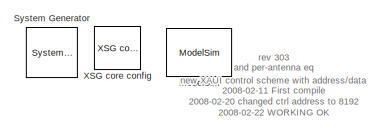
[diagram: root canvas - part 1/5, top left region]
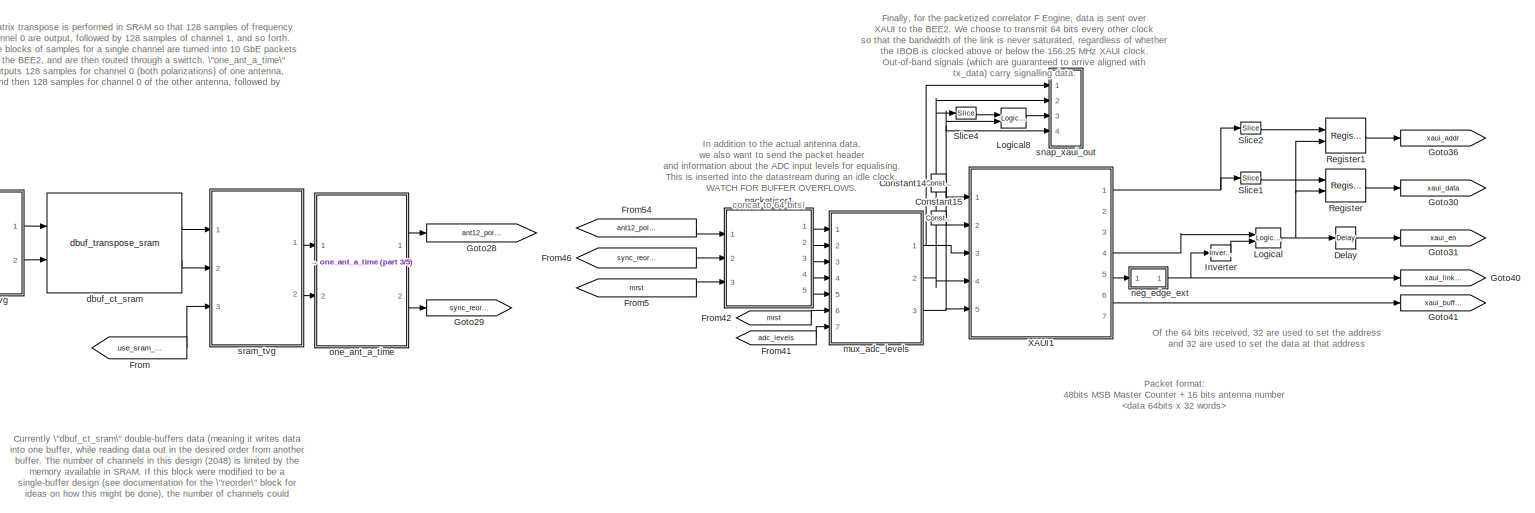
[diagram: root canvas - part 2/5, top right region]
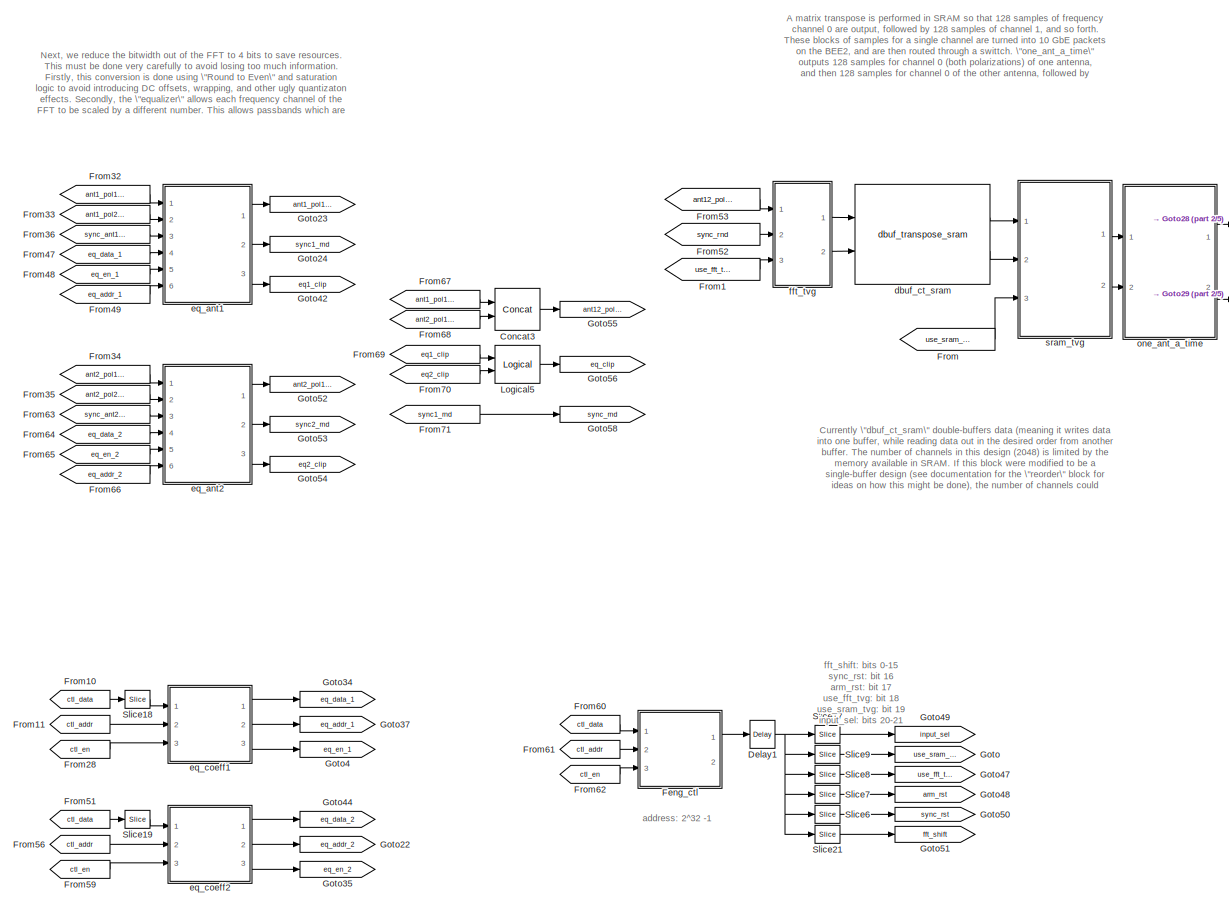
[diagram: root canvas - part 3/5, center side, full height]
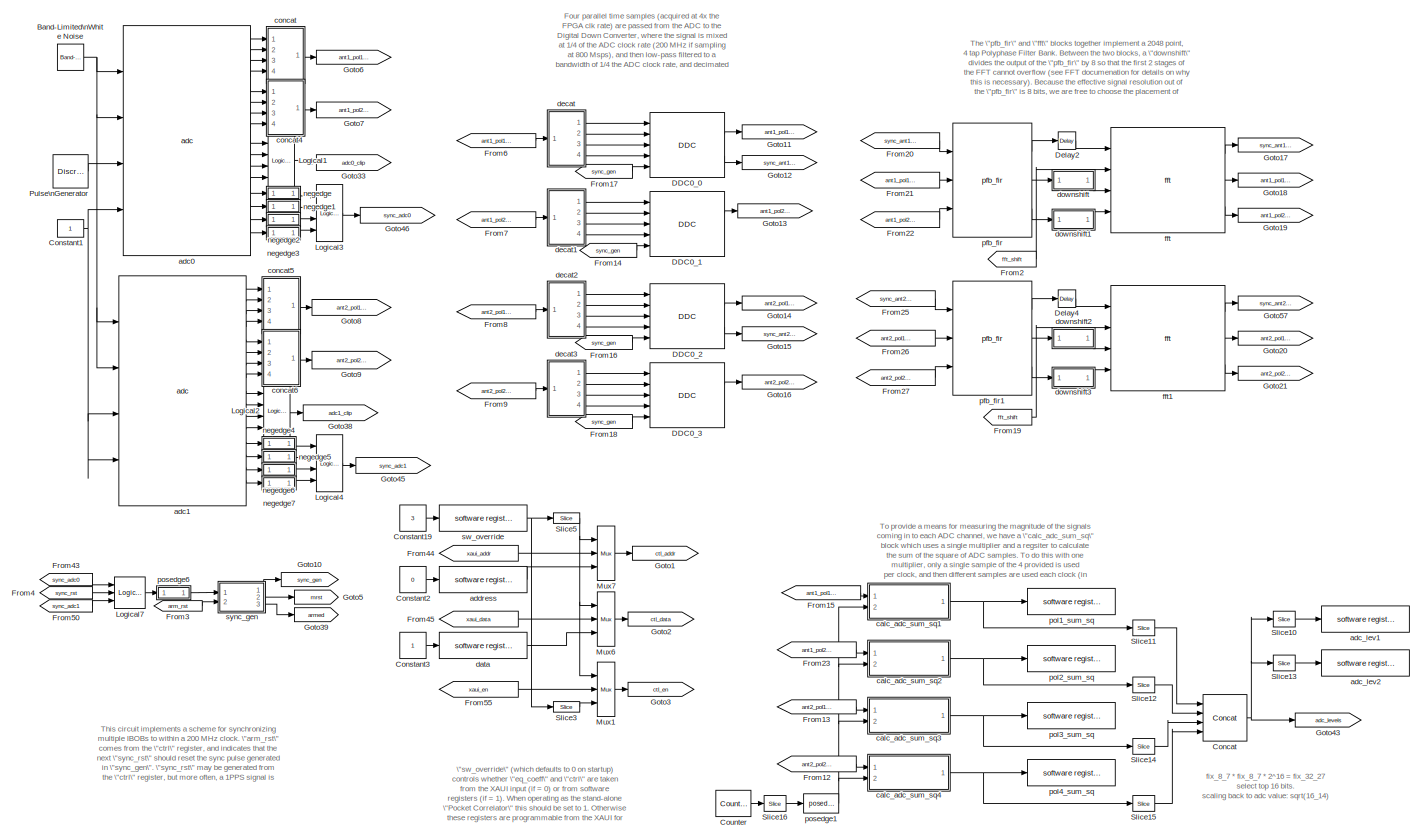
[diagram: root canvas - part 4/5, left side, full height]
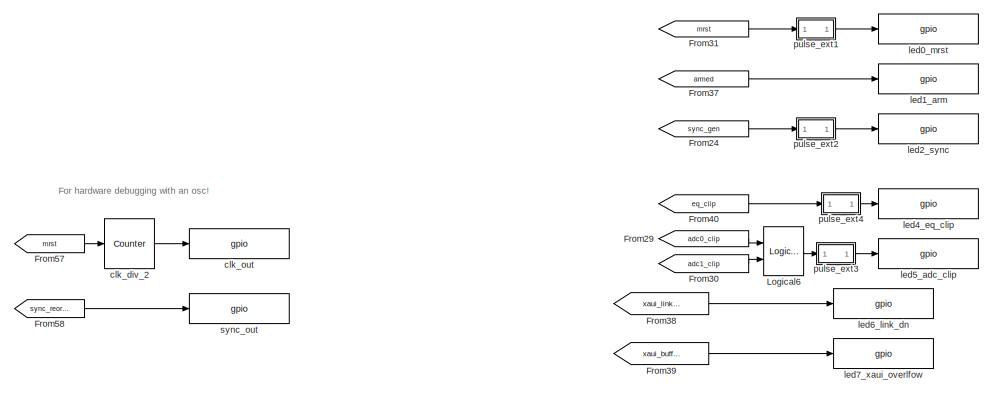
[diagram: root canvas - part 5/5, bottom right region]
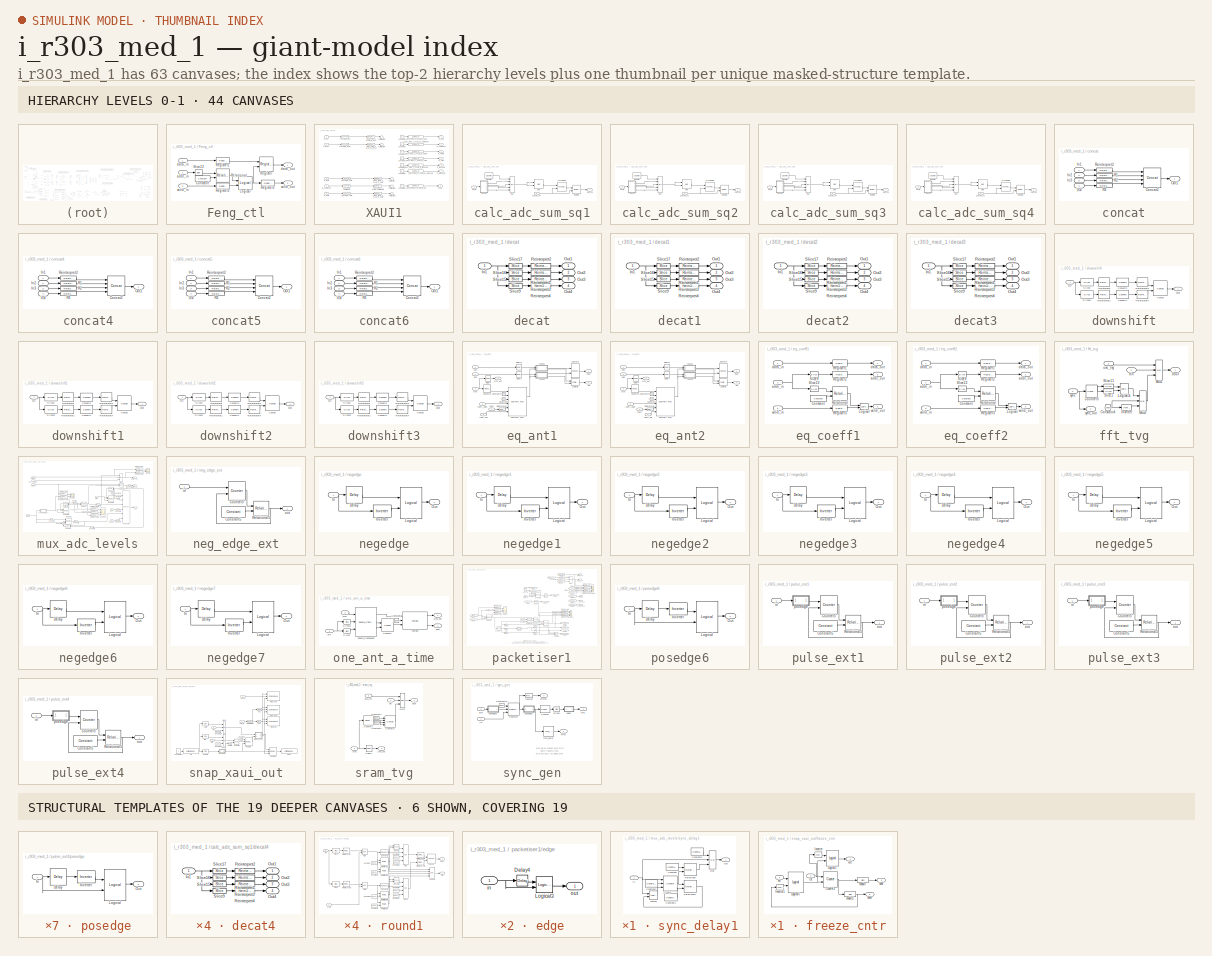
[diagram: thumbnail index - top-2 hierarchy levels (44 canvases) + 6 structural-template representatives of the remaining 19 canvases]
MODEL i_r303_med_1
KIND model
BLOCK [Reference]  System Generator  REF=xbsIndex_r3/ System Generator
  AttributesFormatString = System\\nGenerator
  Ports = []
  ShowPortLabels = on
  SourceBlock = xbsIndex_r3/ System Generator
  SourceType = Xilinx System Generator
  Tag = genX
  UserData = DataTag0
  UserDataPersistent = on
  core_generation = According to Block Masks
  dbl_ovrd = According to Block Masks
  deprecated_control = off
  directory = ./i_r303_med_1/sysgen
  eval_field = 0
  incr_netlist = off
  package = ff1152
  part = xc2vp50
  run_coregen = off
  simulink_period = 1
  speed = -7
  synthesis_tool = XST
  sysclk_period = 5
  testbench = off
  trim_vbits = Everywhere in SubSystem
  xilinxfamily = Virtex2P
BLOCK [Reference] Band-Limited\nWhite Noise  REF=simulink/Sources/Band-Limited\nWhite Noise
  Cov = [0.1]
  Ports = [0, 1]
  ShowPortLabels = on
  SourceBlock = simulink/Sources/Band-Limited\nWhite Noise
  SourceType = Band-Limited White Noise.
  Ts = 0.1
  VectorParams1D = on
  seed = [23341]
BLOCK [Reference] Concat  REF=xbsIndex_r3/Concat
  Ports = [4, 1]
  SourceBlock = xbsIndex_r3/Concat
  SourceType = Xilinx Bus Concatenator
  dbl_ovrd = off
  explicit_period = off
  num_inputs = 4
  period = 1
BLOCK [Reference] Concat3  REF=xbsIndex_r3/Concat
  Ports = [2, 1]
  SourceBlock = xbsIndex_r3/Concat
  SourceType = Xilinx Bus Concatenator
  dbl_ovrd = off
  explicit_period = off
  num_inputs = 2
  period = 1
BLOCK [Constant] Constant1
BLOCK [Reference] Constant14  REF=xbsIndex_r3/Constant
  Ports = [0, 1]
  SourceBlock = xbsIndex_r3/Constant
  SourceType = Xilinx Constant Block
  arith_type = Unsigned
  bin_pt = 0
  carry = CIN
  const = 1
  dbl_ovrd = off
  equ = P=C
  explicit_period = on
  inp1 = P
  inp2 = PCIN>>17
  iostate = 0
  n_bits = 1
  opr = +
  opselect = C
  period = 1
BLOCK [Reference] Constant15  REF=xbsIndex_r3/Constant
  Ports = [0, 1]
  SourceBlock = xbsIndex_r3/Constant
  SourceType = Xilinx Constant Block
  arith_type = Unsigned
  bin_pt = 0
  carry = CIN
  const = 0
  dbl_ovrd = off
  equ = P=C
  explicit_period = on
  inp1 = P
  inp2 = PCIN>>17
  iostate = 0
  n_bits = 1
  opr = +
  opselect = C
  period = 1
BLOCK [Constant] Constant19
  Value = 3
BLOCK [Constant] Constant2
  Value = 0
BLOCK [Constant] Constant3
BLOCK [Reference] Counter  REF=xbsIndex_r3/Counter
  Ports = [0, 1]
  SourceBlock = xbsIndex_r3/Counter
  SourceType = Xilinx Counter Block
  arith_type = Unsigned
  bin_pt = 0
  cnt_by_val = 1
  cnt_to = Inf
  cnt_type = Free Running
  dbl_ovrd = off
  en = off
  explicit_period = off
  gen_core = off
  load_pin = off
  n_bits = 16
  operation = Up
  period = 1
  rst = off
  show_param = off
  start_count = 0
  use_rpm = on
  xl_area = [0, 0, 0, 0, 0, 0, 0]
  xl_use_area = off
BLOCK [Reference] DDC0_0  REF=ddc_library/DDC  (lib defined in mdl_423f3fd48bb0)
  BitWidthOut = 8
  Ports = [5, 2]
  ShowPortLabels = on
  SourceBlock = ddc_library/DDC
  SourceType = DDC
  UserData = DataTag1
  UserDataPersistent = on
  add_latency = 1
  freq_div = 4
  lo_bitwidth = 8
  lo_freq = 1
  lpfir_coeff = .9 * [-0.0161   -0.0428   -0.0504   -0.0249    0.0354    0.1170    0.1948    0.2422    0.2422    0.1948    0.1170  0.0354   -0.0249   -0.0504   -0.0428   -0.0161]
  mult_latency = 2
  num_inputs = 4
  quantization = Round  (unbiased: Even Values)
BLOCK [Reference] DDC0_1  REF=ddc_library/DDC  (lib defined in mdl_423f3fd48bb0)
  BitWidthOut = 8
  Ports = [5, 2]
  ShowPortLabels = on
  SourceBlock = ddc_library/DDC
  SourceType = DDC
  UserData = DataTag2
  UserDataPersistent = on
  add_latency = 1
  freq_div = 4
  lo_bitwidth = 8
  lo_freq = 1
  lpfir_coeff = .9 * [-0.0161   -0.0428   -0.0504   -0.0249    0.0354    0.1170    0.1948    0.2422    0.2422    0.1948    0.1170  0.0354   -0.0249   -0.0504   -0.0428   -0.0161]
  mult_latency = 2
  num_inputs = 4
  quantization = Round  (unbiased: Even Values)
BLOCK [Reference] DDC0_2  REF=ddc_library/DDC  (lib defined in mdl_423f3fd48bb0)
  BitWidthOut = 8
  Ports = [5, 2]
  ShowPortLabels = on
  SourceBlock = ddc_library/DDC
  SourceType = DDC
  UserData = DataTag3
  UserDataPersistent = on
  add_latency = 1
  freq_div = 4
  lo_bitwidth = 8
  lo_freq = 1
  lpfir_coeff = .9 * [-0.0161   -0.0428   -0.0504   -0.0249    0.0354    0.1170    0.1948    0.2422    0.2422    0.1948    0.1170  0.0354   -0.0249   -0.0504   -0.0428   -0.0161]
  mult_latency = 2
  num_inputs = 4
  quantization = Round  (unbiased: Even Values)
BLOCK [Reference] DDC0_3  REF=ddc_library/DDC  (lib defined in mdl_423f3fd48bb0)
  BitWidthOut = 8
  Ports = [5, 2]
  ShowPortLabels = on
  SourceBlock = ddc_library/DDC
  SourceType = DDC
  UserData = DataTag4
  UserDataPersistent = on
  add_latency = 1
  freq_div = 4
  lo_bitwidth = 8
  lo_freq = 1
  lpfir_coeff = .9 * [-0.0161   -0.0428   -0.0504   -0.0249    0.0354    0.1170    0.1948    0.2422    0.2422    0.1948    0.1170  0.0354   -0.0249   -0.0504   -0.0428   -0.0161]
  mult_latency = 2
  num_inputs = 4
  quantization = Round  (unbiased: Even Values)
BLOCK [Reference] Delay  REF=xbsIndex_r3/Delay
  Ports = [1, 1]
  SourceBlock = xbsIndex_r3/Delay
  SourceType = Xilinx Delay Block
  accept_only_valid = off
  dbl_ovrd = off
  en = off
  explicit_period = off
  init_zero = on
  latency = 1
  period = 1
  reg_retiming = off
  show_param = off
  xl_area = [0, 0, 0, 0, 0, 0, 0]
  xl_use_area = off
BLOCK [Reference] Delay1  REF=xbsIndex_r3/Delay
  Ports = [1, 1]
  SourceBlock = xbsIndex_r3/Delay
  SourceType = Xilinx Delay Block
  accept_only_valid = off
  dbl_ovrd = off
  en = off
  explicit_period = off
  init_zero = on
  latency = 1
  period = 1
  reg_retiming = off
  show_param = off
  xl_area = [0, 0, 0, 0, 0, 0, 0]
  xl_use_area = off
BLOCK [Reference] Delay2  REF=xbsIndex_r3/Delay
  Ports = [1, 1]
  SourceBlock = xbsIndex_r3/Delay
  SourceType = Xilinx Delay Block
  accept_only_valid = off
  dbl_ovrd = off
  en = off
  explicit_period = off
  init_zero = on
  latency = 2
  period = 1
  reg_retiming = off
  show_param = off
  xl_area = [0, 0, 0, 0, 0, 0, 0]
  xl_use_area = off
BLOCK [Reference] Delay4  REF=xbsIndex_r3/Delay
  Ports = [1, 1]
  SourceBlock = xbsIndex_r3/Delay
  SourceType = Xilinx Delay Block
  accept_only_valid = off
  dbl_ovrd = off
  en = off
  explicit_period = off
  init_zero = on
  latency = 2
  period = 1
  reg_retiming = off
  show_param = off
  xl_area = [0, 0, 0, 0, 0, 0, 0]
  xl_use_area = off
BLOCK [SubSystem] Feng_ctl
  AttributesFormatString = Mapped address: 8192
  MaskEnableString = on
  MaskIconFrame = on
  MaskIconOpaque = on
  MaskIconRotate = none
  MaskIconUnits = autoscale
  MaskInitialization = start_addr = (addr_offset);\nfmtstr = sprintf('Mapped address: %d', start_addr);\nset_param(gcb, 'AttributesFormatString', fmtstr);\n
  MaskPromptString = Address
  MaskStyleString = edit
  MaskToolTipString = on
  MaskTunableValueString = on
  MaskValueString = 8192
  MaskVariables = addr_offset=@1;
  MaskVisibilityString = on
  MinAlgLoopOccurrences = off
  Ports = [3, 2]
  RTWSystemCode = Auto
  TreatAsAtomicUnit = off
BLOCK [Reference] Feng_ctl/Constant  REF=xbsIndex_r3/Constant
  Ports = [0, 1]
  SourceBlock = xbsIndex_r3/Constant
  SourceType = Xilinx Constant Block
  arith_type = Unsigned
  bin_pt = 0
  carry = CIN
  const = addr_offset
  dbl_ovrd = off
  equ = P=C
  explicit_period = on
  inp1 = P
  inp2 = PCIN>>17
  iostate = 0
  n_bits = 32
  opr = +
  opselect = C
  period = 1
BLOCK [Reference] Feng_ctl/Logical  REF=xbsIndex_r3/Logical
  Ports = [2, 1]
  SourceBlock = xbsIndex_r3/Logical
  SourceType = Xilinx Logical Block
  align_bp = on
  arith_type = Unsigned
  bin_pt = 2
  dbl_ovrd = off
  en = off
  explicit_period = off
  inputs = 2
  latency = 0
  logical_function = AND
  n_bits = 8
  period = 1
  precision = Full
  show_param = off
  xl_area = [0, 0, 0, 0, 0, 0, 0]
  xl_use_area = off
BLOCK [Reference] Feng_ctl/Register  REF=xbsIndex_r3/Register
  Ports = [2, 1]
  SourceBlock = xbsIndex_r3/Register
  SourceType = Xilinx Register Block
  dbl_ovrd = off
  en = on
  explicit_period = off
  init = 0
  out_en = off
  period = 1
  reg_only_valid = off
  rst = off
  show_param = off
  xl_area = [0, 0, 0, 0, 0, 0, 0]
  xl_use_area = off
BLOCK [Reference] Feng_ctl/Register1  REF=xbsIndex_r3/Register
  Ports = [1, 1]
  SourceBlock = xbsIndex_r3/Register
  SourceType = Xilinx Register Block
  dbl_ovrd = off
  en = off
  explicit_period = off
  init = 0
  out_en = off
  period = 1
  reg_only_valid = off
  rst = off
  show_param = off
  xl_area = [0, 0, 0, 0, 0, 0, 0]
  xl_use_area = off
BLOCK [Reference] Feng_ctl/Register2  REF=xbsIndex_r3/Register
  Ports = [1, 1]
  SourceBlock = xbsIndex_r3/Register
  SourceType = Xilinx Register Block
  dbl_ovrd = off
  en = off
  explicit_period = off
  init = 0
  out_en = off
  period = 1
  reg_only_valid = off
  rst = off
  show_param = off
  xl_area = [0, 0, 0, 0, 0, 0, 0]
  xl_use_area = off
BLOCK [Reference] Feng_ctl/Register3  REF=xbsIndex_r3/Register
  Ports = [1, 1]
  SourceBlock = xbsIndex_r3/Register
  SourceType = Xilinx Register Block
  dbl_ovrd = off
  en = off
  explicit_period = off
  init = 0
  out_en = off
  period = 1
  reg_only_valid = off
  rst = off
  show_param = off
  xl_area = [0, 0, 0, 0, 0, 0, 0]
  xl_use_area = off
BLOCK [Reference] Feng_ctl/Relational  REF=xbsIndex_r3/Relational
  Ports = [2, 1]
  SourceBlock = xbsIndex_r3/Relational
  SourceType = Xilinx Relational Block
  dbl_ovrd = off
  en = off
  explicit_period = off
  latency = 1
  mode = a=b
  period = 1
  show_param = off
  xl_area = [0, 0, 0, 0, 0, 0, 0]
  xl_use_area = off
BLOCK [Reference] Feng_ctl/Slice22  REF=xbsIndex_r3/Slice
  Ports = [1, 1]
  SourceBlock = xbsIndex_r3/Slice
  SourceType = Xilinx Slice Block
  base0 = LSB of Input
  base1 = MSB of Input
  bit0 = 0
  bit1 = 0
  boolean_output = off
  dbl_ovrd = off
  explicit_period = off
  mode = Lower Bit Location + Width
  nbits = 32
  period = 1
BLOCK [Inport] Feng_ctl/addr_in
  IconDisplay = Port number
  LatchInput = off
  Port = 2
BLOCK [Inport] Feng_ctl/data_in
  IconDisplay = Port number
  LatchInput = off
  Port = 1
BLOCK [Outport] Feng_ctl/data_out
  BusOutputAsStruct = off
  IconDisplay = Port number
BLOCK [Inport] Feng_ctl/valid_in
  IconDisplay = Port number
  LatchInput = off
  Port = 3
BLOCK [Outport] Feng_ctl/valid_out
  BusOutputAsStruct = off
  IconDisplay = Port number
  Port = 2
BLOCK [From] From
  CloseFcn = tagdialog Close
  GotoTag = use_sram_tvg
BLOCK [From] From1
  CloseFcn = tagdialog Close
  GotoTag = use_fft_tvg
BLOCK [From] From10
  CloseFcn = tagdialog Close
  GotoTag = ctl_data
BLOCK [From] From11
  CloseFcn = tagdialog Close
  GotoTag = ctl_addr
BLOCK [From] From12
  CloseFcn = tagdialog Close
  GotoTag = ant2_pol2_adc
BLOCK [From] From13
  CloseFcn = tagdialog Close
  GotoTag = ant2_pol1_adc
BLOCK [From] From14
  CloseFcn = tagdialog Close
  GotoTag = sync_gen
BLOCK [From] From15
  CloseFcn = tagdialog Close
  GotoTag = ant1_pol1_adc
BLOCK [From] From16
  CloseFcn = tagdialog Close
  GotoTag = sync_gen
BLOCK [From] From17
  CloseFcn = tagdialog Close
  GotoTag = sync_gen
BLOCK [From] From18
  CloseFcn = tagdialog Close
  GotoTag = sync_gen
BLOCK [From] From19
  CloseFcn = tagdialog Close
  GotoTag = fft_shift
BLOCK [From] From2
  CloseFcn = tagdialog Close
  GotoTag = fft_shift
BLOCK [From] From20
  CloseFcn = tagdialog Close
  GotoTag = sync_ant1_ddc
BLOCK [From] From21
  CloseFcn = tagdialog Close
  GotoTag = ant1_pol1_ddc
BLOCK [From] From22
  CloseFcn = tagdialog Close
  GotoTag = ant1_pol2_ddc
BLOCK [From] From23
  CloseFcn = tagdialog Close
  GotoTag = ant1_pol2_adc
BLOCK [From] From24
  CloseFcn = tagdialog Close
  GotoTag = sync_gen
BLOCK [From] From25
  CloseFcn = tagdialog Close
  GotoTag = sync_ant2_ddc
BLOCK [From] From26
  CloseFcn = tagdialog Close
  GotoTag = ant2_pol1_ddc
BLOCK [From] From27
  CloseFcn = tagdialog Close
  GotoTag = ant2_pol2_ddc
BLOCK [From] From28
  CloseFcn = tagdialog Close
  GotoTag = ctl_en
BLOCK [From] From29
  CloseFcn = tagdialog Close
  GotoTag = adc0_clip
BLOCK [From] From3
  CloseFcn = tagdialog Close
  GotoTag = arm_rst
BLOCK [From] From30
  CloseFcn = tagdialog Close
  GotoTag = adc1_clip
BLOCK [From] From31
  CloseFcn = tagdialog Close
  GotoTag = mrst
BLOCK [From] From32
  CloseFcn = tagdialog Close
  GotoTag = ant1_pol1_fft
BLOCK [From] From33
  CloseFcn = tagdialog Close
  GotoTag = ant1_pol2_fft
BLOCK [From] From34
  CloseFcn = tagdialog Close
  GotoTag = ant2_pol1_fft
BLOCK [From] From35
  CloseFcn = tagdialog Close
  GotoTag = ant2_pol2_fft
BLOCK [From] From36
  CloseFcn = tagdialog Close
  GotoTag = sync_ant1_fft
BLOCK [From] From37
  CloseFcn = tagdialog Close
  GotoTag = armed
BLOCK [From] From38
  CloseFcn = tagdialog Close
  GotoTag = xaui_link_down
BLOCK [From] From39
  CloseFcn = tagdialog Close
  GotoTag = xaui_buffer_overflow
BLOCK [From] From4
  CloseFcn = tagdialog Close
  GotoTag = sync_rst
BLOCK [From] From40
  CloseFcn = tagdialog Close
  GotoTag = eq_clip
BLOCK [From] From41
  CloseFcn = tagdialog Close
  GotoTag = adc_levels
BLOCK [From] From42
  CloseFcn = tagdialog Close
  GotoTag = mrst
BLOCK [From] From43
  CloseFcn = tagdialog Close
  GotoTag = sync_adc0
BLOCK [From] From44
  CloseFcn = tagdialog Close
  GotoTag = xaui_addr
BLOCK [From] From45
  CloseFcn = tagdialog Close
  GotoTag = xaui_data
BLOCK [From] From46
  CloseFcn = tagdialog Close
  GotoTag = sync_reorder
BLOCK [From] From47
  CloseFcn = tagdialog Close
  GotoTag = eq_data_1
BLOCK [From] From48
  CloseFcn = tagdialog Close
  GotoTag = eq_en_1
BLOCK [From] From49
  CloseFcn = tagdialog Close
  GotoTag = eq_addr_1
BLOCK [From] From5
  CloseFcn = tagdialog Close
  GotoTag = mrst
BLOCK [From] From50
  CloseFcn = tagdialog Close
  GotoTag = sync_adc1
BLOCK [From] From51
  CloseFcn = tagdialog Close
  GotoTag = ctl_data
BLOCK [From] From52
  CloseFcn = tagdialog Close
  GotoTag = sync_rnd
BLOCK [From] From53
  CloseFcn = tagdialog Close
  GotoTag = ant12_pol12_rnd
BLOCK [From] From54
  CloseFcn = tagdialog Close
  GotoTag = ant12_pol12_reorder
BLOCK [From] From55
  CloseFcn = tagdialog Close
  GotoTag = xaui_en
BLOCK [From] From56
  CloseFcn = tagdialog Close
  GotoTag = ctl_addr
BLOCK [From] From57
  CloseFcn = tagdialog Close
  GotoTag = mrst
BLOCK [From] From58
  CloseFcn = tagdialog Close
  GotoTag = sync_reorder
BLOCK [From] From59
  CloseFcn = tagdialog Close
  GotoTag = ctl_en
BLOCK [From] From6
  CloseFcn = tagdialog Close
  GotoTag = ant1_pol1_adc
BLOCK [From] From60
  CloseFcn = tagdialog Close
  GotoTag = ctl_data
BLOCK [From] From61
  CloseFcn = tagdialog Close
  GotoTag = ctl_addr
BLOCK [From] From62
  CloseFcn = tagdialog Close
  GotoTag = ctl_en
BLOCK [From] From63
  CloseFcn = tagdialog Close
  GotoTag = sync_ant2_fft
BLOCK [From] From64
  CloseFcn = tagdialog Close
  GotoTag = eq_data_2
BLOCK [From] From65
  CloseFcn = tagdialog Close
  GotoTag = eq_en_2
BLOCK [From] From66
  CloseFcn = tagdialog Close
  GotoTag = eq_addr_2
BLOCK [From] From67
  CloseFcn = tagdialog Close
  GotoTag = ant1_pol12_rnd
BLOCK [From] From68
  CloseFcn = tagdialog Close
  GotoTag = ant2_pol12_rnd
BLOCK [From] From69
  CloseFcn = tagdialog Close
  GotoTag = eq1_clip
BLOCK [From] From7
  CloseFcn = tagdialog Close
  GotoTag = ant1_pol2_adc
BLOCK [From] From70
  CloseFcn = tagdialog Close
  GotoTag = eq2_clip
BLOCK [From] From71
  CloseFcn = tagdialog Close
  GotoTag = sync1_rnd
BLOCK [From] From8
  CloseFcn = tagdialog Close
  GotoTag = ant2_pol1_adc
BLOCK [From] From9
  CloseFcn = tagdialog Close
  GotoTag = ant2_pol2_adc
BLOCK [Goto] Goto
  GotoTag = use_sram_tvg
  TagVisibility = local
BLOCK [Goto] Goto1
  GotoTag = ctl_addr
  TagVisibility = local
BLOCK [Goto] Goto10
  GotoTag = sync_gen
  TagVisibility = local
BLOCK [Goto] Goto11
  GotoTag = ant1_pol1_ddc
  TagVisibility = local
BLOCK [Goto] Goto12
  GotoTag = sync_ant1_ddc
  TagVisibility = local
BLOCK [Goto] Goto13
  GotoTag = ant1_pol2_ddc
  TagVisibility = local
BLOCK [Goto] Goto14
  GotoTag = ant2_pol1_ddc
  TagVisibility = local
BLOCK [Goto] Goto15
  GotoTag = sync_ant2_ddc
  TagVisibility = local
BLOCK [Goto] Goto16
  GotoTag = ant2_pol2_ddc
  TagVisibility = local
BLOCK [Goto] Goto17
  GotoTag = sync_ant1_fft
  TagVisibility = local
BLOCK [Goto] Goto18
  GotoTag = ant1_pol1_fft
  TagVisibility = local
BLOCK [Goto] Goto19
  GotoTag = ant1_pol2_fft
  TagVisibility = local
BLOCK [Goto] Goto2
  GotoTag = ctl_data
  TagVisibility = local
BLOCK [Goto] Goto20
  GotoTag = ant2_pol1_fft
  TagVisibility = local
BLOCK [Goto] Goto21
  GotoTag = ant2_pol2_fft
  TagVisibility = local
BLOCK [Goto] Goto22
  GotoTag = eq_addr_2
  TagVisibility = local
BLOCK [Goto] Goto23
  GotoTag = ant1_pol12_rnd
  TagVisibility = local
BLOCK [Goto] Goto24
  GotoTag = sync1_rnd
  TagVisibility = local
BLOCK [Goto] Goto28
  GotoTag = ant12_pol12_reorder
  TagVisibility = local
BLOCK [Goto] Goto29
  GotoTag = sync_reorder
  TagVisibility = local
BLOCK [Goto] Goto3
  GotoTag = ctl_en
  TagVisibility = local
BLOCK [Goto] Goto30
  GotoTag = xaui_data
  TagVisibility = local
BLOCK [Goto] Goto31
  GotoTag = xaui_en
  TagVisibility = local
BLOCK [Goto] Goto33
  GotoTag = adc0_clip
  TagVisibility = local
BLOCK [Goto] Goto34
  GotoTag = eq_data_1
  TagVisibility = local
BLOCK [Goto] Goto35
  GotoTag = eq_en_2
  TagVisibility = local
BLOCK [Goto] Goto36
  GotoTag = xaui_addr
  TagVisibility = local
BLOCK [Goto] Goto37
  GotoTag = eq_addr_1
  TagVisibility = local
BLOCK [Goto] Goto38
  GotoTag = adc1_clip
  TagVisibility = local
BLOCK [Goto] Goto39
  GotoTag = armed
  TagVisibility = local
BLOCK [Goto] Goto4
  GotoTag = eq_en_1
  TagVisibility = local
BLOCK [Goto] Goto40
  GotoTag = xaui_link_down
  TagVisibility = local
BLOCK [Goto] Goto41
  GotoTag = xaui_buffer_overflow
  TagVisibility = local
BLOCK [Goto] Goto42
  GotoTag = eq1_clip
  TagVisibility = local
BLOCK [Goto] Goto43
  GotoTag = adc_levels
  TagVisibility = local
BLOCK [Goto] Goto44
  GotoTag = eq_data_2
  TagVisibility = local
BLOCK [Goto] Goto45
  GotoTag = sync_adc1
  TagVisibility = local
BLOCK [Goto] Goto46
  GotoTag = sync_adc0
  TagVisibility = local
BLOCK [Goto] Goto47
  GotoTag = use_fft_tvg
  TagVisibility = local
BLOCK [Goto] Goto48
  GotoTag = arm_rst
  TagVisibility = local
BLOCK [Goto] Goto49
  GotoTag = input_sel
  TagVisibility = local
BLOCK [Goto] Goto5
  GotoTag = mrst
  TagVisibility = local
BLOCK [Goto] Goto50
  GotoTag = sync_rst
  TagVisibility = local
BLOCK [Goto] Goto51
  GotoTag = fft_shift
  TagVisibility = local
BLOCK [Goto] Goto52
  GotoTag = ant2_pol12_rnd
  TagVisibility = local
BLOCK [Goto] Goto53
  GotoTag = sync2_rnd
  TagVisibility = local
BLOCK [Goto] Goto54
  GotoTag = eq2_clip
  TagVisibility = local
BLOCK [Goto] Goto55
  GotoTag = ant12_pol12_rnd
  TagVisibility = local
BLOCK [Goto] Goto56
  GotoTag = eq_clip
  TagVisibility = local
BLOCK [Goto] Goto57
  GotoTag = sync_ant2_fft
  TagVisibility = local
BLOCK [Goto] Goto58
  GotoTag = sync_rnd
  TagVisibility = local
BLOCK [Goto] Goto6
  GotoTag = ant1_pol1_adc
  TagVisibility = local
BLOCK [Goto] Goto7
  GotoTag = ant1_pol2_adc
  TagVisibility = local
BLOCK [Goto] Goto8
  GotoTag = ant2_pol1_adc
  TagVisibility = local
BLOCK [Goto] Goto9
  GotoTag = ant2_pol2_adc
  TagVisibility = local
BLOCK [Reference] Inverter  REF=xbsIndex_r3/Inverter
  Ports = [1, 1]
  SourceBlock = xbsIndex_r3/Inverter
  SourceType = Xilinx Inverter
  dbl_ovrd = off
  en = off
  explicit_period = off
  latency = 0
  period = 1
  show_param = off
  xl_area = [0, 0, 0, 0, 0, 0, 0]
  xl_use_area = off
BLOCK [Reference] Logical  REF=xbsIndex_r3/Logical
  Ports = [2, 1]
  SourceBlock = xbsIndex_r3/Logical
  SourceType = Xilinx Logical Block
  align_bp = on
  arith_type = Unsigned
  bin_pt = 2
  dbl_ovrd = off
  en = off
  explicit_period = off
  inputs = 2
  latency = 0
  logical_function = AND
  n_bits = 8
  period = 1
  precision = Full
  show_param = off
  xl_area = [0, 0, 0, 0, 0, 0, 0]
  xl_use_area = off
BLOCK [Reference] Logical1  REF=xbsIndex_r3/Logical
  Ports = [4, 1]
  SourceBlock = xbsIndex_r3/Logical
  SourceType = Xilinx Logical Block
  align_bp = on
  arith_type = Unsigned
  bin_pt = 2
  dbl_ovrd = off
  en = off
  explicit_period = off
  inputs = 4
  latency = 1
  logical_function = OR
  n_bits = 8
  period = 1
  precision = Full
  show_param = off
  xl_area = [0, 0, 0, 0, 0, 0, 0]
  xl_use_area = off
BLOCK [Reference] Logical2  REF=xbsIndex_r3/Logical
  Ports = [4, 1]
  SourceBlock = xbsIndex_r3/Logical
  SourceType = Xilinx Logical Block
  align_bp = on
  arith_type = Unsigned
  bin_pt = 2
  dbl_ovrd = off
  en = off
  explicit_period = off
  inputs = 4
  latency = 1
  logical_function = OR
  n_bits = 8
  period = 1
  precision = Full
  show_param = off
  xl_area = [0, 0, 0, 0, 0, 0, 0]
  xl_use_area = off
BLOCK [Reference] Logical3  REF=xbsIndex_r3/Logical
  Ports = [4, 1]
  SourceBlock = xbsIndex_r3/Logical
  SourceType = Xilinx Logical Block
  align_bp = on
  arith_type = Unsigned
  bin_pt = 2
  dbl_ovrd = off
  en = off
  explicit_period = off
  inputs = 4
  latency = 1
  logical_function = OR
  n_bits = 8
  period = 1
  precision = Full
  show_param = off
  xl_area = [0, 0, 0, 0, 0, 0, 0]
  xl_use_area = off
BLOCK [Reference] Logical4  REF=xbsIndex_r3/Logical
  Ports = [4, 1]
  SourceBlock = xbsIndex_r3/Logical
  SourceType = Xilinx Logical Block
  align_bp = on
  arith_type = Unsigned
  bin_pt = 2
  dbl_ovrd = off
  en = off
  explicit_period = off
  inputs = 4
  latency = 1
  logical_function = OR
  n_bits = 8
  period = 1
  precision = Full
  show_param = off
  xl_area = [0, 0, 0, 0, 0, 0, 0]
  xl_use_area = off
BLOCK [Reference] Logical5  REF=xbsIndex_r3/Logical
  Ports = [2, 1]
  SourceBlock = xbsIndex_r3/Logical
  SourceType = Xilinx Logical Block
  align_bp = on
  arith_type = Unsigned
  bin_pt = 2
  dbl_ovrd = off
  en = off
  explicit_period = off
  inputs = 2
  latency = 0
  logical_function = OR
  n_bits = 8
  period = 1
  precision = Full
  show_param = off
  xl_area = [0, 0, 0, 0, 0, 0, 0]
  xl_use_area = off
BLOCK [Reference] Logical6  REF=xbsIndex_r3/Logical
  Ports = [2, 1]
  SourceBlock = xbsIndex_r3/Logical
  SourceType = Xilinx Logical Block
  align_bp = on
  arith_type = Unsigned
  bin_pt = 2
  dbl_ovrd = off
  en = off
  explicit_period = off
  inputs = 2
  latency = 1
  logical_function = OR
  n_bits = 8
  period = 1
  precision = Full
  show_param = off
  xl_area = [0, 0, 0, 0, 0, 0, 0]
  xl_use_area = off
BLOCK [Reference] Logical7  REF=xbsIndex_r3/Logical
  Ports = [3, 1]
  SourceBlock = xbsIndex_r3/Logical
  SourceType = Xilinx Logical Block
  align_bp = on
  arith_type = Unsigned
  bin_pt = 2
  dbl_ovrd = off
  en = off
  explicit_period = off
  inputs = 3
  latency = 1
  logical_function = OR
  n_bits = 8
  period = 1
  precision = Full
  show_param = off
  xl_area = [0, 0, 0, 0, 0, 0, 0]
  xl_use_area = off
BLOCK [Reference] Logical8  REF=xbsIndex_r3/Logical
  Ports = [2, 1]
  SourceBlock = xbsIndex_r3/Logical
  SourceType = Xilinx Logical Block
  align_bp = on
  arith_type = Unsigned
  bin_pt = 2
  dbl_ovrd = off
  en = off
  explicit_period = off
  inputs = 2
  latency = 0
  logical_function = AND
  n_bits = 8
  period = 1
  precision = Full
  show_param = off
  xl_area = [0, 0, 0, 0, 0, 0, 0]
  xl_use_area = off
BLOCK [Reference] ModelSim  REF=xbsIndex_r3/ModelSim
  Ports = []
  SourceBlock = xbsIndex_r3/ModelSim
  SourceType = ModelSim HDL Co-Simulation Interface
  custom_scripts = off
  dir = ./modelsim
  leave_open = on
  skip_compile = off
  startup_timeout = 40
  waveform = on
BLOCK [Reference] Mux1  REF=xbsIndex_r3/Mux
  Ports = [3, 1]
  SourceBlock = xbsIndex_r3/Mux
  SourceType = Xilinx Multiplexer Block
  arith_type = Signed  (2's comp)
  bin_pt = 2
  dbl_ovrd = off
  en = off
  explicit_period = on
  gen_core = off
  inputs = 2
  latency = 1
  mux_type = off
  n_bits = 8
  overflow = Wrap
  period = 1
  precision = Full
  quantization = Truncate
  show_param = off
  use_rpm = off
  xl_area = [0, 0, 0, 0, 0, 0, 0]
  xl_use_area = off
BLOCK [Reference] Mux6  REF=xbsIndex_r3/Mux
  Ports = [3, 1]
  SourceBlock = xbsIndex_r3/Mux
  SourceType = Xilinx Multiplexer Block
  arith_type = Signed  (2's comp)
  bin_pt = 2
  dbl_ovrd = off
  en = off
  explicit_period = on
  gen_core = off
  inputs = 2
  latency = 1
  mux_type = off
  n_bits = 8
  overflow = Wrap
  period = 1
  precision = Full
  quantization = Truncate
  show_param = off
  use_rpm = off
  xl_area = [0, 0, 0, 0, 0, 0, 0]
  xl_use_area = off
BLOCK [Reference] Mux7  REF=xbsIndex_r3/Mux
  Ports = [3, 1]
  SourceBlock = xbsIndex_r3/Mux
  SourceType = Xilinx Multiplexer Block
  arith_type = Signed  (2's comp)
  bin_pt = 2
  dbl_ovrd = off
  en = off
  explicit_period = on
  gen_core = off
  inputs = 2
  latency = 1
  mux_type = off
  n_bits = 8
  overflow = Wrap
  period = 1
  precision = Full
  quantization = Truncate
  show_param = off
  use_rpm = off
  xl_area = [0, 0, 0, 0, 0, 0, 0]
  xl_use_area = off
BLOCK [DiscretePulseGenerator] Pulse\nGenerator
  Period = 2^27
  Ports = [0, 1]
BLOCK [Reference] Register  REF=xbsIndex_r3/Register
  Ports = [2, 1]
  SourceBlock = xbsIndex_r3/Register
  SourceType = Xilinx Register Block
  dbl_ovrd = off
  en = on
  explicit_period = off
  init = 0
  out_en = off
  period = 1
  reg_only_valid = off
  rst = off
  show_param = off
  xl_area = [0, 0, 0, 0, 0, 0, 0]
  xl_use_area = off
BLOCK [Reference] Register1  REF=xbsIndex_r3/Register
  Ports = [2, 1]
  SourceBlock = xbsIndex_r3/Register
  SourceType = Xilinx Register Block
  dbl_ovrd = off
  en = on
  explicit_period = off
  init = 0
  out_en = off
  period = 1
  reg_only_valid = off
  rst = off
  show_param = off
  xl_area = [0, 0, 0, 0, 0, 0, 0]
  xl_use_area = off
BLOCK [Reference] Slice1  REF=xbsIndex_r3/Slice
  Ports = [1, 1]
  SourceBlock = xbsIndex_r3/Slice
  SourceType = Xilinx Slice Block
  base0 = LSB of Input
  base1 = MSB of Input
  bit0 = 0
  bit1 = 0
  boolean_output = on
  dbl_ovrd = off
  explicit_period = off
  mode = Lower Bit Location + Width
  nbits = 32
  period = 1
BLOCK [Reference] Slice10  REF=xbsIndex_r3/Slice
  Ports = [1, 1]
  SourceBlock = xbsIndex_r3/Slice
  SourceType = Xilinx Slice Block
  base0 = LSB of Input
  base1 = MSB of Input
  bit0 = 0
  bit1 = 0
  boolean_output = off
  dbl_ovrd = off
  explicit_period = off
  mode = Lower Bit Location + Width
  nbits = 32
  period = 1
BLOCK [Reference] Slice11  REF=xbsIndex_r3/Slice
  Ports = [1, 1]
  SourceBlock = xbsIndex_r3/Slice
  SourceType = Xilinx Slice Block
  base0 = LSB of Input
  base1 = MSB of Input
  bit0 = 0
  bit1 = 0
  boolean_output = off
  dbl_ovrd = off
  explicit_period = off
  mode = Upper Bit Location + Width
  nbits = 16
  period = 1
BLOCK [Reference] Slice12  REF=xbsIndex_r3/Slice
  Ports = [1, 1]
  SourceBlock = xbsIndex_r3/Slice
  SourceType = Xilinx Slice Block
  base0 = LSB of Input
  base1 = MSB of Input
  bit0 = 0
  bit1 = 0
  boolean_output = off
  dbl_ovrd = off
  explicit_period = off
  mode = Upper Bit Location + Width
  nbits = 16
  period = 1
BLOCK [Reference] Slice13  REF=xbsIndex_r3/Slice
  Ports = [1, 1]
  SourceBlock = xbsIndex_r3/Slice
  SourceType = Xilinx Slice Block
  base0 = LSB of Input
  base1 = MSB of Input
  bit0 = 32
  bit1 = 0
  boolean_output = off
  dbl_ovrd = off
  explicit_period = off
  mode = Lower Bit Location + Width
  nbits = 32
  period = 1
BLOCK [Reference] Slice14  REF=xbsIndex_r3/Slice
  Ports = [1, 1]
  SourceBlock = xbsIndex_r3/Slice
  SourceType = Xilinx Slice Block
  base0 = LSB of Input
  base1 = MSB of Input
  bit0 = 0
  bit1 = 0
  boolean_output = off
  dbl_ovrd = off
  explicit_period = off
  mode = Upper Bit Location + Width
  nbits = 16
  period = 1
BLOCK [Reference] Slice15  REF=xbsIndex_r3/Slice
  Ports = [1, 1]
  SourceBlock = xbsIndex_r3/Slice
  SourceType = Xilinx Slice Block
  base0 = LSB of Input
  base1 = MSB of Input
  bit0 = 0
  bit1 = 0
  boolean_output = off
  dbl_ovrd = off
  explicit_period = off
  mode = Upper Bit Location + Width
  nbits = 16
  period = 1
BLOCK [Reference] Slice16  REF=xbsIndex_r3/Slice
  Ports = [1, 1]
  SourceBlock = xbsIndex_r3/Slice
  SourceType = Xilinx Slice Block
  base0 = LSB of Input
  base1 = MSB of Input
  bit0 = 19
  bit1 = 0
  boolean_output = on
  dbl_ovrd = off
  explicit_period = off
  mode = Upper Bit Location + Width
  nbits = 1
  period = 1
BLOCK [Reference] Slice17  REF=xbsIndex_r3/Slice
  Ports = [1, 1]
  SourceBlock = xbsIndex_r3/Slice
  SourceType = Xilinx Slice Block
  base0 = LSB of Input
  base1 = MSB of Input
  bit0 = 20
  bit1 = 0
  boolean_output = off
  dbl_ovrd = off
  explicit_period = off
  mode = Lower Bit Location + Width
  nbits = 2
  period = 1
BLOCK [Reference] Slice18  REF=xbsIndex_r3/Slice
  Ports = [1, 1]
  SourceBlock = xbsIndex_r3/Slice
  SourceType = Xilinx Slice Block
  base0 = LSB of Input
  base1 = MSB of Input
  bit0 = 0
  bit1 = 0
  boolean_output = off
  dbl_ovrd = off
  explicit_period = off
  mode = Lower Bit Location + Width
  nbits = 17
  period = 1
BLOCK [Reference] Slice19  REF=xbsIndex_r3/Slice
  Ports = [1, 1]
  SourceBlock = xbsIndex_r3/Slice
  SourceType = Xilinx Slice Block
  base0 = LSB of Input
  base1 = MSB of Input
  bit0 = 0
  bit1 = 0
  boolean_output = off
  dbl_ovrd = off
  explicit_period = off
  mode = Lower Bit Location + Width
  nbits = 17
  period = 1
BLOCK [Reference] Slice2  REF=xbsIndex_r3/Slice
  Ports = [1, 1]
  SourceBlock = xbsIndex_r3/Slice
  SourceType = Xilinx Slice Block
  base0 = LSB of Input
  base1 = MSB of Input
  bit0 = 32
  bit1 = 0
  boolean_output = off
  dbl_ovrd = off
  explicit_period = off
  mode = Lower Bit Location + Width
  nbits = 32
  period = 1
BLOCK [Reference] Slice21  REF=xbsIndex_r3/Slice
  Ports = [1, 1]
  SourceBlock = xbsIndex_r3/Slice
  SourceType = Xilinx Slice Block
  base0 = LSB of Input
  base1 = MSB of Input
  bit0 = 0
  bit1 = 0
  boolean_output = off
  dbl_ovrd = off
  explicit_period = off
  mode = Lower Bit Location + Width
  nbits = 16
  period = 1
BLOCK [Reference] Slice3  REF=xbsIndex_r3/Slice
  Ports = [1, 1]
  SourceBlock = xbsIndex_r3/Slice
  SourceType = Xilinx Slice Block
  base0 = LSB of Input
  base1 = MSB of Input
  bit0 = 1
  bit1 = 0
  boolean_output = on
  dbl_ovrd = off
  explicit_period = off
  mode = Lower Bit Location + Width
  nbits = 1
  period = 1
BLOCK [Reference] Slice4  REF=xbsIndex_r3/Slice
  Ports = [1, 1]
  SourceBlock = xbsIndex_r3/Slice
  SourceType = Xilinx Slice Block
  base0 = LSB of Input
  base1 = MSB of Input
  bit0 = 1
  bit1 = 0
  boolean_output = on
  dbl_ovrd = off
  explicit_period = off
  mode = Lower Bit Location + Width
  nbits = 1
  period = 1
BLOCK [Reference] Slice5  REF=xbsIndex_r3/Slice
  Ports = [1, 1]
  SourceBlock = xbsIndex_r3/Slice
  SourceType = Xilinx Slice Block
  base0 = LSB of Input
  base1 = MSB of Input
  bit0 = 0
  bit1 = 0
  boolean_output = off
  dbl_ovrd = off
  explicit_period = off
  mode = Lower Bit Location + Width
  nbits = 1
  period = 1
BLOCK [Reference] Slice6  REF=xbsIndex_r3/Slice
  Ports = [1, 1]
  SourceBlock = xbsIndex_r3/Slice
  SourceType = Xilinx Slice Block
  base0 = LSB of Input
  base1 = MSB of Input
  bit0 = 16
  bit1 = 0
  boolean_output = on
  dbl_ovrd = off
  explicit_period = off
  mode = Lower Bit Location + Width
  nbits = 1
  period = 1
BLOCK [Reference] Slice7  REF=xbsIndex_r3/Slice
  Ports = [1, 1]
  SourceBlock = xbsIndex_r3/Slice
  SourceType = Xilinx Slice Block
  base0 = LSB of Input
  base1 = MSB of Input
  bit0 = 17
  bit1 = 0
  boolean_output = on
  dbl_ovrd = off
  explicit_period = off
  mode = Lower Bit Location + Width
  nbits = 1
  period = 1
BLOCK [Reference] Slice8  REF=xbsIndex_r3/Slice
  Ports = [1, 1]
  SourceBlock = xbsIndex_r3/Slice
  SourceType = Xilinx Slice Block
  base0 = LSB of Input
  base1 = MSB of Input
  bit0 = 18
  bit1 = 0
  boolean_output = off
  dbl_ovrd = off
  explicit_period = off
  mode = Lower Bit Location + Width
  nbits = 1
  period = 1
BLOCK [Reference] Slice9  REF=xbsIndex_r3/Slice
  Ports = [1, 1]
  SourceBlock = xbsIndex_r3/Slice
  SourceType = Xilinx Slice Block
  base0 = LSB of Input
  base1 = MSB of Input
  bit0 = 19
  bit1 = 0
  boolean_output = off
  dbl_ovrd = off
  explicit_period = off
  mode = Lower Bit Location + Width
  nbits = 1
  period = 1
BLOCK [SubSystem] XAUI1
  AncestorBlock = xps_library/XAUI
  MaskCallbackString = ||myname=gcb;\nif strcmp(get_param(myname, 'show_param'), 'on')\n    set_param(myname, 'MaskVisibilities', {'on','on','on','on','on'});\nelse\n    set_param(myname, 'MaskVisibilities', {'on','on','on','off','off'});\nend||
  MaskEnableString = on,on,on,on,on
  MaskIconFrame = on
  MaskIconOpaque = on
  MaskIconRotate = none
  MaskIconUnits = autoscale
  MaskInitialization = xaui_mask;
  MaskPromptString = Demux|Port|---------------------- Show Implementation Parameters -----------------------------------------------------------------------------------|Pre-emphasis|Differential swing
  MaskSelfModifiable = on
  MaskStyleString = popup(1|2),popup(iBOB:0|iBOB:1|BEE2_ctrl:0|BEE2_ctrl:1|BEE2_usr:0|BEE2_usr:1|BEE2_usr:2|BEE2_usr:3|CORR:0),checkbox,popup(0|1|2|3),popup(400|500|600|700|800)
  MaskTabNameString = ,,,,
  MaskToolTipString = on,on,on,on,on
  MaskTunableValueString = off,off,off,off,off
  MaskValueString = 1|iBOB:1|off|3|800
  MaskVarAliasString = ,,,,
  MaskVariables = demux=@1;port=@2;show_param=&3;pre_emph=@4;swing=@5;
  MaskVisibilityString = on,on,on,off,off
  MinAlgLoopOccurrences = off
  Ports = [5, 7]
  RTWSystemCode = Auto
  Tag = xps:xaui
  TreatAsAtomicUnit = off
BLOCK [Constant] XAUI1/Constant1
  Value = 0
BLOCK [Constant] XAUI1/Constant2
  Value = 0
BLOCK [Constant] XAUI1/Constant3
  Value = 0
BLOCK [Constant] XAUI1/Constant4
  Value = 0
BLOCK [Constant] XAUI1/Constant5
  Value = 0
BLOCK [Constant] XAUI1/Constant6
  Value = 0
BLOCK [Constant] XAUI1/Constant7
  Value = 0
BLOCK [Terminator] XAUI1/Terminator
BLOCK [Terminator] XAUI1/Terminator1
BLOCK [Terminator] XAUI1/Terminator2
BLOCK [Terminator] XAUI1/Terminator3
BLOCK [Terminator] XAUI1/Terminator4
BLOCK [Reference] XAUI1/convert_rx_get  REF=xbsIndex_r3/Convert
  Ports = [1, 1]
  SourceBlock = xbsIndex_r3/Convert
  SourceType = Xilinx Converter Block
  arith_type = Boolean
  bin_pt = 0
  dbl_ovrd = off
  explicit_period = off
  inserted_by_tool = off
  latency = 0
  n_bits = 64
  overflow = Wrap
  period = 1
  pipeline = off
  quantization = Truncate
  show_param = off
  xl_area = [0, 0, 0, 0, 0, 0, 0]
  xl_use_area = off
BLOCK [Reference] XAUI1/convert_rx_reset  REF=xbsIndex_r3/Convert
  Ports = [1, 1]
  SourceBlock = xbsIndex_r3/Convert
  SourceType = Xilinx Converter Block
  arith_type = Boolean
  bin_pt = 0
  dbl_ovrd = off
  explicit_period = off
  inserted_by_tool = off
  latency = 0
  n_bits = 1
  overflow = Wrap
  period = 1
  pipeline = off
  quantization = Truncate
  show_param = off
  xl_area = [0, 0, 0, 0, 0, 0, 0]
  xl_use_area = off
BLOCK [Reference] XAUI1/convert_tx_data  REF=xbsIndex_r3/Convert
  Ports = [1, 1]
  SourceBlock = xbsIndex_r3/Convert
  SourceType = Xilinx Converter Block
  arith_type = Unsigned
  bin_pt = 0
  dbl_ovrd = off
  explicit_period = off
  inserted_by_tool = off
  latency = 0
  n_bits = 64
  overflow = Wrap
  period = 1
  pipeline = off
  quantization = Truncate
  show_param = off
  xl_area = [0, 0, 0, 0, 0, 0, 0]
  xl_use_area = off
BLOCK [Reference] XAUI1/convert_tx_outofband  REF=xbsIndex_r3/Convert
  Ports = [1, 1]
  SourceBlock = xbsIndex_r3/Convert
  SourceType = Xilinx Converter Block
  arith_type = Unsigned
  bin_pt = 0
  dbl_ovrd = off
  explicit_period = off
  inserted_by_tool = off
  latency = 0
  n_bits = 8
  overflow = Wrap
  period = 1
  pipeline = off
  quantization = Truncate
  show_param = off
  xl_area = [0, 0, 0, 0, 0, 0, 0]
  xl_use_area = off
BLOCK [Reference] XAUI1/convert_tx_valid  REF=xbsIndex_r3/Convert
  Ports = [1, 1]
  SourceBlock = xbsIndex_r3/Convert
  SourceType = Xilinx Converter Block
  arith_type = Boolean
  bin_pt = 0
  dbl_ovrd = off
  explicit_period = off
  inserted_by_tool = off
  latency = 0
  n_bits = 1
  overflow = Wrap
  period = 1
  pipeline = off
  quantization = Truncate
  show_param = off
  xl_area = [0, 0, 0, 0, 0, 0, 0]
  xl_use_area = off
BLOCK [Reference] XAUI1/i_r303_med_1_XAUI1_rx_almost_full  REF=xbsIndex_r3/Gateway In
  LOCs = {}
  Ports = [1, 1]
  SourceBlock = xbsIndex_r3/Gateway In
  SourceType = Xilinx Gateway In
  arith_type = Boolean
  bin_pt = 0
  dbl_ovrd = off
  locs_specified = off
  n_bits = 1
  needs_fixed_name = off
  overflow = Wrap
  period = 1
  quantization = Truncate
  show_param = off
  timing_constraint = None
  xl_area = [0, 0, 0, 0, 0, 0, 0]
  xl_use_area = off
BLOCK [Reference] XAUI1/i_r303_med_1_XAUI1_rx_data  REF=xbsIndex_r3/Gateway In
  LOCs = {}
  Ports = [1, 1]
  SourceBlock = xbsIndex_r3/Gateway In
  SourceType = Xilinx Gateway In
  arith_type = Unsigned
  bin_pt = 0
  dbl_ovrd = off
  locs_specified = off
  n_bits = 64
  needs_fixed_name = off
  overflow = Wrap
  period = 1
  quantization = Truncate
  show_param = off
  timing_constraint = None
  xl_area = [0, 0, 0, 0, 0, 0, 0]
  xl_use_area = off
BLOCK [Reference] XAUI1/i_r303_med_1_XAUI1_rx_empty  REF=xbsIndex_r3/Gateway In
  LOCs = {}
  Ports = [1, 1]
  SourceBlock = xbsIndex_r3/Gateway In
  SourceType = Xilinx Gateway In
  arith_type = Boolean
  bin_pt = 0
  dbl_ovrd = off
  locs_specified = off
  n_bits = 1
  needs_fixed_name = off
  overflow = Wrap
  period = 1
  quantization = Truncate
  show_param = off
  timing_constraint = None
  xl_area = [0, 0, 0, 0, 0, 0, 0]
  xl_use_area = off
BLOCK [Reference] XAUI1/i_r303_med_1_XAUI1_rx_get  REF=xbsIndex_r3/Gateway Out
  LOCs = {}
  Ports = [1, 1]
  SourceBlock = xbsIndex_r3/Gateway Out
  SourceType = Xilinx Gateway Out
  arith_type = Boolean
  bin_pt = 6
  hdl_port = on
  locs_specified = off
  nbits = 8
  needs_fixed_name = off
  output_type = Double
  overflow = Wrap
  quantization = Truncate
  show_param = off
  timing_constraint = None
  xl_area = [0, 0, 0, 0, 0, 0, 0]
  xl_use_area = off
BLOCK [Reference] XAUI1/i_r303_med_1_XAUI1_rx_linkdown  REF=xbsIndex_r3/Gateway In
  LOCs = {}
  Ports = [1, 1]
  SourceBlock = xbsIndex_r3/Gateway In
  SourceType = Xilinx Gateway In
  arith_type = Boolean
  bin_pt = 0
  dbl_ovrd = off
  locs_specified = off
  n_bits = 1
  needs_fixed_name = off
  overflow = Wrap
  period = 1
  quantization = Truncate
  show_param = off
  timing_constraint = None
  xl_area = [0, 0, 0, 0, 0, 0, 0]
  xl_use_area = off
BLOCK [Reference] XAUI1/i_r303_med_1_XAUI1_rx_outofband  REF=xbsIndex_r3/Gateway In
  LOCs = {}
  Ports = [1, 1]
  SourceBlock = xbsIndex_r3/Gateway In
  SourceType = Xilinx Gateway In
  arith_type = Unsigned
  bin_pt = 0
  dbl_ovrd = off
  locs_specified = off
  n_bits = 8
  needs_fixed_name = off
  overflow = Wrap
  period = 1
  quantization = Truncate
  show_param = off
  timing_constraint = None
  xl_area = [0, 0, 0, 0, 0, 0, 0]
  xl_use_area = off
BLOCK [Reference] XAUI1/i_r303_med_1_XAUI1_rx_reset  REF=xbsIndex_r3/Gateway Out
  LOCs = {}
  Ports = [1, 1]
  SourceBlock = xbsIndex_r3/Gateway Out
  SourceType = Xilinx Gateway Out
  arith_type = Boolean
  bin_pt = 6
  hdl_port = on
  locs_specified = off
  nbits = 8
  needs_fixed_name = off
  output_type = Double
  overflow = Wrap
  quantization = Truncate
  show_param = off
  timing_constraint = None
  xl_area = [0, 0, 0, 0, 0, 0, 0]
  xl_use_area = off
BLOCK [Reference] XAUI1/i_r303_med_1_XAUI1_rx_valid  REF=xbsIndex_r3/Gateway In
  LOCs = {}
  Ports = [1, 1]
  SourceBlock = xbsIndex_r3/Gateway In
  SourceType = Xilinx Gateway In
  arith_type = Boolean
  bin_pt = 0
  dbl_ovrd = off
  locs_specified = off
  n_bits = 1
  needs_fixed_name = off
  overflow = Wrap
  period = 1
  quantization = Truncate
  show_param = off
  timing_constraint = None
  xl_area = [0, 0, 0, 0, 0, 0, 0]
  xl_use_area = off
BLOCK [Reference] XAUI1/i_r303_med_1_XAUI1_tx_data  REF=xbsIndex_r3/Gateway Out
  LOCs = {}
  Ports = [1, 1]
  SourceBlock = xbsIndex_r3/Gateway Out
  SourceType = Xilinx Gateway Out
  arith_type = Boolean
  bin_pt = 6
  hdl_port = on
  locs_specified = off
  nbits = 8
  needs_fixed_name = off
  output_type = Double
  overflow = Wrap
  quantization = Truncate
  show_param = off
  timing_constraint = None
  xl_area = [0, 0, 0, 0, 0, 0, 0]
  xl_use_area = off
BLOCK [Reference] XAUI1/i_r303_med_1_XAUI1_tx_full  REF=xbsIndex_r3/Gateway In
  LOCs = {}
  Ports = [1, 1]
  SourceBlock = xbsIndex_r3/Gateway In
  SourceType = Xilinx Gateway In
  arith_type = Boolean
  bin_pt = 0
  dbl_ovrd = off
  locs_specified = off
  n_bits = 1
  needs_fixed_name = off
  overflow = Wrap
  period = 1
  quantization = Truncate
  show_param = off
  timing_constraint = None
  xl_area = [0, 0, 0, 0, 0, 0, 0]
  xl_use_area = off
BLOCK [Reference] XAUI1/i_r303_med_1_XAUI1_tx_outofband  REF=xbsIndex_r3/Gateway Out
  LOCs = {}
  Ports = [1, 1]
  SourceBlock = xbsIndex_r3/Gateway Out
  SourceType = Xilinx Gateway Out
  arith_type = Boolean
  bin_pt = 6
  hdl_port = on
  locs_specified = off
  nbits = 8
  needs_fixed_name = off
  output_type = Double
  overflow = Wrap
  quantization = Truncate
  show_param = off
  timing_constraint = None
  xl_area = [0, 0, 0, 0, 0, 0, 0]
  xl_use_area = off
BLOCK [Reference] XAUI1/i_r303_med_1_XAUI1_tx_valid  REF=xbsIndex_r3/Gateway Out
  LOCs = {}
  Ports = [1, 1]
  SourceBlock = xbsIndex_r3/Gateway Out
  SourceType = Xilinx Gateway Out
  arith_type = Boolean
  bin_pt = 6
  hdl_port = on
  locs_specified = off
  nbits = 8
  needs_fixed_name = off
  output_type = Double
  overflow = Wrap
  quantization = Truncate
  show_param = off
  timing_constraint = None
  xl_area = [0, 0, 0, 0, 0, 0, 0]
  xl_use_area = off
BLOCK [Outport] XAUI1/rx_almost_full
  BusOutputAsStruct = off
  IconDisplay = Port number
  Port = 7
BLOCK [Outport] XAUI1/rx_data
  BusOutputAsStruct = off
  IconDisplay = Port number
BLOCK [Outport] XAUI1/rx_empty
  BusOutputAsStruct = off
  IconDisplay = Port number
  Port = 3
BLOCK [Inport] XAUI1/rx_get
  IconDisplay = Port number
  LatchInput = off
  Port = 1
BLOCK [Outport] XAUI1/rx_linkdown
  BusOutputAsStruct = off
  IconDisplay = Port number
  Port = 5
BLOCK [Outport] XAUI1/rx_outofband
  BusOutputAsStruct = off
  IconDisplay = Port number
  Port = 2
BLOCK [Inport] XAUI1/rx_reset
  IconDisplay = Port number
  LatchInput = off
  Port = 2
BLOCK [Outport] XAUI1/rx_valid
  BusOutputAsStruct = off
  IconDisplay = Port number
  Port = 4
BLOCK [Inport] XAUI1/tx_data
  IconDisplay = Port number
  LatchInput = off
  Port = 3
BLOCK [Outport] XAUI1/tx_full
  BusOutputAsStruct = off
  IconDisplay = Port number
  Port = 6
BLOCK [Inport] XAUI1/tx_outofband
  IconDisplay = Port number
  LatchInput = off
  Port = 4
BLOCK [Inport] XAUI1/tx_valid
  IconDisplay = Port number
  LatchInput = off
  Port = 5
BLOCK [Reference] XSG core config  REF=xps_library/XSG core config  (lib defined in mdl_00b5cec29cd0, mdl_02ab6ecaa3d1, +5 more)
  Ports = []
  ShowPortLabels = on
  SourceBlock = xps_library/XSG core config
  SourceType = xsg core config
  Tag = xps:xsg
  clk_rate = 200
  clk_src = adc0_clk
  gpio_clk_bit_index = 0
  gpio_clk_io_group = iBOB:sma
  hw_sys = iBOB
  ibob_linux = off
  mpc_type = powerpc405
  sample_period = 1
  synthesis_tool = XST
BLOCK [Reference] adc0  REF=xps_library/adc  (lib defined in mdl_00b5cec29cd0, mdl_02ab6ecaa3d1, +5 more)
  Ports = [4, 17]
  ShowPortLabels = on
  SourceBlock = xps_library/adc
  SourceType = adc
  Tag = xps:adc
  adc_brd = iBOB:adc0
  adc_clk_rate = 600
  adc_interleave = off
  sample_period = 1
BLOCK [Reference] adc1  REF=xps_library/adc  (lib defined in mdl_00b5cec29cd0, mdl_02ab6ecaa3d1, +5 more)
  Ports = [4, 17]
  ShowPortLabels = on
  SourceBlock = xps_library/adc
  SourceType = adc
  Tag = xps:adc
  adc_brd = iBOB:adc1
  adc_clk_rate = 600
  adc_interleave = off
  sample_period = 1
BLOCK [Reference] adc_lev1  REF=xps_library/software register  (lib defined in mdl_00b5cec29cd0, mdl_02ab6ecaa3d1, +5 more)
  Ports = [1, 1]
  ShowPortLabels = on
  SourceBlock = xps_library/software register
  Tag = xps:sw_reg
  arith_type = Unsigned
  bin_pt = 14
  bitwidth = 32
  gw_name = i_r303_med_1_adc_lev1_user_data_in
  io_dir = To Processor
  sample_period = 1
BLOCK [Reference] adc_lev2  REF=xps_library/software register  (lib defined in mdl_00b5cec29cd0, mdl_02ab6ecaa3d1, +5 more)
  Ports = [1, 1]
  ShowPortLabels = on
  SourceBlock = xps_library/software register
  Tag = xps:sw_reg
  arith_type = Unsigned
  bin_pt = 14
  bitwidth = 32
  gw_name = i_r303_med_1_adc_lev2_user_data_in
  io_dir = To Processor
  sample_period = 1
BLOCK [Reference] address  REF=xps_library/software register  (lib defined in mdl_00b5cec29cd0, mdl_02ab6ecaa3d1, +5 more)
  Ports = [1, 1]
  ShowPortLabels = on
  SourceBlock = xps_library/software register
  Tag = xps:sw_reg
  arith_type = Unsigned
  bin_pt = 0
  bitwidth = 32
  gw_name = i_r303_med_1_address_user_data_out
  io_dir = From Processor
  sample_period = 1
BLOCK [SubSystem] calc_adc_sum_sq1
  MaskIconFrame = on
  MaskIconOpaque = on
  MaskIconRotate = none
  MaskIconUnits = autoscale
  MaskValueString = 3|2
  MinAlgLoopOccurrences = off
  Ports = [2, 1]
  RTWSystemCode = Auto
  TreatAsAtomicUnit = off
BLOCK [Reference] calc_adc_sum_sq1/Accumulator  REF=xbsIndex_r3/Accumulator
  Ports = [2, 1]
  SourceBlock = xbsIndex_r3/Accumulator
  SourceType = Xilinx Accumulator
  dbl_ovrd = off
  en = off
  explicit_period = off
  gen_core = off
  hasbypass = off
  n_bits = 32
  operation = Add
  overflow = Wrap
  period = 1
  rst = on
  scale = 1
  show_param = off
  use_rpm = on
  xl_area = [0, 0, 0, 0, 0, 0, 0]
  xl_use_area = off
BLOCK [Reference] calc_adc_sum_sq1/Counter  REF=xbsIndex_r3/Counter
  Ports = [0, 1]
  SourceBlock = xbsIndex_r3/Counter
  SourceType = Xilinx Counter Block
  arith_type = Unsigned
  bin_pt = 0
  cnt_by_val = 1
  cnt_to = Inf
  cnt_type = Free Running
  dbl_ovrd = off
  en = off
  explicit_period = off
  gen_core = off
  load_pin = off
  n_bits = 2
  operation = Up
  period = 1
  rst = off
  show_param = off
  start_count = 0
  use_rpm = on
  xl_area = [0, 0, 0, 0, 0, 0, 0]
  xl_use_area = off
BLOCK [Reference] calc_adc_sum_sq1/Mult  REF=xbsIndex_r3/Mult
  Ports = [2, 1]
  SourceBlock = xbsIndex_r3/Mult
  SourceType = Xilinx Multiplier
  arith_type = Signed  (2's comp)
  bin_pt = 2
  dbl_ovrd = off
  en = off
  explicit_period = on
  gen_core = off
  latency = 2
  mult_type = Parallel
  n_bits = 8
  overflow = Wrap
  oversample = 2
  period = 1
  pipeline = on
  placement_style = Rectangular Shape
  precision = Full
  quantization = Truncate
  show_param = off
  use_embedded = off
  use_rpm = on
  xl_area = [0, 0, 0, 0, 0, 0, 0]
  xl_use_area = off
BLOCK [Reference] calc_adc_sum_sq1/Mux  REF=xbsIndex_r3/Mux
  Ports = [5, 1]
  SourceBlock = xbsIndex_r3/Mux
  SourceType = Xilinx Multiplexer Block
  arith_type = Signed  (2's comp)
  bin_pt = 2
  dbl_ovrd = off
  en = off
  explicit_period = off
  gen_core = off
  inputs = 4
  latency = 1
  mux_type = off
  n_bits = 8
  overflow = Wrap
  period = 1
  precision = Full
  quantization = Truncate
  show_param = off
  use_rpm = off
  xl_area = [0, 0, 0, 0, 0, 0, 0]
  xl_use_area = off
BLOCK [Reference] calc_adc_sum_sq1/Register  REF=xbsIndex_r3/Register
  Ports = [2, 1]
  SourceBlock = xbsIndex_r3/Register
  SourceType = Xilinx Register Block
  dbl_ovrd = off
  en = on
  explicit_period = off
  init = 0
  out_en = off
  period = 1
  reg_only_valid = off
  rst = off
  show_param = off
  xl_area = [0, 0, 0, 0, 0, 0, 0]
  xl_use_area = off
BLOCK [Inport] calc_adc_sum_sq1/accum_rst
  IconDisplay = Port number
  LatchInput = off
  Port = 2
BLOCK [SubSystem] calc_adc_sum_sq1/decat4
  MinAlgLoopOccurrences = off
  Ports = [1, 4]
  RTWSystemCode = Auto
  TreatAsAtomicUnit = off
BLOCK [Inport] calc_adc_sum_sq1/decat4/In1
  IconDisplay = Port number
  LatchInput = off
  Port = 1
BLOCK [Outport] calc_adc_sum_sq1/decat4/Out1
  BusOutputAsStruct = off
  IconDisplay = Port number
BLOCK [Outport] calc_adc_sum_sq1/decat4/Out2
  BusOutputAsStruct = off
  IconDisplay = Port number
  Port = 2
BLOCK [Outport] calc_adc_sum_sq1/decat4/Out3
  BusOutputAsStruct = off
  IconDisplay = Port number
  Port = 3
BLOCK [Outport] calc_adc_sum_sq1/decat4/Out4
  BusOutputAsStruct = off
  IconDisplay = Port number
  Port = 4
BLOCK [Reference] calc_adc_sum_sq1/decat4/Reinterpret1  REF=xbsIndex_r3/Reinterpret
  Ports = [1, 1]
  SourceBlock = xbsIndex_r3/Reinterpret
  SourceType = Xilinx Type Reinterpreting Block
  arith_type = Signed  (2's comp)
  bin_pt = 7
  force_arith_type = on
  force_bin_pt = on
  force_valid = on
BLOCK [Reference] calc_adc_sum_sq1/decat4/Reinterpret2  REF=xbsIndex_r3/Reinterpret
  Ports = [1, 1]
  SourceBlock = xbsIndex_r3/Reinterpret
  SourceType = Xilinx Type Reinterpreting Block
  arith_type = Signed  (2's comp)
  bin_pt = 7
  force_arith_type = on
  force_bin_pt = on
  force_valid = on
BLOCK [Reference] calc_adc_sum_sq1/decat4/Reinterpret3  REF=xbsIndex_r3/Reinterpret
  Ports = [1, 1]
  SourceBlock = xbsIndex_r3/Reinterpret
  SourceType = Xilinx Type Reinterpreting Block
  arith_type = Signed  (2's comp)
  bin_pt = 7
  force_arith_type = on
  force_bin_pt = on
  force_valid = on
BLOCK [Reference] calc_adc_sum_sq1/decat4/Reinterpret4  REF=xbsIndex_r3/Reinterpret
  Ports = [1, 1]
  SourceBlock = xbsIndex_r3/Reinterpret
  SourceType = Xilinx Type Reinterpreting Block
  arith_type = Signed  (2's comp)
  bin_pt = 7
  force_arith_type = on
  force_bin_pt = on
  force_valid = on
BLOCK [Reference] calc_adc_sum_sq1/decat4/Slice15  REF=xbsIndex_r3/Slice
  Ports = [1, 1]
  SourceBlock = xbsIndex_r3/Slice
  SourceType = Xilinx Slice Block
  base0 = LSB of Input
  base1 = MSB of Input
  bit0 = 8
  bit1 = 0
  boolean_output = off
  dbl_ovrd = off
  explicit_period = off
  mode = Lower Bit Location + Width
  nbits = 8
  period = 1
BLOCK [Reference] calc_adc_sum_sq1/decat4/Slice16  REF=xbsIndex_r3/Slice
  Ports = [1, 1]
  SourceBlock = xbsIndex_r3/Slice
  SourceType = Xilinx Slice Block
  base0 = LSB of Input
  base1 = MSB of Input
  bit0 = 16
  bit1 = 0
  boolean_output = off
  dbl_ovrd = off
  explicit_period = off
  mode = Lower Bit Location + Width
  nbits = 8
  period = 1
BLOCK [Reference] calc_adc_sum_sq1/decat4/Slice17  REF=xbsIndex_r3/Slice
  Ports = [1, 1]
  SourceBlock = xbsIndex_r3/Slice
  SourceType = Xilinx Slice Block
  base0 = LSB of Input
  base1 = MSB of Input
  bit0 = 24
  bit1 = 0
  boolean_output = off
  dbl_ovrd = off
  explicit_period = off
  mode = Lower Bit Location + Width
  nbits = 8
  period = 1
BLOCK [Reference] calc_adc_sum_sq1/decat4/Slice9  REF=xbsIndex_r3/Slice
  Ports = [1, 1]
  SourceBlock = xbsIndex_r3/Slice
  SourceType = Xilinx Slice Block
  base0 = LSB of Input
  base1 = MSB of Input
  bit0 = 0
  bit1 = 0
  boolean_output = off
  dbl_ovrd = off
  explicit_period = off
  mode = Lower Bit Location + Width
  nbits = 8
  period = 1
BLOCK [Inport] calc_adc_sum_sq1/pol_in
  IconDisplay = Port number
  LatchInput = off
  Port = 1
BLOCK [Outport] calc_adc_sum_sq1/sum_sq
  BusOutputAsStruct = off
  IconDisplay = Port number
BLOCK [SubSystem] calc_adc_sum_sq2
  MaskIconFrame = on
  MaskIconOpaque = on
  MaskIconRotate = none
  MaskIconUnits = autoscale
  MaskValueString = 3|2
  MinAlgLoopOccurrences = off
  Ports = [2, 1]
  RTWSystemCode = Auto
  TreatAsAtomicUnit = off
BLOCK [Reference] calc_adc_sum_sq2/Accumulator  REF=xbsIndex_r3/Accumulator
  Ports = [2, 1]
  SourceBlock = xbsIndex_r3/Accumulator
  SourceType = Xilinx Accumulator
  dbl_ovrd = off
  en = off
  explicit_period = off
  gen_core = off
  hasbypass = off
  n_bits = 32
  operation = Add
  overflow = Wrap
  period = 1
  rst = on
  scale = 1
  show_param = off
  use_rpm = on
  xl_area = [0, 0, 0, 0, 0, 0, 0]
  xl_use_area = off
BLOCK [Reference] calc_adc_sum_sq2/Counter  REF=xbsIndex_r3/Counter
  Ports = [0, 1]
  SourceBlock = xbsIndex_r3/Counter
  SourceType = Xilinx Counter Block
  arith_type = Unsigned
  bin_pt = 0
  cnt_by_val = 1
  cnt_to = Inf
  cnt_type = Free Running
  dbl_ovrd = off
  en = off
  explicit_period = off
  gen_core = off
  load_pin = off
  n_bits = 2
  operation = Up
  period = 1
  rst = off
  show_param = off
  start_count = 0
  use_rpm = on
  xl_area = [0, 0, 0, 0, 0, 0, 0]
  xl_use_area = off
BLOCK [Reference] calc_adc_sum_sq2/Mult  REF=xbsIndex_r3/Mult
  Ports = [2, 1]
  SourceBlock = xbsIndex_r3/Mult
  SourceType = Xilinx Multiplier
  arith_type = Signed  (2's comp)
  bin_pt = 2
  dbl_ovrd = off
  en = off
  explicit_period = on
  gen_core = off
  latency = 2
  mult_type = Parallel
  n_bits = 8
  overflow = Wrap
  oversample = 2
  period = 1
  pipeline = on
  placement_style = Rectangular Shape
  precision = Full
  quantization = Truncate
  show_param = off
  use_embedded = off
  use_rpm = on
  xl_area = [0, 0, 0, 0, 0, 0, 0]
  xl_use_area = off
BLOCK [Reference] calc_adc_sum_sq2/Mux  REF=xbsIndex_r3/Mux
  Ports = [5, 1]
  SourceBlock = xbsIndex_r3/Mux
  SourceType = Xilinx Multiplexer Block
  arith_type = Signed  (2's comp)
  bin_pt = 2
  dbl_ovrd = off
  en = off
  explicit_period = off
  gen_core = off
  inputs = 4
  latency = 1
  mux_type = off
  n_bits = 8
  overflow = Wrap
  period = 1
  precision = Full
  quantization = Truncate
  show_param = off
  use_rpm = off
  xl_area = [0, 0, 0, 0, 0, 0, 0]
  xl_use_area = off
BLOCK [Reference] calc_adc_sum_sq2/Register  REF=xbsIndex_r3/Register
  Ports = [2, 1]
  SourceBlock = xbsIndex_r3/Register
  SourceType = Xilinx Register Block
  dbl_ovrd = off
  en = on
  explicit_period = off
  init = 0
  out_en = off
  period = 1
  reg_only_valid = off
  rst = off
  show_param = off
  xl_area = [0, 0, 0, 0, 0, 0, 0]
  xl_use_area = off
BLOCK [Inport] calc_adc_sum_sq2/accum_rst
  IconDisplay = Port number
  LatchInput = off
  Port = 2
BLOCK [SubSystem] calc_adc_sum_sq2/decat4
  MinAlgLoopOccurrences = off
  Ports = [1, 4]
  RTWSystemCode = Auto
  TreatAsAtomicUnit = off
BLOCK [Inport] calc_adc_sum_sq2/decat4/In1
  IconDisplay = Port number
  LatchInput = off
  Port = 1
BLOCK [Outport] calc_adc_sum_sq2/decat4/Out1
  BusOutputAsStruct = off
  IconDisplay = Port number
BLOCK [Outport] calc_adc_sum_sq2/decat4/Out2
  BusOutputAsStruct = off
  IconDisplay = Port number
  Port = 2
BLOCK [Outport] calc_adc_sum_sq2/decat4/Out3
  BusOutputAsStruct = off
  IconDisplay = Port number
  Port = 3
BLOCK [Outport] calc_adc_sum_sq2/decat4/Out4
  BusOutputAsStruct = off
  IconDisplay = Port number
  Port = 4
BLOCK [Reference] calc_adc_sum_sq2/decat4/Reinterpret1  REF=xbsIndex_r3/Reinterpret
  Ports = [1, 1]
  SourceBlock = xbsIndex_r3/Reinterpret
  SourceType = Xilinx Type Reinterpreting Block
  arith_type = Signed  (2's comp)
  bin_pt = 7
  force_arith_type = on
  force_bin_pt = on
  force_valid = on
BLOCK [Reference] calc_adc_sum_sq2/decat4/Reinterpret2  REF=xbsIndex_r3/Reinterpret
  Ports = [1, 1]
  SourceBlock = xbsIndex_r3/Reinterpret
  SourceType = Xilinx Type Reinterpreting Block
  arith_type = Signed  (2's comp)
  bin_pt = 7
  force_arith_type = on
  force_bin_pt = on
  force_valid = on
BLOCK [Reference] calc_adc_sum_sq2/decat4/Reinterpret3  REF=xbsIndex_r3/Reinterpret
  Ports = [1, 1]
  SourceBlock = xbsIndex_r3/Reinterpret
  SourceType = Xilinx Type Reinterpreting Block
  arith_type = Signed  (2's comp)
  bin_pt = 7
  force_arith_type = on
  force_bin_pt = on
  force_valid = on
BLOCK [Reference] calc_adc_sum_sq2/decat4/Reinterpret4  REF=xbsIndex_r3/Reinterpret
  Ports = [1, 1]
  SourceBlock = xbsIndex_r3/Reinterpret
  SourceType = Xilinx Type Reinterpreting Block
  arith_type = Signed  (2's comp)
  bin_pt = 7
  force_arith_type = on
  force_bin_pt = on
  force_valid = on
BLOCK [Reference] calc_adc_sum_sq2/decat4/Slice15  REF=xbsIndex_r3/Slice
  Ports = [1, 1]
  SourceBlock = xbsIndex_r3/Slice
  SourceType = Xilinx Slice Block
  base0 = LSB of Input
  base1 = MSB of Input
  bit0 = 8
  bit1 = 0
  boolean_output = off
  dbl_ovrd = off
  explicit_period = off
  mode = Lower Bit Location + Width
  nbits = 8
  period = 1
BLOCK [Reference] calc_adc_sum_sq2/decat4/Slice16  REF=xbsIndex_r3/Slice
  Ports = [1, 1]
  SourceBlock = xbsIndex_r3/Slice
  SourceType = Xilinx Slice Block
  base0 = LSB of Input
  base1 = MSB of Input
  bit0 = 16
  bit1 = 0
  boolean_output = off
  dbl_ovrd = off
  explicit_period = off
  mode = Lower Bit Location + Width
  nbits = 8
  period = 1
BLOCK [Reference] calc_adc_sum_sq2/decat4/Slice17  REF=xbsIndex_r3/Slice
  Ports = [1, 1]
  SourceBlock = xbsIndex_r3/Slice
  SourceType = Xilinx Slice Block
  base0 = LSB of Input
  base1 = MSB of Input
  bit0 = 24
  bit1 = 0
  boolean_output = off
  dbl_ovrd = off
  explicit_period = off
  mode = Lower Bit Location + Width
  nbits = 8
  period = 1
BLOCK [Reference] calc_adc_sum_sq2/decat4/Slice9  REF=xbsIndex_r3/Slice
  Ports = [1, 1]
  SourceBlock = xbsIndex_r3/Slice
  SourceType = Xilinx Slice Block
  base0 = LSB of Input
  base1 = MSB of Input
  bit0 = 0
  bit1 = 0
  boolean_output = off
  dbl_ovrd = off
  explicit_period = off
  mode = Lower Bit Location + Width
  nbits = 8
  period = 1
BLOCK [Inport] calc_adc_sum_sq2/pol_in
  IconDisplay = Port number
  LatchInput = off
  Port = 1
BLOCK [Outport] calc_adc_sum_sq2/sum_sq
  BusOutputAsStruct = off
  IconDisplay = Port number
BLOCK [SubSystem] calc_adc_sum_sq3
  MaskIconFrame = on
  MaskIconOpaque = on
  MaskIconRotate = none
  MaskIconUnits = autoscale
  MaskValueString = 3|2
  MinAlgLoopOccurrences = off
  Ports = [2, 1]
  RTWSystemCode = Auto
  TreatAsAtomicUnit = off
BLOCK [Reference] calc_adc_sum_sq3/Accumulator  REF=xbsIndex_r3/Accumulator
  Ports = [2, 1]
  SourceBlock = xbsIndex_r3/Accumulator
  SourceType = Xilinx Accumulator
  dbl_ovrd = off
  en = off
  explicit_period = off
  gen_core = off
  hasbypass = off
  n_bits = 32
  operation = Add
  overflow = Wrap
  period = 1
  rst = on
  scale = 1
  show_param = off
  use_rpm = on
  xl_area = [0, 0, 0, 0, 0, 0, 0]
  xl_use_area = off
BLOCK [Reference] calc_adc_sum_sq3/Counter  REF=xbsIndex_r3/Counter
  Ports = [0, 1]
  SourceBlock = xbsIndex_r3/Counter
  SourceType = Xilinx Counter Block
  arith_type = Unsigned
  bin_pt = 0
  cnt_by_val = 1
  cnt_to = Inf
  cnt_type = Free Running
  dbl_ovrd = off
  en = off
  explicit_period = off
  gen_core = off
  load_pin = off
  n_bits = 2
  operation = Up
  period = 1
  rst = off
  show_param = off
  start_count = 0
  use_rpm = on
  xl_area = [0, 0, 0, 0, 0, 0, 0]
  xl_use_area = off
BLOCK [Reference] calc_adc_sum_sq3/Mult  REF=xbsIndex_r3/Mult
  Ports = [2, 1]
  SourceBlock = xbsIndex_r3/Mult
  SourceType = Xilinx Multiplier
  arith_type = Signed  (2's comp)
  bin_pt = 2
  dbl_ovrd = off
  en = off
  explicit_period = on
  gen_core = off
  latency = 2
  mult_type = Parallel
  n_bits = 8
  overflow = Wrap
  oversample = 2
  period = 1
  pipeline = on
  placement_style = Rectangular Shape
  precision = Full
  quantization = Truncate
  show_param = off
  use_embedded = off
  use_rpm = on
  xl_area = [0, 0, 0, 0, 0, 0, 0]
  xl_use_area = off
BLOCK [Reference] calc_adc_sum_sq3/Mux  REF=xbsIndex_r3/Mux
  Ports = [5, 1]
  SourceBlock = xbsIndex_r3/Mux
  SourceType = Xilinx Multiplexer Block
  arith_type = Signed  (2's comp)
  bin_pt = 2
  dbl_ovrd = off
  en = off
  explicit_period = off
  gen_core = off
  inputs = 4
  latency = 1
  mux_type = off
  n_bits = 8
  overflow = Wrap
  period = 1
  precision = Full
  quantization = Truncate
  show_param = off
  use_rpm = off
  xl_area = [0, 0, 0, 0, 0, 0, 0]
  xl_use_area = off
BLOCK [Reference] calc_adc_sum_sq3/Register  REF=xbsIndex_r3/Register
  Ports = [2, 1]
  SourceBlock = xbsIndex_r3/Register
  SourceType = Xilinx Register Block
  dbl_ovrd = off
  en = on
  explicit_period = off
  init = 0
  out_en = off
  period = 1
  reg_only_valid = off
  rst = off
  show_param = off
  xl_area = [0, 0, 0, 0, 0, 0, 0]
  xl_use_area = off
BLOCK [Inport] calc_adc_sum_sq3/accum_rst
  IconDisplay = Port number
  LatchInput = off
  Port = 2
BLOCK [SubSystem] calc_adc_sum_sq3/decat4
  MinAlgLoopOccurrences = off
  Ports = [1, 4]
  RTWSystemCode = Auto
  TreatAsAtomicUnit = off
BLOCK [Inport] calc_adc_sum_sq3/decat4/In1
  IconDisplay = Port number
  LatchInput = off
  Port = 1
BLOCK [Outport] calc_adc_sum_sq3/decat4/Out1
  BusOutputAsStruct = off
  IconDisplay = Port number
BLOCK [Outport] calc_adc_sum_sq3/decat4/Out2
  BusOutputAsStruct = off
  IconDisplay = Port number
  Port = 2
BLOCK [Outport] calc_adc_sum_sq3/decat4/Out3
  BusOutputAsStruct = off
  IconDisplay = Port number
  Port = 3
BLOCK [Outport] calc_adc_sum_sq3/decat4/Out4
  BusOutputAsStruct = off
  IconDisplay = Port number
  Port = 4
BLOCK [Reference] calc_adc_sum_sq3/decat4/Reinterpret1  REF=xbsIndex_r3/Reinterpret
  Ports = [1, 1]
  SourceBlock = xbsIndex_r3/Reinterpret
  SourceType = Xilinx Type Reinterpreting Block
  arith_type = Signed  (2's comp)
  bin_pt = 7
  force_arith_type = on
  force_bin_pt = on
  force_valid = on
BLOCK [Reference] calc_adc_sum_sq3/decat4/Reinterpret2  REF=xbsIndex_r3/Reinterpret
  Ports = [1, 1]
  SourceBlock = xbsIndex_r3/Reinterpret
  SourceType = Xilinx Type Reinterpreting Block
  arith_type = Signed  (2's comp)
  bin_pt = 7
  force_arith_type = on
  force_bin_pt = on
  force_valid = on
BLOCK [Reference] calc_adc_sum_sq3/decat4/Reinterpret3  REF=xbsIndex_r3/Reinterpret
  Ports = [1, 1]
  SourceBlock = xbsIndex_r3/Reinterpret
  SourceType = Xilinx Type Reinterpreting Block
  arith_type = Signed  (2's comp)
  bin_pt = 7
  force_arith_type = on
  force_bin_pt = on
  force_valid = on
BLOCK [Reference] calc_adc_sum_sq3/decat4/Reinterpret4  REF=xbsIndex_r3/Reinterpret
  Ports = [1, 1]
  SourceBlock = xbsIndex_r3/Reinterpret
  SourceType = Xilinx Type Reinterpreting Block
  arith_type = Signed  (2's comp)
  bin_pt = 7
  force_arith_type = on
  force_bin_pt = on
  force_valid = on
BLOCK [Reference] calc_adc_sum_sq3/decat4/Slice15  REF=xbsIndex_r3/Slice
  Ports = [1, 1]
  SourceBlock = xbsIndex_r3/Slice
  SourceType = Xilinx Slice Block
  base0 = LSB of Input
  base1 = MSB of Input
  bit0 = 8
  bit1 = 0
  boolean_output = off
  dbl_ovrd = off
  explicit_period = off
  mode = Lower Bit Location + Width
  nbits = 8
  period = 1
BLOCK [Reference] calc_adc_sum_sq3/decat4/Slice16  REF=xbsIndex_r3/Slice
  Ports = [1, 1]
  SourceBlock = xbsIndex_r3/Slice
  SourceType = Xilinx Slice Block
  base0 = LSB of Input
  base1 = MSB of Input
  bit0 = 16
  bit1 = 0
  boolean_output = off
  dbl_ovrd = off
  explicit_period = off
  mode = Lower Bit Location + Width
  nbits = 8
  period = 1
BLOCK [Reference] calc_adc_sum_sq3/decat4/Slice17  REF=xbsIndex_r3/Slice
  Ports = [1, 1]
  SourceBlock = xbsIndex_r3/Slice
  SourceType = Xilinx Slice Block
  base0 = LSB of Input
  base1 = MSB of Input
  bit0 = 24
  bit1 = 0
  boolean_output = off
  dbl_ovrd = off
  explicit_period = off
  mode = Lower Bit Location + Width
  nbits = 8
  period = 1
BLOCK [Reference] calc_adc_sum_sq3/decat4/Slice9  REF=xbsIndex_r3/Slice
  Ports = [1, 1]
  SourceBlock = xbsIndex_r3/Slice
  SourceType = Xilinx Slice Block
  base0 = LSB of Input
  base1 = MSB of Input
  bit0 = 0
  bit1 = 0
  boolean_output = off
  dbl_ovrd = off
  explicit_period = off
  mode = Lower Bit Location + Width
  nbits = 8
  period = 1
BLOCK [Inport] calc_adc_sum_sq3/pol_in
  IconDisplay = Port number
  LatchInput = off
  Port = 1
BLOCK [Outport] calc_adc_sum_sq3/sum_sq
  BusOutputAsStruct = off
  IconDisplay = Port number
BLOCK [SubSystem] calc_adc_sum_sq4
  MaskIconFrame = on
  MaskIconOpaque = on
  MaskIconRotate = none
  MaskIconUnits = autoscale
  MaskValueString = 3|2
  MinAlgLoopOccurrences = off
  Ports = [2, 1]
  RTWSystemCode = Auto
  TreatAsAtomicUnit = off
BLOCK [Reference] calc_adc_sum_sq4/Accumulator  REF=xbsIndex_r3/Accumulator
  Ports = [2, 1]
  SourceBlock = xbsIndex_r3/Accumulator
  SourceType = Xilinx Accumulator
  dbl_ovrd = off
  en = off
  explicit_period = off
  gen_core = off
  hasbypass = off
  n_bits = 32
  operation = Add
  overflow = Wrap
  period = 1
  rst = on
  scale = 1
  show_param = off
  use_rpm = on
  xl_area = [0, 0, 0, 0, 0, 0, 0]
  xl_use_area = off
BLOCK [Reference] calc_adc_sum_sq4/Counter  REF=xbsIndex_r3/Counter
  Ports = [0, 1]
  SourceBlock = xbsIndex_r3/Counter
  SourceType = Xilinx Counter Block
  arith_type = Unsigned
  bin_pt = 0
  cnt_by_val = 1
  cnt_to = Inf
  cnt_type = Free Running
  dbl_ovrd = off
  en = off
  explicit_period = off
  gen_core = off
  load_pin = off
  n_bits = 2
  operation = Up
  period = 1
  rst = off
  show_param = off
  start_count = 0
  use_rpm = on
  xl_area = [0, 0, 0, 0, 0, 0, 0]
  xl_use_area = off
BLOCK [Reference] calc_adc_sum_sq4/Mult  REF=xbsIndex_r3/Mult
  Ports = [2, 1]
  SourceBlock = xbsIndex_r3/Mult
  SourceType = Xilinx Multiplier
  arith_type = Signed  (2's comp)
  bin_pt = 2
  dbl_ovrd = off
  en = off
  explicit_period = on
  gen_core = off
  latency = 2
  mult_type = Parallel
  n_bits = 8
  overflow = Wrap
  oversample = 2
  period = 1
  pipeline = on
  placement_style = Rectangular Shape
  precision = Full
  quantization = Truncate
  show_param = off
  use_embedded = off
  use_rpm = on
  xl_area = [0, 0, 0, 0, 0, 0, 0]
  xl_use_area = off
BLOCK [Reference] calc_adc_sum_sq4/Mux  REF=xbsIndex_r3/Mux
  Ports = [5, 1]
  SourceBlock = xbsIndex_r3/Mux
  SourceType = Xilinx Multiplexer Block
  arith_type = Signed  (2's comp)
  bin_pt = 2
  dbl_ovrd = off
  en = off
  explicit_period = off
  gen_core = off
  inputs = 4
  latency = 1
  mux_type = off
  n_bits = 8
  overflow = Wrap
  period = 1
  precision = Full
  quantization = Truncate
  show_param = off
  use_rpm = off
  xl_area = [0, 0, 0, 0, 0, 0, 0]
  xl_use_area = off
BLOCK [Reference] calc_adc_sum_sq4/Register  REF=xbsIndex_r3/Register
  Ports = [2, 1]
  SourceBlock = xbsIndex_r3/Register
  SourceType = Xilinx Register Block
  dbl_ovrd = off
  en = on
  explicit_period = off
  init = 0
  out_en = off
  period = 1
  reg_only_valid = off
  rst = off
  show_param = off
  xl_area = [0, 0, 0, 0, 0, 0, 0]
  xl_use_area = off
BLOCK [Inport] calc_adc_sum_sq4/accum_rst
  IconDisplay = Port number
  LatchInput = off
  Port = 2
BLOCK [SubSystem] calc_adc_sum_sq4/decat4
  MinAlgLoopOccurrences = off
  Ports = [1, 4]
  RTWSystemCode = Auto
  TreatAsAtomicUnit = off
BLOCK [Inport] calc_adc_sum_sq4/decat4/In1
  IconDisplay = Port number
  LatchInput = off
  Port = 1
BLOCK [Outport] calc_adc_sum_sq4/decat4/Out1
  BusOutputAsStruct = off
  IconDisplay = Port number
BLOCK [Outport] calc_adc_sum_sq4/decat4/Out2
  BusOutputAsStruct = off
  IconDisplay = Port number
  Port = 2
BLOCK [Outport] calc_adc_sum_sq4/decat4/Out3
  BusOutputAsStruct = off
  IconDisplay = Port number
  Port = 3
BLOCK [Outport] calc_adc_sum_sq4/decat4/Out4
  BusOutputAsStruct = off
  IconDisplay = Port number
  Port = 4
BLOCK [Reference] calc_adc_sum_sq4/decat4/Reinterpret1  REF=xbsIndex_r3/Reinterpret
  Ports = [1, 1]
  SourceBlock = xbsIndex_r3/Reinterpret
  SourceType = Xilinx Type Reinterpreting Block
  arith_type = Signed  (2's comp)
  bin_pt = 7
  force_arith_type = on
  force_bin_pt = on
  force_valid = on
BLOCK [Reference] calc_adc_sum_sq4/decat4/Reinterpret2  REF=xbsIndex_r3/Reinterpret
  Ports = [1, 1]
  SourceBlock = xbsIndex_r3/Reinterpret
  SourceType = Xilinx Type Reinterpreting Block
  arith_type = Signed  (2's comp)
  bin_pt = 7
  force_arith_type = on
  force_bin_pt = on
  force_valid = on
BLOCK [Reference] calc_adc_sum_sq4/decat4/Reinterpret3  REF=xbsIndex_r3/Reinterpret
  Ports = [1, 1]
  SourceBlock = xbsIndex_r3/Reinterpret
  SourceType = Xilinx Type Reinterpreting Block
  arith_type = Signed  (2's comp)
  bin_pt = 7
  force_arith_type = on
  force_bin_pt = on
  force_valid = on
BLOCK [Reference] calc_adc_sum_sq4/decat4/Reinterpret4  REF=xbsIndex_r3/Reinterpret
  Ports = [1, 1]
  SourceBlock = xbsIndex_r3/Reinterpret
  SourceType = Xilinx Type Reinterpreting Block
  arith_type = Signed  (2's comp)
  bin_pt = 7
  force_arith_type = on
  force_bin_pt = on
  force_valid = on
BLOCK [Reference] calc_adc_sum_sq4/decat4/Slice15  REF=xbsIndex_r3/Slice
  Ports = [1, 1]
  SourceBlock = xbsIndex_r3/Slice
  SourceType = Xilinx Slice Block
  base0 = LSB of Input
  base1 = MSB of Input
  bit0 = 8
  bit1 = 0
  boolean_output = off
  dbl_ovrd = off
  explicit_period = off
  mode = Lower Bit Location + Width
  nbits = 8
  period = 1
BLOCK [Reference] calc_adc_sum_sq4/decat4/Slice16  REF=xbsIndex_r3/Slice
  Ports = [1, 1]
  SourceBlock = xbsIndex_r3/Slice
  SourceType = Xilinx Slice Block
  base0 = LSB of Input
  base1 = MSB of Input
  bit0 = 16
  bit1 = 0
  boolean_output = off
  dbl_ovrd = off
  explicit_period = off
  mode = Lower Bit Location + Width
  nbits = 8
  period = 1
BLOCK [Reference] calc_adc_sum_sq4/decat4/Slice17  REF=xbsIndex_r3/Slice
  Ports = [1, 1]
  SourceBlock = xbsIndex_r3/Slice
  SourceType = Xilinx Slice Block
  base0 = LSB of Input
  base1 = MSB of Input
  bit0 = 24
  bit1 = 0
  boolean_output = off
  dbl_ovrd = off
  explicit_period = off
  mode = Lower Bit Location + Width
  nbits = 8
  period = 1
BLOCK [Reference] calc_adc_sum_sq4/decat4/Slice9  REF=xbsIndex_r3/Slice
  Ports = [1, 1]
  SourceBlock = xbsIndex_r3/Slice
  SourceType = Xilinx Slice Block
  base0 = LSB of Input
  base1 = MSB of Input
  bit0 = 0
  bit1 = 0
  boolean_output = off
  dbl_ovrd = off
  explicit_period = off
  mode = Lower Bit Location + Width
  nbits = 8
  period = 1
BLOCK [Inport] calc_adc_sum_sq4/pol_in
  IconDisplay = Port number
  LatchInput = off
  Port = 1
BLOCK [Outport] calc_adc_sum_sq4/sum_sq
  BusOutputAsStruct = off
  IconDisplay = Port number
BLOCK [Reference] clk_div_2  REF=xbsIndex_r3/Counter
  Ports = [1, 1]
  SourceBlock = xbsIndex_r3/Counter
  SourceType = Xilinx Counter Block
  arith_type = Unsigned
  bin_pt = 0
  cnt_by_val = 1
  cnt_to = Inf
  cnt_type = Free Running
  dbl_ovrd = off
  en = off
  explicit_period = off
  gen_core = off
  load_pin = off
  n_bits = 1
  operation = Up
  period = 1
  rst = on
  show_param = off
  start_count = 0
  use_rpm = on
  xl_area = [0, 0, 0, 0, 0, 0, 0]
  xl_use_area = off
BLOCK [Reference] clk_out  REF=xps_library/gpio  (lib defined in mdl_00b5cec29cd0, mdl_02ab6ecaa3d1, +5 more)
  Ports = [1, 1]
  ShowPortLabels = on
  SourceBlock = xps_library/gpio
  SourceType = gpio
  Tag = xps:gpio
  arith_type = Unsigned
  bin_pt = 0
  bit_index = 0
  bitwidth = 1
  io_dir = out
  io_group = iBOB:sma
  reg_clk_phase = 0
  reg_iob = on
  sample_period = 1
  termination = None
  use_ddr = off
  use_single_ended = off
BLOCK [SubSystem] concat
  MinAlgLoopOccurrences = off
  Ports = [4, 1]
  RTWSystemCode = Auto
  TreatAsAtomicUnit = off
BLOCK [Reference] concat/Concat2  REF=xbsIndex_r3/Concat
  Ports = [4, 1]
  SourceBlock = xbsIndex_r3/Concat
  SourceType = Xilinx Bus Concatenator
  dbl_ovrd = off
  explicit_period = off
  num_inputs = 4
  period = 1
BLOCK [Inport] concat/In1
  IconDisplay = Port number
  LatchInput = off
  Port = 1
BLOCK [Inport] concat/In2
  IconDisplay = Port number
  LatchInput = off
  Port = 2
BLOCK [Inport] concat/In3
  IconDisplay = Port number
  LatchInput = off
  Port = 3
BLOCK [Inport] concat/In4
  IconDisplay = Port number
  LatchInput = off
  Port = 4
BLOCK [Outport] concat/Out1
  BusOutputAsStruct = off
  IconDisplay = Port number
BLOCK [Reference] concat/R1  REF=xbsIndex_r3/Reinterpret
  Ports = [1, 1]
  SourceBlock = xbsIndex_r3/Reinterpret
  SourceType = Xilinx Type Reinterpreting Block
  arith_type = Unsigned
  bin_pt = 0
  force_arith_type = on
  force_bin_pt = on
  force_valid = on
BLOCK [Reference] concat/R2  REF=xbsIndex_r3/Reinterpret
  Ports = [1, 1]
  SourceBlock = xbsIndex_r3/Reinterpret
  SourceType = Xilinx Type Reinterpreting Block
  arith_type = Unsigned
  bin_pt = 0
  force_arith_type = on
  force_bin_pt = on
  force_valid = on
BLOCK [Reference] concat/R3  REF=xbsIndex_r3/Reinterpret
  Ports = [1, 1]
  SourceBlock = xbsIndex_r3/Reinterpret
  SourceType = Xilinx Type Reinterpreting Block
  arith_type = Unsigned
  bin_pt = 0
  force_arith_type = on
  force_bin_pt = on
  force_valid = on
BLOCK [Reference] concat/Reinterpret2  REF=xbsIndex_r3/Reinterpret
  Ports = [1, 1]
  SourceBlock = xbsIndex_r3/Reinterpret
  SourceType = Xilinx Type Reinterpreting Block
  arith_type = Unsigned
  bin_pt = 0
  force_arith_type = on
  force_bin_pt = on
  force_valid = on
BLOCK [SubSystem] concat4
  MinAlgLoopOccurrences = off
  Ports = [4, 1]
  RTWSystemCode = Auto
  TreatAsAtomicUnit = off
BLOCK [Reference] concat4/Concat2  REF=xbsIndex_r3/Concat
  Ports = [4, 1]
  SourceBlock = xbsIndex_r3/Concat
  SourceType = Xilinx Bus Concatenator
  dbl_ovrd = off
  explicit_period = off
  num_inputs = 4
  period = 1
BLOCK [Inport] concat4/In1
  IconDisplay = Port number
  LatchInput = off
  Port = 1
BLOCK [Inport] concat4/In2
  IconDisplay = Port number
  LatchInput = off
  Port = 2
BLOCK [Inport] concat4/In3
  IconDisplay = Port number
  LatchInput = off
  Port = 3
BLOCK [Inport] concat4/In4
  IconDisplay = Port number
  LatchInput = off
  Port = 4
BLOCK [Outport] concat4/Out1
  BusOutputAsStruct = off
  IconDisplay = Port number
BLOCK [Reference] concat4/R1  REF=xbsIndex_r3/Reinterpret
  Ports = [1, 1]
  SourceBlock = xbsIndex_r3/Reinterpret
  SourceType = Xilinx Type Reinterpreting Block
  arith_type = Unsigned
  bin_pt = 0
  force_arith_type = on
  force_bin_pt = on
  force_valid = on
BLOCK [Reference] concat4/R2  REF=xbsIndex_r3/Reinterpret
  Ports = [1, 1]
  SourceBlock = xbsIndex_r3/Reinterpret
  SourceType = Xilinx Type Reinterpreting Block
  arith_type = Unsigned
  bin_pt = 0
  force_arith_type = on
  force_bin_pt = on
  force_valid = on
BLOCK [Reference] concat4/R3  REF=xbsIndex_r3/Reinterpret
  Ports = [1, 1]
  SourceBlock = xbsIndex_r3/Reinterpret
  SourceType = Xilinx Type Reinterpreting Block
  arith_type = Unsigned
  bin_pt = 0
  force_arith_type = on
  force_bin_pt = on
  force_valid = on
BLOCK [Reference] concat4/Reinterpret2  REF=xbsIndex_r3/Reinterpret
  Ports = [1, 1]
  SourceBlock = xbsIndex_r3/Reinterpret
  SourceType = Xilinx Type Reinterpreting Block
  arith_type = Unsigned
  bin_pt = 0
  force_arith_type = on
  force_bin_pt = on
  force_valid = on
BLOCK [SubSystem] concat5
  MinAlgLoopOccurrences = off
  Ports = [4, 1]
  RTWSystemCode = Auto
  TreatAsAtomicUnit = off
BLOCK [Reference] concat5/Concat2  REF=xbsIndex_r3/Concat
  Ports = [4, 1]
  SourceBlock = xbsIndex_r3/Concat
  SourceType = Xilinx Bus Concatenator
  dbl_ovrd = off
  explicit_period = off
  num_inputs = 4
  period = 1
BLOCK [Inport] concat5/In1
  IconDisplay = Port number
  LatchInput = off
  Port = 1
BLOCK [Inport] concat5/In2
  IconDisplay = Port number
  LatchInput = off
  Port = 2
BLOCK [Inport] concat5/In3
  IconDisplay = Port number
  LatchInput = off
  Port = 3
BLOCK [Inport] concat5/In4
  IconDisplay = Port number
  LatchInput = off
  Port = 4
BLOCK [Outport] concat5/Out1
  BusOutputAsStruct = off
  IconDisplay = Port number
BLOCK [Reference] concat5/R1  REF=xbsIndex_r3/Reinterpret
  Ports = [1, 1]
  SourceBlock = xbsIndex_r3/Reinterpret
  SourceType = Xilinx Type Reinterpreting Block
  arith_type = Unsigned
  bin_pt = 0
  force_arith_type = on
  force_bin_pt = on
  force_valid = on
BLOCK [Reference] concat5/R2  REF=xbsIndex_r3/Reinterpret
  Ports = [1, 1]
  SourceBlock = xbsIndex_r3/Reinterpret
  SourceType = Xilinx Type Reinterpreting Block
  arith_type = Unsigned
  bin_pt = 0
  force_arith_type = on
  force_bin_pt = on
  force_valid = on
BLOCK [Reference] concat5/R3  REF=xbsIndex_r3/Reinterpret
  Ports = [1, 1]
  SourceBlock = xbsIndex_r3/Reinterpret
  SourceType = Xilinx Type Reinterpreting Block
  arith_type = Unsigned
  bin_pt = 0
  force_arith_type = on
  force_bin_pt = on
  force_valid = on
BLOCK [Reference] concat5/Reinterpret2  REF=xbsIndex_r3/Reinterpret
  Ports = [1, 1]
  SourceBlock = xbsIndex_r3/Reinterpret
  SourceType = Xilinx Type Reinterpreting Block
  arith_type = Unsigned
  bin_pt = 0
  force_arith_type = on
  force_bin_pt = on
  force_valid = on
BLOCK [SubSystem] concat6
  MinAlgLoopOccurrences = off
  Ports = [4, 1]
  RTWSystemCode = Auto
  TreatAsAtomicUnit = off
BLOCK [Reference] concat6/Concat2  REF=xbsIndex_r3/Concat
  Ports = [4, 1]
  SourceBlock = xbsIndex_r3/Concat
  SourceType = Xilinx Bus Concatenator
  dbl_ovrd = off
  explicit_period = off
  num_inputs = 4
  period = 1
BLOCK [Inport] concat6/In1
  IconDisplay = Port number
  LatchInput = off
  Port = 1
BLOCK [Inport] concat6/In2
  IconDisplay = Port number
  LatchInput = off
  Port = 2
BLOCK [Inport] concat6/In3
  IconDisplay = Port number
  LatchInput = off
  Port = 3
BLOCK [Inport] concat6/In4
  IconDisplay = Port number
  LatchInput = off
  Port = 4
BLOCK [Outport] concat6/Out1
  BusOutputAsStruct = off
  IconDisplay = Port number
BLOCK [Reference] concat6/R1  REF=xbsIndex_r3/Reinterpret
  Ports = [1, 1]
  SourceBlock = xbsIndex_r3/Reinterpret
  SourceType = Xilinx Type Reinterpreting Block
  arith_type = Unsigned
  bin_pt = 0
  force_arith_type = on
  force_bin_pt = on
  force_valid = on
BLOCK [Reference] concat6/R2  REF=xbsIndex_r3/Reinterpret
  Ports = [1, 1]
  SourceBlock = xbsIndex_r3/Reinterpret
  SourceType = Xilinx Type Reinterpreting Block
  arith_type = Unsigned
  bin_pt = 0
  force_arith_type = on
  force_bin_pt = on
  force_valid = on
BLOCK [Reference] concat6/R3  REF=xbsIndex_r3/Reinterpret
  Ports = [1, 1]
  SourceBlock = xbsIndex_r3/Reinterpret
  SourceType = Xilinx Type Reinterpreting Block
  arith_type = Unsigned
  bin_pt = 0
  force_arith_type = on
  force_bin_pt = on
  force_valid = on
BLOCK [Reference] concat6/Reinterpret2  REF=xbsIndex_r3/Reinterpret
  Ports = [1, 1]
  SourceBlock = xbsIndex_r3/Reinterpret
  SourceType = Xilinx Type Reinterpreting Block
  arith_type = Unsigned
  bin_pt = 0
  force_arith_type = on
  force_bin_pt = on
  force_valid = on
BLOCK [Reference] data  REF=xps_library/software register  (lib defined in mdl_00b5cec29cd0, mdl_02ab6ecaa3d1, +5 more)
  Ports = [1, 1]
  ShowPortLabels = on
  SourceBlock = xps_library/software register
  Tag = xps:sw_reg
  arith_type = Unsigned
  bin_pt = 0
  bitwidth = 32
  gw_name = i_r303_med_1_data_user_data_out
  io_dir = From Processor
  sample_period = 1
BLOCK [Reference] dbuf_ct_sram  REF=reorder_library/dbuf_transpose_sram  (lib defined in mdl_1ba9cc465ea9, mdl_9ed4950f2b10)
  Ports = [2, 2]
  ShowPortLabels = on
  SourceBlock = reorder_library/dbuf_transpose_sram
  length = 2^11
  numSpecs = 128
BLOCK [SubSystem] decat
  MinAlgLoopOccurrences = off
  Ports = [1, 4]
  RTWSystemCode = Auto
  TreatAsAtomicUnit = off
BLOCK [Inport] decat/In1
  IconDisplay = Port number
  LatchInput = off
  Port = 1
BLOCK [Outport] decat/Out1
  BusOutputAsStruct = off
  IconDisplay = Port number
BLOCK [Outport] decat/Out2
  BusOutputAsStruct = off
  IconDisplay = Port number
  Port = 2
BLOCK [Outport] decat/Out3
  BusOutputAsStruct = off
  IconDisplay = Port number
  Port = 3
BLOCK [Outport] decat/Out4
  BusOutputAsStruct = off
  IconDisplay = Port number
  Port = 4
BLOCK [Reference] decat/Reinterpret1  REF=xbsIndex_r3/Reinterpret
  Ports = [1, 1]
  SourceBlock = xbsIndex_r3/Reinterpret
  SourceType = Xilinx Type Reinterpreting Block
  arith_type = Signed  (2's comp)
  bin_pt = 7
  force_arith_type = on
  force_bin_pt = on
  force_valid = on
BLOCK [Reference] decat/Reinterpret2  REF=xbsIndex_r3/Reinterpret
  Ports = [1, 1]
  SourceBlock = xbsIndex_r3/Reinterpret
  SourceType = Xilinx Type Reinterpreting Block
  arith_type = Signed  (2's comp)
  bin_pt = 7
  force_arith_type = on
  force_bin_pt = on
  force_valid = on
BLOCK [Reference] decat/Reinterpret3  REF=xbsIndex_r3/Reinterpret
  Ports = [1, 1]
  SourceBlock = xbsIndex_r3/Reinterpret
  SourceType = Xilinx Type Reinterpreting Block
  arith_type = Signed  (2's comp)
  bin_pt = 7
  force_arith_type = on
  force_bin_pt = on
  force_valid = on
BLOCK [Reference] decat/Reinterpret4  REF=xbsIndex_r3/Reinterpret
  Ports = [1, 1]
  SourceBlock = xbsIndex_r3/Reinterpret
  SourceType = Xilinx Type Reinterpreting Block
  arith_type = Signed  (2's comp)
  bin_pt = 7
  force_arith_type = on
  force_bin_pt = on
  force_valid = on
BLOCK [Reference] decat/Slice15  REF=xbsIndex_r3/Slice
  Ports = [1, 1]
  SourceBlock = xbsIndex_r3/Slice
  SourceType = Xilinx Slice Block
  base0 = LSB of Input
  base1 = MSB of Input
  bit0 = 8
  bit1 = 0
  boolean_output = off
  dbl_ovrd = off
  explicit_period = off
  mode = Lower Bit Location + Width
  nbits = 8
  period = 1
BLOCK [Reference] decat/Slice16  REF=xbsIndex_r3/Slice
  Ports = [1, 1]
  SourceBlock = xbsIndex_r3/Slice
  SourceType = Xilinx Slice Block
  base0 = LSB of Input
  base1 = MSB of Input
  bit0 = 16
  bit1 = 0
  boolean_output = off
  dbl_ovrd = off
  explicit_period = off
  mode = Lower Bit Location + Width
  nbits = 8
  period = 1
BLOCK [Reference] decat/Slice17  REF=xbsIndex_r3/Slice
  Ports = [1, 1]
  SourceBlock = xbsIndex_r3/Slice
  SourceType = Xilinx Slice Block
  base0 = LSB of Input
  base1 = MSB of Input
  bit0 = 24
  bit1 = 0
  boolean_output = off
  dbl_ovrd = off
  explicit_period = off
  mode = Lower Bit Location + Width
  nbits = 8
  period = 1
BLOCK [Reference] decat/Slice9  REF=xbsIndex_r3/Slice
  Ports = [1, 1]
  SourceBlock = xbsIndex_r3/Slice
  SourceType = Xilinx Slice Block
  base0 = LSB of Input
  base1 = MSB of Input
  bit0 = 0
  bit1 = 0
  boolean_output = off
  dbl_ovrd = off
  explicit_period = off
  mode = Lower Bit Location + Width
  nbits = 8
  period = 1
BLOCK [SubSystem] decat1
  MinAlgLoopOccurrences = off
  Ports = [1, 4]
  RTWSystemCode = Auto
  TreatAsAtomicUnit = off
BLOCK [Inport] decat1/In1
  IconDisplay = Port number
  LatchInput = off
  Port = 1
BLOCK [Outport] decat1/Out1
  BusOutputAsStruct = off
  IconDisplay = Port number
BLOCK [Outport] decat1/Out2
  BusOutputAsStruct = off
  IconDisplay = Port number
  Port = 2
BLOCK [Outport] decat1/Out3
  BusOutputAsStruct = off
  IconDisplay = Port number
  Port = 3
BLOCK [Outport] decat1/Out4
  BusOutputAsStruct = off
  IconDisplay = Port number
  Port = 4
BLOCK [Reference] decat1/Reinterpret1  REF=xbsIndex_r3/Reinterpret
  Ports = [1, 1]
  SourceBlock = xbsIndex_r3/Reinterpret
  SourceType = Xilinx Type Reinterpreting Block
  arith_type = Signed  (2's comp)
  bin_pt = 7
  force_arith_type = on
  force_bin_pt = on
  force_valid = on
BLOCK [Reference] decat1/Reinterpret2  REF=xbsIndex_r3/Reinterpret
  Ports = [1, 1]
  SourceBlock = xbsIndex_r3/Reinterpret
  SourceType = Xilinx Type Reinterpreting Block
  arith_type = Signed  (2's comp)
  bin_pt = 7
  force_arith_type = on
  force_bin_pt = on
  force_valid = on
BLOCK [Reference] decat1/Reinterpret3  REF=xbsIndex_r3/Reinterpret
  Ports = [1, 1]
  SourceBlock = xbsIndex_r3/Reinterpret
  SourceType = Xilinx Type Reinterpreting Block
  arith_type = Signed  (2's comp)
  bin_pt = 7
  force_arith_type = on
  force_bin_pt = on
  force_valid = on
BLOCK [Reference] decat1/Reinterpret4  REF=xbsIndex_r3/Reinterpret
  Ports = [1, 1]
  SourceBlock = xbsIndex_r3/Reinterpret
  SourceType = Xilinx Type Reinterpreting Block
  arith_type = Signed  (2's comp)
  bin_pt = 7
  force_arith_type = on
  force_bin_pt = on
  force_valid = on
BLOCK [Reference] decat1/Slice15  REF=xbsIndex_r3/Slice
  Ports = [1, 1]
  SourceBlock = xbsIndex_r3/Slice
  SourceType = Xilinx Slice Block
  base0 = LSB of Input
  base1 = MSB of Input
  bit0 = 8
  bit1 = 0
  boolean_output = off
  dbl_ovrd = off
  explicit_period = off
  mode = Lower Bit Location + Width
  nbits = 8
  period = 1
BLOCK [Reference] decat1/Slice16  REF=xbsIndex_r3/Slice
  Ports = [1, 1]
  SourceBlock = xbsIndex_r3/Slice
  SourceType = Xilinx Slice Block
  base0 = LSB of Input
  base1 = MSB of Input
  bit0 = 16
  bit1 = 0
  boolean_output = off
  dbl_ovrd = off
  explicit_period = off
  mode = Lower Bit Location + Width
  nbits = 8
  period = 1
BLOCK [Reference] decat1/Slice17  REF=xbsIndex_r3/Slice
  Ports = [1, 1]
  SourceBlock = xbsIndex_r3/Slice
  SourceType = Xilinx Slice Block
  base0 = LSB of Input
  base1 = MSB of Input
  bit0 = 24
  bit1 = 0
  boolean_output = off
  dbl_ovrd = off
  explicit_period = off
  mode = Lower Bit Location + Width
  nbits = 8
  period = 1
BLOCK [Reference] decat1/Slice9  REF=xbsIndex_r3/Slice
  Ports = [1, 1]
  SourceBlock = xbsIndex_r3/Slice
  SourceType = Xilinx Slice Block
  base0 = LSB of Input
  base1 = MSB of Input
  bit0 = 0
  bit1 = 0
  boolean_output = off
  dbl_ovrd = off
  explicit_period = off
  mode = Lower Bit Location + Width
  nbits = 8
  period = 1
BLOCK [SubSystem] decat2
  MinAlgLoopOccurrences = off
  Ports = [1, 4]
  RTWSystemCode = Auto
  TreatAsAtomicUnit = off
BLOCK [Inport] decat2/In1
  IconDisplay = Port number
  LatchInput = off
  Port = 1
BLOCK [Outport] decat2/Out1
  BusOutputAsStruct = off
  IconDisplay = Port number
BLOCK [Outport] decat2/Out2
  BusOutputAsStruct = off
  IconDisplay = Port number
  Port = 2
BLOCK [Outport] decat2/Out3
  BusOutputAsStruct = off
  IconDisplay = Port number
  Port = 3
BLOCK [Outport] decat2/Out4
  BusOutputAsStruct = off
  IconDisplay = Port number
  Port = 4
BLOCK [Reference] decat2/Reinterpret1  REF=xbsIndex_r3/Reinterpret
  Ports = [1, 1]
  SourceBlock = xbsIndex_r3/Reinterpret
  SourceType = Xilinx Type Reinterpreting Block
  arith_type = Signed  (2's comp)
  bin_pt = 7
  force_arith_type = on
  force_bin_pt = on
  force_valid = on
BLOCK [Reference] decat2/Reinterpret2  REF=xbsIndex_r3/Reinterpret
  Ports = [1, 1]
  SourceBlock = xbsIndex_r3/Reinterpret
  SourceType = Xilinx Type Reinterpreting Block
  arith_type = Signed  (2's comp)
  bin_pt = 7
  force_arith_type = on
  force_bin_pt = on
  force_valid = on
BLOCK [Reference] decat2/Reinterpret3  REF=xbsIndex_r3/Reinterpret
  Ports = [1, 1]
  SourceBlock = xbsIndex_r3/Reinterpret
  SourceType = Xilinx Type Reinterpreting Block
  arith_type = Signed  (2's comp)
  bin_pt = 7
  force_arith_type = on
  force_bin_pt = on
  force_valid = on
BLOCK [Reference] decat2/Reinterpret4  REF=xbsIndex_r3/Reinterpret
  Ports = [1, 1]
  SourceBlock = xbsIndex_r3/Reinterpret
  SourceType = Xilinx Type Reinterpreting Block
  arith_type = Signed  (2's comp)
  bin_pt = 7
  force_arith_type = on
  force_bin_pt = on
  force_valid = on
BLOCK [Reference] decat2/Slice15  REF=xbsIndex_r3/Slice
  Ports = [1, 1]
  SourceBlock = xbsIndex_r3/Slice
  SourceType = Xilinx Slice Block
  base0 = LSB of Input
  base1 = MSB of Input
  bit0 = 8
  bit1 = 0
  boolean_output = off
  dbl_ovrd = off
  explicit_period = off
  mode = Lower Bit Location + Width
  nbits = 8
  period = 1
BLOCK [Reference] decat2/Slice16  REF=xbsIndex_r3/Slice
  Ports = [1, 1]
  SourceBlock = xbsIndex_r3/Slice
  SourceType = Xilinx Slice Block
  base0 = LSB of Input
  base1 = MSB of Input
  bit0 = 16
  bit1 = 0
  boolean_output = off
  dbl_ovrd = off
  explicit_period = off
  mode = Lower Bit Location + Width
  nbits = 8
  period = 1
BLOCK [Reference] decat2/Slice17  REF=xbsIndex_r3/Slice
  Ports = [1, 1]
  SourceBlock = xbsIndex_r3/Slice
  SourceType = Xilinx Slice Block
  base0 = LSB of Input
  base1 = MSB of Input
  bit0 = 24
  bit1 = 0
  boolean_output = off
  dbl_ovrd = off
  explicit_period = off
  mode = Lower Bit Location + Width
  nbits = 8
  period = 1
BLOCK [Reference] decat2/Slice9  REF=xbsIndex_r3/Slice
  Ports = [1, 1]
  SourceBlock = xbsIndex_r3/Slice
  SourceType = Xilinx Slice Block
  base0 = LSB of Input
  base1 = MSB of Input
  bit0 = 0
  bit1 = 0
  boolean_output = off
  dbl_ovrd = off
  explicit_period = off
  mode = Lower Bit Location + Width
  nbits = 8
  period = 1
BLOCK [SubSystem] decat3
  MinAlgLoopOccurrences = off
  Ports = [1, 4]
  RTWSystemCode = Auto
  TreatAsAtomicUnit = off
BLOCK [Inport] decat3/In1
  IconDisplay = Port number
  LatchInput = off
  Port = 1
BLOCK [Outport] decat3/Out1
  BusOutputAsStruct = off
  IconDisplay = Port number
BLOCK [Outport] decat3/Out2
  BusOutputAsStruct = off
  IconDisplay = Port number
  Port = 2
BLOCK [Outport] decat3/Out3
  BusOutputAsStruct = off
  IconDisplay = Port number
  Port = 3
BLOCK [Outport] decat3/Out4
  BusOutputAsStruct = off
  IconDisplay = Port number
  Port = 4
BLOCK [Reference] decat3/Reinterpret1  REF=xbsIndex_r3/Reinterpret
  Ports = [1, 1]
  SourceBlock = xbsIndex_r3/Reinterpret
  SourceType = Xilinx Type Reinterpreting Block
  arith_type = Signed  (2's comp)
  bin_pt = 7
  force_arith_type = on
  force_bin_pt = on
  force_valid = on
BLOCK [Reference] decat3/Reinterpret2  REF=xbsIndex_r3/Reinterpret
  Ports = [1, 1]
  SourceBlock = xbsIndex_r3/Reinterpret
  SourceType = Xilinx Type Reinterpreting Block
  arith_type = Signed  (2's comp)
  bin_pt = 7
  force_arith_type = on
  force_bin_pt = on
  force_valid = on
BLOCK [Reference] decat3/Reinterpret3  REF=xbsIndex_r3/Reinterpret
  Ports = [1, 1]
  SourceBlock = xbsIndex_r3/Reinterpret
  SourceType = Xilinx Type Reinterpreting Block
  arith_type = Signed  (2's comp)
  bin_pt = 7
  force_arith_type = on
  force_bin_pt = on
  force_valid = on
BLOCK [Reference] decat3/Reinterpret4  REF=xbsIndex_r3/Reinterpret
  Ports = [1, 1]
  SourceBlock = xbsIndex_r3/Reinterpret
  SourceType = Xilinx Type Reinterpreting Block
  arith_type = Signed  (2's comp)
  bin_pt = 7
  force_arith_type = on
  force_bin_pt = on
  force_valid = on
BLOCK [Reference] decat3/Slice15  REF=xbsIndex_r3/Slice
  Ports = [1, 1]
  SourceBlock = xbsIndex_r3/Slice
  SourceType = Xilinx Slice Block
  base0 = LSB of Input
  base1 = MSB of Input
  bit0 = 8
  bit1 = 0
  boolean_output = off
  dbl_ovrd = off
  explicit_period = off
  mode = Lower Bit Location + Width
  nbits = 8
  period = 1
BLOCK [Reference] decat3/Slice16  REF=xbsIndex_r3/Slice
  Ports = [1, 1]
  SourceBlock = xbsIndex_r3/Slice
  SourceType = Xilinx Slice Block
  base0 = LSB of Input
  base1 = MSB of Input
  bit0 = 16
  bit1 = 0
  boolean_output = off
  dbl_ovrd = off
  explicit_period = off
  mode = Lower Bit Location + Width
  nbits = 8
  period = 1
BLOCK [Reference] decat3/Slice17  REF=xbsIndex_r3/Slice
  Ports = [1, 1]
  SourceBlock = xbsIndex_r3/Slice
  SourceType = Xilinx Slice Block
  base0 = LSB of Input
  base1 = MSB of Input
  bit0 = 24
  bit1 = 0
  boolean_output = off
  dbl_ovrd = off
  explicit_period = off
  mode = Lower Bit Location + Width
  nbits = 8
  period = 1
BLOCK [Reference] decat3/Slice9  REF=xbsIndex_r3/Slice
  Ports = [1, 1]
  SourceBlock = xbsIndex_r3/Slice
  SourceType = Xilinx Slice Block
  base0 = LSB of Input
  base1 = MSB of Input
  bit0 = 0
  bit1 = 0
  boolean_output = off
  dbl_ovrd = off
  explicit_period = off
  mode = Lower Bit Location + Width
  nbits = 8
  period = 1
BLOCK [SubSystem] downshift
  MinAlgLoopOccurrences = off
  Ports = [1, 1]
  RTWSystemCode = Auto
  TreatAsAtomicUnit = off
BLOCK [Reference] downshift/Concat  REF=xbsIndex_r3/Concat
  Ports = [2, 1]
  SourceBlock = xbsIndex_r3/Concat
  SourceType = Xilinx Bus Concatenator
  dbl_ovrd = off
  explicit_period = off
  num_inputs = 2
  period = 1
BLOCK [Reference] downshift/Convert1  REF=xbsIndex_r3/Convert
  Ports = [1, 1]
  SourceBlock = xbsIndex_r3/Convert
  SourceType = Xilinx Converter Block
  arith_type = Signed  (2's comp)
  bin_pt = 15
  dbl_ovrd = off
  explicit_period = off
  inserted_by_tool = off
  latency = 2
  n_bits = 18
  overflow = Wrap
  period = 1
  pipeline = off
  quantization = Round  (unbiased: Even Values)
  show_param = off
  xl_area = [0, 0, 0, 0, 0, 0, 0]
  xl_use_area = off
BLOCK [Reference] downshift/Convert2  REF=xbsIndex_r3/Convert
  Ports = [1, 1]
  SourceBlock = xbsIndex_r3/Convert
  SourceType = Xilinx Converter Block
  arith_type = Signed  (2's comp)
  bin_pt = 15
  dbl_ovrd = off
  explicit_period = off
  inserted_by_tool = off
  latency = 2
  n_bits = 18
  overflow = Wrap
  period = 1
  pipeline = off
  quantization = Round  (unbiased: Even Values)
  show_param = off
  xl_area = [0, 0, 0, 0, 0, 0, 0]
  xl_use_area = off
BLOCK [Reference] downshift/Reinterpret  REF=xbsIndex_r3/Reinterpret
  Ports = [1, 1]
  SourceBlock = xbsIndex_r3/Reinterpret
  SourceType = Xilinx Type Reinterpreting Block
  arith_type = Signed  (2's comp)
  bin_pt = 17
  force_arith_type = on
  force_bin_pt = on
  force_valid = on
BLOCK [Reference] downshift/Reinterpret1  REF=xbsIndex_r3/Reinterpret
  Ports = [1, 1]
  SourceBlock = xbsIndex_r3/Reinterpret
  SourceType = Xilinx Type Reinterpreting Block
  arith_type = Signed  (2's comp)
  bin_pt = 17
  force_arith_type = on
  force_bin_pt = on
  force_valid = on
BLOCK [Reference] downshift/Reinterpret3  REF=xbsIndex_r3/Reinterpret
  Ports = [1, 1]
  SourceBlock = xbsIndex_r3/Reinterpret
  SourceType = Xilinx Type Reinterpreting Block
  arith_type = Unsigned
  bin_pt = 0
  force_arith_type = on
  force_bin_pt = on
  force_valid = on
BLOCK [Reference] downshift/Reinterpret4  REF=xbsIndex_r3/Reinterpret
  Ports = [1, 1]
  SourceBlock = xbsIndex_r3/Reinterpret
  SourceType = Xilinx Type Reinterpreting Block
  arith_type = Unsigned
  bin_pt = 0
  force_arith_type = on
  force_bin_pt = on
  force_valid = on
BLOCK [Reference] downshift/Slice2  REF=xbsIndex_r3/Slice
  Ports = [1, 1]
  SourceBlock = xbsIndex_r3/Slice
  SourceType = Xilinx Slice Block
  base0 = LSB of Input
  base1 = MSB of Input
  bit0 = 0
  bit1 = 0
  boolean_output = off
  dbl_ovrd = off
  explicit_period = off
  mode = Upper Bit Location + Width
  nbits = 18
  period = 1
BLOCK [Reference] downshift/Slice20  REF=xbsIndex_r3/Slice
  Ports = [1, 1]
  SourceBlock = xbsIndex_r3/Slice
  SourceType = Xilinx Slice Block
  base0 = LSB of Input
  base1 = MSB of Input
  bit0 = 0
  bit1 = 0
  boolean_output = off
  dbl_ovrd = off
  explicit_period = off
  mode = Lower Bit Location + Width
  nbits = 18
  period = 1
BLOCK [Inport] downshift/din
  IconDisplay = Port number
  LatchInput = off
  Port = 1
BLOCK [Outport] downshift/dout
  BusOutputAsStruct = off
  IconDisplay = Port number
BLOCK [SubSystem] downshift1
  MinAlgLoopOccurrences = off
  Ports = [1, 1]
  RTWSystemCode = Auto
  TreatAsAtomicUnit = off
BLOCK [Reference] downshift1/Concat  REF=xbsIndex_r3/Concat
  Ports = [2, 1]
  SourceBlock = xbsIndex_r3/Concat
  SourceType = Xilinx Bus Concatenator
  dbl_ovrd = off
  explicit_period = off
  num_inputs = 2
  period = 1
BLOCK [Reference] downshift1/Convert1  REF=xbsIndex_r3/Convert
  Ports = [1, 1]
  SourceBlock = xbsIndex_r3/Convert
  SourceType = Xilinx Converter Block
  arith_type = Signed  (2's comp)
  bin_pt = 15
  dbl_ovrd = off
  explicit_period = off
  inserted_by_tool = off
  latency = 2
  n_bits = 18
  overflow = Wrap
  period = 1
  pipeline = off
  quantization = Round  (unbiased: Even Values)
  show_param = off
  xl_area = [0, 0, 0, 0, 0, 0, 0]
  xl_use_area = off
BLOCK [Reference] downshift1/Convert2  REF=xbsIndex_r3/Convert
  Ports = [1, 1]
  SourceBlock = xbsIndex_r3/Convert
  SourceType = Xilinx Converter Block
  arith_type = Signed  (2's comp)
  bin_pt = 15
  dbl_ovrd = off
  explicit_period = off
  inserted_by_tool = off
  latency = 2
  n_bits = 18
  overflow = Wrap
  period = 1
  pipeline = off
  quantization = Round  (unbiased: Even Values)
  show_param = off
  xl_area = [0, 0, 0, 0, 0, 0, 0]
  xl_use_area = off
BLOCK [Reference] downshift1/Reinterpret  REF=xbsIndex_r3/Reinterpret
  Ports = [1, 1]
  SourceBlock = xbsIndex_r3/Reinterpret
  SourceType = Xilinx Type Reinterpreting Block
  arith_type = Signed  (2's comp)
  bin_pt = 17
  force_arith_type = on
  force_bin_pt = on
  force_valid = on
BLOCK [Reference] downshift1/Reinterpret1  REF=xbsIndex_r3/Reinterpret
  Ports = [1, 1]
  SourceBlock = xbsIndex_r3/Reinterpret
  SourceType = Xilinx Type Reinterpreting Block
  arith_type = Signed  (2's comp)
  bin_pt = 17
  force_arith_type = on
  force_bin_pt = on
  force_valid = on
BLOCK [Reference] downshift1/Reinterpret3  REF=xbsIndex_r3/Reinterpret
  Ports = [1, 1]
  SourceBlock = xbsIndex_r3/Reinterpret
  SourceType = Xilinx Type Reinterpreting Block
  arith_type = Unsigned
  bin_pt = 0
  force_arith_type = on
  force_bin_pt = on
  force_valid = on
BLOCK [Reference] downshift1/Reinterpret4  REF=xbsIndex_r3/Reinterpret
  Ports = [1, 1]
  SourceBlock = xbsIndex_r3/Reinterpret
  SourceType = Xilinx Type Reinterpreting Block
  arith_type = Unsigned
  bin_pt = 0
  force_arith_type = on
  force_bin_pt = on
  force_valid = on
BLOCK [Reference] downshift1/Slice2  REF=xbsIndex_r3/Slice
  Ports = [1, 1]
  SourceBlock = xbsIndex_r3/Slice
  SourceType = Xilinx Slice Block
  base0 = LSB of Input
  base1 = MSB of Input
  bit0 = 0
  bit1 = 0
  boolean_output = off
  dbl_ovrd = off
  explicit_period = off
  mode = Upper Bit Location + Width
  nbits = 18
  period = 1
BLOCK [Reference] downshift1/Slice20  REF=xbsIndex_r3/Slice
  Ports = [1, 1]
  SourceBlock = xbsIndex_r3/Slice
  SourceType = Xilinx Slice Block
  base0 = LSB of Input
  base1 = MSB of Input
  bit0 = 0
  bit1 = 0
  boolean_output = off
  dbl_ovrd = off
  explicit_period = off
  mode = Lower Bit Location + Width
  nbits = 18
  period = 1
BLOCK [Inport] downshift1/din
  IconDisplay = Port number
  LatchInput = off
  Port = 1
BLOCK [Outport] downshift1/dout
  BusOutputAsStruct = off
  IconDisplay = Port number
BLOCK [SubSystem] downshift2
  MinAlgLoopOccurrences = off
  Ports = [1, 1]
  RTWSystemCode = Auto
  TreatAsAtomicUnit = off
BLOCK [Reference] downshift2/Concat  REF=xbsIndex_r3/Concat
  Ports = [2, 1]
  SourceBlock = xbsIndex_r3/Concat
  SourceType = Xilinx Bus Concatenator
  dbl_ovrd = off
  explicit_period = off
  num_inputs = 2
  period = 1
BLOCK [Reference] downshift2/Convert1  REF=xbsIndex_r3/Convert
  Ports = [1, 1]
  SourceBlock = xbsIndex_r3/Convert
  SourceType = Xilinx Converter Block
  arith_type = Signed  (2's comp)
  bin_pt = 15
  dbl_ovrd = off
  explicit_period = off
  inserted_by_tool = off
  latency = 2
  n_bits = 18
  overflow = Wrap
  period = 1
  pipeline = off
  quantization = Round  (unbiased: Even Values)
  show_param = off
  xl_area = [0, 0, 0, 0, 0, 0, 0]
  xl_use_area = off
BLOCK [Reference] downshift2/Convert2  REF=xbsIndex_r3/Convert
  Ports = [1, 1]
  SourceBlock = xbsIndex_r3/Convert
  SourceType = Xilinx Converter Block
  arith_type = Signed  (2's comp)
  bin_pt = 15
  dbl_ovrd = off
  explicit_period = off
  inserted_by_tool = off
  latency = 2
  n_bits = 18
  overflow = Wrap
  period = 1
  pipeline = off
  quantization = Round  (unbiased: Even Values)
  show_param = off
  xl_area = [0, 0, 0, 0, 0, 0, 0]
  xl_use_area = off
BLOCK [Reference] downshift2/Reinterpret  REF=xbsIndex_r3/Reinterpret
  Ports = [1, 1]
  SourceBlock = xbsIndex_r3/Reinterpret
  SourceType = Xilinx Type Reinterpreting Block
  arith_type = Signed  (2's comp)
  bin_pt = 17
  force_arith_type = on
  force_bin_pt = on
  force_valid = on
BLOCK [Reference] downshift2/Reinterpret1  REF=xbsIndex_r3/Reinterpret
  Ports = [1, 1]
  SourceBlock = xbsIndex_r3/Reinterpret
  SourceType = Xilinx Type Reinterpreting Block
  arith_type = Signed  (2's comp)
  bin_pt = 17
  force_arith_type = on
  force_bin_pt = on
  force_valid = on
BLOCK [Reference] downshift2/Reinterpret3  REF=xbsIndex_r3/Reinterpret
  Ports = [1, 1]
  SourceBlock = xbsIndex_r3/Reinterpret
  SourceType = Xilinx Type Reinterpreting Block
  arith_type = Unsigned
  bin_pt = 0
  force_arith_type = on
  force_bin_pt = on
  force_valid = on
BLOCK [Reference] downshift2/Reinterpret4  REF=xbsIndex_r3/Reinterpret
  Ports = [1, 1]
  SourceBlock = xbsIndex_r3/Reinterpret
  SourceType = Xilinx Type Reinterpreting Block
  arith_type = Unsigned
  bin_pt = 0
  force_arith_type = on
  force_bin_pt = on
  force_valid = on
BLOCK [Reference] downshift2/Slice2  REF=xbsIndex_r3/Slice
  Ports = [1, 1]
  SourceBlock = xbsIndex_r3/Slice
  SourceType = Xilinx Slice Block
  base0 = LSB of Input
  base1 = MSB of Input
  bit0 = 0
  bit1 = 0
  boolean_output = off
  dbl_ovrd = off
  explicit_period = off
  mode = Upper Bit Location + Width
  nbits = 18
  period = 1
BLOCK [Reference] downshift2/Slice20  REF=xbsIndex_r3/Slice
  Ports = [1, 1]
  SourceBlock = xbsIndex_r3/Slice
  SourceType = Xilinx Slice Block
  base0 = LSB of Input
  base1 = MSB of Input
  bit0 = 0
  bit1 = 0
  boolean_output = off
  dbl_ovrd = off
  explicit_period = off
  mode = Lower Bit Location + Width
  nbits = 18
  period = 1
BLOCK [Inport] downshift2/din
  IconDisplay = Port number
  LatchInput = off
  Port = 1
BLOCK [Outport] downshift2/dout
  BusOutputAsStruct = off
  IconDisplay = Port number
BLOCK [SubSystem] downshift3
  MinAlgLoopOccurrences = off
  Ports = [1, 1]
  RTWSystemCode = Auto
  TreatAsAtomicUnit = off
BLOCK [Reference] downshift3/Concat  REF=xbsIndex_r3/Concat
  Ports = [2, 1]
  SourceBlock = xbsIndex_r3/Concat
  SourceType = Xilinx Bus Concatenator
  dbl_ovrd = off
  explicit_period = off
  num_inputs = 2
  period = 1
BLOCK [Reference] downshift3/Convert1  REF=xbsIndex_r3/Convert
  Ports = [1, 1]
  SourceBlock = xbsIndex_r3/Convert
  SourceType = Xilinx Converter Block
  arith_type = Signed  (2's comp)
  bin_pt = 15
  dbl_ovrd = off
  explicit_period = off
  inserted_by_tool = off
  latency = 2
  n_bits = 18
  overflow = Wrap
  period = 1
  pipeline = off
  quantization = Round  (unbiased: Even Values)
  show_param = off
  xl_area = [0, 0, 0, 0, 0, 0, 0]
  xl_use_area = off
BLOCK [Reference] downshift3/Convert2  REF=xbsIndex_r3/Convert
  Ports = [1, 1]
  SourceBlock = xbsIndex_r3/Convert
  SourceType = Xilinx Converter Block
  arith_type = Signed  (2's comp)
  bin_pt = 15
  dbl_ovrd = off
  explicit_period = off
  inserted_by_tool = off
  latency = 2
  n_bits = 18
  overflow = Wrap
  period = 1
  pipeline = off
  quantization = Round  (unbiased: Even Values)
  show_param = off
  xl_area = [0, 0, 0, 0, 0, 0, 0]
  xl_use_area = off
BLOCK [Reference] downshift3/Reinterpret  REF=xbsIndex_r3/Reinterpret
  Ports = [1, 1]
  SourceBlock = xbsIndex_r3/Reinterpret
  SourceType = Xilinx Type Reinterpreting Block
  arith_type = Signed  (2's comp)
  bin_pt = 17
  force_arith_type = on
  force_bin_pt = on
  force_valid = on
BLOCK [Reference] downshift3/Reinterpret1  REF=xbsIndex_r3/Reinterpret
  Ports = [1, 1]
  SourceBlock = xbsIndex_r3/Reinterpret
  SourceType = Xilinx Type Reinterpreting Block
  arith_type = Signed  (2's comp)
  bin_pt = 17
  force_arith_type = on
  force_bin_pt = on
  force_valid = on
BLOCK [Reference] downshift3/Reinterpret3  REF=xbsIndex_r3/Reinterpret
  Ports = [1, 1]
  SourceBlock = xbsIndex_r3/Reinterpret
  SourceType = Xilinx Type Reinterpreting Block
  arith_type = Unsigned
  bin_pt = 0
  force_arith_type = on
  force_bin_pt = on
  force_valid = on
BLOCK [Reference] downshift3/Reinterpret4  REF=xbsIndex_r3/Reinterpret
  Ports = [1, 1]
  SourceBlock = xbsIndex_r3/Reinterpret
  SourceType = Xilinx Type Reinterpreting Block
  arith_type = Unsigned
  bin_pt = 0
  force_arith_type = on
  force_bin_pt = on
  force_valid = on
BLOCK [Reference] downshift3/Slice2  REF=xbsIndex_r3/Slice
  Ports = [1, 1]
  SourceBlock = xbsIndex_r3/Slice
  SourceType = Xilinx Slice Block
  base0 = LSB of Input
  base1 = MSB of Input
  bit0 = 0
  bit1 = 0
  boolean_output = off
  dbl_ovrd = off
  explicit_period = off
  mode = Upper Bit Location + Width
  nbits = 18
  period = 1
BLOCK [Reference] downshift3/Slice20  REF=xbsIndex_r3/Slice
  Ports = [1, 1]
  SourceBlock = xbsIndex_r3/Slice
  SourceType = Xilinx Slice Block
  base0 = LSB of Input
  base1 = MSB of Input
  bit0 = 0
  bit1 = 0
  boolean_output = off
  dbl_ovrd = off
  explicit_period = off
  mode = Lower Bit Location + Width
  nbits = 18
  period = 1
BLOCK [Inport] downshift3/din
  IconDisplay = Port number
  LatchInput = off
  Port = 1
BLOCK [Outport] downshift3/dout
  BusOutputAsStruct = off
  IconDisplay = Port number
BLOCK [SubSystem] eq_ant1
  MinAlgLoopOccurrences = off
  Ports = [6, 3]
  RTWSystemCode = Auto
  TreatAsAtomicUnit = off
BLOCK [Reference] eq_ant1/Concat3  REF=xbsIndex_r3/Concat
  Ports = [2, 1]
  SourceBlock = xbsIndex_r3/Concat
  SourceType = Xilinx Bus Concatenator
  dbl_ovrd = off
  explicit_period = off
  num_inputs = 2
  period = 1
BLOCK [Reference] eq_ant1/Constant4  REF=xbsIndex_r3/Constant
  Ports = [0, 1]
  SourceBlock = xbsIndex_r3/Constant
  SourceType = Xilinx Constant Block
  arith_type = Unsigned
  bin_pt = 3
  carry = CIN
  const = 0
  dbl_ovrd = off
  equ = P=C
  explicit_period = on
  inp1 = P
  inp2 = PCIN>>17
  iostate = 0
  n_bits = 17
  opr = +
  opselect = C
  period = 1
BLOCK [Reference] eq_ant1/Constant5  REF=xbsIndex_r3/Constant
  Ports = [0, 1]
  SourceBlock = xbsIndex_r3/Constant
  SourceType = Xilinx Constant Block
  arith_type = Boolean
  bin_pt = 0
  carry = CIN
  const = 0
  dbl_ovrd = off
  equ = P=C
  explicit_period = on
  inp1 = P
  inp2 = PCIN>>17
  iostate = 0
  n_bits = 1
  opr = +
  opselect = C
  period = 1
BLOCK [Reference] eq_ant1/Counter2  REF=xbsIndex_r3/Counter
  Ports = [1, 1]
  SourceBlock = xbsIndex_r3/Counter
  SourceType = Xilinx Counter Block
  arith_type = Unsigned
  bin_pt = 0
  cnt_by_val = 1
  cnt_to = Inf
  cnt_type = Free Running
  dbl_ovrd = off
  en = off
  explicit_period = off
  gen_core = off
  load_pin = off
  n_bits = 11
  operation = Up
  period = 1
  rst = on
  show_param = off
  start_count = 0
  use_rpm = on
  xl_area = [0, 0, 0, 0, 0, 0, 0]
  xl_use_area = off
BLOCK [Reference] eq_ant1/Delay1  REF=xbsIndex_r3/Delay
  Ports = [1, 1]
  SourceBlock = xbsIndex_r3/Delay
  SourceType = Xilinx Delay Block
  accept_only_valid = off
  dbl_ovrd = off
  en = off
  explicit_period = off
  init_zero = on
  latency = 1
  period = 1
  reg_retiming = off
  show_param = off
  xl_area = [0, 0, 0, 0, 0, 0, 0]
  xl_use_area = off
BLOCK [Reference] eq_ant1/Delay11  REF=xbsIndex_r3/Delay
  Ports = [1, 1]
  SourceBlock = xbsIndex_r3/Delay
  SourceType = Xilinx Delay Block
  accept_only_valid = off
  dbl_ovrd = off
  en = off
  explicit_period = off
  init_zero = on
  latency = 1
  period = 1
  reg_retiming = off
  show_param = off
  xl_area = [0, 0, 0, 0, 0, 0, 0]
  xl_use_area = off
BLOCK [Reference] eq_ant1/Delay4  REF=xbsIndex_r3/Delay
  Ports = [1, 1]
  SourceBlock = xbsIndex_r3/Delay
  SourceType = Xilinx Delay Block
  accept_only_valid = off
  dbl_ovrd = off
  en = off
  explicit_period = off
  init_zero = on
  latency = 5
  period = 1
  reg_retiming = off
  show_param = off
  xl_area = [0, 0, 0, 0, 0, 0, 0]
  xl_use_area = off
BLOCK [Reference] eq_ant1/Dual Port RAM  REF=xbsIndex_r3/Dual Port RAM
  Ports = [6, 2]
  SourceBlock = xbsIndex_r3/Dual Port RAM
  SourceType = Xilinx Dual Port Random Access Memory
  dbl_ovrd = off
  depth = 2^11
  distributed_mem = off
  explicit_period = off
  gen_core = off
  initVector = 2^12
  init_a = 0
  init_b = 0
  init_zero = on
  latency = 1
  mem_collision = off
  period = 1
  rst_a = off
  rst_b = off
  show_param = off
  use_rpm = off
  write_mode_A = Read After Write
  write_mode_B = Read After Write
  xl_area = [0, 0, 0, 0, 0, 0, 0]
  xl_use_area = off
BLOCK [Reference] eq_ant1/Logical1  REF=xbsIndex_r3/Logical
  Ports = [2, 1]
  SourceBlock = xbsIndex_r3/Logical
  SourceType = Xilinx Logical Block
  align_bp = on
  arith_type = Unsigned
  bin_pt = 2
  dbl_ovrd = off
  en = off
  explicit_period = off
  inputs = 2
  latency = 1
  logical_function = OR
  n_bits = 8
  period = 1
  precision = Full
  show_param = off
  xl_area = [0, 0, 0, 0, 0, 0, 0]
  xl_use_area = off
BLOCK [Reference] eq_ant1/Reinterpret1  REF=xbsIndex_r3/Reinterpret
  Ports = [1, 1]
  SourceBlock = xbsIndex_r3/Reinterpret
  SourceType = Xilinx Type Reinterpreting Block
  arith_type = Unsigned
  bin_pt = 3
  force_arith_type = on
  force_bin_pt = on
  force_valid = on
BLOCK [Outport] eq_ant1/clip
  BusOutputAsStruct = off
  IconDisplay = Port number
  Port = 3
BLOCK [Inport] eq_ant1/coeff
  IconDisplay = Port number
  LatchInput = off
  Port = 4
BLOCK [Inport] eq_ant1/coeff_addr
  IconDisplay = Port number
  LatchInput = off
  Port = 6
BLOCK [Inport] eq_ant1/coeff_we
  IconDisplay = Port number
  LatchInput = off
  Port = 5
BLOCK [Outport] eq_ant1/dout
  BusOutputAsStruct = off
  IconDisplay = Port number
BLOCK [Inport] eq_ant1/pol1
  IconDisplay = Port number
  LatchInput = off
  Port = 1
BLOCK [Inport] eq_ant1/pol2
  IconDisplay = Port number
  LatchInput = off
  Port = 2
BLOCK [SubSystem] eq_ant1/round1
  MinAlgLoopOccurrences = off
  Ports = [2, 2]
  RTWSystemCode = Auto
  TreatAsAtomicUnit = off
BLOCK [Reference] eq_ant1/round1/Concat  REF=xbsIndex_r3/Concat
  Ports = [2, 1]
  SourceBlock = xbsIndex_r3/Concat
  SourceType = Xilinx Bus Concatenator
  dbl_ovrd = off
  explicit_period = off
  num_inputs = 2
  period = 1
BLOCK [Reference] eq_ant1/round1/Concat1  REF=xbsIndex_r3/Concat
  Ports = [2, 1]
  SourceBlock = xbsIndex_r3/Concat
  SourceType = Xilinx Bus Concatenator
  dbl_ovrd = off
  explicit_period = off
  num_inputs = 2
  period = 1
BLOCK [Reference] eq_ant1/round1/Concat2  REF=xbsIndex_r3/Concat
  Ports = [2, 1]
  SourceBlock = xbsIndex_r3/Concat
  SourceType = Xilinx Bus Concatenator
  dbl_ovrd = off
  explicit_period = off
  num_inputs = 2
  period = 1
BLOCK [Reference] eq_ant1/round1/Constant  REF=xbsIndex_r3/Constant
  Ports = [0, 1]
  SourceBlock = xbsIndex_r3/Constant
  SourceType = Xilinx Constant Block
  arith_type = Signed  (2's comp)
  bin_pt = 18
  carry = CIN
  const = 7/8
  dbl_ovrd = off
  equ = P=C
  explicit_period = on
  inp1 = P
  inp2 = PCIN>>17
  iostate = 0
  n_bits = 27
  opr = +
  opselect = C
  period = 1
BLOCK [Reference] eq_ant1/round1/Constant1  REF=xbsIndex_r3/Constant
  Ports = [0, 1]
  SourceBlock = xbsIndex_r3/Constant
  SourceType = Xilinx Constant Block
  arith_type = Signed  (2's comp)
  bin_pt = 18
  carry = CIN
  const = -7/8
  dbl_ovrd = off
  equ = P=C
  explicit_period = on
  inp1 = P
  inp2 = PCIN>>17
  iostate = 0
  n_bits = 27
  opr = +
  opselect = C
  period = 1
BLOCK [Reference] eq_ant1/round1/Constant2  REF=xbsIndex_r3/Constant
  Ports = [0, 1]
  SourceBlock = xbsIndex_r3/Constant
  SourceType = Xilinx Constant Block
  arith_type = Signed  (2's comp)
  bin_pt = 3
  carry = CIN
  const = 7/8
  dbl_ovrd = off
  equ = P=C
  explicit_period = on
  inp1 = P
  inp2 = PCIN>>17
  iostate = 0
  n_bits = 4
  opr = +
  opselect = C
  period = 1
BLOCK [Reference] eq_ant1/round1/Constant3  REF=xbsIndex_r3/Constant
  Ports = [0, 1]
  SourceBlock = xbsIndex_r3/Constant
  SourceType = Xilinx Constant Block
  arith_type = Signed  (2's comp)
  bin_pt = 3
  carry = CIN
  const = -7/8
  dbl_ovrd = off
  equ = P=C
  explicit_period = on
  inp1 = P
  inp2 = PCIN>>17
  iostate = 0
  n_bits = 4
  opr = +
  opselect = C
  period = 1
BLOCK [Reference] eq_ant1/round1/Constant4  REF=xbsIndex_r3/Constant
  Ports = [0, 1]
  SourceBlock = xbsIndex_r3/Constant
  SourceType = Xilinx Constant Block
  arith_type = Signed  (2's comp)
  bin_pt = 18
  carry = CIN
  const = 7/8
  dbl_ovrd = off
  equ = P=C
  explicit_period = on
  inp1 = P
  inp2 = PCIN>>17
  iostate = 0
  n_bits = 27
  opr = +
  opselect = C
  period = 1
BLOCK [Reference] eq_ant1/round1/Constant5  REF=xbsIndex_r3/Constant
  Ports = [0, 1]
  SourceBlock = xbsIndex_r3/Constant
  SourceType = Xilinx Constant Block
  arith_type = Signed  (2's comp)
  bin_pt = 18
  carry = CIN
  const = -7/8
  dbl_ovrd = off
  equ = P=C
  explicit_period = on
  inp1 = P
  inp2 = PCIN>>17
  iostate = 0
  n_bits = 27
  opr = +
  opselect = C
  period = 1
BLOCK [Reference] eq_ant1/round1/Constant6  REF=xbsIndex_r3/Constant
  Ports = [0, 1]
  SourceBlock = xbsIndex_r3/Constant
  SourceType = Xilinx Constant Block
  arith_type = Signed  (2's comp)
  bin_pt = 3
  carry = CIN
  const = 7/8
  dbl_ovrd = off
  equ = P=C
  explicit_period = on
  inp1 = P
  inp2 = PCIN>>17
  iostate = 0
  n_bits = 4
  opr = +
  opselect = C
  period = 1
BLOCK [Reference] eq_ant1/round1/Constant7  REF=xbsIndex_r3/Constant
  Ports = [0, 1]
  SourceBlock = xbsIndex_r3/Constant
  SourceType = Xilinx Constant Block
  arith_type = Signed  (2's comp)
  bin_pt = 3
  carry = CIN
  const = -7/8
  dbl_ovrd = off
  equ = P=C
  explicit_period = on
  inp1 = P
  inp2 = PCIN>>17
  iostate = 0
  n_bits = 4
  opr = +
  opselect = C
  period = 1
BLOCK [Reference] eq_ant1/round1/Convert2  REF=xbsIndex_r3/Convert
  Ports = [1, 1]
  SourceBlock = xbsIndex_r3/Convert
  SourceType = Xilinx Converter Block
  arith_type = Signed  (2's comp)
  bin_pt = 3
  dbl_ovrd = off
  explicit_period = off
  inserted_by_tool = off
  latency = 2
  n_bits = 4
  overflow = Wrap
  period = 1
  pipeline = off
  quantization = Round  (unbiased: Even Values)
  show_param = off
  xl_area = [0, 0, 0, 0, 0, 0, 0]
  xl_use_area = off
BLOCK [Reference] eq_ant1/round1/Convert3  REF=xbsIndex_r3/Convert
  Ports = [1, 1]
  SourceBlock = xbsIndex_r3/Convert
  SourceType = Xilinx Converter Block
  arith_type = Signed  (2's comp)
  bin_pt = 3
  dbl_ovrd = off
  explicit_period = off
  inserted_by_tool = off
  latency = 2
  n_bits = 4
  overflow = Wrap
  period = 1
  pipeline = off
  quantization = Round  (unbiased: Even Values)
  show_param = off
  xl_area = [0, 0, 0, 0, 0, 0, 0]
  xl_use_area = off
BLOCK [Reference] eq_ant1/round1/Logical1  REF=xbsIndex_r3/Logical
  Ports = [4, 1]
  SourceBlock = xbsIndex_r3/Logical
  SourceType = Xilinx Logical Block
  align_bp = on
  arith_type = Unsigned
  bin_pt = 2
  dbl_ovrd = off
  en = off
  explicit_period = off
  inputs = 4
  latency = 2
  logical_function = OR
  n_bits = 8
  period = 1
  precision = Full
  show_param = off
  xl_area = [0, 0, 0, 0, 0, 0, 0]
  xl_use_area = off
BLOCK [Reference] eq_ant1/round1/Mult  REF=xbsIndex_r3/Mult
  Ports = [2, 1]
  SourceBlock = xbsIndex_r3/Mult
  SourceType = Xilinx Multiplier
  arith_type = Signed  (2's comp)
  bin_pt = 2
  dbl_ovrd = off
  en = off
  explicit_period = off
  gen_core = off
  latency = 2
  mult_type = Parallel
  n_bits = 8
  overflow = Wrap
  oversample = 2
  period = 1
  pipeline = on
  placement_style = Rectangular Shape
  precision = Full
  quantization = Truncate
  show_param = on
  use_embedded = on
  use_rpm = on
  xl_area = [0, 0, 0, 0, 0, 0, 0]
  xl_use_area = off
BLOCK [Reference] eq_ant1/round1/Mult1  REF=xbsIndex_r3/Mult
  Ports = [2, 1]
  SourceBlock = xbsIndex_r3/Mult
  SourceType = Xilinx Multiplier
  arith_type = Signed  (2's comp)
  bin_pt = 2
  dbl_ovrd = off
  en = off
  explicit_period = off
  gen_core = off
  latency = 2
  mult_type = Parallel
  n_bits = 8
  overflow = Wrap
  oversample = 2
  period = 1
  pipeline = on
  placement_style = Rectangular Shape
  precision = Full
  quantization = Truncate
  show_param = on
  use_embedded = on
  use_rpm = on
  xl_area = [0, 0, 0, 0, 0, 0, 0]
  xl_use_area = off
BLOCK [Reference] eq_ant1/round1/Mux  REF=xbsIndex_r3/Mux
  Ports = [4, 1]
  SourceBlock = xbsIndex_r3/Mux
  SourceType = Xilinx Multiplexer Block
  arith_type = Signed  (2's comp)
  bin_pt = 2
  dbl_ovrd = off
  en = off
  explicit_period = off
  gen_core = off
  inputs = 3
  latency = 0
  mux_type = off
  n_bits = 8
  overflow = Wrap
  period = 1
  precision = Full
  quantization = Truncate
  show_param = off
  use_rpm = off
  xl_area = [0, 0, 0, 0, 0, 0, 0]
  xl_use_area = off
BLOCK [Reference] eq_ant1/round1/Mux1  REF=xbsIndex_r3/Mux
  Ports = [4, 1]
  SourceBlock = xbsIndex_r3/Mux
  SourceType = Xilinx Multiplexer Block
  arith_type = Signed  (2's comp)
  bin_pt = 2
  dbl_ovrd = off
  en = off
  explicit_period = off
  gen_core = off
  inputs = 3
  latency = 0
  mux_type = off
  n_bits = 8
  overflow = Wrap
  period = 1
  precision = Full
  quantization = Truncate
  show_param = off
  use_rpm = off
  xl_area = [0, 0, 0, 0, 0, 0, 0]
  xl_use_area = off
BLOCK [Reference] eq_ant1/round1/Reinterpret  REF=xbsIndex_r3/Reinterpret
  Ports = [1, 1]
  SourceBlock = xbsIndex_r3/Reinterpret
  SourceType = Xilinx Type Reinterpreting Block
  arith_type = Signed  (2's comp)
  bin_pt = 17
  force_arith_type = on
  force_bin_pt = on
  force_valid = on
BLOCK [Reference] eq_ant1/round1/Reinterpret1  REF=xbsIndex_r3/Reinterpret
  Ports = [1, 1]
  SourceBlock = xbsIndex_r3/Reinterpret
  SourceType = Xilinx Type Reinterpreting Block
  arith_type = Signed  (2's comp)
  bin_pt = 17
  force_arith_type = on
  force_bin_pt = on
  force_valid = on
BLOCK [Reference] eq_ant1/round1/Reinterpret2  REF=xbsIndex_r3/Reinterpret
  Ports = [1, 1]
  SourceBlock = xbsIndex_r3/Reinterpret
  SourceType = Xilinx Type Reinterpreting Block
  arith_type = Unsigned
  bin_pt = 0
  force_arith_type = on
  force_bin_pt = on
  force_valid = on
BLOCK [Reference] eq_ant1/round1/Reinterpret3  REF=xbsIndex_r3/Reinterpret
  Ports = [1, 1]
  SourceBlock = xbsIndex_r3/Reinterpret
  SourceType = Xilinx Type Reinterpreting Block
  arith_type = Unsigned
  bin_pt = 0
  force_arith_type = on
  force_bin_pt = on
  force_valid = on
BLOCK [Reference] eq_ant1/round1/Relational  REF=xbsIndex_r3/Relational
  Ports = [2, 1]
  SourceBlock = xbsIndex_r3/Relational
  SourceType = Xilinx Relational Block
  dbl_ovrd = off
  en = off
  explicit_period = off
  latency = 2
  mode = a>b
  period = 1
  show_param = off
  xl_area = [0, 0, 0, 0, 0, 0, 0]
  xl_use_area = off
BLOCK [Reference] eq_ant1/round1/Relational1  REF=xbsIndex_r3/Relational
  Ports = [2, 1]
  SourceBlock = xbsIndex_r3/Relational
  SourceType = Xilinx Relational Block
  dbl_ovrd = off
  en = off
  explicit_period = off
  latency = 2
  mode = a<b
  period = 1
  show_param = off
  xl_area = [0, 0, 0, 0, 0, 0, 0]
  xl_use_area = off
BLOCK [Reference] eq_ant1/round1/Relational2  REF=xbsIndex_r3/Relational
  Ports = [2, 1]
  SourceBlock = xbsIndex_r3/Relational
  SourceType = Xilinx Relational Block
  dbl_ovrd = off
  en = off
  explicit_period = off
  latency = 2
  mode = a>b
  period = 1
  show_param = off
  xl_area = [0, 0, 0, 0, 0, 0, 0]
  xl_use_area = off
BLOCK [Reference] eq_ant1/round1/Relational3  REF=xbsIndex_r3/Relational
  Ports = [2, 1]
  SourceBlock = xbsIndex_r3/Relational
  SourceType = Xilinx Relational Block
  dbl_ovrd = off
  en = off
  explicit_period = off
  latency = 2
  mode = a<b
  period = 1
  show_param = off
  xl_area = [0, 0, 0, 0, 0, 0, 0]
  xl_use_area = off
BLOCK [Reference] eq_ant1/round1/Slice4  REF=xbsIndex_r3/Slice
  Ports = [1, 1]
  SourceBlock = xbsIndex_r3/Slice
  SourceType = Xilinx Slice Block
  base0 = LSB of Input
  base1 = MSB of Input
  bit0 = 0
  bit1 = 0
  boolean_output = off
  dbl_ovrd = off
  explicit_period = off
  mode = Upper Bit Location + Width
  nbits = 18
  period = 1
BLOCK [Reference] eq_ant1/round1/Slice5  REF=xbsIndex_r3/Slice
  Ports = [1, 1]
  SourceBlock = xbsIndex_r3/Slice
  SourceType = Xilinx Slice Block
  base0 = LSB of Input
  base1 = MSB of Input
  bit0 = 0
  bit1 = 0
  boolean_output = off
  dbl_ovrd = off
  explicit_period = off
  mode = Lower Bit Location + Width
  nbits = 18
  period = 1
BLOCK [Outport] eq_ant1/round1/clip
  BusOutputAsStruct = off
  IconDisplay = Port number
  Port = 2
BLOCK [Inport] eq_ant1/round1/din
  IconDisplay = Port number
  LatchInput = off
  Port = 1
BLOCK [Outport] eq_ant1/round1/dout
  BusOutputAsStruct = off
  IconDisplay = Port number
BLOCK [Inport] eq_ant1/round1/scale
  IconDisplay = Port number
  LatchInput = off
  Port = 2
BLOCK [SubSystem] eq_ant1/round2
  MinAlgLoopOccurrences = off
  Ports = [2, 2]
  RTWSystemCode = Auto
  TreatAsAtomicUnit = off
BLOCK [Reference] eq_ant1/round2/Concat  REF=xbsIndex_r3/Concat
  Ports = [2, 1]
  SourceBlock = xbsIndex_r3/Concat
  SourceType = Xilinx Bus Concatenator
  dbl_ovrd = off
  explicit_period = off
  num_inputs = 2
  period = 1
BLOCK [Reference] eq_ant1/round2/Concat1  REF=xbsIndex_r3/Concat
  Ports = [2, 1]
  SourceBlock = xbsIndex_r3/Concat
  SourceType = Xilinx Bus Concatenator
  dbl_ovrd = off
  explicit_period = off
  num_inputs = 2
  period = 1
BLOCK [Reference] eq_ant1/round2/Concat2  REF=xbsIndex_r3/Concat
  Ports = [2, 1]
  SourceBlock = xbsIndex_r3/Concat
  SourceType = Xilinx Bus Concatenator
  dbl_ovrd = off
  explicit_period = off
  num_inputs = 2
  period = 1
BLOCK [Reference] eq_ant1/round2/Constant  REF=xbsIndex_r3/Constant
  Ports = [0, 1]
  SourceBlock = xbsIndex_r3/Constant
  SourceType = Xilinx Constant Block
  arith_type = Signed  (2's comp)
  bin_pt = 18
  carry = CIN
  const = 7/8
  dbl_ovrd = off
  equ = P=C
  explicit_period = on
  inp1 = P
  inp2 = PCIN>>17
  iostate = 0
  n_bits = 27
  opr = +
  opselect = C
  period = 1
BLOCK [Reference] eq_ant1/round2/Constant1  REF=xbsIndex_r3/Constant
  Ports = [0, 1]
  SourceBlock = xbsIndex_r3/Constant
  SourceType = Xilinx Constant Block
  arith_type = Signed  (2's comp)
  bin_pt = 18
  carry = CIN
  const = -7/8
  dbl_ovrd = off
  equ = P=C
  explicit_period = on
  inp1 = P
  inp2 = PCIN>>17
  iostate = 0
  n_bits = 27
  opr = +
  opselect = C
  period = 1
BLOCK [Reference] eq_ant1/round2/Constant2  REF=xbsIndex_r3/Constant
  Ports = [0, 1]
  SourceBlock = xbsIndex_r3/Constant
  SourceType = Xilinx Constant Block
  arith_type = Signed  (2's comp)
  bin_pt = 3
  carry = CIN
  const = 7/8
  dbl_ovrd = off
  equ = P=C
  explicit_period = on
  inp1 = P
  inp2 = PCIN>>17
  iostate = 0
  n_bits = 4
  opr = +
  opselect = C
  period = 1
BLOCK [Reference] eq_ant1/round2/Constant3  REF=xbsIndex_r3/Constant
  Ports = [0, 1]
  SourceBlock = xbsIndex_r3/Constant
  SourceType = Xilinx Constant Block
  arith_type = Signed  (2's comp)
  bin_pt = 3
  carry = CIN
  const = -7/8
  dbl_ovrd = off
  equ = P=C
  explicit_period = on
  inp1 = P
  inp2 = PCIN>>17
  iostate = 0
  n_bits = 4
  opr = +
  opselect = C
  period = 1
BLOCK [Reference] eq_ant1/round2/Constant4  REF=xbsIndex_r3/Constant
  Ports = [0, 1]
  SourceBlock = xbsIndex_r3/Constant
  SourceType = Xilinx Constant Block
  arith_type = Signed  (2's comp)
  bin_pt = 18
  carry = CIN
  const = 7/8
  dbl_ovrd = off
  equ = P=C
  explicit_period = on
  inp1 = P
  inp2 = PCIN>>17
  iostate = 0
  n_bits = 27
  opr = +
  opselect = C
  period = 1
BLOCK [Reference] eq_ant1/round2/Constant5  REF=xbsIndex_r3/Constant
  Ports = [0, 1]
  SourceBlock = xbsIndex_r3/Constant
  SourceType = Xilinx Constant Block
  arith_type = Signed  (2's comp)
  bin_pt = 18
  carry = CIN
  const = -7/8
  dbl_ovrd = off
  equ = P=C
  explicit_period = on
  inp1 = P
  inp2 = PCIN>>17
  iostate = 0
  n_bits = 27
  opr = +
  opselect = C
  period = 1
BLOCK [Reference] eq_ant1/round2/Constant6  REF=xbsIndex_r3/Constant
  Ports = [0, 1]
  SourceBlock = xbsIndex_r3/Constant
  SourceType = Xilinx Constant Block
  arith_type = Signed  (2's comp)
  bin_pt = 3
  carry = CIN
  const = 7/8
  dbl_ovrd = off
  equ = P=C
  explicit_period = on
  inp1 = P
  inp2 = PCIN>>17
  iostate = 0
  n_bits = 4
  opr = +
  opselect = C
  period = 1
BLOCK [Reference] eq_ant1/round2/Constant7  REF=xbsIndex_r3/Constant
  Ports = [0, 1]
  SourceBlock = xbsIndex_r3/Constant
  SourceType = Xilinx Constant Block
  arith_type = Signed  (2's comp)
  bin_pt = 3
  carry = CIN
  const = -7/8
  dbl_ovrd = off
  equ = P=C
  explicit_period = on
  inp1 = P
  inp2 = PCIN>>17
  iostate = 0
  n_bits = 4
  opr = +
  opselect = C
  period = 1
BLOCK [Reference] eq_ant1/round2/Convert2  REF=xbsIndex_r3/Convert
  Ports = [1, 1]
  SourceBlock = xbsIndex_r3/Convert
  SourceType = Xilinx Converter Block
  arith_type = Signed  (2's comp)
  bin_pt = 3
  dbl_ovrd = off
  explicit_period = off
  inserted_by_tool = off
  latency = 2
  n_bits = 4
  overflow = Wrap
  period = 1
  pipeline = off
  quantization = Round  (unbiased: Even Values)
  show_param = off
  xl_area = [0, 0, 0, 0, 0, 0, 0]
  xl_use_area = off
BLOCK [Reference] eq_ant1/round2/Convert3  REF=xbsIndex_r3/Convert
  Ports = [1, 1]
  SourceBlock = xbsIndex_r3/Convert
  SourceType = Xilinx Converter Block
  arith_type = Signed  (2's comp)
  bin_pt = 3
  dbl_ovrd = off
  explicit_period = off
  inserted_by_tool = off
  latency = 2
  n_bits = 4
  overflow = Wrap
  period = 1
  pipeline = off
  quantization = Round  (unbiased: Even Values)
  show_param = off
  xl_area = [0, 0, 0, 0, 0, 0, 0]
  xl_use_area = off
BLOCK [Reference] eq_ant1/round2/Logical1  REF=xbsIndex_r3/Logical
  Ports = [4, 1]
  SourceBlock = xbsIndex_r3/Logical
  SourceType = Xilinx Logical Block
  align_bp = on
  arith_type = Unsigned
  bin_pt = 2
  dbl_ovrd = off
  en = off
  explicit_period = off
  inputs = 4
  latency = 2
  logical_function = OR
  n_bits = 8
  period = 1
  precision = Full
  show_param = off
  xl_area = [0, 0, 0, 0, 0, 0, 0]
  xl_use_area = off
BLOCK [Reference] eq_ant1/round2/Mult  REF=xbsIndex_r3/Mult
  Ports = [2, 1]
  SourceBlock = xbsIndex_r3/Mult
  SourceType = Xilinx Multiplier
  arith_type = Signed  (2's comp)
  bin_pt = 2
  dbl_ovrd = off
  en = off
  explicit_period = off
  gen_core = off
  latency = 2
  mult_type = Parallel
  n_bits = 8
  overflow = Wrap
  oversample = 2
  period = 1
  pipeline = on
  placement_style = Rectangular Shape
  precision = Full
  quantization = Truncate
  show_param = on
  use_embedded = on
  use_rpm = on
  xl_area = [0, 0, 0, 0, 0, 0, 0]
  xl_use_area = off
BLOCK [Reference] eq_ant1/round2/Mult1  REF=xbsIndex_r3/Mult
  Ports = [2, 1]
  SourceBlock = xbsIndex_r3/Mult
  SourceType = Xilinx Multiplier
  arith_type = Signed  (2's comp)
  bin_pt = 2
  dbl_ovrd = off
  en = off
  explicit_period = off
  gen_core = off
  latency = 2
  mult_type = Parallel
  n_bits = 8
  overflow = Wrap
  oversample = 2
  period = 1
  pipeline = on
  placement_style = Rectangular Shape
  precision = Full
  quantization = Truncate
  show_param = on
  use_embedded = on
  use_rpm = on
  xl_area = [0, 0, 0, 0, 0, 0, 0]
  xl_use_area = off
BLOCK [Reference] eq_ant1/round2/Mux  REF=xbsIndex_r3/Mux
  Ports = [4, 1]
  SourceBlock = xbsIndex_r3/Mux
  SourceType = Xilinx Multiplexer Block
  arith_type = Signed  (2's comp)
  bin_pt = 2
  dbl_ovrd = off
  en = off
  explicit_period = off
  gen_core = off
  inputs = 3
  latency = 0
  mux_type = off
  n_bits = 8
  overflow = Wrap
  period = 1
  precision = Full
  quantization = Truncate
  show_param = off
  use_rpm = off
  xl_area = [0, 0, 0, 0, 0, 0, 0]
  xl_use_area = off
BLOCK [Reference] eq_ant1/round2/Mux1  REF=xbsIndex_r3/Mux
  Ports = [4, 1]
  SourceBlock = xbsIndex_r3/Mux
  SourceType = Xilinx Multiplexer Block
  arith_type = Signed  (2's comp)
  bin_pt = 2
  dbl_ovrd = off
  en = off
  explicit_period = off
  gen_core = off
  inputs = 3
  latency = 0
  mux_type = off
  n_bits = 8
  overflow = Wrap
  period = 1
  precision = Full
  quantization = Truncate
  show_param = off
  use_rpm = off
  xl_area = [0, 0, 0, 0, 0, 0, 0]
  xl_use_area = off
BLOCK [Reference] eq_ant1/round2/Reinterpret  REF=xbsIndex_r3/Reinterpret
  Ports = [1, 1]
  SourceBlock = xbsIndex_r3/Reinterpret
  SourceType = Xilinx Type Reinterpreting Block
  arith_type = Signed  (2's comp)
  bin_pt = 17
  force_arith_type = on
  force_bin_pt = on
  force_valid = on
BLOCK [Reference] eq_ant1/round2/Reinterpret1  REF=xbsIndex_r3/Reinterpret
  Ports = [1, 1]
  SourceBlock = xbsIndex_r3/Reinterpret
  SourceType = Xilinx Type Reinterpreting Block
  arith_type = Signed  (2's comp)
  bin_pt = 17
  force_arith_type = on
  force_bin_pt = on
  force_valid = on
BLOCK [Reference] eq_ant1/round2/Reinterpret2  REF=xbsIndex_r3/Reinterpret
  Ports = [1, 1]
  SourceBlock = xbsIndex_r3/Reinterpret
  SourceType = Xilinx Type Reinterpreting Block
  arith_type = Unsigned
  bin_pt = 0
  force_arith_type = on
  force_bin_pt = on
  force_valid = on
BLOCK [Reference] eq_ant1/round2/Reinterpret3  REF=xbsIndex_r3/Reinterpret
  Ports = [1, 1]
  SourceBlock = xbsIndex_r3/Reinterpret
  SourceType = Xilinx Type Reinterpreting Block
  arith_type = Unsigned
  bin_pt = 0
  force_arith_type = on
  force_bin_pt = on
  force_valid = on
BLOCK [Reference] eq_ant1/round2/Relational  REF=xbsIndex_r3/Relational
  Ports = [2, 1]
  SourceBlock = xbsIndex_r3/Relational
  SourceType = Xilinx Relational Block
  dbl_ovrd = off
  en = off
  explicit_period = off
  latency = 2
  mode = a>b
  period = 1
  show_param = off
  xl_area = [0, 0, 0, 0, 0, 0, 0]
  xl_use_area = off
BLOCK [Reference] eq_ant1/round2/Relational1  REF=xbsIndex_r3/Relational
  Ports = [2, 1]
  SourceBlock = xbsIndex_r3/Relational
  SourceType = Xilinx Relational Block
  dbl_ovrd = off
  en = off
  explicit_period = off
  latency = 2
  mode = a<b
  period = 1
  show_param = off
  xl_area = [0, 0, 0, 0, 0, 0, 0]
  xl_use_area = off
BLOCK [Reference] eq_ant1/round2/Relational2  REF=xbsIndex_r3/Relational
  Ports = [2, 1]
  SourceBlock = xbsIndex_r3/Relational
  SourceType = Xilinx Relational Block
  dbl_ovrd = off
  en = off
  explicit_period = off
  latency = 2
  mode = a>b
  period = 1
  show_param = off
  xl_area = [0, 0, 0, 0, 0, 0, 0]
  xl_use_area = off
BLOCK [Reference] eq_ant1/round2/Relational3  REF=xbsIndex_r3/Relational
  Ports = [2, 1]
  SourceBlock = xbsIndex_r3/Relational
  SourceType = Xilinx Relational Block
  dbl_ovrd = off
  en = off
  explicit_period = off
  latency = 2
  mode = a<b
  period = 1
  show_param = off
  xl_area = [0, 0, 0, 0, 0, 0, 0]
  xl_use_area = off
BLOCK [Reference] eq_ant1/round2/Slice4  REF=xbsIndex_r3/Slice
  Ports = [1, 1]
  SourceBlock = xbsIndex_r3/Slice
  SourceType = Xilinx Slice Block
  base0 = LSB of Input
  base1 = MSB of Input
  bit0 = 0
  bit1 = 0
  boolean_output = off
  dbl_ovrd = off
  explicit_period = off
  mode = Upper Bit Location + Width
  nbits = 18
  period = 1
BLOCK [Reference] eq_ant1/round2/Slice5  REF=xbsIndex_r3/Slice
  Ports = [1, 1]
  SourceBlock = xbsIndex_r3/Slice
  SourceType = Xilinx Slice Block
  base0 = LSB of Input
  base1 = MSB of Input
  bit0 = 0
  bit1 = 0
  boolean_output = off
  dbl_ovrd = off
  explicit_period = off
  mode = Lower Bit Location + Width
  nbits = 18
  period = 1
BLOCK [Outport] eq_ant1/round2/clip
  BusOutputAsStruct = off
  IconDisplay = Port number
  Port = 2
BLOCK [Inport] eq_ant1/round2/din
  IconDisplay = Port number
  LatchInput = off
  Port = 1
BLOCK [Outport] eq_ant1/round2/dout
  BusOutputAsStruct = off
  IconDisplay = Port number
BLOCK [Inport] eq_ant1/round2/scale
  IconDisplay = Port number
  LatchInput = off
  Port = 2
BLOCK [Inport] eq_ant1/sync
  IconDisplay = Port number
  LatchInput = off
  Port = 3
BLOCK [Outport] eq_ant1/sync_out
  BusOutputAsStruct = off
  IconDisplay = Port number
  Port = 2
BLOCK [SubSystem] eq_ant2
  MinAlgLoopOccurrences = off
  Ports = [6, 3]
  RTWSystemCode = Auto
  TreatAsAtomicUnit = off
BLOCK [Reference] eq_ant2/Concat3  REF=xbsIndex_r3/Concat
  Ports = [2, 1]
  SourceBlock = xbsIndex_r3/Concat
  SourceType = Xilinx Bus Concatenator
  dbl_ovrd = off
  explicit_period = off
  num_inputs = 2
  period = 1
BLOCK [Reference] eq_ant2/Constant4  REF=xbsIndex_r3/Constant
  Ports = [0, 1]
  SourceBlock = xbsIndex_r3/Constant
  SourceType = Xilinx Constant Block
  arith_type = Unsigned
  bin_pt = 3
  carry = CIN
  const = 0
  dbl_ovrd = off
  equ = P=C
  explicit_period = on
  inp1 = P
  inp2 = PCIN>>17
  iostate = 0
  n_bits = 17
  opr = +
  opselect = C
  period = 1
BLOCK [Reference] eq_ant2/Constant5  REF=xbsIndex_r3/Constant
  Ports = [0, 1]
  SourceBlock = xbsIndex_r3/Constant
  SourceType = Xilinx Constant Block
  arith_type = Boolean
  bin_pt = 0
  carry = CIN
  const = 0
  dbl_ovrd = off
  equ = P=C
  explicit_period = on
  inp1 = P
  inp2 = PCIN>>17
  iostate = 0
  n_bits = 1
  opr = +
  opselect = C
  period = 1
BLOCK [Reference] eq_ant2/Counter2  REF=xbsIndex_r3/Counter
  Ports = [1, 1]
  SourceBlock = xbsIndex_r3/Counter
  SourceType = Xilinx Counter Block
  arith_type = Unsigned
  bin_pt = 0
  cnt_by_val = 1
  cnt_to = Inf
  cnt_type = Free Running
  dbl_ovrd = off
  en = off
  explicit_period = off
  gen_core = off
  load_pin = off
  n_bits = 11
  operation = Up
  period = 1
  rst = on
  show_param = off
  start_count = 0
  use_rpm = on
  xl_area = [0, 0, 0, 0, 0, 0, 0]
  xl_use_area = off
BLOCK [Reference] eq_ant2/Delay1  REF=xbsIndex_r3/Delay
  Ports = [1, 1]
  SourceBlock = xbsIndex_r3/Delay
  SourceType = Xilinx Delay Block
  accept_only_valid = off
  dbl_ovrd = off
  en = off
  explicit_period = off
  init_zero = on
  latency = 1
  period = 1
  reg_retiming = off
  show_param = off
  xl_area = [0, 0, 0, 0, 0, 0, 0]
  xl_use_area = off
BLOCK [Reference] eq_ant2/Delay11  REF=xbsIndex_r3/Delay
  Ports = [1, 1]
  SourceBlock = xbsIndex_r3/Delay
  SourceType = Xilinx Delay Block
  accept_only_valid = off
  dbl_ovrd = off
  en = off
  explicit_period = off
  init_zero = on
  latency = 1
  period = 1
  reg_retiming = off
  show_param = off
  xl_area = [0, 0, 0, 0, 0, 0, 0]
  xl_use_area = off
BLOCK [Reference] eq_ant2/Delay4  REF=xbsIndex_r3/Delay
  Ports = [1, 1]
  SourceBlock = xbsIndex_r3/Delay
  SourceType = Xilinx Delay Block
  accept_only_valid = off
  dbl_ovrd = off
  en = off
  explicit_period = off
  init_zero = on
  latency = 5
  period = 1
  reg_retiming = off
  show_param = off
  xl_area = [0, 0, 0, 0, 0, 0, 0]
  xl_use_area = off
BLOCK [Reference] eq_ant2/Dual Port RAM  REF=xbsIndex_r3/Dual Port RAM
  Ports = [6, 2]
  SourceBlock = xbsIndex_r3/Dual Port RAM
  SourceType = Xilinx Dual Port Random Access Memory
  dbl_ovrd = off
  depth = 2^11
  distributed_mem = off
  explicit_period = off
  gen_core = off
  initVector = 2^12
  init_a = 0
  init_b = 0
  init_zero = on
  latency = 1
  mem_collision = off
  period = 1
  rst_a = off
  rst_b = off
  show_param = off
  use_rpm = off
  write_mode_A = Read After Write
  write_mode_B = Read After Write
  xl_area = [0, 0, 0, 0, 0, 0, 0]
  xl_use_area = off
BLOCK [Reference] eq_ant2/Logical1  REF=xbsIndex_r3/Logical
  Ports = [2, 1]
  SourceBlock = xbsIndex_r3/Logical
  SourceType = Xilinx Logical Block
  align_bp = on
  arith_type = Unsigned
  bin_pt = 2
  dbl_ovrd = off
  en = off
  explicit_period = off
  inputs = 2
  latency = 1
  logical_function = OR
  n_bits = 8
  period = 1
  precision = Full
  show_param = off
  xl_area = [0, 0, 0, 0, 0, 0, 0]
  xl_use_area = off
BLOCK [Reference] eq_ant2/Reinterpret1  REF=xbsIndex_r3/Reinterpret
  Ports = [1, 1]
  SourceBlock = xbsIndex_r3/Reinterpret
  SourceType = Xilinx Type Reinterpreting Block
  arith_type = Unsigned
  bin_pt = 3
  force_arith_type = on
  force_bin_pt = on
  force_valid = on
BLOCK [Outport] eq_ant2/clip
  BusOutputAsStruct = off
  IconDisplay = Port number
  Port = 3
BLOCK [Inport] eq_ant2/coeff
  IconDisplay = Port number
  LatchInput = off
  Port = 4
BLOCK [Inport] eq_ant2/coeff_addr
  IconDisplay = Port number
  LatchInput = off
  Port = 6
BLOCK [Inport] eq_ant2/coeff_we
  IconDisplay = Port number
  LatchInput = off
  Port = 5
BLOCK [Outport] eq_ant2/dout
  BusOutputAsStruct = off
  IconDisplay = Port number
BLOCK [Inport] eq_ant2/pol1
  IconDisplay = Port number
  LatchInput = off
  Port = 1
BLOCK [Inport] eq_ant2/pol2
  IconDisplay = Port number
  LatchInput = off
  Port = 2
BLOCK [SubSystem] eq_ant2/round1
  MinAlgLoopOccurrences = off
  Ports = [2, 2]
  RTWSystemCode = Auto
  TreatAsAtomicUnit = off
BLOCK [Reference] eq_ant2/round1/Concat  REF=xbsIndex_r3/Concat
  Ports = [2, 1]
  SourceBlock = xbsIndex_r3/Concat
  SourceType = Xilinx Bus Concatenator
  dbl_ovrd = off
  explicit_period = off
  num_inputs = 2
  period = 1
BLOCK [Reference] eq_ant2/round1/Concat1  REF=xbsIndex_r3/Concat
  Ports = [2, 1]
  SourceBlock = xbsIndex_r3/Concat
  SourceType = Xilinx Bus Concatenator
  dbl_ovrd = off
  explicit_period = off
  num_inputs = 2
  period = 1
BLOCK [Reference] eq_ant2/round1/Concat2  REF=xbsIndex_r3/Concat
  Ports = [2, 1]
  SourceBlock = xbsIndex_r3/Concat
  SourceType = Xilinx Bus Concatenator
  dbl_ovrd = off
  explicit_period = off
  num_inputs = 2
  period = 1
BLOCK [Reference] eq_ant2/round1/Constant  REF=xbsIndex_r3/Constant
  Ports = [0, 1]
  SourceBlock = xbsIndex_r3/Constant
  SourceType = Xilinx Constant Block
  arith_type = Signed  (2's comp)
  bin_pt = 18
  carry = CIN
  const = 7/8
  dbl_ovrd = off
  equ = P=C
  explicit_period = on
  inp1 = P
  inp2 = PCIN>>17
  iostate = 0
  n_bits = 27
  opr = +
  opselect = C
  period = 1
BLOCK [Reference] eq_ant2/round1/Constant1  REF=xbsIndex_r3/Constant
  Ports = [0, 1]
  SourceBlock = xbsIndex_r3/Constant
  SourceType = Xilinx Constant Block
  arith_type = Signed  (2's comp)
  bin_pt = 18
  carry = CIN
  const = -7/8
  dbl_ovrd = off
  equ = P=C
  explicit_period = on
  inp1 = P
  inp2 = PCIN>>17
  iostate = 0
  n_bits = 27
  opr = +
  opselect = C
  period = 1
BLOCK [Reference] eq_ant2/round1/Constant2  REF=xbsIndex_r3/Constant
  Ports = [0, 1]
  SourceBlock = xbsIndex_r3/Constant
  SourceType = Xilinx Constant Block
  arith_type = Signed  (2's comp)
  bin_pt = 3
  carry = CIN
  const = 7/8
  dbl_ovrd = off
  equ = P=C
  explicit_period = on
  inp1 = P
  inp2 = PCIN>>17
  iostate = 0
  n_bits = 4
  opr = +
  opselect = C
  period = 1
BLOCK [Reference] eq_ant2/round1/Constant3  REF=xbsIndex_r3/Constant
  Ports = [0, 1]
  SourceBlock = xbsIndex_r3/Constant
  SourceType = Xilinx Constant Block
  arith_type = Signed  (2's comp)
  bin_pt = 3
  carry = CIN
  const = -7/8
  dbl_ovrd = off
  equ = P=C
  explicit_period = on
  inp1 = P
  inp2 = PCIN>>17
  iostate = 0
  n_bits = 4
  opr = +
  opselect = C
  period = 1
BLOCK [Reference] eq_ant2/round1/Constant4  REF=xbsIndex_r3/Constant
  Ports = [0, 1]
  SourceBlock = xbsIndex_r3/Constant
  SourceType = Xilinx Constant Block
  arith_type = Signed  (2's comp)
  bin_pt = 18
  carry = CIN
  const = 7/8
  dbl_ovrd = off
  equ = P=C
  explicit_period = on
  inp1 = P
  inp2 = PCIN>>17
  iostate = 0
  n_bits = 27
  opr = +
  opselect = C
  period = 1
BLOCK [Reference] eq_ant2/round1/Constant5  REF=xbsIndex_r3/Constant
  Ports = [0, 1]
  SourceBlock = xbsIndex_r3/Constant
  SourceType = Xilinx Constant Block
  arith_type = Signed  (2's comp)
  bin_pt = 18
  carry = CIN
  const = -7/8
  dbl_ovrd = off
  equ = P=C
  explicit_period = on
  inp1 = P
  inp2 = PCIN>>17
  iostate = 0
  n_bits = 27
  opr = +
  opselect = C
  period = 1
BLOCK [Reference] eq_ant2/round1/Constant6  REF=xbsIndex_r3/Constant
  Ports = [0, 1]
  SourceBlock = xbsIndex_r3/Constant
  SourceType = Xilinx Constant Block
  arith_type = Signed  (2's comp)
  bin_pt = 3
  carry = CIN
  const = 7/8
  dbl_ovrd = off
  equ = P=C
  explicit_period = on
  inp1 = P
  inp2 = PCIN>>17
  iostate = 0
  n_bits = 4
  opr = +
  opselect = C
  period = 1
BLOCK [Reference] eq_ant2/round1/Constant7  REF=xbsIndex_r3/Constant
  Ports = [0, 1]
  SourceBlock = xbsIndex_r3/Constant
  SourceType = Xilinx Constant Block
  arith_type = Signed  (2's comp)
  bin_pt = 3
  carry = CIN
  const = -7/8
  dbl_ovrd = off
  equ = P=C
  explicit_period = on
  inp1 = P
  inp2 = PCIN>>17
  iostate = 0
  n_bits = 4
  opr = +
  opselect = C
  period = 1
BLOCK [Reference] eq_ant2/round1/Convert2  REF=xbsIndex_r3/Convert
  Ports = [1, 1]
  SourceBlock = xbsIndex_r3/Convert
  SourceType = Xilinx Converter Block
  arith_type = Signed  (2's comp)
  bin_pt = 3
  dbl_ovrd = off
  explicit_period = off
  inserted_by_tool = off
  latency = 2
  n_bits = 4
  overflow = Wrap
  period = 1
  pipeline = off
  quantization = Round  (unbiased: Even Values)
  show_param = off
  xl_area = [0, 0, 0, 0, 0, 0, 0]
  xl_use_area = off
BLOCK [Reference] eq_ant2/round1/Convert3  REF=xbsIndex_r3/Convert
  Ports = [1, 1]
  SourceBlock = xbsIndex_r3/Convert
  SourceType = Xilinx Converter Block
  arith_type = Signed  (2's comp)
  bin_pt = 3
  dbl_ovrd = off
  explicit_period = off
  inserted_by_tool = off
  latency = 2
  n_bits = 4
  overflow = Wrap
  period = 1
  pipeline = off
  quantization = Round  (unbiased: Even Values)
  show_param = off
  xl_area = [0, 0, 0, 0, 0, 0, 0]
  xl_use_area = off
BLOCK [Reference] eq_ant2/round1/Logical1  REF=xbsIndex_r3/Logical
  Ports = [4, 1]
  SourceBlock = xbsIndex_r3/Logical
  SourceType = Xilinx Logical Block
  align_bp = on
  arith_type = Unsigned
  bin_pt = 2
  dbl_ovrd = off
  en = off
  explicit_period = off
  inputs = 4
  latency = 2
  logical_function = OR
  n_bits = 8
  period = 1
  precision = Full
  show_param = off
  xl_area = [0, 0, 0, 0, 0, 0, 0]
  xl_use_area = off
BLOCK [Reference] eq_ant2/round1/Mult  REF=xbsIndex_r3/Mult
  Ports = [2, 1]
  SourceBlock = xbsIndex_r3/Mult
  SourceType = Xilinx Multiplier
  arith_type = Signed  (2's comp)
  bin_pt = 2
  dbl_ovrd = off
  en = off
  explicit_period = off
  gen_core = off
  latency = 2
  mult_type = Parallel
  n_bits = 8
  overflow = Wrap
  oversample = 2
  period = 1
  pipeline = on
  placement_style = Rectangular Shape
  precision = Full
  quantization = Truncate
  show_param = on
  use_embedded = on
  use_rpm = on
  xl_area = [0, 0, 0, 0, 0, 0, 0]
  xl_use_area = off
BLOCK [Reference] eq_ant2/round1/Mult1  REF=xbsIndex_r3/Mult
  Ports = [2, 1]
  SourceBlock = xbsIndex_r3/Mult
  SourceType = Xilinx Multiplier
  arith_type = Signed  (2's comp)
  bin_pt = 2
  dbl_ovrd = off
  en = off
  explicit_period = off
  gen_core = off
  latency = 2
  mult_type = Parallel
  n_bits = 8
  overflow = Wrap
  oversample = 2
  period = 1
  pipeline = on
  placement_style = Rectangular Shape
  precision = Full
  quantization = Truncate
  show_param = on
  use_embedded = on
  use_rpm = on
  xl_area = [0, 0, 0, 0, 0, 0, 0]
  xl_use_area = off
BLOCK [Reference] eq_ant2/round1/Mux  REF=xbsIndex_r3/Mux
  Ports = [4, 1]
  SourceBlock = xbsIndex_r3/Mux
  SourceType = Xilinx Multiplexer Block
  arith_type = Signed  (2's comp)
  bin_pt = 2
  dbl_ovrd = off
  en = off
  explicit_period = off
  gen_core = off
  inputs = 3
  latency = 0
  mux_type = off
  n_bits = 8
  overflow = Wrap
  period = 1
  precision = Full
  quantization = Truncate
  show_param = off
  use_rpm = off
  xl_area = [0, 0, 0, 0, 0, 0, 0]
  xl_use_area = off
BLOCK [Reference] eq_ant2/round1/Mux1  REF=xbsIndex_r3/Mux
  Ports = [4, 1]
  SourceBlock = xbsIndex_r3/Mux
  SourceType = Xilinx Multiplexer Block
  arith_type = Signed  (2's comp)
  bin_pt = 2
  dbl_ovrd = off
  en = off
  explicit_period = off
  gen_core = off
  inputs = 3
  latency = 0
  mux_type = off
  n_bits = 8
  overflow = Wrap
  period = 1
  precision = Full
  quantization = Truncate
  show_param = off
  use_rpm = off
  xl_area = [0, 0, 0, 0, 0, 0, 0]
  xl_use_area = off
BLOCK [Reference] eq_ant2/round1/Reinterpret  REF=xbsIndex_r3/Reinterpret
  Ports = [1, 1]
  SourceBlock = xbsIndex_r3/Reinterpret
  SourceType = Xilinx Type Reinterpreting Block
  arith_type = Signed  (2's comp)
  bin_pt = 17
  force_arith_type = on
  force_bin_pt = on
  force_valid = on
BLOCK [Reference] eq_ant2/round1/Reinterpret1  REF=xbsIndex_r3/Reinterpret
  Ports = [1, 1]
  SourceBlock = xbsIndex_r3/Reinterpret
  SourceType = Xilinx Type Reinterpreting Block
  arith_type = Signed  (2's comp)
  bin_pt = 17
  force_arith_type = on
  force_bin_pt = on
  force_valid = on
BLOCK [Reference] eq_ant2/round1/Reinterpret2  REF=xbsIndex_r3/Reinterpret
  Ports = [1, 1]
  SourceBlock = xbsIndex_r3/Reinterpret
  SourceType = Xilinx Type Reinterpreting Block
  arith_type = Unsigned
  bin_pt = 0
  force_arith_type = on
  force_bin_pt = on
  force_valid = on
BLOCK [Reference] eq_ant2/round1/Reinterpret3  REF=xbsIndex_r3/Reinterpret
  Ports = [1, 1]
  SourceBlock = xbsIndex_r3/Reinterpret
  SourceType = Xilinx Type Reinterpreting Block
  arith_type = Unsigned
  bin_pt = 0
  force_arith_type = on
  force_bin_pt = on
  force_valid = on
BLOCK [Reference] eq_ant2/round1/Relational  REF=xbsIndex_r3/Relational
  Ports = [2, 1]
  SourceBlock = xbsIndex_r3/Relational
  SourceType = Xilinx Relational Block
  dbl_ovrd = off
  en = off
  explicit_period = off
  latency = 2
  mode = a>b
  period = 1
  show_param = off
  xl_area = [0, 0, 0, 0, 0, 0, 0]
  xl_use_area = off
BLOCK [Reference] eq_ant2/round1/Relational1  REF=xbsIndex_r3/Relational
  Ports = [2, 1]
  SourceBlock = xbsIndex_r3/Relational
  SourceType = Xilinx Relational Block
  dbl_ovrd = off
  en = off
  explicit_period = off
  latency = 2
  mode = a<b
  period = 1
  show_param = off
  xl_area = [0, 0, 0, 0, 0, 0, 0]
  xl_use_area = off
BLOCK [Reference] eq_ant2/round1/Relational2  REF=xbsIndex_r3/Relational
  Ports = [2, 1]
  SourceBlock = xbsIndex_r3/Relational
  SourceType = Xilinx Relational Block
  dbl_ovrd = off
  en = off
  explicit_period = off
  latency = 2
  mode = a>b
  period = 1
  show_param = off
  xl_area = [0, 0, 0, 0, 0, 0, 0]
  xl_use_area = off
BLOCK [Reference] eq_ant2/round1/Relational3  REF=xbsIndex_r3/Relational
  Ports = [2, 1]
  SourceBlock = xbsIndex_r3/Relational
  SourceType = Xilinx Relational Block
  dbl_ovrd = off
  en = off
  explicit_period = off
  latency = 2
  mode = a<b
  period = 1
  show_param = off
  xl_area = [0, 0, 0, 0, 0, 0, 0]
  xl_use_area = off
BLOCK [Reference] eq_ant2/round1/Slice4  REF=xbsIndex_r3/Slice
  Ports = [1, 1]
  SourceBlock = xbsIndex_r3/Slice
  SourceType = Xilinx Slice Block
  base0 = LSB of Input
  base1 = MSB of Input
  bit0 = 0
  bit1 = 0
  boolean_output = off
  dbl_ovrd = off
  explicit_period = off
  mode = Upper Bit Location + Width
  nbits = 18
  period = 1
BLOCK [Reference] eq_ant2/round1/Slice5  REF=xbsIndex_r3/Slice
  Ports = [1, 1]
  SourceBlock = xbsIndex_r3/Slice
  SourceType = Xilinx Slice Block
  base0 = LSB of Input
  base1 = MSB of Input
  bit0 = 0
  bit1 = 0
  boolean_output = off
  dbl_ovrd = off
  explicit_period = off
  mode = Lower Bit Location + Width
  nbits = 18
  period = 1
BLOCK [Outport] eq_ant2/round1/clip
  BusOutputAsStruct = off
  IconDisplay = Port number
  Port = 2
BLOCK [Inport] eq_ant2/round1/din
  IconDisplay = Port number
  LatchInput = off
  Port = 1
BLOCK [Outport] eq_ant2/round1/dout
  BusOutputAsStruct = off
  IconDisplay = Port number
BLOCK [Inport] eq_ant2/round1/scale
  IconDisplay = Port number
  LatchInput = off
  Port = 2
BLOCK [SubSystem] eq_ant2/round2
  MinAlgLoopOccurrences = off
  Ports = [2, 2]
  RTWSystemCode = Auto
  TreatAsAtomicUnit = off
BLOCK [Reference] eq_ant2/round2/Concat  REF=xbsIndex_r3/Concat
  Ports = [2, 1]
  SourceBlock = xbsIndex_r3/Concat
  SourceType = Xilinx Bus Concatenator
  dbl_ovrd = off
  explicit_period = off
  num_inputs = 2
  period = 1
BLOCK [Reference] eq_ant2/round2/Concat1  REF=xbsIndex_r3/Concat
  Ports = [2, 1]
  SourceBlock = xbsIndex_r3/Concat
  SourceType = Xilinx Bus Concatenator
  dbl_ovrd = off
  explicit_period = off
  num_inputs = 2
  period = 1
BLOCK [Reference] eq_ant2/round2/Concat2  REF=xbsIndex_r3/Concat
  Ports = [2, 1]
  SourceBlock = xbsIndex_r3/Concat
  SourceType = Xilinx Bus Concatenator
  dbl_ovrd = off
  explicit_period = off
  num_inputs = 2
  period = 1
BLOCK [Reference] eq_ant2/round2/Constant  REF=xbsIndex_r3/Constant
  Ports = [0, 1]
  SourceBlock = xbsIndex_r3/Constant
  SourceType = Xilinx Constant Block
  arith_type = Signed  (2's comp)
  bin_pt = 18
  carry = CIN
  const = 7/8
  dbl_ovrd = off
  equ = P=C
  explicit_period = on
  inp1 = P
  inp2 = PCIN>>17
  iostate = 0
  n_bits = 27
  opr = +
  opselect = C
  period = 1
BLOCK [Reference] eq_ant2/round2/Constant1  REF=xbsIndex_r3/Constant
  Ports = [0, 1]
  SourceBlock = xbsIndex_r3/Constant
  SourceType = Xilinx Constant Block
  arith_type = Signed  (2's comp)
  bin_pt = 18
  carry = CIN
  const = -7/8
  dbl_ovrd = off
  equ = P=C
  explicit_period = on
  inp1 = P
  inp2 = PCIN>>17
  iostate = 0
  n_bits = 27
  opr = +
  opselect = C
  period = 1
BLOCK [Reference] eq_ant2/round2/Constant2  REF=xbsIndex_r3/Constant
  Ports = [0, 1]
  SourceBlock = xbsIndex_r3/Constant
  SourceType = Xilinx Constant Block
  arith_type = Signed  (2's comp)
  bin_pt = 3
  carry = CIN
  const = 7/8
  dbl_ovrd = off
  equ = P=C
  explicit_period = on
  inp1 = P
  inp2 = PCIN>>17
  iostate = 0
  n_bits = 4
  opr = +
  opselect = C
  period = 1
BLOCK [Reference] eq_ant2/round2/Constant3  REF=xbsIndex_r3/Constant
  Ports = [0, 1]
  SourceBlock = xbsIndex_r3/Constant
  SourceType = Xilinx Constant Block
  arith_type = Signed  (2's comp)
  bin_pt = 3
  carry = CIN
  const = -7/8
  dbl_ovrd = off
  equ = P=C
  explicit_period = on
  inp1 = P
  inp2 = PCIN>>17
  iostate = 0
  n_bits = 4
  opr = +
  opselect = C
  period = 1
BLOCK [Reference] eq_ant2/round2/Constant4  REF=xbsIndex_r3/Constant
  Ports = [0, 1]
  SourceBlock = xbsIndex_r3/Constant
  SourceType = Xilinx Constant Block
  arith_type = Signed  (2's comp)
  bin_pt = 18
  carry = CIN
  const = 7/8
  dbl_ovrd = off
  equ = P=C
  explicit_period = on
  inp1 = P
  inp2 = PCIN>>17
  iostate = 0
  n_bits = 27
  opr = +
  opselect = C
  period = 1
BLOCK [Reference] eq_ant2/round2/Constant5  REF=xbsIndex_r3/Constant
  Ports = [0, 1]
  SourceBlock = xbsIndex_r3/Constant
  SourceType = Xilinx Constant Block
  arith_type = Signed  (2's comp)
  bin_pt = 18
  carry = CIN
  const = -7/8
  dbl_ovrd = off
  equ = P=C
  explicit_period = on
  inp1 = P
  inp2 = PCIN>>17
  iostate = 0
  n_bits = 27
  opr = +
  opselect = C
  period = 1
BLOCK [Reference] eq_ant2/round2/Constant6  REF=xbsIndex_r3/Constant
  Ports = [0, 1]
  SourceBlock = xbsIndex_r3/Constant
  SourceType = Xilinx Constant Block
  arith_type = Signed  (2's comp)
  bin_pt = 3
  carry = CIN
  const = 7/8
  dbl_ovrd = off
  equ = P=C
  explicit_period = on
  inp1 = P
  inp2 = PCIN>>17
  iostate = 0
  n_bits = 4
  opr = +
  opselect = C
  period = 1
BLOCK [Reference] eq_ant2/round2/Constant7  REF=xbsIndex_r3/Constant
  Ports = [0, 1]
  SourceBlock = xbsIndex_r3/Constant
  SourceType = Xilinx Constant Block
  arith_type = Signed  (2's comp)
  bin_pt = 3
  carry = CIN
  const = -7/8
  dbl_ovrd = off
  equ = P=C
  explicit_period = on
  inp1 = P
  inp2 = PCIN>>17
  iostate = 0
  n_bits = 4
  opr = +
  opselect = C
  period = 1
BLOCK [Reference] eq_ant2/round2/Convert2  REF=xbsIndex_r3/Convert
  Ports = [1, 1]
  SourceBlock = xbsIndex_r3/Convert
  SourceType = Xilinx Converter Block
  arith_type = Signed  (2's comp)
  bin_pt = 3
  dbl_ovrd = off
  explicit_period = off
  inserted_by_tool = off
  latency = 2
  n_bits = 4
  overflow = Wrap
  period = 1
  pipeline = off
  quantization = Round  (unbiased: Even Values)
  show_param = off
  xl_area = [0, 0, 0, 0, 0, 0, 0]
  xl_use_area = off
BLOCK [Reference] eq_ant2/round2/Convert3  REF=xbsIndex_r3/Convert
  Ports = [1, 1]
  SourceBlock = xbsIndex_r3/Convert
  SourceType = Xilinx Converter Block
  arith_type = Signed  (2's comp)
  bin_pt = 3
  dbl_ovrd = off
  explicit_period = off
  inserted_by_tool = off
  latency = 2
  n_bits = 4
  overflow = Wrap
  period = 1
  pipeline = off
  quantization = Round  (unbiased: Even Values)
  show_param = off
  xl_area = [0, 0, 0, 0, 0, 0, 0]
  xl_use_area = off
BLOCK [Reference] eq_ant2/round2/Logical1  REF=xbsIndex_r3/Logical
  Ports = [4, 1]
  SourceBlock = xbsIndex_r3/Logical
  SourceType = Xilinx Logical Block
  align_bp = on
  arith_type = Unsigned
  bin_pt = 2
  dbl_ovrd = off
  en = off
  explicit_period = off
  inputs = 4
  latency = 2
  logical_function = OR
  n_bits = 8
  period = 1
  precision = Full
  show_param = off
  xl_area = [0, 0, 0, 0, 0, 0, 0]
  xl_use_area = off
BLOCK [Reference] eq_ant2/round2/Mult  REF=xbsIndex_r3/Mult
  Ports = [2, 1]
  SourceBlock = xbsIndex_r3/Mult
  SourceType = Xilinx Multiplier
  arith_type = Signed  (2's comp)
  bin_pt = 2
  dbl_ovrd = off
  en = off
  explicit_period = off
  gen_core = off
  latency = 2
  mult_type = Parallel
  n_bits = 8
  overflow = Wrap
  oversample = 2
  period = 1
  pipeline = on
  placement_style = Rectangular Shape
  precision = Full
  quantization = Truncate
  show_param = on
  use_embedded = on
  use_rpm = on
  xl_area = [0, 0, 0, 0, 0, 0, 0]
  xl_use_area = off
BLOCK [Reference] eq_ant2/round2/Mult1  REF=xbsIndex_r3/Mult
  Ports = [2, 1]
  SourceBlock = xbsIndex_r3/Mult
  SourceType = Xilinx Multiplier
  arith_type = Signed  (2's comp)
  bin_pt = 2
  dbl_ovrd = off
  en = off
  explicit_period = off
  gen_core = off
  latency = 2
  mult_type = Parallel
  n_bits = 8
  overflow = Wrap
  oversample = 2
  period = 1
  pipeline = on
  placement_style = Rectangular Shape
  precision = Full
  quantization = Truncate
  show_param = on
  use_embedded = on
  use_rpm = on
  xl_area = [0, 0, 0, 0, 0, 0, 0]
  xl_use_area = off
BLOCK [Reference] eq_ant2/round2/Mux  REF=xbsIndex_r3/Mux
  Ports = [4, 1]
  SourceBlock = xbsIndex_r3/Mux
  SourceType = Xilinx Multiplexer Block
  arith_type = Signed  (2's comp)
  bin_pt = 2
  dbl_ovrd = off
  en = off
  explicit_period = off
  gen_core = off
  inputs = 3
  latency = 0
  mux_type = off
  n_bits = 8
  overflow = Wrap
  period = 1
  precision = Full
  quantization = Truncate
  show_param = off
  use_rpm = off
  xl_area = [0, 0, 0, 0, 0, 0, 0]
  xl_use_area = off
BLOCK [Reference] eq_ant2/round2/Mux1  REF=xbsIndex_r3/Mux
  Ports = [4, 1]
  SourceBlock = xbsIndex_r3/Mux
  SourceType = Xilinx Multiplexer Block
  arith_type = Signed  (2's comp)
  bin_pt = 2
  dbl_ovrd = off
  en = off
  explicit_period = off
  gen_core = off
  inputs = 3
  latency = 0
  mux_type = off
  n_bits = 8
  overflow = Wrap
  period = 1
  precision = Full
  quantization = Truncate
  show_param = off
  use_rpm = off
  xl_area = [0, 0, 0, 0, 0, 0, 0]
  xl_use_area = off
BLOCK [Reference] eq_ant2/round2/Reinterpret  REF=xbsIndex_r3/Reinterpret
  Ports = [1, 1]
  SourceBlock = xbsIndex_r3/Reinterpret
  SourceType = Xilinx Type Reinterpreting Block
  arith_type = Signed  (2's comp)
  bin_pt = 17
  force_arith_type = on
  force_bin_pt = on
  force_valid = on
BLOCK [Reference] eq_ant2/round2/Reinterpret1  REF=xbsIndex_r3/Reinterpret
  Ports = [1, 1]
  SourceBlock = xbsIndex_r3/Reinterpret
  SourceType = Xilinx Type Reinterpreting Block
  arith_type = Signed  (2's comp)
  bin_pt = 17
  force_arith_type = on
  force_bin_pt = on
  force_valid = on
BLOCK [Reference] eq_ant2/round2/Reinterpret2  REF=xbsIndex_r3/Reinterpret
  Ports = [1, 1]
  SourceBlock = xbsIndex_r3/Reinterpret
  SourceType = Xilinx Type Reinterpreting Block
  arith_type = Unsigned
  bin_pt = 0
  force_arith_type = on
  force_bin_pt = on
  force_valid = on
BLOCK [Reference] eq_ant2/round2/Reinterpret3  REF=xbsIndex_r3/Reinterpret
  Ports = [1, 1]
  SourceBlock = xbsIndex_r3/Reinterpret
  SourceType = Xilinx Type Reinterpreting Block
  arith_type = Unsigned
  bin_pt = 0
  force_arith_type = on
  force_bin_pt = on
  force_valid = on
BLOCK [Reference] eq_ant2/round2/Relational  REF=xbsIndex_r3/Relational
  Ports = [2, 1]
  SourceBlock = xbsIndex_r3/Relational
  SourceType = Xilinx Relational Block
  dbl_ovrd = off
  en = off
  explicit_period = off
  latency = 2
  mode = a>b
  period = 1
  show_param = off
  xl_area = [0, 0, 0, 0, 0, 0, 0]
  xl_use_area = off
BLOCK [Reference] eq_ant2/round2/Relational1  REF=xbsIndex_r3/Relational
  Ports = [2, 1]
  SourceBlock = xbsIndex_r3/Relational
  SourceType = Xilinx Relational Block
  dbl_ovrd = off
  en = off
  explicit_period = off
  latency = 2
  mode = a<b
  period = 1
  show_param = off
  xl_area = [0, 0, 0, 0, 0, 0, 0]
  xl_use_area = off
BLOCK [Reference] eq_ant2/round2/Relational2  REF=xbsIndex_r3/Relational
  Ports = [2, 1]
  SourceBlock = xbsIndex_r3/Relational
  SourceType = Xilinx Relational Block
  dbl_ovrd = off
  en = off
  explicit_period = off
  latency = 2
  mode = a>b
  period = 1
  show_param = off
  xl_area = [0, 0, 0, 0, 0, 0, 0]
  xl_use_area = off
BLOCK [Reference] eq_ant2/round2/Relational3  REF=xbsIndex_r3/Relational
  Ports = [2, 1]
  SourceBlock = xbsIndex_r3/Relational
  SourceType = Xilinx Relational Block
  dbl_ovrd = off
  en = off
  explicit_period = off
  latency = 2
  mode = a<b
  period = 1
  show_param = off
  xl_area = [0, 0, 0, 0, 0, 0, 0]
  xl_use_area = off
BLOCK [Reference] eq_ant2/round2/Slice4  REF=xbsIndex_r3/Slice
  Ports = [1, 1]
  SourceBlock = xbsIndex_r3/Slice
  SourceType = Xilinx Slice Block
  base0 = LSB of Input
  base1 = MSB of Input
  bit0 = 0
  bit1 = 0
  boolean_output = off
  dbl_ovrd = off
  explicit_period = off
  mode = Upper Bit Location + Width
  nbits = 18
  period = 1
BLOCK [Reference] eq_ant2/round2/Slice5  REF=xbsIndex_r3/Slice
  Ports = [1, 1]
  SourceBlock = xbsIndex_r3/Slice
  SourceType = Xilinx Slice Block
  base0 = LSB of Input
  base1 = MSB of Input
  bit0 = 0
  bit1 = 0
  boolean_output = off
  dbl_ovrd = off
  explicit_period = off
  mode = Lower Bit Location + Width
  nbits = 18
  period = 1
BLOCK [Outport] eq_ant2/round2/clip
  BusOutputAsStruct = off
  IconDisplay = Port number
  Port = 2
BLOCK [Inport] eq_ant2/round2/din
  IconDisplay = Port number
  LatchInput = off
  Port = 1
BLOCK [Outport] eq_ant2/round2/dout
  BusOutputAsStruct = off
  IconDisplay = Port number
BLOCK [Inport] eq_ant2/round2/scale
  IconDisplay = Port number
  LatchInput = off
  Port = 2
BLOCK [Inport] eq_ant2/sync
  IconDisplay = Port number
  LatchInput = off
  Port = 3
BLOCK [Outport] eq_ant2/sync_out
  BusOutputAsStruct = off
  IconDisplay = Port number
  Port = 2
BLOCK [SubSystem] eq_coeff1
  AttributesFormatString = Mapped address range: 0-2047
  MaskCallbackString = |
  MaskEnableString = on,on
  MaskIconFrame = on
  MaskIconOpaque = on
  MaskIconRotate = none
  MaskIconUnits = autoscale
  MaskInitialization = start_addr = 2^addr_width*(addr_offset);\nend_addr = start_addr + 2^addr_width - 1;\nfmtstr = sprintf('Mapped address range: %d-%d', start_addr,end_addr);\nset_param(gcb, 'AttributesFormatString', fmtstr);\n
  MaskPromptString = Number of addresses (2^?)|Address block offset (multiple of above)
  MaskStyleString = edit,edit
  MaskTabNameString = ,
  MaskToolTipString = on,on
  MaskTunableValueString = on,on
  MaskValueString = 11|0
  MaskVarAliasString = ,
  MaskVariables = addr_width=@1;addr_offset=@2;
  MaskVisibilityString = on,on
  MinAlgLoopOccurrences = off
  Ports = [3, 3]
  RTWSystemCode = Auto
  TreatAsAtomicUnit = off
BLOCK [Reference] eq_coeff1/Constant  REF=xbsIndex_r3/Constant
  Ports = [0, 1]
  SourceBlock = xbsIndex_r3/Constant
  SourceType = Xilinx Constant Block
  arith_type = Unsigned
  bin_pt = 0
  carry = CIN
  const = addr_offset
  dbl_ovrd = off
  equ = P=C
  explicit_period = on
  inp1 = P
  inp2 = PCIN>>17
  iostate = 0
  n_bits = 32-addr_width
  opr = +
  opselect = C
  period = 1
BLOCK [Reference] eq_coeff1/Logical  REF=xbsIndex_r3/Logical
  Ports = [2, 1]
  SourceBlock = xbsIndex_r3/Logical
  SourceType = Xilinx Logical Block
  align_bp = on
  arith_type = Unsigned
  bin_pt = 2
  dbl_ovrd = off
  en = off
  explicit_period = off
  inputs = 2
  latency = 0
  logical_function = AND
  n_bits = 8
  period = 1
  precision = Full
  show_param = off
  xl_area = [0, 0, 0, 0, 0, 0, 0]
  xl_use_area = off
BLOCK [Reference] eq_coeff1/Register1  REF=xbsIndex_r3/Register
  Ports = [1, 1]
  SourceBlock = xbsIndex_r3/Register
  SourceType = Xilinx Register Block
  dbl_ovrd = off
  en = off
  explicit_period = on
  init = 0
  out_en = off
  period = 1
  reg_only_valid = off
  rst = off
  show_param = off
  xl_area = [0, 0, 0, 0, 0, 0, 0]
  xl_use_area = off
BLOCK [Reference] eq_coeff1/Register2  REF=xbsIndex_r3/Register
  Ports = [1, 1]
  SourceBlock = xbsIndex_r3/Register
  SourceType = Xilinx Register Block
  dbl_ovrd = off
  en = off
  explicit_period = on
  init = 0
  out_en = off
  period = 1
  reg_only_valid = off
  rst = off
  show_param = off
  xl_area = [0, 0, 0, 0, 0, 0, 0]
  xl_use_area = off
BLOCK [Reference] eq_coeff1/Register3  REF=xbsIndex_r3/Register
  Ports = [1, 1]
  SourceBlock = xbsIndex_r3/Register
  SourceType = Xilinx Register Block
  dbl_ovrd = off
  en = off
  explicit_period = on
  init = 0
  out_en = off
  period = 1
  reg_only_valid = off
  rst = off
  show_param = off
  xl_area = [0, 0, 0, 0, 0, 0, 0]
  xl_use_area = off
BLOCK [Reference] eq_coeff1/Relational  REF=xbsIndex_r3/Relational
  Ports = [2, 1]
  SourceBlock = xbsIndex_r3/Relational
  SourceType = Xilinx Relational Block
  dbl_ovrd = off
  en = off
  explicit_period = on
  latency = 1
  mode = a=b
  period = 1
  show_param = off
  xl_area = [0, 0, 0, 0, 0, 0, 0]
  xl_use_area = off
BLOCK [Reference] eq_coeff1/Slice22  REF=xbsIndex_r3/Slice
  Ports = [1, 1]
  SourceBlock = xbsIndex_r3/Slice
  SourceType = Xilinx Slice Block
  base0 = LSB of Input
  base1 = MSB of Input
  bit0 = addr_width
  bit1 = 0
  boolean_output = off
  dbl_ovrd = off
  explicit_period = off
  mode = Lower Bit Location + Width
  nbits = 32-addr_width
  period = 1
BLOCK [Reference] eq_coeff1/Slice9  REF=xbsIndex_r3/Slice
  Ports = [1, 1]
  SourceBlock = xbsIndex_r3/Slice
  SourceType = Xilinx Slice Block
  base0 = LSB of Input
  base1 = MSB of Input
  bit0 = 0
  bit1 = 0
  boolean_output = off
  dbl_ovrd = off
  explicit_period = off
  mode = Lower Bit Location + Width
  nbits = addr_width
  period = 1
BLOCK [Inport] eq_coeff1/addr_in
  IconDisplay = Port number
  LatchInput = off
  Port = 2
BLOCK [Outport] eq_coeff1/addr_out
  BusOutputAsStruct = off
  IconDisplay = Port number
  Port = 2
BLOCK [Inport] eq_coeff1/data_in
  IconDisplay = Port number
  LatchInput = off
  Port = 1
BLOCK [Outport] eq_coeff1/data_out
  BusOutputAsStruct = off
  IconDisplay = Port number
BLOCK [Inport] eq_coeff1/valid_in
  IconDisplay = Port number
  LatchInput = off
  Port = 3
BLOCK [Outport] eq_coeff1/valid_out
  BusOutputAsStruct = off
  IconDisplay = Port number
  Port = 3
BLOCK [SubSystem] eq_coeff2
  AttributesFormatString = Mapped address range: 2048-4095
  MaskCallbackString = |
  MaskEnableString = on,on
  MaskIconFrame = on
  MaskIconOpaque = on
  MaskIconRotate = none
  MaskIconUnits = autoscale
  MaskInitialization = start_addr = 2^addr_width*(addr_offset);\nend_addr = start_addr + 2^addr_width - 1;\nfmtstr = sprintf('Mapped address range: %d-%d', start_addr,end_addr);\nset_param(gcb, 'AttributesFormatString', fmtstr);\n
  MaskPromptString = Number of addresses (2^?)|Address block offset (multiple of above)
  MaskStyleString = edit,edit
  MaskTabNameString = ,
  MaskToolTipString = on,on
  MaskTunableValueString = on,on
  MaskValueString = 11|1
  MaskVarAliasString = ,
  MaskVariables = addr_width=@1;addr_offset=@2;
  MaskVisibilityString = on,on
  MinAlgLoopOccurrences = off
  Ports = [3, 3]
  RTWSystemCode = Auto
  TreatAsAtomicUnit = off
BLOCK [Reference] eq_coeff2/Constant  REF=xbsIndex_r3/Constant
  Ports = [0, 1]
  SourceBlock = xbsIndex_r3/Constant
  SourceType = Xilinx Constant Block
  arith_type = Unsigned
  bin_pt = 0
  carry = CIN
  const = addr_offset
  dbl_ovrd = off
  equ = P=C
  explicit_period = on
  inp1 = P
  inp2 = PCIN>>17
  iostate = 0
  n_bits = 32-addr_width
  opr = +
  opselect = C
  period = 1
BLOCK [Reference] eq_coeff2/Logical  REF=xbsIndex_r3/Logical
  Ports = [2, 1]
  SourceBlock = xbsIndex_r3/Logical
  SourceType = Xilinx Logical Block
  align_bp = on
  arith_type = Unsigned
  bin_pt = 2
  dbl_ovrd = off
  en = off
  explicit_period = off
  inputs = 2
  latency = 0
  logical_function = AND
  n_bits = 8
  period = 1
  precision = Full
  show_param = off
  xl_area = [0, 0, 0, 0, 0, 0, 0]
  xl_use_area = off
BLOCK [Reference] eq_coeff2/Register1  REF=xbsIndex_r3/Register
  Ports = [1, 1]
  SourceBlock = xbsIndex_r3/Register
  SourceType = Xilinx Register Block
  dbl_ovrd = off
  en = off
  explicit_period = off
  init = 0
  out_en = off
  period = 1
  reg_only_valid = off
  rst = off
  show_param = off
  xl_area = [0, 0, 0, 0, 0, 0, 0]
  xl_use_area = off
BLOCK [Reference] eq_coeff2/Register2  REF=xbsIndex_r3/Register
  Ports = [1, 1]
  SourceBlock = xbsIndex_r3/Register
  SourceType = Xilinx Register Block
  dbl_ovrd = off
  en = off
  explicit_period = off
  init = 0
  out_en = off
  period = 1
  reg_only_valid = off
  rst = off
  show_param = off
  xl_area = [0, 0, 0, 0, 0, 0, 0]
  xl_use_area = off
BLOCK [Reference] eq_coeff2/Register3  REF=xbsIndex_r3/Register
  Ports = [1, 1]
  SourceBlock = xbsIndex_r3/Register
  SourceType = Xilinx Register Block
  dbl_ovrd = off
  en = off
  explicit_period = off
  init = 0
  out_en = off
  period = 1
  reg_only_valid = off
  rst = off
  show_param = off
  xl_area = [0, 0, 0, 0, 0, 0, 0]
  xl_use_area = off
BLOCK [Reference] eq_coeff2/Relational  REF=xbsIndex_r3/Relational
  Ports = [2, 1]
  SourceBlock = xbsIndex_r3/Relational
  SourceType = Xilinx Relational Block
  dbl_ovrd = off
  en = off
  explicit_period = off
  latency = 1
  mode = a=b
  period = 1
  show_param = off
  xl_area = [0, 0, 0, 0, 0, 0, 0]
  xl_use_area = off
BLOCK [Reference] eq_coeff2/Slice22  REF=xbsIndex_r3/Slice
  Ports = [1, 1]
  SourceBlock = xbsIndex_r3/Slice
  SourceType = Xilinx Slice Block
  base0 = LSB of Input
  base1 = MSB of Input
  bit0 = addr_width
  bit1 = 0
  boolean_output = off
  dbl_ovrd = off
  explicit_period = off
  mode = Lower Bit Location + Width
  nbits = 32-addr_width
  period = 1
BLOCK [Reference] eq_coeff2/Slice9  REF=xbsIndex_r3/Slice
  Ports = [1, 1]
  SourceBlock = xbsIndex_r3/Slice
  SourceType = Xilinx Slice Block
  base0 = LSB of Input
  base1 = MSB of Input
  bit0 = 0
  bit1 = 0
  boolean_output = off
  dbl_ovrd = off
  explicit_period = off
  mode = Lower Bit Location + Width
  nbits = addr_width
  period = 1
BLOCK [Inport] eq_coeff2/addr_in
  IconDisplay = Port number
  LatchInput = off
  Port = 2
BLOCK [Outport] eq_coeff2/addr_out
  BusOutputAsStruct = off
  IconDisplay = Port number
  Port = 2
BLOCK [Inport] eq_coeff2/data_in
  IconDisplay = Port number
  LatchInput = off
  Port = 1
BLOCK [Outport] eq_coeff2/data_out
  BusOutputAsStruct = off
  IconDisplay = Port number
BLOCK [Inport] eq_coeff2/valid_in
  IconDisplay = Port number
  LatchInput = off
  Port = 3
BLOCK [Outport] eq_coeff2/valid_out
  BusOutputAsStruct = off
  IconDisplay = Port number
  Port = 3
BLOCK [Reference] fft  REF=fft_library/fft  (lib defined in mdl_1e4ee9a0e578, mdl_700654ea79ba)
  BitWidth = 18
  FFTSize = 11
  Ports = [4, 3]
  ShowPortLabels = on
  SourceBlock = fft_library/fft
  add_latency = 1
  bram_latency = 2
  mult_latency = 2
  n_inputs = 0
  overflow = Wrap
  quantization = Round  (unbiased: Even Values)
BLOCK [Reference] fft1  REF=fft_library/fft  (lib defined in mdl_1e4ee9a0e578, mdl_700654ea79ba)
  BitWidth = 18
  FFTSize = 11
  Ports = [4, 3]
  ShowPortLabels = on
  SourceBlock = fft_library/fft
  add_latency = 1
  bram_latency = 2
  mult_latency = 2
  n_inputs = 0
  overflow = Wrap
  quantization = Round  (unbiased: Even Values)
BLOCK [SubSystem] fft_tvg
  MinAlgLoopOccurrences = off
  Ports = [3, 2]
  RTWSystemCode = Auto
  TreatAsAtomicUnit = off
BLOCK [Reference] fft_tvg/Constant4  REF=xbsIndex_r3/Constant
  Ports = [0, 1]
  SourceBlock = xbsIndex_r3/Constant
  SourceType = Xilinx Constant Block
  arith_type = Unsigned
  bin_pt = 0
  carry = CIN
  const = 0
  dbl_ovrd = off
  equ = P=C
  explicit_period = on
  inp1 = P
  inp2 = PCIN>>17
  iostate = 0
  n_bits = 32
  opr = +
  opselect = C
  period = 1
BLOCK [Reference] fft_tvg/Counter3  REF=xbsIndex_r3/Counter
  Ports = [1, 1]
  SourceBlock = xbsIndex_r3/Counter
  SourceType = Xilinx Counter Block
  arith_type = Unsigned
  bin_pt = 0
  cnt_by_val = 1
  cnt_to = Inf
  cnt_type = Free Running
  dbl_ovrd = off
  en = off
  explicit_period = off
  gen_core = off
  load_pin = off
  n_bits = 12
  operation = Up
  period = 1
  rst = on
  show_param = off
  start_count = 0
  use_rpm = on
  xl_area = [0, 0, 0, 0, 0, 0, 0]
  xl_use_area = off
BLOCK [Reference] fft_tvg/Inverter  REF=xbsIndex_r3/Inverter
  Ports = [1, 1]
  SourceBlock = xbsIndex_r3/Inverter
  SourceType = Xilinx Inverter
  dbl_ovrd = off
  en = off
  explicit_period = off
  latency = 0
  period = 1
  show_param = off
  xl_area = [0, 0, 0, 0, 0, 0, 0]
  xl_use_area = off
BLOCK [Reference] fft_tvg/Logical4  REF=xbsIndex_r3/Logical
  Ports = [2, 1]
  SourceBlock = xbsIndex_r3/Logical
  SourceType = Xilinx Logical Block
  align_bp = on
  arith_type = Unsigned
  bin_pt = 2
  dbl_ovrd = off
  en = off
  explicit_period = off
  inputs = 2
  latency = 0
  logical_function = XOR
  n_bits = 8
  period = 1
  precision = Full
  show_param = off
  xl_area = [0, 0, 0, 0, 0, 0, 0]
  xl_use_area = off
BLOCK [Reference] fft_tvg/Mux1  REF=xbsIndex_r3/Mux
  Ports = [3, 1]
  SourceBlock = xbsIndex_r3/Mux
  SourceType = Xilinx Multiplexer Block
  arith_type = Signed  (2's comp)
  bin_pt = 2
  dbl_ovrd = off
  en = off
  explicit_period = off
  gen_core = off
  inputs = 2
  latency = 0
  mux_type = off
  n_bits = 8
  overflow = Wrap
  period = 1
  precision = Full
  quantization = Truncate
  show_param = off
  use_rpm = off
  xl_area = [0, 0, 0, 0, 0, 0, 0]
  xl_use_area = off
BLOCK [Reference] fft_tvg/Mux2  REF=xbsIndex_r3/Mux
  Ports = [3, 1]
  SourceBlock = xbsIndex_r3/Mux
  SourceType = Xilinx Multiplexer Block
  arith_type = Signed  (2's comp)
  bin_pt = 2
  dbl_ovrd = off
  en = off
  explicit_period = off
  gen_core = off
  inputs = 2
  latency = 0
  mux_type = off
  n_bits = 8
  overflow = Wrap
  period = 1
  precision = Full
  quantization = Truncate
  show_param = off
  use_rpm = off
  xl_area = [0, 0, 0, 0, 0, 0, 0]
  xl_use_area = off
BLOCK [Reference] fft_tvg/Slice1  REF=xbsIndex_r3/Slice
  Ports = [1, 1]
  SourceBlock = xbsIndex_r3/Slice
  SourceType = Xilinx Slice Block
  base0 = LSB of Input
  base1 = MSB of Input
  bit0 = 0
  bit1 = 0
  boolean_output = off
  dbl_ovrd = off
  explicit_period = off
  mode = Lower Bit Location + Width
  nbits = 1
  period = 1
BLOCK [Reference] fft_tvg/Slice11  REF=xbsIndex_r3/Slice
  Ports = [1, 1]
  SourceBlock = xbsIndex_r3/Slice
  SourceType = Xilinx Slice Block
  base0 = LSB of Input
  base1 = MSB of Input
  bit0 = 0
  bit1 = 0
  boolean_output = off
  dbl_ovrd = off
  explicit_period = off
  mode = Upper Bit Location + Width
  nbits = 1
  period = 1
BLOCK [Inport] fft_tvg/din
  IconDisplay = Port number
  LatchInput = off
  Port = 1
BLOCK [Outport] fft_tvg/dout
  BusOutputAsStruct = off
  IconDisplay = Port number
BLOCK [Inport] fft_tvg/sync
  IconDisplay = Port number
  LatchInput = off
  Port = 2
BLOCK [Outport] fft_tvg/sync_out
  BusOutputAsStruct = off
  IconDisplay = Port number
  Port = 2
BLOCK [Inport] fft_tvg/use_tvg
  IconDisplay = Port number
  LatchInput = off
  Port = 3
BLOCK [Reference] led0_mrst  REF=xps_library/gpio  (lib defined in mdl_00b5cec29cd0, mdl_02ab6ecaa3d1, +5 more)
  Ports = [1, 1]
  ShowPortLabels = on
  SourceBlock = xps_library/gpio
  SourceType = gpio
  Tag = xps:gpio
  arith_type = Boolean
  bin_pt = 0
  bit_index = 0
  bitwidth = 1
  io_dir = out
  io_group = iBOB:led
  reg_clk_phase = 0
  reg_iob = on
  sample_period = 1
  termination = None
  use_ddr = off
  use_single_ended = off
BLOCK [Reference] led1_arm  REF=xps_library/gpio  (lib defined in mdl_00b5cec29cd0, mdl_02ab6ecaa3d1, +5 more)
  Ports = [1, 1]
  ShowPortLabels = on
  SourceBlock = xps_library/gpio
  SourceType = gpio
  Tag = xps:gpio
  arith_type = Boolean
  bin_pt = 0
  bit_index = 1
  bitwidth = 1
  io_dir = out
  io_group = iBOB:led
  reg_clk_phase = 0
  reg_iob = on
  sample_period = 1
  termination = None
  use_ddr = off
  use_single_ended = off
BLOCK [Reference] led2_sync  REF=xps_library/gpio  (lib defined in mdl_00b5cec29cd0, mdl_02ab6ecaa3d1, +5 more)
  Ports = [1, 1]
  ShowPortLabels = on
  SourceBlock = xps_library/gpio
  SourceType = gpio
  Tag = xps:gpio
  arith_type = Boolean
  bin_pt = 0
  bit_index = 2
  bitwidth = 1
  io_dir = out
  io_group = iBOB:led
  reg_clk_phase = 0
  reg_iob = on
  sample_period = 1
  termination = None
  use_ddr = off
  use_single_ended = off
BLOCK [Reference] led4_eq_clip  REF=xps_library/gpio  (lib defined in mdl_00b5cec29cd0, mdl_02ab6ecaa3d1, +5 more)
  Ports = [1, 1]
  ShowPortLabels = on
  SourceBlock = xps_library/gpio
  SourceType = gpio
  Tag = xps:gpio
  arith_type = Boolean
  bin_pt = 0
  bit_index = 4
  bitwidth = 1
  io_dir = out
  io_group = iBOB:led
  reg_clk_phase = 0
  reg_iob = on
  sample_period = 1
  termination = None
  use_ddr = off
  use_single_ended = off
BLOCK [Reference] led5_adc_clip  REF=xps_library/gpio  (lib defined in mdl_00b5cec29cd0, mdl_02ab6ecaa3d1, +5 more)
  Ports = [1, 1]
  ShowPortLabels = on
  SourceBlock = xps_library/gpio
  SourceType = gpio
  Tag = xps:gpio
  arith_type = Boolean
  bin_pt = 0
  bit_index = 5
  bitwidth = 1
  io_dir = out
  io_group = iBOB:led
  reg_clk_phase = 0
  reg_iob = on
  sample_period = 1
  termination = None
  use_ddr = off
  use_single_ended = off
BLOCK [Reference] led6_link_dn  REF=xps_library/gpio  (lib defined in mdl_00b5cec29cd0, mdl_02ab6ecaa3d1, +5 more)
  Ports = [1, 1]
  ShowPortLabels = on
  SourceBlock = xps_library/gpio
  SourceType = gpio
  Tag = xps:gpio
  arith_type = Unsigned
  bin_pt = 0
  bit_index = 6
  bitwidth = 1
  io_dir = out
  io_group = iBOB:led
  reg_clk_phase = 0
  reg_iob = on
  sample_period = 1
  termination = None
  use_ddr = off
  use_single_ended = off
BLOCK [Reference] led7_xaui_overlfow  REF=xps_library/gpio  (lib defined in mdl_00b5cec29cd0, mdl_02ab6ecaa3d1, +5 more)
  Ports = [1, 1]
  ShowPortLabels = on
  SourceBlock = xps_library/gpio
  SourceType = gpio
  Tag = xps:gpio
  arith_type = Unsigned
  bin_pt = 0
  bit_index = 7
  bitwidth = 1
  io_dir = out
  io_group = iBOB:led
  reg_clk_phase = 0
  reg_iob = on
  sample_period = 1
  termination = None
  use_ddr = off
  use_single_ended = off
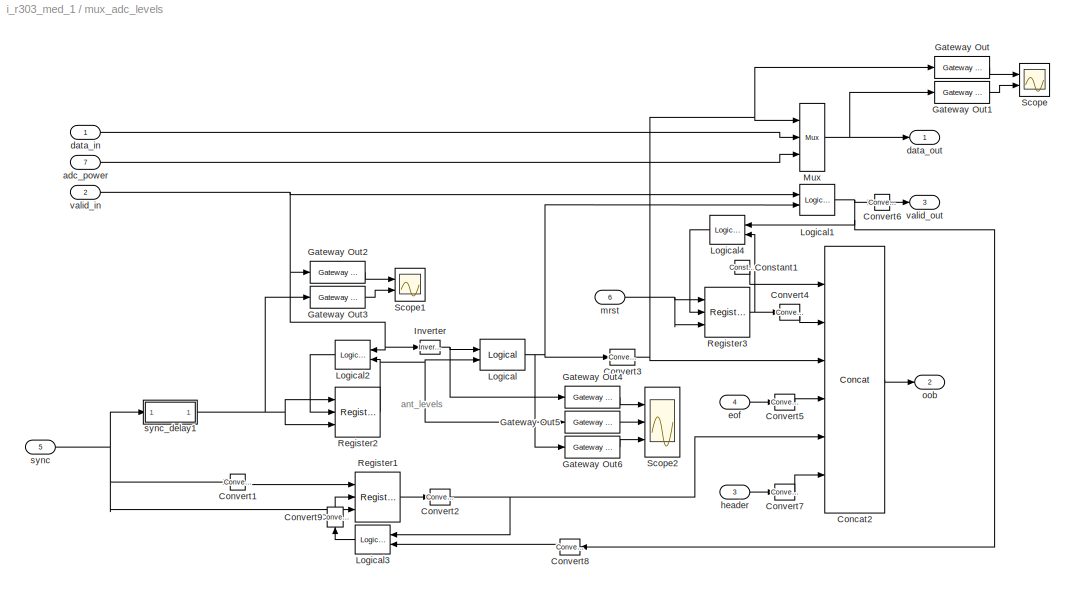
BLOCK [SubSystem] mux_adc_levels
  MaskEnableString = on
  MaskIconFrame = on
  MaskIconOpaque = on
  MaskIconRotate = none
  MaskIconUnits = autoscale
  MaskPromptString = Attempt to insert antenna levels how many clocks after sync?
  MaskStyleString = edit
  MaskToolTipString = on
  MaskTunableValueString = on
  MaskValueString = 2000
  MaskVariables = wait_time=@1;
  MaskVisibilityString = on
  MinAlgLoopOccurrences = off
  Ports = [7, 3]
  RTWSystemCode = Auto
  TreatAsAtomicUnit = off
BLOCK [Reference] mux_adc_levels/Concat2  REF=xbsIndex_r3/Concat
  Ports = [6, 1]
  SourceBlock = xbsIndex_r3/Concat
  SourceType = Xilinx Bus Concatenator
  dbl_ovrd = off
  explicit_period = off
  num_inputs = 6
  period = 1
BLOCK [Reference] mux_adc_levels/Constant1  REF=xbsIndex_r3/Constant
  Ports = [0, 1]
  SourceBlock = xbsIndex_r3/Constant
  SourceType = Xilinx Constant Block
  arith_type = Unsigned
  bin_pt = 0
  carry = CIN
  const = 0
  dbl_ovrd = off
  equ = P=C
  explicit_period = on
  inp1 = P
  inp2 = PCIN>>17
  iostate = 0
  n_bits = 3
  opr = +
  opselect = C
  period = 1
BLOCK [Reference] mux_adc_levels/Convert1  REF=xbsIndex_r3/Convert
  Ports = [1, 1]
  SourceBlock = xbsIndex_r3/Convert
  SourceType = Xilinx Converter Block
  arith_type = Unsigned
  bin_pt = 0
  dbl_ovrd = off
  explicit_period = off
  inserted_by_tool = off
  latency = 0
  n_bits = 1
  overflow = Wrap
  period = 1
  pipeline = off
  quantization = Truncate
  show_param = off
  xl_area = [0, 0, 0, 0, 0, 0, 0]
  xl_use_area = off
BLOCK [Reference] mux_adc_levels/Convert2  REF=xbsIndex_r3/Convert
  Ports = [1, 1]
  SourceBlock = xbsIndex_r3/Convert
  SourceType = Xilinx Converter Block
  arith_type = Unsigned
  bin_pt = 0
  dbl_ovrd = off
  explicit_period = off
  inserted_by_tool = off
  latency = 0
  n_bits = 1
  overflow = Wrap
  period = 1
  pipeline = off
  quantization = Truncate
  show_param = off
  xl_area = [0, 0, 0, 0, 0, 0, 0]
  xl_use_area = off
BLOCK [Reference] mux_adc_levels/Convert3  REF=xbsIndex_r3/Convert
  Ports = [1, 1]
  SourceBlock = xbsIndex_r3/Convert
  SourceType = Xilinx Converter Block
  arith_type = Unsigned
  bin_pt = 0
  dbl_ovrd = off
  explicit_period = off
  inserted_by_tool = off
  latency = 0
  n_bits = 1
  overflow = Wrap
  period = 1
  pipeline = off
  quantization = Truncate
  show_param = off
  xl_area = [0, 0, 0, 0, 0, 0, 0]
  xl_use_area = off
BLOCK [Reference] mux_adc_levels/Convert4  REF=xbsIndex_r3/Convert
  Ports = [1, 1]
  SourceBlock = xbsIndex_r3/Convert
  SourceType = Xilinx Converter Block
  arith_type = Unsigned
  bin_pt = 0
  dbl_ovrd = off
  explicit_period = off
  inserted_by_tool = off
  latency = 0
  n_bits = 1
  overflow = Wrap
  period = 1
  pipeline = off
  quantization = Truncate
  show_param = off
  xl_area = [0, 0, 0, 0, 0, 0, 0]
  xl_use_area = off
BLOCK [Reference] mux_adc_levels/Convert5  REF=xbsIndex_r3/Convert
  Ports = [1, 1]
  SourceBlock = xbsIndex_r3/Convert
  SourceType = Xilinx Converter Block
  arith_type = Unsigned
  bin_pt = 0
  dbl_ovrd = off
  explicit_period = off
  inserted_by_tool = off
  latency = 0
  n_bits = 1
  overflow = Wrap
  period = 1
  pipeline = off
  quantization = Truncate
  show_param = off
  xl_area = [0, 0, 0, 0, 0, 0, 0]
  xl_use_area = off
BLOCK [Reference] mux_adc_levels/Convert6  REF=xbsIndex_r3/Convert
  Ports = [1, 1]
  SourceBlock = xbsIndex_r3/Convert
  SourceType = Xilinx Converter Block
  arith_type = Boolean
  bin_pt = 0
  dbl_ovrd = off
  explicit_period = off
  inserted_by_tool = off
  latency = 0
  n_bits = 1
  overflow = Wrap
  period = 1
  pipeline = off
  quantization = Truncate
  show_param = off
  xl_area = [0, 0, 0, 0, 0, 0, 0]
  xl_use_area = off
BLOCK [Reference] mux_adc_levels/Convert7  REF=xbsIndex_r3/Convert
  Ports = [1, 1]
  SourceBlock = xbsIndex_r3/Convert
  SourceType = Xilinx Converter Block
  arith_type = Unsigned
  bin_pt = 0
  dbl_ovrd = off
  explicit_period = off
  inserted_by_tool = off
  latency = 0
  n_bits = 1
  overflow = Wrap
  period = 1
  pipeline = off
  quantization = Truncate
  show_param = off
  xl_area = [0, 0, 0, 0, 0, 0, 0]
  xl_use_area = off
BLOCK [Reference] mux_adc_levels/Convert8  REF=xbsIndex_r3/Convert
  Ports = [1, 1]
  SourceBlock = xbsIndex_r3/Convert
  SourceType = Xilinx Converter Block
  arith_type = Unsigned
  bin_pt = 0
  dbl_ovrd = off
  explicit_period = off
  inserted_by_tool = off
  latency = 0
  n_bits = 1
  overflow = Wrap
  period = 1
  pipeline = off
  quantization = Truncate
  show_param = off
  xl_area = [0, 0, 0, 0, 0, 0, 0]
  xl_use_area = off
BLOCK [Reference] mux_adc_levels/Convert9  REF=xbsIndex_r3/Convert
  Ports = [1, 1]
  SourceBlock = xbsIndex_r3/Convert
  SourceType = Xilinx Converter Block
  arith_type = Boolean
  bin_pt = 0
  dbl_ovrd = off
  explicit_period = off
  inserted_by_tool = off
  latency = 0
  n_bits = 1
  overflow = Wrap
  period = 1
  pipeline = off
  quantization = Truncate
  show_param = off
  xl_area = [0, 0, 0, 0, 0, 0, 0]
  xl_use_area = off
BLOCK [Reference] mux_adc_levels/Gateway Out  REF=xbsIndex_r3/Gateway Out
  LOCs = {}
  Ports = [1, 1]
  SourceBlock = xbsIndex_r3/Gateway Out
  SourceType = Xilinx Gateway Out
  arith_type = Boolean
  bin_pt = 6
  hdl_port = on
  locs_specified = off
  nbits = 8
  needs_fixed_name = off
  output_type = Double
  overflow = Wrap
  quantization = Truncate
  show_param = off
  timing_constraint = None
  xl_area = [0, 0, 0, 0, 0, 0, 0]
  xl_use_area = off
BLOCK [Reference] mux_adc_levels/Gateway Out1  REF=xbsIndex_r3/Gateway Out
  LOCs = {}
  Ports = [1, 1]
  SourceBlock = xbsIndex_r3/Gateway Out
  SourceType = Xilinx Gateway Out
  arith_type = Boolean
  bin_pt = 6
  hdl_port = on
  locs_specified = off
  nbits = 8
  needs_fixed_name = off
  output_type = Double
  overflow = Wrap
  quantization = Truncate
  show_param = off
  timing_constraint = None
  xl_area = [0, 0, 0, 0, 0, 0, 0]
  xl_use_area = off
BLOCK [Reference] mux_adc_levels/Gateway Out2  REF=xbsIndex_r3/Gateway Out
  LOCs = {}
  Ports = [1, 1]
  SourceBlock = xbsIndex_r3/Gateway Out
  SourceType = Xilinx Gateway Out
  arith_type = Boolean
  bin_pt = 6
  hdl_port = on
  locs_specified = off
  nbits = 8
  needs_fixed_name = off
  output_type = Double
  overflow = Wrap
  quantization = Truncate
  show_param = off
  timing_constraint = None
  xl_area = [0, 0, 0, 0, 0, 0, 0]
  xl_use_area = off
BLOCK [Reference] mux_adc_levels/Gateway Out3  REF=xbsIndex_r3/Gateway Out
  LOCs = {}
  Ports = [1, 1]
  SourceBlock = xbsIndex_r3/Gateway Out
  SourceType = Xilinx Gateway Out
  arith_type = Boolean
  bin_pt = 6
  hdl_port = on
  locs_specified = off
  nbits = 8
  needs_fixed_name = off
  output_type = Double
  overflow = Wrap
  quantization = Truncate
  show_param = off
  timing_constraint = None
  xl_area = [0, 0, 0, 0, 0, 0, 0]
  xl_use_area = off
BLOCK [Reference] mux_adc_levels/Gateway Out4  REF=xbsIndex_r3/Gateway Out
  LOCs = {}
  Ports = [1, 1]
  SourceBlock = xbsIndex_r3/Gateway Out
  SourceType = Xilinx Gateway Out
  arith_type = Boolean
  bin_pt = 6
  hdl_port = on
  locs_specified = off
  nbits = 8
  needs_fixed_name = off
  output_type = Double
  overflow = Wrap
  quantization = Truncate
  show_param = off
  timing_constraint = None
  xl_area = [0, 0, 0, 0, 0, 0, 0]
  xl_use_area = off
BLOCK [Reference] mux_adc_levels/Gateway Out5  REF=xbsIndex_r3/Gateway Out
  LOCs = {}
  Ports = [1, 1]
  SourceBlock = xbsIndex_r3/Gateway Out
  SourceType = Xilinx Gateway Out
  arith_type = Boolean
  bin_pt = 6
  hdl_port = on
  locs_specified = off
  nbits = 8
  needs_fixed_name = off
  output_type = Double
  overflow = Wrap
  quantization = Truncate
  show_param = off
  timing_constraint = None
  xl_area = [0, 0, 0, 0, 0, 0, 0]
  xl_use_area = off
BLOCK [Reference] mux_adc_levels/Gateway Out6  REF=xbsIndex_r3/Gateway Out
  LOCs = {}
  Ports = [1, 1]
  SourceBlock = xbsIndex_r3/Gateway Out
  SourceType = Xilinx Gateway Out
  arith_type = Boolean
  bin_pt = 6
  hdl_port = on
  locs_specified = off
  nbits = 8
  needs_fixed_name = off
  output_type = Double
  overflow = Wrap
  quantization = Truncate
  show_param = off
  timing_constraint = None
  xl_area = [0, 0, 0, 0, 0, 0, 0]
  xl_use_area = off
BLOCK [Reference] mux_adc_levels/Inverter  REF=xbsIndex_r3/Inverter
  Ports = [1, 1]
  SourceBlock = xbsIndex_r3/Inverter
  SourceType = Xilinx Inverter
  dbl_ovrd = off
  en = off
  explicit_period = off
  latency = 0
  period = 1
  show_param = off
  xl_area = [0, 0, 0, 0, 0, 0, 0]
  xl_use_area = off
BLOCK [Reference] mux_adc_levels/Logical  REF=xbsIndex_r3/Logical
  Ports = [2, 1]
  SourceBlock = xbsIndex_r3/Logical
  SourceType = Xilinx Logical Block
  align_bp = off
  arith_type = Unsigned
  bin_pt = 2
  dbl_ovrd = off
  en = off
  explicit_period = off
  inputs = 2
  latency = 0
  logical_function = AND
  n_bits = 8
  period = 1
  precision = Full
  show_param = off
  xl_area = [0, 0, 0, 0, 0, 0, 0]
  xl_use_area = off
BLOCK [Reference] mux_adc_levels/Logical1  REF=xbsIndex_r3/Logical
  Ports = [2, 1]
  SourceBlock = xbsIndex_r3/Logical
  SourceType = Xilinx Logical Block
  align_bp = on
  arith_type = Unsigned
  bin_pt = 2
  dbl_ovrd = off
  en = off
  explicit_period = on
  inputs = 2
  latency = 0
  logical_function = OR
  n_bits = 8
  period = 1
  precision = Full
  show_param = off
  xl_area = [0, 0, 0, 0, 0, 0, 0]
  xl_use_area = off
BLOCK [Reference] mux_adc_levels/Logical2  REF=xbsIndex_r3/Logical
  Ports = [2, 1]
  SourceBlock = xbsIndex_r3/Logical
  SourceType = Xilinx Logical Block
  align_bp = off
  arith_type = Unsigned
  bin_pt = 0
  dbl_ovrd = off
  en = off
  explicit_period = on
  inputs = 2
  latency = 0
  logical_function = AND
  n_bits = 1
  period = 1
  precision = Full
  show_param = off
  xl_area = [0, 0, 0, 0, 0, 0, 0]
  xl_use_area = off
BLOCK [Reference] mux_adc_levels/Logical3  REF=xbsIndex_r3/Logical
  Ports = [2, 1]
  SourceBlock = xbsIndex_r3/Logical
  SourceType = Xilinx Logical Block
  align_bp = off
  arith_type = Unsigned
  bin_pt = 0
  dbl_ovrd = off
  en = off
  explicit_period = on
  inputs = 2
  latency = 0
  logical_function = AND
  n_bits = 1
  period = 1
  precision = Full
  show_param = off
  xl_area = [0, 0, 0, 0, 0, 0, 0]
  xl_use_area = off
BLOCK [Reference] mux_adc_levels/Logical4  REF=xbsIndex_r3/Logical
  Ports = [2, 1]
  SourceBlock = xbsIndex_r3/Logical
  SourceType = Xilinx Logical Block
  align_bp = off
  arith_type = Unsigned
  bin_pt = 0
  dbl_ovrd = off
  en = off
  explicit_period = on
  inputs = 2
  latency = 0
  logical_function = AND
  n_bits = 1
  period = 1
  precision = Full
  show_param = off
  xl_area = [0, 0, 0, 0, 0, 0, 0]
  xl_use_area = off
BLOCK [Reference] mux_adc_levels/Mux  REF=xbsIndex_r3/Mux
  Ports = [3, 1]
  SourceBlock = xbsIndex_r3/Mux
  SourceType = Xilinx Multiplexer Block
  arith_type = Signed  (2's comp)
  bin_pt = 2
  dbl_ovrd = off
  en = off
  explicit_period = on
  gen_core = off
  inputs = 2
  latency = 0
  mux_type = off
  n_bits = 8
  overflow = Wrap
  period = 1
  precision = Full
  quantization = Truncate
  show_param = off
  use_rpm = off
  xl_area = [0, 0, 0, 0, 0, 0, 0]
  xl_use_area = off
BLOCK [Reference] mux_adc_levels/Register1  REF=xbsIndex_r3/Register
  Ports = [3, 1]
  SourceBlock = xbsIndex_r3/Register
  SourceType = Xilinx Register Block
  dbl_ovrd = off
  en = on
  explicit_period = on
  init = 0
  out_en = off
  period = 1
  reg_only_valid = off
  rst = on
  show_param = off
  xl_area = [0, 0, 0, 0, 0, 0, 0]
  xl_use_area = off
BLOCK [Reference] mux_adc_levels/Register2  REF=xbsIndex_r3/Register
  Ports = [3, 1]
  SourceBlock = xbsIndex_r3/Register
  SourceType = Xilinx Register Block
  dbl_ovrd = off
  en = on
  explicit_period = on
  init = 0
  out_en = off
  period = 1
  reg_only_valid = off
  rst = on
  show_param = off
  xl_area = [0, 0, 0, 0, 0, 0, 0]
  xl_use_area = off
BLOCK [Reference] mux_adc_levels/Register3  REF=xbsIndex_r3/Register
  Ports = [3, 1]
  SourceBlock = xbsIndex_r3/Register
  SourceType = Xilinx Register Block
  dbl_ovrd = off
  en = on
  explicit_period = on
  init = 0
  out_en = off
  period = 1
  reg_only_valid = off
  rst = on
  show_param = off
  xl_area = [0, 0, 0, 0, 0, 0, 0]
  xl_use_area = off
BLOCK [Scope] mux_adc_levels/Scope
  DataFormat = StructureWithTime
  LimitDataPoints = off
  NumInputPorts = 2
  Ports = [2]
  SaveName = ScopeData3
  YMax = 2~1.7e+023
  YMin = 0~-1e+022
  ZoomMode = xonly
BLOCK [Scope] mux_adc_levels/Scope1
  DataFormat = StructureWithTime
  LimitDataPoints = off
  NumInputPorts = 2
  Ports = [2]
  SaveName = ScopeData2
  YMax = 2~1.7e+023
  YMin = 0~-1e+022
  ZoomMode = xonly
BLOCK [Scope] mux_adc_levels/Scope2
  DataFormat = StructureWithTime
  LimitDataPoints = off
  NumInputPorts = 3
  Ports = [3]
  SaveName = ScopeData11
  YMax = 4.5e+023~1~5
  YMin = -1.67772e+007~0~-5
  ZoomMode = xonly
BLOCK [Inport] mux_adc_levels/adc_power
  IconDisplay = Port number
  LatchInput = off
  Port = 7
BLOCK [Inport] mux_adc_levels/data_in
  IconDisplay = Port number
  LatchInput = off
  Port = 1
BLOCK [Outport] mux_adc_levels/data_out
  BusOutputAsStruct = off
  IconDisplay = Port number
BLOCK [Inport] mux_adc_levels/eof
  IconDisplay = Port number
  LatchInput = off
  Port = 4
BLOCK [Inport] mux_adc_levels/header
  IconDisplay = Port number
  LatchInput = off
  Port = 3
BLOCK [Inport] mux_adc_levels/mrst
  IconDisplay = Port number
  LatchInput = off
  Port = 6
BLOCK [Outport] mux_adc_levels/oob
  BusOutputAsStruct = off
  IconDisplay = Port number
  Port = 2
BLOCK [Inport] mux_adc_levels/sync
  IconDisplay = Port number
  LatchInput = off
  Port = 5
BLOCK [SubSystem] mux_adc_levels/sync_delay1
  MaskDescription = Delay an infrequent boolean pulse by the specified number of clocks.
  MaskDisplay = fprintf('Z^-%d', DelayLen)
  MaskEnableString = on
  MaskHelp = eval('xlWeb([getenv(''MLIB_ROOT''), ''<path>''])')
  MaskIconFrame = on
  MaskIconOpaque = on
  MaskIconRotate = none
  MaskIconUnits = autoscale
  MaskInitialization = BitWidth = max(2, ceil(log2(DelayLen+1)));\nUseCounter = 1;\nif DelayLen == 0,\n	UseCounter = 0;\nend
  MaskPromptString = Delay Length:
  MaskSelfModifiable = on
  MaskStyleString = edit
  MaskToolTipString = on
  MaskTunableValueString = on
  MaskType = sync_delay
  MaskValueString = wait_time
  MaskVariables = DelayLen=@1;
  MaskVisibilityString = on
  MinAlgLoopOccurrences = off
  Ports = [1, 1]
  RTWSystemCode = Auto
  TreatAsAtomicUnit = off
BLOCK [Reference] mux_adc_levels/sync_delay1/Constant  REF=xbsIndex_r3/Constant
  Ports = [0, 1]
  SourceBlock = xbsIndex_r3/Constant
  SourceType = Xilinx Constant Block
  arith_type = Unsigned
  bin_pt = 0
  carry = CIN
  const = 1
  dbl_ovrd = off
  equ = P=C
  explicit_period = on
  inp1 = P
  inp2 = PCIN>>17
  iostate = 0
  n_bits = BitWidth
  opr = +
  opselect = C
  period = 1
BLOCK [Reference] mux_adc_levels/sync_delay1/Constant1  REF=xbsIndex_r3/Constant
  Ports = [0, 1]
  SourceBlock = xbsIndex_r3/Constant
  SourceType = Xilinx Constant Block
  arith_type = Unsigned
  bin_pt = 0
  carry = CIN
  const = 0
  dbl_ovrd = off
  equ = P=C
  explicit_period = on
  inp1 = P
  inp2 = PCIN>>17
  iostate = 0
  n_bits = BitWidth
  opr = +
  opselect = C
  period = 1
BLOCK [Reference] mux_adc_levels/sync_delay1/Constant2  REF=xbsIndex_r3/Constant
  Ports = [0, 1]
  SourceBlock = xbsIndex_r3/Constant
  SourceType = Xilinx Constant Block
  arith_type = Unsigned
  bin_pt = 0
  carry = CIN
  const = DelayLen
  dbl_ovrd = off
  equ = P=C
  explicit_period = on
  inp1 = P
  inp2 = PCIN>>17
  iostate = 0
  n_bits = BitWidth
  opr = +
  opselect = C
  period = 1
BLOCK [Reference] mux_adc_levels/sync_delay1/Constant3  REF=xbsIndex_r3/Constant
  Ports = [0, 1]
  SourceBlock = xbsIndex_r3/Constant
  SourceType = Xilinx Constant Block
  arith_type = Unsigned
  bin_pt = 0
  carry = CIN
  const = UseCounter
  dbl_ovrd = off
  equ = P=C
  explicit_period = on
  inp1 = P
  inp2 = PCIN>>17
  iostate = 0
  n_bits = 1
  opr = +
  opselect = C
  period = 1
BLOCK [Reference] mux_adc_levels/sync_delay1/Counter  REF=xbsIndex_r3/Counter
  Ports = [3, 1]
  SourceBlock = xbsIndex_r3/Counter
  SourceType = Xilinx Counter Block
  arith_type = Unsigned
  bin_pt = 0
  cnt_by_val = 1
  cnt_to = Inf
  cnt_type = Free Running
  dbl_ovrd = off
  en = on
  explicit_period = on
  gen_core = off
  load_pin = on
  n_bits = BitWidth
  operation = Down
  period = 1
  rst = off
  show_param = off
  start_count = 0
  use_rpm = on
  xl_area = [0, 0, 0, 0, 0, 0, 0]
  xl_use_area = off
BLOCK [Inport] mux_adc_levels/sync_delay1/In
  IconDisplay = Port number
  LatchInput = off
  Port = 1
BLOCK [Reference] mux_adc_levels/sync_delay1/Logical  REF=xbsIndex_r3/Logical
  Ports = [2, 1]
  SourceBlock = xbsIndex_r3/Logical
  SourceType = Xilinx Logical Block
  align_bp = on
  arith_type = Unsigned
  bin_pt = 2
  dbl_ovrd = off
  en = off
  explicit_period = on
  inputs = 2
  latency = 0
  logical_function = OR
  n_bits = 8
  period = 1
  precision = Full
  show_param = off
  xl_area = [0, 0, 0, 0, 0, 0, 0]
  xl_use_area = off
BLOCK [Reference] mux_adc_levels/sync_delay1/Mux  REF=xbsIndex_r3/Mux
  Ports = [3, 1]
  SourceBlock = xbsIndex_r3/Mux
  SourceType = Xilinx Multiplexer Block
  arith_type = Signed  (2's comp)
  bin_pt = 2
  dbl_ovrd = off
  en = off
  explicit_period = off
  gen_core = off
  inputs = 2
  latency = 0
  mux_type = off
  n_bits = 8
  overflow = Wrap
  period = 1
  precision = Full
  quantization = Truncate
  show_param = off
  use_rpm = off
  xl_area = [0, 0, 0, 0, 0, 0, 0]
  xl_use_area = off
BLOCK [Outport] mux_adc_levels/sync_delay1/Out
  BusOutputAsStruct = off
  IconDisplay = Port number
BLOCK [Reference] mux_adc_levels/sync_delay1/Relational  REF=xbsIndex_r3/Relational
  Ports = [2, 1]
  SourceBlock = xbsIndex_r3/Relational
  SourceType = Xilinx Relational Block
  dbl_ovrd = off
  en = off
  explicit_period = off
  latency = 0
  mode = a=b
  period = 1
  show_param = off
  xl_area = [0, 0, 0, 0, 0, 0, 0]
  xl_use_area = off
BLOCK [Reference] mux_adc_levels/sync_delay1/Relational1  REF=xbsIndex_r3/Relational
  Ports = [2, 1]
  SourceBlock = xbsIndex_r3/Relational
  SourceType = Xilinx Relational Block
  dbl_ovrd = off
  en = off
  explicit_period = on
  latency = 0
  mode = a!=b
  period = 1
  show_param = off
  xl_area = [0, 0, 0, 0, 0, 0, 0]
  xl_use_area = off
BLOCK [Inport] mux_adc_levels/valid_in
  IconDisplay = Port number
  LatchInput = off
  Port = 2
BLOCK [Outport] mux_adc_levels/valid_out
  BusOutputAsStruct = off
  IconDisplay = Port number
  Port = 3
BLOCK [SubSystem] neg_edge_ext
  MaskEnableString = on
  MaskIconFrame = on
  MaskIconOpaque = on
  MaskIconRotate = none
  MaskIconUnits = autoscale
  MaskInitialization = bits = ceil(log2(pulse_len+1));
  MaskPromptString = Length of Pulse
  MaskStyleString = edit
  MaskToolTipString = on
  MaskTunableValueString = on
  MaskValueString = 2^27
  MaskVariables = pulse_len=@1;
  MaskVisibilityString = on
  MinAlgLoopOccurrences = off
  Ports = [1, 1]
  RTWSystemCode = Auto
  TreatAsAtomicUnit = off
BLOCK [Reference] neg_edge_ext/Constant5  REF=xbsIndex_r3/Constant
  Ports = [0, 1]
  SourceBlock = xbsIndex_r3/Constant
  SourceType = Xilinx Constant Block
  arith_type = Unsigned
  bin_pt = 0
  carry = CIN
  const = pulse_len
  dbl_ovrd = off
  equ = P=C
  explicit_period = off
  inp1 = P
  inp2 = PCIN>>17
  iostate = 0
  n_bits = bits
  opr = +
  opselect = C
  period = 1
BLOCK [Reference] neg_edge_ext/Counter3  REF=xbsIndex_r3/Counter
  Ports = [2, 1]
  SourceBlock = xbsIndex_r3/Counter
  SourceType = Xilinx Counter Block
  arith_type = Unsigned
  bin_pt = 0
  cnt_by_val = 1
  cnt_to = 1023
  cnt_type = Free Running
  dbl_ovrd = off
  en = on
  explicit_period = on
  gen_core = off
  load_pin = off
  n_bits = bits
  operation = Up
  period = 1
  rst = on
  show_param = off
  start_count = 0
  use_rpm = on
  xl_area = [0, 0, 0, 0, 0, 0, 0]
  xl_use_area = off
BLOCK [Reference] neg_edge_ext/Relational5  REF=xbsIndex_r3/Relational
  Ports = [2, 1]
  SourceBlock = xbsIndex_r3/Relational
  SourceType = Xilinx Relational Block
  dbl_ovrd = off
  en = off
  explicit_period = off
  latency = 0
  mode = a!=b
  period = 1
  show_param = off
  xl_area = [0, 0, 0, 0, 0, 0, 0]
  xl_use_area = off
BLOCK [Inport] neg_edge_ext/in
  IconDisplay = Port number
  LatchInput = off
  Port = 1
BLOCK [Outport] neg_edge_ext/out
  BusOutputAsStruct = off
  IconDisplay = Port number
BLOCK [SubSystem] negedge
  MinAlgLoopOccurrences = off
  Ports = [1, 1]
  RTWSystemCode = Auto
  Tag = Rising Edge Detector
  TreatAsAtomicUnit = off
BLOCK [Reference] negedge/Delay  REF=xbsIndex_r3/Delay
  Ports = [1, 1]
  SourceBlock = xbsIndex_r3/Delay
  SourceType = Xilinx Delay Block
  accept_only_valid = off
  dbl_ovrd = off
  en = off
  explicit_period = off
  init_zero = on
  latency = 1
  period = 1
  reg_retiming = off
  show_param = off
  xl_area = [0, 0, 0, 0, 0, 0, 0]
  xl_use_area = off
BLOCK [Inport] negedge/In
  IconDisplay = Port number
  LatchInput = off
  Port = 1
BLOCK [Reference] negedge/Inverter  REF=xbsIndex_r3/Inverter
  Ports = [1, 1]
  SourceBlock = xbsIndex_r3/Inverter
  SourceType = Xilinx Inverter
  dbl_ovrd = off
  en = off
  explicit_period = off
  latency = 0
  period = 1
  show_param = off
  xl_area = [0, 0, 0, 0, 0, 0, 0]
  xl_use_area = off
BLOCK [Reference] negedge/Logical  REF=xbsIndex_r3/Logical
  Ports = [2, 1]
  SourceBlock = xbsIndex_r3/Logical
  SourceType = Xilinx Logical Block
  align_bp = on
  arith_type = Unsigned
  bin_pt = 2
  dbl_ovrd = off
  en = off
  explicit_period = off
  inputs = 2
  latency = 0
  logical_function = AND
  n_bits = 8
  period = 1
  precision = Full
  show_param = off
  xl_area = [0, 0, 0, 0, 0, 0, 0]
  xl_use_area = off
BLOCK [Outport] negedge/Out
  BusOutputAsStruct = off
  IconDisplay = Port number
BLOCK [SubSystem] negedge1
  MinAlgLoopOccurrences = off
  Ports = [1, 1]
  RTWSystemCode = Auto
  Tag = Rising Edge Detector
  TreatAsAtomicUnit = off
BLOCK [Reference] negedge1/Delay  REF=xbsIndex_r3/Delay
  Ports = [1, 1]
  SourceBlock = xbsIndex_r3/Delay
  SourceType = Xilinx Delay Block
  accept_only_valid = off
  dbl_ovrd = off
  en = off
  explicit_period = off
  init_zero = on
  latency = 1
  period = 1
  reg_retiming = off
  show_param = off
  xl_area = [0, 0, 0, 0, 0, 0, 0]
  xl_use_area = off
BLOCK [Inport] negedge1/In
  IconDisplay = Port number
  LatchInput = off
  Port = 1
BLOCK [Reference] negedge1/Inverter  REF=xbsIndex_r3/Inverter
  Ports = [1, 1]
  SourceBlock = xbsIndex_r3/Inverter
  SourceType = Xilinx Inverter
  dbl_ovrd = off
  en = off
  explicit_period = off
  latency = 0
  period = 1
  show_param = off
  xl_area = [0, 0, 0, 0, 0, 0, 0]
  xl_use_area = off
BLOCK [Reference] negedge1/Logical  REF=xbsIndex_r3/Logical
  Ports = [2, 1]
  SourceBlock = xbsIndex_r3/Logical
  SourceType = Xilinx Logical Block
  align_bp = on
  arith_type = Unsigned
  bin_pt = 2
  dbl_ovrd = off
  en = off
  explicit_period = off
  inputs = 2
  latency = 0
  logical_function = AND
  n_bits = 8
  period = 1
  precision = Full
  show_param = off
  xl_area = [0, 0, 0, 0, 0, 0, 0]
  xl_use_area = off
BLOCK [Outport] negedge1/Out
  BusOutputAsStruct = off
  IconDisplay = Port number
BLOCK [SubSystem] negedge2
  MinAlgLoopOccurrences = off
  Ports = [1, 1]
  RTWSystemCode = Auto
  Tag = Rising Edge Detector
  TreatAsAtomicUnit = off
BLOCK [Reference] negedge2/Delay  REF=xbsIndex_r3/Delay
  Ports = [1, 1]
  SourceBlock = xbsIndex_r3/Delay
  SourceType = Xilinx Delay Block
  accept_only_valid = off
  dbl_ovrd = off
  en = off
  explicit_period = off
  init_zero = on
  latency = 1
  period = 1
  reg_retiming = off
  show_param = off
  xl_area = [0, 0, 0, 0, 0, 0, 0]
  xl_use_area = off
BLOCK [Inport] negedge2/In
  IconDisplay = Port number
  LatchInput = off
  Port = 1
BLOCK [Reference] negedge2/Inverter  REF=xbsIndex_r3/Inverter
  Ports = [1, 1]
  SourceBlock = xbsIndex_r3/Inverter
  SourceType = Xilinx Inverter
  dbl_ovrd = off
  en = off
  explicit_period = off
  latency = 0
  period = 1
  show_param = off
  xl_area = [0, 0, 0, 0, 0, 0, 0]
  xl_use_area = off
BLOCK [Reference] negedge2/Logical  REF=xbsIndex_r3/Logical
  Ports = [2, 1]
  SourceBlock = xbsIndex_r3/Logical
  SourceType = Xilinx Logical Block
  align_bp = on
  arith_type = Unsigned
  bin_pt = 2
  dbl_ovrd = off
  en = off
  explicit_period = off
  inputs = 2
  latency = 0
  logical_function = AND
  n_bits = 8
  period = 1
  precision = Full
  show_param = off
  xl_area = [0, 0, 0, 0, 0, 0, 0]
  xl_use_area = off
BLOCK [Outport] negedge2/Out
  BusOutputAsStruct = off
  IconDisplay = Port number
BLOCK [SubSystem] negedge3
  MinAlgLoopOccurrences = off
  Ports = [1, 1]
  RTWSystemCode = Auto
  Tag = Rising Edge Detector
  TreatAsAtomicUnit = off
BLOCK [Reference] negedge3/Delay  REF=xbsIndex_r3/Delay
  Ports = [1, 1]
  SourceBlock = xbsIndex_r3/Delay
  SourceType = Xilinx Delay Block
  accept_only_valid = off
  dbl_ovrd = off
  en = off
  explicit_period = off
  init_zero = on
  latency = 1
  period = 1
  reg_retiming = off
  show_param = off
  xl_area = [0, 0, 0, 0, 0, 0, 0]
  xl_use_area = off
BLOCK [Inport] negedge3/In
  IconDisplay = Port number
  LatchInput = off
  Port = 1
BLOCK [Reference] negedge3/Inverter  REF=xbsIndex_r3/Inverter
  Ports = [1, 1]
  SourceBlock = xbsIndex_r3/Inverter
  SourceType = Xilinx Inverter
  dbl_ovrd = off
  en = off
  explicit_period = off
  latency = 0
  period = 1
  show_param = off
  xl_area = [0, 0, 0, 0, 0, 0, 0]
  xl_use_area = off
BLOCK [Reference] negedge3/Logical  REF=xbsIndex_r3/Logical
  Ports = [2, 1]
  SourceBlock = xbsIndex_r3/Logical
  SourceType = Xilinx Logical Block
  align_bp = on
  arith_type = Unsigned
  bin_pt = 2
  dbl_ovrd = off
  en = off
  explicit_period = off
  inputs = 2
  latency = 0
  logical_function = AND
  n_bits = 8
  period = 1
  precision = Full
  show_param = off
  xl_area = [0, 0, 0, 0, 0, 0, 0]
  xl_use_area = off
BLOCK [Outport] negedge3/Out
  BusOutputAsStruct = off
  IconDisplay = Port number
BLOCK [SubSystem] negedge4
  MinAlgLoopOccurrences = off
  Ports = [1, 1]
  RTWSystemCode = Auto
  Tag = Rising Edge Detector
  TreatAsAtomicUnit = off
BLOCK [Reference] negedge4/Delay  REF=xbsIndex_r3/Delay
  Ports = [1, 1]
  SourceBlock = xbsIndex_r3/Delay
  SourceType = Xilinx Delay Block
  accept_only_valid = off
  dbl_ovrd = off
  en = off
  explicit_period = off
  init_zero = on
  latency = 1
  period = 1
  reg_retiming = off
  show_param = off
  xl_area = [0, 0, 0, 0, 0, 0, 0]
  xl_use_area = off
BLOCK [Inport] negedge4/In
  IconDisplay = Port number
  LatchInput = off
  Port = 1
BLOCK [Reference] negedge4/Inverter  REF=xbsIndex_r3/Inverter
  Ports = [1, 1]
  SourceBlock = xbsIndex_r3/Inverter
  SourceType = Xilinx Inverter
  dbl_ovrd = off
  en = off
  explicit_period = off
  latency = 0
  period = 1
  show_param = off
  xl_area = [0, 0, 0, 0, 0, 0, 0]
  xl_use_area = off
BLOCK [Reference] negedge4/Logical  REF=xbsIndex_r3/Logical
  Ports = [2, 1]
  SourceBlock = xbsIndex_r3/Logical
  SourceType = Xilinx Logical Block
  align_bp = on
  arith_type = Unsigned
  bin_pt = 2
  dbl_ovrd = off
  en = off
  explicit_period = off
  inputs = 2
  latency = 0
  logical_function = AND
  n_bits = 8
  period = 1
  precision = Full
  show_param = off
  xl_area = [0, 0, 0, 0, 0, 0, 0]
  xl_use_area = off
BLOCK [Outport] negedge4/Out
  BusOutputAsStruct = off
  IconDisplay = Port number
BLOCK [SubSystem] negedge5
  MinAlgLoopOccurrences = off
  Ports = [1, 1]
  RTWSystemCode = Auto
  Tag = Rising Edge Detector
  TreatAsAtomicUnit = off
BLOCK [Reference] negedge5/Delay  REF=xbsIndex_r3/Delay
  Ports = [1, 1]
  SourceBlock = xbsIndex_r3/Delay
  SourceType = Xilinx Delay Block
  accept_only_valid = off
  dbl_ovrd = off
  en = off
  explicit_period = off
  init_zero = on
  latency = 1
  period = 1
  reg_retiming = off
  show_param = off
  xl_area = [0, 0, 0, 0, 0, 0, 0]
  xl_use_area = off
BLOCK [Inport] negedge5/In
  IconDisplay = Port number
  LatchInput = off
  Port = 1
BLOCK [Reference] negedge5/Inverter  REF=xbsIndex_r3/Inverter
  Ports = [1, 1]
  SourceBlock = xbsIndex_r3/Inverter
  SourceType = Xilinx Inverter
  dbl_ovrd = off
  en = off
  explicit_period = off
  latency = 0
  period = 1
  show_param = off
  xl_area = [0, 0, 0, 0, 0, 0, 0]
  xl_use_area = off
BLOCK [Reference] negedge5/Logical  REF=xbsIndex_r3/Logical
  Ports = [2, 1]
  SourceBlock = xbsIndex_r3/Logical
  SourceType = Xilinx Logical Block
  align_bp = on
  arith_type = Unsigned
  bin_pt = 2
  dbl_ovrd = off
  en = off
  explicit_period = off
  inputs = 2
  latency = 0
  logical_function = AND
  n_bits = 8
  period = 1
  precision = Full
  show_param = off
  xl_area = [0, 0, 0, 0, 0, 0, 0]
  xl_use_area = off
BLOCK [Outport] negedge5/Out
  BusOutputAsStruct = off
  IconDisplay = Port number
BLOCK [SubSystem] negedge6
  MinAlgLoopOccurrences = off
  Ports = [1, 1]
  RTWSystemCode = Auto
  Tag = Rising Edge Detector
  TreatAsAtomicUnit = off
BLOCK [Reference] negedge6/Delay  REF=xbsIndex_r3/Delay
  Ports = [1, 1]
  SourceBlock = xbsIndex_r3/Delay
  SourceType = Xilinx Delay Block
  accept_only_valid = off
  dbl_ovrd = off
  en = off
  explicit_period = off
  init_zero = on
  latency = 1
  period = 1
  reg_retiming = off
  show_param = off
  xl_area = [0, 0, 0, 0, 0, 0, 0]
  xl_use_area = off
BLOCK [Inport] negedge6/In
  IconDisplay = Port number
  LatchInput = off
  Port = 1
BLOCK [Reference] negedge6/Inverter  REF=xbsIndex_r3/Inverter
  Ports = [1, 1]
  SourceBlock = xbsIndex_r3/Inverter
  SourceType = Xilinx Inverter
  dbl_ovrd = off
  en = off
  explicit_period = off
  latency = 0
  period = 1
  show_param = off
  xl_area = [0, 0, 0, 0, 0, 0, 0]
  xl_use_area = off
BLOCK [Reference] negedge6/Logical  REF=xbsIndex_r3/Logical
  Ports = [2, 1]
  SourceBlock = xbsIndex_r3/Logical
  SourceType = Xilinx Logical Block
  align_bp = on
  arith_type = Unsigned
  bin_pt = 2
  dbl_ovrd = off
  en = off
  explicit_period = off
  inputs = 2
  latency = 0
  logical_function = AND
  n_bits = 8
  period = 1
  precision = Full
  show_param = off
  xl_area = [0, 0, 0, 0, 0, 0, 0]
  xl_use_area = off
BLOCK [Outport] negedge6/Out
  BusOutputAsStruct = off
  IconDisplay = Port number
BLOCK [SubSystem] negedge7
  MinAlgLoopOccurrences = off
  Ports = [1, 1]
  RTWSystemCode = Auto
  Tag = Rising Edge Detector
  TreatAsAtomicUnit = off
BLOCK [Reference] negedge7/Delay  REF=xbsIndex_r3/Delay
  Ports = [1, 1]
  SourceBlock = xbsIndex_r3/Delay
  SourceType = Xilinx Delay Block
  accept_only_valid = off
  dbl_ovrd = off
  en = off
  explicit_period = off
  init_zero = on
  latency = 1
  period = 1
  reg_retiming = off
  show_param = off
  xl_area = [0, 0, 0, 0, 0, 0, 0]
  xl_use_area = off
BLOCK [Inport] negedge7/In
  IconDisplay = Port number
  LatchInput = off
  Port = 1
BLOCK [Reference] negedge7/Inverter  REF=xbsIndex_r3/Inverter
  Ports = [1, 1]
  SourceBlock = xbsIndex_r3/Inverter
  SourceType = Xilinx Inverter
  dbl_ovrd = off
  en = off
  explicit_period = off
  latency = 0
  period = 1
  show_param = off
  xl_area = [0, 0, 0, 0, 0, 0, 0]
  xl_use_area = off
BLOCK [Reference] negedge7/Logical  REF=xbsIndex_r3/Logical
  Ports = [2, 1]
  SourceBlock = xbsIndex_r3/Logical
  SourceType = Xilinx Logical Block
  align_bp = on
  arith_type = Unsigned
  bin_pt = 2
  dbl_ovrd = off
  en = off
  explicit_period = off
  inputs = 2
  latency = 0
  logical_function = AND
  n_bits = 8
  period = 1
  precision = Full
  show_param = off
  xl_area = [0, 0, 0, 0, 0, 0, 0]
  xl_use_area = off
BLOCK [Outport] negedge7/Out
  BusOutputAsStruct = off
  IconDisplay = Port number
BLOCK [SubSystem] one_ant_a_time
  MinAlgLoopOccurrences = off
  Ports = [2, 2]
  RTWSystemCode = Auto
  TreatAsAtomicUnit = off
BLOCK [Reference] one_ant_a_time/Concat2  REF=xbsIndex_r3/Concat
  Ports = [2, 1]
  SourceBlock = xbsIndex_r3/Concat
  SourceType = Xilinx Bus Concatenator
  dbl_ovrd = off
  explicit_period = off
  num_inputs = 2
  period = 1
BLOCK [Reference] one_ant_a_time/Constant2  REF=xbsIndex_r3/Constant
  Ports = [0, 1]
  SourceBlock = xbsIndex_r3/Constant
  SourceType = Xilinx Constant Block
  arith_type = Boolean
  bin_pt = 0
  carry = CIN
  const = 1
  dbl_ovrd = off
  equ = P=C
  explicit_period = on
  inp1 = P
  inp2 = PCIN>>17
  iostate = 0
  n_bits = 1
  opr = +
  opselect = C
  period = 1
BLOCK [Reference] one_ant_a_time/Slice11  REF=xbsIndex_r3/Slice
  Ports = [1, 1]
  SourceBlock = xbsIndex_r3/Slice
  SourceType = Xilinx Slice Block
  base0 = LSB of Input
  base1 = MSB of Input
  bit0 = 16
  bit1 = 0
  boolean_output = off
  dbl_ovrd = off
  explicit_period = off
  mode = Lower Bit Location + Width
  nbits = 16
  period = 1
BLOCK [Reference] one_ant_a_time/Slice7  REF=xbsIndex_r3/Slice
  Ports = [1, 1]
  SourceBlock = xbsIndex_r3/Slice
  SourceType = Xilinx Slice Block
  base0 = LSB of Input
  base1 = MSB of Input
  bit0 = 0
  bit1 = 0
  boolean_output = off
  dbl_ovrd = off
  explicit_period = off
  mode = Lower Bit Location + Width
  nbits = 16
  period = 1
BLOCK [Inport] one_ant_a_time/din
  IconDisplay = Port number
  LatchInput = off
  Port = 1
BLOCK [Outport] one_ant_a_time/dout
  BusOutputAsStruct = off
  IconDisplay = Port number
BLOCK [Reference] one_ant_a_time/reorder  REF=reorder_library/reorder  (lib defined in mdl_1ba9cc465ea9, mdl_9ed4950f2b10)
  Ports = [3, 3]
  ShowPortLabels = on
  SourceBlock = reorder_library/reorder
  bram_latency = 2
  map = [(0:63)*2, (0:63)*2+1]
  map_latency = 0
  n_inputs = 1
BLOCK [Reference] one_ant_a_time/square_transposer  REF=reorder_library/square_transposer  (lib defined in mdl_1ba9cc465ea9, mdl_9ed4950f2b10)
  Ports = [3, 3]
  ShowPortLabels = on
  SourceBlock = reorder_library/square_transposer
  n_inputs = 1
BLOCK [Inport] one_ant_a_time/sync
  IconDisplay = Port number
  LatchInput = off
  Port = 2
BLOCK [Outport] one_ant_a_time/sync_out
  BusOutputAsStruct = off
  IconDisplay = Port number
  Port = 2
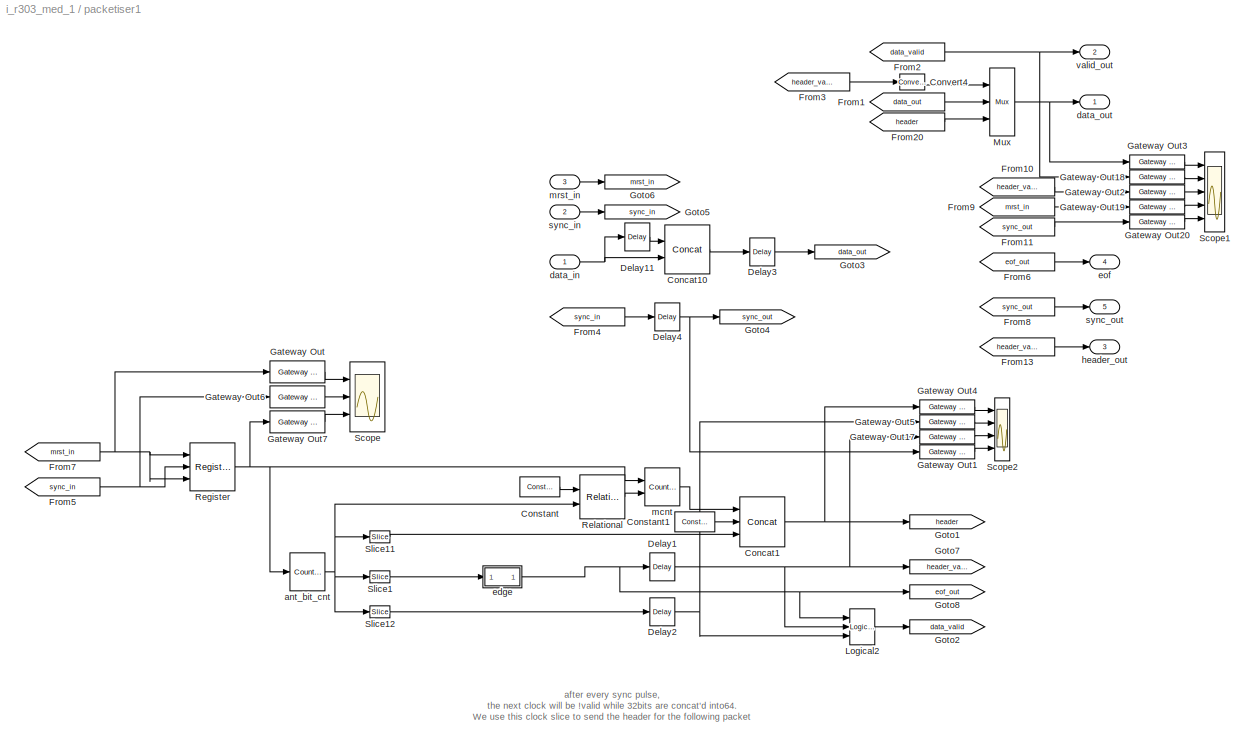
BLOCK [SubSystem] packetiser1
  MaskCallbackString = |
  MaskDescription = Package 32 bit data into 64 bits and identify data as coming from antenna 0 or 1
  MaskEnableString = on,on
  MaskIconFrame = on
  MaskIconOpaque = on
  MaskIconRotate = none
  MaskIconUnits = autoscale
  MaskPromptString = Payload length: (in 64bit words) (2^n)|Number of antennas on this link (2^n)
  MaskStyleString = edit,edit
  MaskTabNameString = ,
  MaskToolTipString = on,on
  MaskTunableValueString = on,on
  MaskValueString = 5|1
  MaskVarAliasString = ,
  MaskVariables = nwrd_bits=@1;ant_bits=@2;
  MaskVisibilityString = on,on
  MinAlgLoopOccurrences = off
  Ports = [3, 5]
  RTWSystemCode = Auto
  TreatAsAtomicUnit = off
BLOCK [Reference] packetiser1/Concat1  REF=xbsIndex_r3/Concat
  Ports = [3, 1]
  SourceBlock = xbsIndex_r3/Concat
  SourceType = Xilinx Bus Concatenator
  dbl_ovrd = off
  explicit_period = off
  num_inputs = 3
  period = 1
BLOCK [Reference] packetiser1/Concat10  REF=xbsIndex_r3/Concat
  Ports = [2, 1]
  SourceBlock = xbsIndex_r3/Concat
  SourceType = Xilinx Bus Concatenator
  dbl_ovrd = off
  explicit_period = off
  num_inputs = 2
  period = 1
BLOCK [Reference] packetiser1/Constant  REF=xbsIndex_r3/Constant
  Ports = [0, 1]
  SourceBlock = xbsIndex_r3/Constant
  SourceType = Xilinx Constant Block
  arith_type = Unsigned
  bin_pt = 0
  carry = CIN
  const = 0
  dbl_ovrd = off
  equ = P=C
  explicit_period = on
  inp1 = P
  inp2 = PCIN>>17
  iostate = 0
  n_bits = nwrd_bits+ant_bits+1
  opr = +
  opselect = C
  period = 1
BLOCK [Reference] packetiser1/Constant1  REF=xbsIndex_r3/Constant
  Ports = [0, 1]
  SourceBlock = xbsIndex_r3/Constant
  SourceType = Xilinx Constant Block
  arith_type = Unsigned
  bin_pt = 0
  carry = CIN
  const = 0
  dbl_ovrd = off
  equ = P=C
  explicit_period = on
  inp1 = P
  inp2 = PCIN>>17
  iostate = 0
  n_bits = 16-ant_bits
  opr = +
  opselect = C
  period = 1
BLOCK [Reference] packetiser1/Convert4  REF=xbsIndex_r3/Convert
  Ports = [1, 1]
  SourceBlock = xbsIndex_r3/Convert
  SourceType = Xilinx Converter Block
  arith_type = Unsigned
  bin_pt = 0
  dbl_ovrd = off
  explicit_period = off
  inserted_by_tool = off
  latency = 0
  n_bits = 1
  overflow = Wrap
  period = 1
  pipeline = off
  quantization = Truncate
  show_param = off
  xl_area = [0, 0, 0, 0, 0, 0, 0]
  xl_use_area = off
BLOCK [Reference] packetiser1/Delay1  REF=xbsIndex_r3/Delay
  Ports = [1, 1]
  SourceBlock = xbsIndex_r3/Delay
  SourceType = Xilinx Delay Block
  accept_only_valid = off
  dbl_ovrd = off
  en = off
  explicit_period = off
  init_zero = on
  latency = 1
  period = 1
  reg_retiming = on
  show_param = off
  xl_area = [0, 0, 0, 0, 0, 0, 0]
  xl_use_area = off
BLOCK [Reference] packetiser1/Delay11  REF=xbsIndex_r3/Delay
  Ports = [1, 1]
  SourceBlock = xbsIndex_r3/Delay
  SourceType = Xilinx Delay Block
  accept_only_valid = off
  dbl_ovrd = off
  en = off
  explicit_period = off
  init_zero = on
  latency = 1
  period = 1
  reg_retiming = on
  show_param = off
  xl_area = [0, 0, 0, 0, 0, 0, 0]
  xl_use_area = off
BLOCK [Reference] packetiser1/Delay2  REF=xbsIndex_r3/Delay
  Ports = [1, 1]
  SourceBlock = xbsIndex_r3/Delay
  SourceType = Xilinx Delay Block
  accept_only_valid = off
  dbl_ovrd = off
  en = off
  explicit_period = off
  init_zero = on
  latency = 1
  period = 1
  reg_retiming = off
  show_param = off
  xl_area = [0, 0, 0, 0, 0, 0, 0]
  xl_use_area = off
BLOCK [Reference] packetiser1/Delay3  REF=xbsIndex_r3/Delay
  Ports = [1, 1]
  SourceBlock = xbsIndex_r3/Delay
  SourceType = Xilinx Delay Block
  accept_only_valid = off
  dbl_ovrd = off
  en = off
  explicit_period = off
  init_zero = on
  latency = 1
  period = 1
  reg_retiming = on
  show_param = off
  xl_area = [0, 0, 0, 0, 0, 0, 0]
  xl_use_area = off
BLOCK [Reference] packetiser1/Delay4  REF=xbsIndex_r3/Delay
  Ports = [1, 1]
  SourceBlock = xbsIndex_r3/Delay
  SourceType = Xilinx Delay Block
  accept_only_valid = off
  dbl_ovrd = off
  en = off
  explicit_period = off
  init_zero = on
  latency = 1
  period = 1
  reg_retiming = on
  show_param = off
  xl_area = [0, 0, 0, 0, 0, 0, 0]
  xl_use_area = off
BLOCK [From] packetiser1/From1
  CloseFcn = tagdialog Close
  GotoTag = data_out
BLOCK [From] packetiser1/From10
  CloseFcn = tagdialog Close
  GotoTag = header_valid
BLOCK [From] packetiser1/From11
  CloseFcn = tagdialog Close
  GotoTag = sync_out
BLOCK [From] packetiser1/From13
  CloseFcn = tagdialog Close
  GotoTag = header_valid
BLOCK [From] packetiser1/From2
  CloseFcn = tagdialog Close
  GotoTag = data_valid
BLOCK [From] packetiser1/From20
  CloseFcn = tagdialog Close
  GotoTag = header
BLOCK [From] packetiser1/From3
  CloseFcn = tagdialog Close
  GotoTag = header_valid
BLOCK [From] packetiser1/From4
  CloseFcn = tagdialog Close
  GotoTag = sync_in
BLOCK [From] packetiser1/From5
  CloseFcn = tagdialog Close
  GotoTag = sync_in
BLOCK [From] packetiser1/From6
  CloseFcn = tagdialog Close
  GotoTag = eof_out
BLOCK [From] packetiser1/From7
  CloseFcn = tagdialog Close
  GotoTag = mrst_in
BLOCK [From] packetiser1/From8
  CloseFcn = tagdialog Close
  GotoTag = sync_out
BLOCK [From] packetiser1/From9
  CloseFcn = tagdialog Close
  GotoTag = mrst_in
BLOCK [Reference] packetiser1/Gateway Out  REF=xbsIndex_r3/Gateway Out
  LOCs = {}
  Ports = [1, 1]
  SourceBlock = xbsIndex_r3/Gateway Out
  SourceType = Xilinx Gateway Out
  arith_type = Boolean
  bin_pt = 6
  hdl_port = on
  locs_specified = off
  nbits = 8
  needs_fixed_name = off
  output_type = Double
  overflow = Wrap
  quantization = Truncate
  show_param = off
  timing_constraint = None
  xl_area = [0, 0, 0, 0, 0, 0, 0]
  xl_use_area = off
BLOCK [Reference] packetiser1/Gateway Out1  REF=xbsIndex_r3/Gateway Out
  LOCs = {}
  Ports = [1, 1]
  SourceBlock = xbsIndex_r3/Gateway Out
  SourceType = Xilinx Gateway Out
  arith_type = Boolean
  bin_pt = 6
  hdl_port = on
  locs_specified = off
  nbits = 8
  needs_fixed_name = off
  output_type = Double
  overflow = Wrap
  quantization = Truncate
  show_param = off
  timing_constraint = None
  xl_area = [0, 0, 0, 0, 0, 0, 0]
  xl_use_area = off
BLOCK [Reference] packetiser1/Gateway Out17  REF=xbsIndex_r3/Gateway Out
  LOCs = {}
  Ports = [1, 1]
  SourceBlock = xbsIndex_r3/Gateway Out
  SourceType = Xilinx Gateway Out
  arith_type = Boolean
  bin_pt = 6
  hdl_port = on
  locs_specified = off
  nbits = 8
  needs_fixed_name = off
  output_type = Double
  overflow = Wrap
  quantization = Truncate
  show_param = off
  timing_constraint = None
  xl_area = [0, 0, 0, 0, 0, 0, 0]
  xl_use_area = off
BLOCK [Reference] packetiser1/Gateway Out18  REF=xbsIndex_r3/Gateway Out
  LOCs = {}
  Ports = [1, 1]
  SourceBlock = xbsIndex_r3/Gateway Out
  SourceType = Xilinx Gateway Out
  arith_type = Boolean
  bin_pt = 6
  hdl_port = on
  locs_specified = off
  nbits = 8
  needs_fixed_name = off
  output_type = Double
  overflow = Wrap
  quantization = Truncate
  show_param = off
  timing_constraint = None
  xl_area = [0, 0, 0, 0, 0, 0, 0]
  xl_use_area = off
BLOCK [Reference] packetiser1/Gateway Out19  REF=xbsIndex_r3/Gateway Out
  LOCs = {}
  Ports = [1, 1]
  SourceBlock = xbsIndex_r3/Gateway Out
  SourceType = Xilinx Gateway Out
  arith_type = Boolean
  bin_pt = 6
  hdl_port = on
  locs_specified = off
  nbits = 8
  needs_fixed_name = off
  output_type = Double
  overflow = Wrap
  quantization = Truncate
  show_param = off
  timing_constraint = None
  xl_area = [0, 0, 0, 0, 0, 0, 0]
  xl_use_area = off
BLOCK [Reference] packetiser1/Gateway Out2  REF=xbsIndex_r3/Gateway Out
  LOCs = {}
  Ports = [1, 1]
  SourceBlock = xbsIndex_r3/Gateway Out
  SourceType = Xilinx Gateway Out
  arith_type = Boolean
  bin_pt = 6
  hdl_port = on
  locs_specified = off
  nbits = 8
  needs_fixed_name = off
  output_type = Double
  overflow = Wrap
  quantization = Truncate
  show_param = off
  timing_constraint = None
  xl_area = [0, 0, 0, 0, 0, 0, 0]
  xl_use_area = off
BLOCK [Reference] packetiser1/Gateway Out20  REF=xbsIndex_r3/Gateway Out
  LOCs = {}
  Ports = [1, 1]
  SourceBlock = xbsIndex_r3/Gateway Out
  SourceType = Xilinx Gateway Out
  arith_type = Boolean
  bin_pt = 6
  hdl_port = on
  locs_specified = off
  nbits = 8
  needs_fixed_name = off
  output_type = Double
  overflow = Wrap
  quantization = Truncate
  show_param = off
  timing_constraint = None
  xl_area = [0, 0, 0, 0, 0, 0, 0]
  xl_use_area = off
BLOCK [Reference] packetiser1/Gateway Out3  REF=xbsIndex_r3/Gateway Out
  LOCs = {}
  Ports = [1, 1]
  SourceBlock = xbsIndex_r3/Gateway Out
  SourceType = Xilinx Gateway Out
  arith_type = Boolean
  bin_pt = 6
  hdl_port = on
  locs_specified = off
  nbits = 8
  needs_fixed_name = off
  output_type = Double
  overflow = Wrap
  quantization = Truncate
  show_param = off
  timing_constraint = None
  xl_area = [0, 0, 0, 0, 0, 0, 0]
  xl_use_area = off
BLOCK [Reference] packetiser1/Gateway Out4  REF=xbsIndex_r3/Gateway Out
  LOCs = {}
  Ports = [1, 1]
  SourceBlock = xbsIndex_r3/Gateway Out
  SourceType = Xilinx Gateway Out
  arith_type = Boolean
  bin_pt = 6
  hdl_port = on
  locs_specified = off
  nbits = 8
  needs_fixed_name = off
  output_type = Double
  overflow = Wrap
  quantization = Truncate
  show_param = off
  timing_constraint = None
  xl_area = [0, 0, 0, 0, 0, 0, 0]
  xl_use_area = off
BLOCK [Reference] packetiser1/Gateway Out5  REF=xbsIndex_r3/Gateway Out
  LOCs = {}
  Ports = [1, 1]
  SourceBlock = xbsIndex_r3/Gateway Out
  SourceType = Xilinx Gateway Out
  arith_type = Boolean
  bin_pt = 6
  hdl_port = on
  locs_specified = off
  nbits = 8
  needs_fixed_name = off
  output_type = Double
  overflow = Wrap
  quantization = Truncate
  show_param = off
  timing_constraint = None
  xl_area = [0, 0, 0, 0, 0, 0, 0]
  xl_use_area = off
BLOCK [Reference] packetiser1/Gateway Out6  REF=xbsIndex_r3/Gateway Out
  LOCs = {}
  Ports = [1, 1]
  SourceBlock = xbsIndex_r3/Gateway Out
  SourceType = Xilinx Gateway Out
  arith_type = Boolean
  bin_pt = 6
  hdl_port = on
  locs_specified = off
  nbits = 8
  needs_fixed_name = off
  output_type = Double
  overflow = Wrap
  quantization = Truncate
  show_param = off
  timing_constraint = None
  xl_area = [0, 0, 0, 0, 0, 0, 0]
  xl_use_area = off
BLOCK [Reference] packetiser1/Gateway Out7  REF=xbsIndex_r3/Gateway Out
  LOCs = {}
  Ports = [1, 1]
  SourceBlock = xbsIndex_r3/Gateway Out
  SourceType = Xilinx Gateway Out
  arith_type = Boolean
  bin_pt = 6
  hdl_port = on
  locs_specified = off
  nbits = 8
  needs_fixed_name = off
  output_type = Double
  overflow = Wrap
  quantization = Truncate
  show_param = off
  timing_constraint = None
  xl_area = [0, 0, 0, 0, 0, 0, 0]
  xl_use_area = off
BLOCK [Goto] packetiser1/Goto1
  GotoTag = header
  TagVisibility = local
BLOCK [Goto] packetiser1/Goto2
  GotoTag = data_valid
  TagVisibility = local
BLOCK [Goto] packetiser1/Goto3
  GotoTag = data_out
  TagVisibility = local
BLOCK [Goto] packetiser1/Goto4
  GotoTag = sync_out
  TagVisibility = local
BLOCK [Goto] packetiser1/Goto5
  GotoTag = sync_in
  TagVisibility = local
BLOCK [Goto] packetiser1/Goto6
  GotoTag = mrst_in
  TagVisibility = local
BLOCK [Goto] packetiser1/Goto7
  GotoTag = header_valid
  TagVisibility = local
BLOCK [Goto] packetiser1/Goto8
  GotoTag = eof_out
  TagVisibility = local
BLOCK [Reference] packetiser1/Logical2  REF=xbsIndex_r3/Logical
  Ports = [3, 1]
  SourceBlock = xbsIndex_r3/Logical
  SourceType = Xilinx Logical Block
  align_bp = on
  arith_type = Unsigned
  bin_pt = 0
  dbl_ovrd = off
  en = off
  explicit_period = on
  inputs = 3
  latency = 0
  logical_function = OR
  n_bits = 1
  period = 1
  precision = Full
  show_param = off
  xl_area = [0, 0, 0, 0, 0, 0, 0]
  xl_use_area = off
BLOCK [Reference] packetiser1/Mux  REF=xbsIndex_r3/Mux
  Ports = [3, 1]
  SourceBlock = xbsIndex_r3/Mux
  SourceType = Xilinx Multiplexer Block
  arith_type = Signed  (2's comp)
  bin_pt = 2
  dbl_ovrd = off
  en = off
  explicit_period = off
  gen_core = off
  inputs = 2
  latency = 0
  mux_type = off
  n_bits = 8
  overflow = Wrap
  period = 1
  precision = Full
  quantization = Truncate
  show_param = off
  use_rpm = off
  xl_area = [0, 0, 0, 0, 0, 0, 0]
  xl_use_area = off
BLOCK [Reference] packetiser1/Register  REF=xbsIndex_r3/Register
  Ports = [3, 1]
  SourceBlock = xbsIndex_r3/Register
  SourceType = Xilinx Register Block
  dbl_ovrd = off
  en = on
  explicit_period = off
  init = 0
  out_en = off
  period = 1
  reg_only_valid = off
  rst = on
  show_param = off
  xl_area = [0, 0, 0, 0, 0, 0, 0]
  xl_use_area = off
BLOCK [Reference] packetiser1/Relational  REF=xbsIndex_r3/Relational
  Ports = [2, 1]
  SourceBlock = xbsIndex_r3/Relational
  SourceType = Xilinx Relational Block
  dbl_ovrd = off
  en = off
  explicit_period = off
  latency = 0
  mode = a=b
  period = 1
  show_param = off
  xl_area = [0, 0, 0, 0, 0, 0, 0]
  xl_use_area = off
BLOCK [Scope] packetiser1/Scope
  DataFormat = StructureWithTime
  LimitDataPoints = off
  NumInputPorts = 3
  Ports = [3]
  SaveName = ScopeData8
  YMax = 4.5e+023~1~5
  YMin = -16777200~0~-5
  ZoomMode = xonly
BLOCK [Scope] packetiser1/Scope1
  DataFormat = StructureWithTime
  LimitDataPoints = off
  NumInputPorts = 5
  Ports = [5]
  SaveName = ScopeData6
  YMax = 4e+013~1~1~1~1
  YMin = 0~0~0~-1~-1
  ZoomMode = xonly
BLOCK [Scope] packetiser1/Scope2
  DataFormat = StructureWithTime
  LimitDataPoints = off
  NumInputPorts = 4
  Ports = [4]
  SaveName = ScopeData7
  YMax = 6.5e+006~1~1~5
  YMin = 0~0~0~-5
  ZoomMode = xonly
BLOCK [Reference] packetiser1/Slice1  REF=xbsIndex_r3/Slice
  Ports = [1, 1]
  SourceBlock = xbsIndex_r3/Slice
  SourceType = Xilinx Slice Block
  base0 = LSB of Input
  base1 = MSB of Input
  bit0 = nwrd_bits+1
  bit1 = 0
  boolean_output = on
  dbl_ovrd = off
  explicit_period = off
  mode = Lower Bit Location + Width
  nbits = 1
  period = 1
BLOCK [Reference] packetiser1/Slice11  REF=xbsIndex_r3/Slice
  Ports = [1, 1]
  SourceBlock = xbsIndex_r3/Slice
  SourceType = Xilinx Slice Block
  base0 = LSB of Input
  base1 = MSB of Input
  bit0 = nwrd_bits+1
  bit1 = 0
  boolean_output = on
  dbl_ovrd = off
  explicit_period = off
  mode = Lower Bit Location + Width
  nbits = ant_bits
  period = 1
BLOCK [Reference] packetiser1/Slice12  REF=xbsIndex_r3/Slice
  Ports = [1, 1]
  SourceBlock = xbsIndex_r3/Slice
  SourceType = Xilinx Slice Block
  base0 = LSB of Input
  base1 = MSB of Input
  bit0 = 0
  bit1 = 0
  boolean_output = on
  dbl_ovrd = off
  explicit_period = off
  mode = Lower Bit Location + Width
  nbits = 1
  period = 1
BLOCK [Reference] packetiser1/ant_bit_cnt  REF=xbsIndex_r3/Counter
  Ports = [1, 1]
  SourceBlock = xbsIndex_r3/Counter
  SourceType = Xilinx Counter Block
  arith_type = Unsigned
  bin_pt = 0
  cnt_by_val = 1
  cnt_to = Inf
  cnt_type = Free Running
  dbl_ovrd = off
  en = off
  explicit_period = on
  gen_core = off
  load_pin = off
  n_bits = nwrd_bits+ant_bits+1
  operation = Up
  period = 1
  rst = on
  show_param = off
  start_count = 0
  use_rpm = on
  xl_area = [0, 0, 0, 0, 0, 0, 0]
  xl_use_area = off
BLOCK [Inport] packetiser1/data_in
  IconDisplay = Port number
  LatchInput = off
  Port = 1
BLOCK [Outport] packetiser1/data_out
  BusOutputAsStruct = off
  IconDisplay = Port number
BLOCK [SubSystem] packetiser1/edge
  MaskDescription = Outputs true if a boolean input signal is not equal to its value last clock.
  MaskHelp = eval('xlWeb([getenv(''MLIB_ROOT''), ''<path>''])')
  MaskIconFrame = on
  MaskIconOpaque = on
  MaskIconRotate = none
  MaskIconUnits = autoscale
  MaskType = edge
  MinAlgLoopOccurrences = off
  Ports = [1, 1]
  RTWSystemCode = Auto
  TreatAsAtomicUnit = off
BLOCK [Reference] packetiser1/edge/Delay4  REF=xbsIndex_r3/Delay
  Ports = [1, 1]
  SourceBlock = xbsIndex_r3/Delay
  SourceType = Xilinx Delay Block
  accept_only_valid = off
  dbl_ovrd = off
  en = off
  explicit_period = off
  init_zero = on
  latency = 1
  period = 1
  reg_retiming = off
  show_param = off
  xl_area = [0, 0, 0, 0, 0, 0, 0]
  xl_use_area = off
BLOCK [Reference] packetiser1/edge/Logical3  REF=xbsIndex_r3/Logical
  Ports = [2, 1]
  SourceBlock = xbsIndex_r3/Logical
  SourceType = Xilinx Logical Block
  align_bp = on
  arith_type = Unsigned
  bin_pt = 2
  dbl_ovrd = off
  en = off
  explicit_period = off
  inputs = 2
  latency = 0
  logical_function = XOR
  n_bits = 8
  period = 1
  precision = Full
  show_param = off
  xl_area = [0, 0, 0, 0, 0, 0, 0]
  xl_use_area = off
BLOCK [Inport] packetiser1/edge/in
  IconDisplay = Port number
  LatchInput = off
  Port = 1
BLOCK [Outport] packetiser1/edge/out
  BusOutputAsStruct = off
  IconDisplay = Port number
BLOCK [Outport] packetiser1/eof
  BusOutputAsStruct = off
  IconDisplay = Port number
  Port = 4
BLOCK [Outport] packetiser1/header_out
  BusOutputAsStruct = off
  IconDisplay = Port number
  Port = 3
BLOCK [Reference] packetiser1/mcnt  REF=xbsIndex_r3/Counter
  Ports = [2, 1]
  SourceBlock = xbsIndex_r3/Counter
  SourceType = Xilinx Counter Block
  arith_type = Unsigned
  bin_pt = 0
  cnt_by_val = 1
  cnt_to = Inf
  cnt_type = Free Running
  dbl_ovrd = off
  en = on
  explicit_period = off
  gen_core = off
  load_pin = off
  n_bits = 48
  operation = Up
  period = 1
  rst = on
  show_param = off
  start_count = 0
  use_rpm = on
  xl_area = [0, 0, 0, 0, 0, 0, 0]
  xl_use_area = off
BLOCK [Inport] packetiser1/mrst_in
  IconDisplay = Port number
  LatchInput = off
  Port = 3
BLOCK [Inport] packetiser1/sync_in
  IconDisplay = Port number
  LatchInput = off
  Port = 2
BLOCK [Outport] packetiser1/sync_out
  BusOutputAsStruct = off
  IconDisplay = Port number
  Port = 5
BLOCK [Outport] packetiser1/valid_out
  BusOutputAsStruct = off
  IconDisplay = Port number
  Port = 2
BLOCK [Reference] pfb_fir  REF=pfb_library/pfb_fir  (lib defined in mdl_ff9de43ed79a)
  BitWidthIn = 8
  BitWidthOut = 18
  CoeffBitWidth = 8
  CoeffDistMem = off
  MakeBiplex = on
  PFBSize = 11
  Ports = [3, 3]
  ShowPortLabels = on
  SourceBlock = pfb_library/pfb_fir
  TotalTaps = 4
  WindowType = hamming
  add_latency = 1
  bram_latency = 2
  fwidth = 1
  mult_latency = 2
  n_inputs = 0
  quantization = Round  (unbiased: Even Values)
BLOCK [Reference] pfb_fir1  REF=pfb_library/pfb_fir  (lib defined in mdl_ff9de43ed79a)
  BitWidthIn = 8
  BitWidthOut = 18
  CoeffBitWidth = 8
  CoeffDistMem = off
  MakeBiplex = on
  PFBSize = 11
  Ports = [3, 3]
  ShowPortLabels = on
  SourceBlock = pfb_library/pfb_fir
  TotalTaps = 4
  WindowType = hamming
  add_latency = 1
  bram_latency = 2
  fwidth = 1
  mult_latency = 2
  n_inputs = 0
  quantization = Round  (unbiased: Even Values)
BLOCK [Reference] pol1_sum_sq  REF=xps_library/software register  (lib defined in mdl_00b5cec29cd0, mdl_02ab6ecaa3d1, +5 more)
  Ports = [1, 1]
  ShowPortLabels = on
  SourceBlock = xps_library/software register
  Tag = xps:sw_reg
  arith_type = Unsigned
  bin_pt = 14
  bitwidth = 32
  gw_name = i_r303_med_1_pol1_sum_sq_user_data_in
  io_dir = To Processor
  sample_period = 1
BLOCK [Reference] pol2_sum_sq  REF=xps_library/software register  (lib defined in mdl_00b5cec29cd0, mdl_02ab6ecaa3d1, +5 more)
  Ports = [1, 1]
  ShowPortLabels = on
  SourceBlock = xps_library/software register
  Tag = xps:sw_reg
  arith_type = Unsigned
  bin_pt = 14
  bitwidth = 32
  gw_name = i_r303_med_1_pol2_sum_sq_user_data_in
  io_dir = To Processor
  sample_period = 1
BLOCK [Reference] pol3_sum_sq  REF=xps_library/software register  (lib defined in mdl_00b5cec29cd0, mdl_02ab6ecaa3d1, +5 more)
  Ports = [1, 1]
  ShowPortLabels = on
  SourceBlock = xps_library/software register
  Tag = xps:sw_reg
  arith_type = Unsigned
  bin_pt = 14
  bitwidth = 32
  gw_name = i_r303_med_1_pol3_sum_sq_user_data_in
  io_dir = To Processor
  sample_period = 1
BLOCK [Reference] pol4_sum_sq  REF=xps_library/software register  (lib defined in mdl_00b5cec29cd0, mdl_02ab6ecaa3d1, +5 more)
  Ports = [1, 1]
  ShowPortLabels = on
  SourceBlock = xps_library/software register
  Tag = xps:sw_reg
  arith_type = Unsigned
  bin_pt = 14
  bitwidth = 32
  gw_name = i_r303_med_1_pol4_sum_sq_user_data_in
  io_dir = To Processor
  sample_period = 1
BLOCK [Reference] posedge1  REF=adcscope_lib/posedge  (lib defined in mdl_e6e7a0921e57)
  Ports = [1, 1]
  ShowPortLabels = on
  SourceBlock = adcscope_lib/posedge
  Tag = Rising Edge Detector
  yummy = on
BLOCK [SubSystem] posedge6
  MinAlgLoopOccurrences = off
  Ports = [1, 1]
  RTWSystemCode = Auto
  Tag = Rising Edge Detector
  TreatAsAtomicUnit = off
BLOCK [Reference] posedge6/Delay  REF=xbsIndex_r3/Delay
  Ports = [1, 1]
  SourceBlock = xbsIndex_r3/Delay
  SourceType = Xilinx Delay Block
  accept_only_valid = off
  dbl_ovrd = off
  en = off
  explicit_period = off
  init_zero = on
  latency = 1
  period = 1
  reg_retiming = off
  show_param = off
  xl_area = [0, 0, 0, 0, 0, 0, 0]
  xl_use_area = off
BLOCK [Inport] posedge6/In
  IconDisplay = Port number
  LatchInput = off
  Port = 1
BLOCK [Reference] posedge6/Inverter  REF=xbsIndex_r3/Inverter
  Ports = [1, 1]
  SourceBlock = xbsIndex_r3/Inverter
  SourceType = Xilinx Inverter
  dbl_ovrd = off
  en = off
  explicit_period = off
  latency = 0
  period = 1
  show_param = off
  xl_area = [0, 0, 0, 0, 0, 0, 0]
  xl_use_area = off
BLOCK [Reference] posedge6/Logical  REF=xbsIndex_r3/Logical
  Ports = [2, 1]
  SourceBlock = xbsIndex_r3/Logical
  SourceType = Xilinx Logical Block
  align_bp = on
  arith_type = Unsigned
  bin_pt = 2
  dbl_ovrd = off
  en = off
  explicit_period = off
  inputs = 2
  latency = 0
  logical_function = AND
  n_bits = 8
  period = 1
  precision = Full
  show_param = off
  xl_area = [0, 0, 0, 0, 0, 0, 0]
  xl_use_area = off
BLOCK [Outport] posedge6/Out
  BusOutputAsStruct = off
  IconDisplay = Port number
BLOCK [SubSystem] pulse_ext1
  MaskEnableString = on
  MaskIconFrame = on
  MaskIconOpaque = on
  MaskIconRotate = none
  MaskIconUnits = autoscale
  MaskInitialization = bits = ceil(log2(pulse_len+1));
  MaskPromptString = Length of Pulse
  MaskStyleString = edit
  MaskToolTipString = on
  MaskTunableValueString = on
  MaskValueString = 2^23
  MaskVariables = pulse_len=@1;
  MaskVisibilityString = on
  MinAlgLoopOccurrences = off
  Ports = [1, 1]
  RTWSystemCode = Auto
  TreatAsAtomicUnit = off
BLOCK [Reference] pulse_ext1/Constant5  REF=xbsIndex_r3/Constant
  Ports = [0, 1]
  SourceBlock = xbsIndex_r3/Constant
  SourceType = Xilinx Constant Block
  arith_type = Unsigned
  bin_pt = 0
  carry = CIN
  const = pulse_len
  dbl_ovrd = off
  equ = P=C
  explicit_period = off
  inp1 = P
  inp2 = PCIN>>17
  iostate = 0
  n_bits = bits
  opr = +
  opselect = C
  period = 1
BLOCK [Reference] pulse_ext1/Counter3  REF=xbsIndex_r3/Counter
  Ports = [2, 1]
  SourceBlock = xbsIndex_r3/Counter
  SourceType = Xilinx Counter Block
  arith_type = Unsigned
  bin_pt = 0
  cnt_by_val = 1
  cnt_to = 1023
  cnt_type = Free Running
  dbl_ovrd = off
  en = on
  explicit_period = on
  gen_core = off
  load_pin = off
  n_bits = bits
  operation = Up
  period = 1
  rst = on
  show_param = off
  start_count = 0
  use_rpm = on
  xl_area = [0, 0, 0, 0, 0, 0, 0]
  xl_use_area = off
BLOCK [Reference] pulse_ext1/Relational5  REF=xbsIndex_r3/Relational
  Ports = [2, 1]
  SourceBlock = xbsIndex_r3/Relational
  SourceType = Xilinx Relational Block
  dbl_ovrd = off
  en = off
  explicit_period = off
  latency = 0
  mode = a!=b
  period = 1
  show_param = off
  xl_area = [0, 0, 0, 0, 0, 0, 0]
  xl_use_area = off
BLOCK [Inport] pulse_ext1/in
  IconDisplay = Port number
  LatchInput = off
  Port = 1
BLOCK [Outport] pulse_ext1/out
  BusOutputAsStruct = off
  IconDisplay = Port number
BLOCK [SubSystem] pulse_ext1/posedge
  MinAlgLoopOccurrences = off
  Ports = [1, 1]
  RTWSystemCode = Auto
  Tag = Rising Edge Detector
  TreatAsAtomicUnit = off
BLOCK [Reference] pulse_ext1/posedge/Delay  REF=xbsIndex_r3/Delay
  Ports = [1, 1]
  SourceBlock = xbsIndex_r3/Delay
  SourceType = Xilinx Delay Block
  accept_only_valid = off
  dbl_ovrd = off
  en = off
  explicit_period = off
  init_zero = on
  latency = 1
  period = 1
  reg_retiming = off
  show_param = off
  xl_area = [0, 0, 0, 0, 0, 0, 0]
  xl_use_area = off
BLOCK [Inport] pulse_ext1/posedge/In
  IconDisplay = Port number
  LatchInput = off
  Port = 1
BLOCK [Reference] pulse_ext1/posedge/Inverter  REF=xbsIndex_r3/Inverter
  Ports = [1, 1]
  SourceBlock = xbsIndex_r3/Inverter
  SourceType = Xilinx Inverter
  dbl_ovrd = off
  en = off
  explicit_period = off
  latency = 0
  period = 1
  show_param = off
  xl_area = [0, 0, 0, 0, 0, 0, 0]
  xl_use_area = off
BLOCK [Reference] pulse_ext1/posedge/Logical  REF=xbsIndex_r3/Logical
  Ports = [2, 1]
  SourceBlock = xbsIndex_r3/Logical
  SourceType = Xilinx Logical Block
  align_bp = on
  arith_type = Unsigned
  bin_pt = 2
  dbl_ovrd = off
  en = off
  explicit_period = off
  inputs = 2
  latency = 0
  logical_function = AND
  n_bits = 8
  period = 1
  precision = Full
  show_param = off
  xl_area = [0, 0, 0, 0, 0, 0, 0]
  xl_use_area = off
BLOCK [Outport] pulse_ext1/posedge/Out
  BusOutputAsStruct = off
  IconDisplay = Port number
BLOCK [SubSystem] pulse_ext2
  MaskEnableString = on
  MaskIconFrame = on
  MaskIconOpaque = on
  MaskIconRotate = none
  MaskIconUnits = autoscale
  MaskInitialization = bits = ceil(log2(pulse_len+1));
  MaskPromptString = Length of Pulse
  MaskStyleString = edit
  MaskToolTipString = on
  MaskTunableValueString = on
  MaskValueString = 2^23
  MaskVariables = pulse_len=@1;
  MaskVisibilityString = on
  MinAlgLoopOccurrences = off
  Ports = [1, 1]
  RTWSystemCode = Auto
  TreatAsAtomicUnit = off
BLOCK [Reference] pulse_ext2/Constant5  REF=xbsIndex_r3/Constant
  Ports = [0, 1]
  SourceBlock = xbsIndex_r3/Constant
  SourceType = Xilinx Constant Block
  arith_type = Unsigned
  bin_pt = 0
  carry = CIN
  const = pulse_len
  dbl_ovrd = off
  equ = P=C
  explicit_period = off
  inp1 = P
  inp2 = PCIN>>17
  iostate = 0
  n_bits = bits
  opr = +
  opselect = C
  period = 1
BLOCK [Reference] pulse_ext2/Counter3  REF=xbsIndex_r3/Counter
  Ports = [2, 1]
  SourceBlock = xbsIndex_r3/Counter
  SourceType = Xilinx Counter Block
  arith_type = Unsigned
  bin_pt = 0
  cnt_by_val = 1
  cnt_to = 1023
  cnt_type = Free Running
  dbl_ovrd = off
  en = on
  explicit_period = on
  gen_core = off
  load_pin = off
  n_bits = bits
  operation = Up
  period = 1
  rst = on
  show_param = off
  start_count = 0
  use_rpm = on
  xl_area = [0, 0, 0, 0, 0, 0, 0]
  xl_use_area = off
BLOCK [Reference] pulse_ext2/Relational5  REF=xbsIndex_r3/Relational
  Ports = [2, 1]
  SourceBlock = xbsIndex_r3/Relational
  SourceType = Xilinx Relational Block
  dbl_ovrd = off
  en = off
  explicit_period = off
  latency = 0
  mode = a!=b
  period = 1
  show_param = off
  xl_area = [0, 0, 0, 0, 0, 0, 0]
  xl_use_area = off
BLOCK [Inport] pulse_ext2/in
  IconDisplay = Port number
  LatchInput = off
  Port = 1
BLOCK [Outport] pulse_ext2/out
  BusOutputAsStruct = off
  IconDisplay = Port number
BLOCK [SubSystem] pulse_ext2/posedge
  MinAlgLoopOccurrences = off
  Ports = [1, 1]
  RTWSystemCode = Auto
  Tag = Rising Edge Detector
  TreatAsAtomicUnit = off
BLOCK [Reference] pulse_ext2/posedge/Delay  REF=xbsIndex_r3/Delay
  Ports = [1, 1]
  SourceBlock = xbsIndex_r3/Delay
  SourceType = Xilinx Delay Block
  accept_only_valid = off
  dbl_ovrd = off
  en = off
  explicit_period = off
  init_zero = on
  latency = 1
  period = 1
  reg_retiming = off
  show_param = off
  xl_area = [0, 0, 0, 0, 0, 0, 0]
  xl_use_area = off
BLOCK [Inport] pulse_ext2/posedge/In
  IconDisplay = Port number
  LatchInput = off
  Port = 1
BLOCK [Reference] pulse_ext2/posedge/Inverter  REF=xbsIndex_r3/Inverter
  Ports = [1, 1]
  SourceBlock = xbsIndex_r3/Inverter
  SourceType = Xilinx Inverter
  dbl_ovrd = off
  en = off
  explicit_period = off
  latency = 0
  period = 1
  show_param = off
  xl_area = [0, 0, 0, 0, 0, 0, 0]
  xl_use_area = off
BLOCK [Reference] pulse_ext2/posedge/Logical  REF=xbsIndex_r3/Logical
  Ports = [2, 1]
  SourceBlock = xbsIndex_r3/Logical
  SourceType = Xilinx Logical Block
  align_bp = on
  arith_type = Unsigned
  bin_pt = 2
  dbl_ovrd = off
  en = off
  explicit_period = off
  inputs = 2
  latency = 0
  logical_function = AND
  n_bits = 8
  period = 1
  precision = Full
  show_param = off
  xl_area = [0, 0, 0, 0, 0, 0, 0]
  xl_use_area = off
BLOCK [Outport] pulse_ext2/posedge/Out
  BusOutputAsStruct = off
  IconDisplay = Port number
BLOCK [SubSystem] pulse_ext3
  MaskEnableString = on
  MaskIconFrame = on
  MaskIconOpaque = on
  MaskIconRotate = none
  MaskIconUnits = autoscale
  MaskInitialization = bits = ceil(log2(pulse_len+1));
  MaskPromptString = Length of Pulse
  MaskStyleString = edit
  MaskToolTipString = on
  MaskTunableValueString = on
  MaskValueString = 2^23
  MaskVariables = pulse_len=@1;
  MaskVisibilityString = on
  MinAlgLoopOccurrences = off
  Ports = [1, 1]
  RTWSystemCode = Auto
  TreatAsAtomicUnit = off
BLOCK [Reference] pulse_ext3/Constant5  REF=xbsIndex_r3/Constant
  Ports = [0, 1]
  SourceBlock = xbsIndex_r3/Constant
  SourceType = Xilinx Constant Block
  arith_type = Unsigned
  bin_pt = 0
  carry = CIN
  const = pulse_len
  dbl_ovrd = off
  equ = P=C
  explicit_period = off
  inp1 = P
  inp2 = PCIN>>17
  iostate = 0
  n_bits = bits
  opr = +
  opselect = C
  period = 1
BLOCK [Reference] pulse_ext3/Counter3  REF=xbsIndex_r3/Counter
  Ports = [2, 1]
  SourceBlock = xbsIndex_r3/Counter
  SourceType = Xilinx Counter Block
  arith_type = Unsigned
  bin_pt = 0
  cnt_by_val = 1
  cnt_to = 1023
  cnt_type = Free Running
  dbl_ovrd = off
  en = on
  explicit_period = on
  gen_core = off
  load_pin = off
  n_bits = bits
  operation = Up
  period = 1
  rst = on
  show_param = off
  start_count = 0
  use_rpm = on
  xl_area = [0, 0, 0, 0, 0, 0, 0]
  xl_use_area = off
BLOCK [Reference] pulse_ext3/Relational5  REF=xbsIndex_r3/Relational
  Ports = [2, 1]
  SourceBlock = xbsIndex_r3/Relational
  SourceType = Xilinx Relational Block
  dbl_ovrd = off
  en = off
  explicit_period = off
  latency = 0
  mode = a!=b
  period = 1
  show_param = off
  xl_area = [0, 0, 0, 0, 0, 0, 0]
  xl_use_area = off
BLOCK [Inport] pulse_ext3/in
  IconDisplay = Port number
  LatchInput = off
  Port = 1
BLOCK [Outport] pulse_ext3/out
  BusOutputAsStruct = off
  IconDisplay = Port number
BLOCK [SubSystem] pulse_ext3/posedge
  MinAlgLoopOccurrences = off
  Ports = [1, 1]
  RTWSystemCode = Auto
  Tag = Rising Edge Detector
  TreatAsAtomicUnit = off
BLOCK [Reference] pulse_ext3/posedge/Delay  REF=xbsIndex_r3/Delay
  Ports = [1, 1]
  SourceBlock = xbsIndex_r3/Delay
  SourceType = Xilinx Delay Block
  accept_only_valid = off
  dbl_ovrd = off
  en = off
  explicit_period = off
  init_zero = on
  latency = 1
  period = 1
  reg_retiming = off
  show_param = off
  xl_area = [0, 0, 0, 0, 0, 0, 0]
  xl_use_area = off
BLOCK [Inport] pulse_ext3/posedge/In
  IconDisplay = Port number
  LatchInput = off
  Port = 1
BLOCK [Reference] pulse_ext3/posedge/Inverter  REF=xbsIndex_r3/Inverter
  Ports = [1, 1]
  SourceBlock = xbsIndex_r3/Inverter
  SourceType = Xilinx Inverter
  dbl_ovrd = off
  en = off
  explicit_period = off
  latency = 0
  period = 1
  show_param = off
  xl_area = [0, 0, 0, 0, 0, 0, 0]
  xl_use_area = off
BLOCK [Reference] pulse_ext3/posedge/Logical  REF=xbsIndex_r3/Logical
  Ports = [2, 1]
  SourceBlock = xbsIndex_r3/Logical
  SourceType = Xilinx Logical Block
  align_bp = on
  arith_type = Unsigned
  bin_pt = 2
  dbl_ovrd = off
  en = off
  explicit_period = off
  inputs = 2
  latency = 0
  logical_function = AND
  n_bits = 8
  period = 1
  precision = Full
  show_param = off
  xl_area = [0, 0, 0, 0, 0, 0, 0]
  xl_use_area = off
BLOCK [Outport] pulse_ext3/posedge/Out
  BusOutputAsStruct = off
  IconDisplay = Port number
BLOCK [SubSystem] pulse_ext4
  MaskEnableString = on
  MaskIconFrame = on
  MaskIconOpaque = on
  MaskIconRotate = none
  MaskIconUnits = autoscale
  MaskInitialization = bits = ceil(log2(pulse_len+1));
  MaskPromptString = Length of Pulse
  MaskStyleString = edit
  MaskToolTipString = on
  MaskTunableValueString = on
  MaskValueString = 2^23
  MaskVariables = pulse_len=@1;
  MaskVisibilityString = on
  MinAlgLoopOccurrences = off
  Ports = [1, 1]
  RTWSystemCode = Auto
  TreatAsAtomicUnit = off
BLOCK [Reference] pulse_ext4/Constant5  REF=xbsIndex_r3/Constant
  Ports = [0, 1]
  SourceBlock = xbsIndex_r3/Constant
  SourceType = Xilinx Constant Block
  arith_type = Unsigned
  bin_pt = 0
  carry = CIN
  const = pulse_len
  dbl_ovrd = off
  equ = P=C
  explicit_period = off
  inp1 = P
  inp2 = PCIN>>17
  iostate = 0
  n_bits = bits
  opr = +
  opselect = C
  period = 1
BLOCK [Reference] pulse_ext4/Counter3  REF=xbsIndex_r3/Counter
  Ports = [2, 1]
  SourceBlock = xbsIndex_r3/Counter
  SourceType = Xilinx Counter Block
  arith_type = Unsigned
  bin_pt = 0
  cnt_by_val = 1
  cnt_to = 1023
  cnt_type = Free Running
  dbl_ovrd = off
  en = on
  explicit_period = on
  gen_core = off
  load_pin = off
  n_bits = bits
  operation = Up
  period = 1
  rst = on
  show_param = off
  start_count = 0
  use_rpm = on
  xl_area = [0, 0, 0, 0, 0, 0, 0]
  xl_use_area = off
BLOCK [Reference] pulse_ext4/Relational5  REF=xbsIndex_r3/Relational
  Ports = [2, 1]
  SourceBlock = xbsIndex_r3/Relational
  SourceType = Xilinx Relational Block
  dbl_ovrd = off
  en = off
  explicit_period = off
  latency = 0
  mode = a!=b
  period = 1
  show_param = off
  xl_area = [0, 0, 0, 0, 0, 0, 0]
  xl_use_area = off
BLOCK [Inport] pulse_ext4/in
  IconDisplay = Port number
  LatchInput = off
  Port = 1
BLOCK [Outport] pulse_ext4/out
  BusOutputAsStruct = off
  IconDisplay = Port number
BLOCK [SubSystem] pulse_ext4/posedge
  MinAlgLoopOccurrences = off
  Ports = [1, 1]
  RTWSystemCode = Auto
  Tag = Rising Edge Detector
  TreatAsAtomicUnit = off
BLOCK [Reference] pulse_ext4/posedge/Delay  REF=xbsIndex_r3/Delay
  Ports = [1, 1]
  SourceBlock = xbsIndex_r3/Delay
  SourceType = Xilinx Delay Block
  accept_only_valid = off
  dbl_ovrd = off
  en = off
  explicit_period = off
  init_zero = on
  latency = 1
  period = 1
  reg_retiming = off
  show_param = off
  xl_area = [0, 0, 0, 0, 0, 0, 0]
  xl_use_area = off
BLOCK [Inport] pulse_ext4/posedge/In
  IconDisplay = Port number
  LatchInput = off
  Port = 1
BLOCK [Reference] pulse_ext4/posedge/Inverter  REF=xbsIndex_r3/Inverter
  Ports = [1, 1]
  SourceBlock = xbsIndex_r3/Inverter
  SourceType = Xilinx Inverter
  dbl_ovrd = off
  en = off
  explicit_period = off
  latency = 0
  period = 1
  show_param = off
  xl_area = [0, 0, 0, 0, 0, 0, 0]
  xl_use_area = off
BLOCK [Reference] pulse_ext4/posedge/Logical  REF=xbsIndex_r3/Logical
  Ports = [2, 1]
  SourceBlock = xbsIndex_r3/Logical
  SourceType = Xilinx Logical Block
  align_bp = on
  arith_type = Unsigned
  bin_pt = 2
  dbl_ovrd = off
  en = off
  explicit_period = off
  inputs = 2
  latency = 0
  logical_function = AND
  n_bits = 8
  period = 1
  precision = Full
  show_param = off
  xl_area = [0, 0, 0, 0, 0, 0, 0]
  xl_use_area = off
BLOCK [Outport] pulse_ext4/posedge/Out
  BusOutputAsStruct = off
  IconDisplay = Port number
BLOCK [SubSystem] snap_xaui_out
  MaskDescription = The <i>snap</i> block provides a packaged solution to capturing data from\nthe FPGA fabric and making it accessible from the CPU.  The block comes in\n2 flavors: <i>snap</i> (which captures to a 32 bit wide Shared BRAM), and\n<i>snap64</i> (which captures to 2x32 bit wide Shared BRAMs to effect a\n64 bit capture).
  MaskEnableString = on
  MaskHelp = eval('xlWeb([getenv(''MLIB_ROOT''), ''<path>''])')
  MaskIconFrame = on
  MaskIconOpaque = on
  MaskIconRotate = none
  MaskIconUnits = autoscale
  MaskPromptString = No. of samples(2^?)
  MaskStyleString = edit
  MaskToolTipString = on
  MaskTunableValueString = on
  MaskType = snap64
  MaskValueString = 11
  MaskVariables = nsamples=@1;
  MaskVisibilityString = on
  MinAlgLoopOccurrences = off
  Ports = [4]
  RTWSystemCode = Auto
  TreatAsAtomicUnit = off
BLOCK [Reference] snap_xaui_out/Constant  REF=xbsIndex_r3/Constant
  Ports = [0, 1]
  SourceBlock = xbsIndex_r3/Constant
  SourceType = Xilinx Constant Block
  arith_type = Boolean
  bin_pt = 0
  carry = CIN
  const = 1
  dbl_ovrd = off
  equ = P=C
  explicit_period = on
  inp1 = P
  inp2 = PCIN>>17
  iostate = 0
  n_bits = 1
  opr = +
  opselect = C
  period = 1
BLOCK [Reference] snap_xaui_out/Constant1  REF=xbsIndex_r3/Constant
  Ports = [0, 1]
  SourceBlock = xbsIndex_r3/Constant
  SourceType = Xilinx Constant Block
  arith_type = Boolean
  bin_pt = 0
  carry = CIN
  const = 1
  dbl_ovrd = off
  equ = P=C
  explicit_period = on
  inp1 = P
  inp2 = PCIN>>17
  iostate = 0
  n_bits = 1
  opr = +
  opselect = C
  period = 1
BLOCK [Constant] snap_xaui_out/Constant13
BLOCK [Reference] snap_xaui_out/Constant2  REF=xbsIndex_r3/Constant
  Ports = [0, 1]
  SourceBlock = xbsIndex_r3/Constant
  SourceType = Xilinx Constant Block
  arith_type = Boolean
  bin_pt = 0
  carry = CIN
  const = 1
  dbl_ovrd = off
  equ = P=C
  explicit_period = on
  inp1 = P
  inp2 = PCIN>>17
  iostate = 0
  n_bits = 1
  opr = +
  opselect = C
  period = 1
BLOCK [Reference] snap_xaui_out/Inverter  REF=xbsIndex_r3/Inverter
  Ports = [1, 1]
  SourceBlock = xbsIndex_r3/Inverter
  SourceType = Xilinx Inverter
  dbl_ovrd = off
  en = off
  explicit_period = off
  latency = 0
  period = 1
  show_param = off
  xl_area = [0, 0, 0, 0, 0, 0, 0]
  xl_use_area = off
BLOCK [Reference] snap_xaui_out/Logical1  REF=xbsIndex_r3/Logical
  Ports = [2, 1]
  SourceBlock = xbsIndex_r3/Logical
  SourceType = Xilinx Logical Block
  align_bp = on
  arith_type = Unsigned
  bin_pt = 2
  dbl_ovrd = off
  en = off
  explicit_period = off
  inputs = 2
  latency = 0
  logical_function = AND
  n_bits = 8
  period = 1
  precision = Full
  show_param = off
  xl_area = [0, 0, 0, 0, 0, 0, 0]
  xl_use_area = off
BLOCK [Reference] snap_xaui_out/Mux1  REF=xbsIndex_r3/Mux
  Ports = [3, 1]
  SourceBlock = xbsIndex_r3/Mux
  SourceType = Xilinx Multiplexer Block
  arith_type = Signed  (2's comp)
  bin_pt = 2
  dbl_ovrd = off
  en = off
  explicit_period = off
  gen_core = off
  inputs = 2
  latency = 0
  mux_type = off
  n_bits = 8
  overflow = Wrap
  period = 1
  precision = Full
  quantization = Truncate
  show_param = off
  use_rpm = off
  xl_area = [0, 0, 0, 0, 0, 0, 0]
  xl_use_area = off
BLOCK [Reference] snap_xaui_out/Mux2  REF=xbsIndex_r3/Mux
  Ports = [3, 1]
  SourceBlock = xbsIndex_r3/Mux
  SourceType = Xilinx Multiplexer Block
  arith_type = Signed  (2's comp)
  bin_pt = 2
  dbl_ovrd = off
  en = off
  explicit_period = off
  gen_core = off
  inputs = 2
  latency = 0
  mux_type = off
  n_bits = 8
  overflow = Wrap
  period = 1
  precision = Full
  quantization = Truncate
  show_param = off
  use_rpm = off
  xl_area = [0, 0, 0, 0, 0, 0, 0]
  xl_use_area = off
BLOCK [Reference] snap_xaui_out/Register  REF=xbsIndex_r3/Register
  Ports = [3, 1]
  SourceBlock = xbsIndex_r3/Register
  SourceType = Xilinx Register Block
  dbl_ovrd = off
  en = on
  explicit_period = off
  init = 0
  out_en = off
  period = 1
  reg_only_valid = off
  rst = on
  show_param = off
  xl_area = [0, 0, 0, 0, 0, 0, 0]
  xl_use_area = off
BLOCK [Reference] snap_xaui_out/Register1  REF=xbsIndex_r3/Register
  Ports = [3, 1]
  SourceBlock = xbsIndex_r3/Register
  SourceType = Xilinx Register Block
  dbl_ovrd = off
  en = on
  explicit_period = off
  init = 0
  out_en = off
  period = 1
  reg_only_valid = off
  rst = on
  show_param = off
  xl_area = [0, 0, 0, 0, 0, 0, 0]
  xl_use_area = off
BLOCK [Reference] snap_xaui_out/Reinterpret3  REF=xbsIndex_r3/Reinterpret
  Ports = [1, 1]
  SourceBlock = xbsIndex_r3/Reinterpret
  SourceType = Xilinx Type Reinterpreting Block
  arith_type = Unsigned
  bin_pt = 0
  force_arith_type = on
  force_bin_pt = on
  force_valid = on
BLOCK [Reference] snap_xaui_out/addr  REF=xps_library/software register  (lib defined in mdl_00b5cec29cd0, mdl_02ab6ecaa3d1, +5 more)
  Ports = [1, 1]
  ShowPortLabels = on
  SourceBlock = xps_library/software register
  Tag = xps:sw_reg
  arith_type = Unsigned
  bin_pt = 0
  bitwidth = 32
  gw_name = i_r303_med_1_snap_xaui_out_addr_user_data_in
  io_dir = To Processor
  sample_period = 1
BLOCK [Reference] snap_xaui_out/bram_lsb  REF=xps_library/Shared BRAM  (lib defined in mdl_00b5cec29cd0, mdl_02ab6ecaa3d1, +5 more)
  Ports = [3, 1]
  ShowPortLabels = on
  SourceBlock = xps_library/Shared BRAM
  Tag = xps:bram
  addr_width = nsamples
  arith_type = Unsigned
  data_bin_pt = 0
  data_width = 32
  init_vals = 0
  sample_rate = 1
BLOCK [Reference] snap_xaui_out/bram_msb  REF=xps_library/Shared BRAM  (lib defined in mdl_00b5cec29cd0, mdl_02ab6ecaa3d1, +5 more)
  Ports = [3, 1]
  ShowPortLabels = on
  SourceBlock = xps_library/Shared BRAM
  Tag = xps:bram
  addr_width = nsamples
  arith_type = Unsigned
  data_bin_pt = 0
  data_width = 32
  init_vals = 0
  sample_rate = 1
BLOCK [Reference] snap_xaui_out/bram_oob  REF=xps_library/Shared BRAM  (lib defined in mdl_00b5cec29cd0, mdl_02ab6ecaa3d1, +5 more)
  Ports = [3, 1]
  ShowPortLabels = on
  SourceBlock = xps_library/Shared BRAM
  Tag = xps:bram
  addr_width = nsamples
  arith_type = Unsigned
  data_bin_pt = 0
  data_width = 32
  init_vals = 0
  sample_rate = 1
BLOCK [Reference] snap_xaui_out/ctrl  REF=xps_library/software register  (lib defined in mdl_00b5cec29cd0, mdl_02ab6ecaa3d1, +5 more)
  Ports = [1, 1]
  ShowPortLabels = on
  SourceBlock = xps_library/software register
  Tag = xps:sw_reg
  arith_type = Unsigned
  bin_pt = 0
  bitwidth = 32
  gw_name = i_r303_med_1_snap_xaui_out_ctrl_user_data_out
  io_dir = From Processor
  sample_period = 1
BLOCK [Inport] snap_xaui_out/data_in
  IconDisplay = Port number
  LatchInput = off
  Port = 1
BLOCK [Reference] snap_xaui_out/en1  REF=xbsIndex_r3/Slice
  Ports = [1, 1]
  SourceBlock = xbsIndex_r3/Slice
  SourceType = Xilinx Slice Block
  base0 = LSB of Input
  base1 = LSB of Input
  bit0 = 32
  bit1 = 0
  boolean_output = off
  dbl_ovrd = off
  explicit_period = off
  mode = Lower Bit Location + Width
  nbits = 32
  period = 1
BLOCK [Reference] snap_xaui_out/en2  REF=xbsIndex_r3/Slice
  Ports = [1, 1]
  SourceBlock = xbsIndex_r3/Slice
  SourceType = Xilinx Slice Block
  base0 = LSB of Input
  base1 = LSB of Input
  bit0 = 0
  bit1 = 0
  boolean_output = off
  dbl_ovrd = off
  explicit_period = off
  mode = Lower Bit Location + Width
  nbits = 32
  period = 1
BLOCK [Reference] snap_xaui_out/enable  REF=xbsIndex_r3/Slice
  Ports = [1, 1]
  SourceBlock = xbsIndex_r3/Slice
  SourceType = Xilinx Slice Block
  base0 = LSB of Input
  base1 = LSB of Input
  bit0 = 0
  bit1 = 0
  boolean_output = on
  dbl_ovrd = off
  explicit_period = off
  mode = Lower Bit Location + Width
  nbits = 1
  period = 1
BLOCK [SubSystem] snap_xaui_out/freeze_cntr
  MaskDescription = A freeze counter is an enabled counter which holds its final value (regardless of enables)\nuntil it is reset.
  MaskEnableString = on
  MaskHelp = eval('xlWeb([getenv(''MLIB_ROOT''), ''<path>''])')
  MaskIconFrame = on
  MaskIconOpaque = on
  MaskIconRotate = none
  MaskIconUnits = autoscale
  MaskPromptString = Counter Length (2^?)
  MaskStyleString = edit
  MaskToolTipString = on
  MaskTunableValueString = on
  MaskType = freeze_cntr
  MaskValueString = nsamples
  MaskVariables = CounterBits=@1;
  MaskVisibilityString = on
  MinAlgLoopOccurrences = off
  Ports = [2, 3]
  RTWSystemCode = Auto
  TreatAsAtomicUnit = off
BLOCK [Reference] snap_xaui_out/freeze_cntr/Counter3  REF=xbsIndex_r3/Counter
  Ports = [2, 1]
  SourceBlock = xbsIndex_r3/Counter
  SourceType = Xilinx Counter Block
  arith_type = Unsigned
  bin_pt = 0
  cnt_by_val = 1
  cnt_to = 1023
  cnt_type = Free Running
  dbl_ovrd = off
  en = on
  explicit_period = on
  gen_core = off
  load_pin = off
  n_bits = CounterBits + 1
  operation = Up
  period = 1
  rst = on
  show_param = off
  start_count = 0
  use_rpm = on
  xl_area = [0, 0, 0, 0, 0, 0, 0]
  xl_use_area = off
BLOCK [Reference] snap_xaui_out/freeze_cntr/Inverter  REF=xbsIndex_r3/Inverter
  Ports = [1, 1]
  SourceBlock = xbsIndex_r3/Inverter
  SourceType = Xilinx Inverter
  dbl_ovrd = off
  en = off
  explicit_period = off
  latency = 0
  period = 1
  show_param = off
  xl_area = [0, 0, 0, 0, 0, 0, 0]
  xl_use_area = off
BLOCK [Reference] snap_xaui_out/freeze_cntr/Inverter1  REF=xbsIndex_r3/Inverter
  Ports = [1, 1]
  SourceBlock = xbsIndex_r3/Inverter
  SourceType = Xilinx Inverter
  dbl_ovrd = off
  en = off
  explicit_period = off
  latency = 0
  period = 1
  show_param = off
  xl_area = [0, 0, 0, 0, 0, 0, 0]
  xl_use_area = off
BLOCK [Reference] snap_xaui_out/freeze_cntr/Logical1  REF=xbsIndex_r3/Logical
  Ports = [2, 1]
  SourceBlock = xbsIndex_r3/Logical
  SourceType = Xilinx Logical Block
  align_bp = on
  arith_type = Unsigned
  bin_pt = 2
  dbl_ovrd = off
  en = off
  explicit_period = off
  inputs = 2
  latency = 0
  logical_function = AND
  n_bits = 8
  period = 1
  precision = Full
  show_param = off
  xl_area = [0, 0, 0, 0, 0, 0, 0]
  xl_use_area = off
BLOCK [Reference] snap_xaui_out/freeze_cntr/Logical5  REF=xbsIndex_r3/Logical
  Ports = [2, 1]
  SourceBlock = xbsIndex_r3/Logical
  SourceType = Xilinx Logical Block
  align_bp = on
  arith_type = Unsigned
  bin_pt = 2
  dbl_ovrd = off
  en = off
  explicit_period = off
  inputs = 2
  latency = 0
  logical_function = AND
  n_bits = 8
  period = 1
  precision = Full
  show_param = off
  xl_area = [0, 0, 0, 0, 0, 0, 0]
  xl_use_area = off
BLOCK [Outport] snap_xaui_out/freeze_cntr/addr
  BusOutputAsStruct = off
  IconDisplay = Port number
BLOCK [Outport] snap_xaui_out/freeze_cntr/done
  BusOutputAsStruct = off
  IconDisplay = Port number
  Port = 3
BLOCK [Inport] snap_xaui_out/freeze_cntr/en
  IconDisplay = Port number
  LatchInput = off
  Port = 1
BLOCK [Reference] snap_xaui_out/freeze_cntr/enable  REF=xbsIndex_r3/Slice
  Ports = [1, 1]
  SourceBlock = xbsIndex_r3/Slice
  SourceType = Xilinx Slice Block
  base0 = LSB of Input
  base1 = LSB of Input
  bit0 = 0
  bit1 = 0
  boolean_output = off
  dbl_ovrd = off
  explicit_period = off
  mode = Lower Bit Location + Width
  nbits = CounterBits
  period = 1
BLOCK [Reference] snap_xaui_out/freeze_cntr/enable1  REF=xbsIndex_r3/Slice
  Ports = [1, 1]
  SourceBlock = xbsIndex_r3/Slice
  SourceType = Xilinx Slice Block
  base0 = LSB of Input
  base1 = MSB of Input
  bit0 = 0
  bit1 = 0
  boolean_output = on
  dbl_ovrd = off
  explicit_period = off
  mode = Upper Bit Location + Width
  nbits = 1
  period = 1
BLOCK [Inport] snap_xaui_out/freeze_cntr/rst
  IconDisplay = Port number
  LatchInput = off
  Port = 2
BLOCK [Outport] snap_xaui_out/freeze_cntr/we
  BusOutputAsStruct = off
  IconDisplay = Port number
  Port = 2
BLOCK [Inport] snap_xaui_out/oob_in
  IconDisplay = Port number
  LatchInput = off
  Port = 2
BLOCK [SubSystem] snap_xaui_out/posedge
  MaskDescription = Outputs true if a boolean input signal is true this clock and was false last clock.
  MaskHelp = eval('xlWeb([getenv(''MLIB_ROOT''), ''<path>''])')
  MaskIconFrame = on
  MaskIconOpaque = on
  MaskIconRotate = none
  MaskIconUnits = autoscale
  MaskType = posedge
  MinAlgLoopOccurrences = off
  Ports = [1, 1]
  RTWSystemCode = Auto
  Tag = Rising Edge Detector
  TreatAsAtomicUnit = off
BLOCK [Reference] snap_xaui_out/posedge/Delay  REF=xbsIndex_r3/Delay
  Ports = [1, 1]
  SourceBlock = xbsIndex_r3/Delay
  SourceType = Xilinx Delay Block
  accept_only_valid = off
  dbl_ovrd = off
  en = off
  explicit_period = off
  init_zero = on
  latency = 1
  period = 1
  reg_retiming = off
  show_param = off
  xl_area = [0, 0, 0, 0, 0, 0, 0]
  xl_use_area = off
BLOCK [Inport] snap_xaui_out/posedge/In
  IconDisplay = Port number
  LatchInput = off
  Port = 1
BLOCK [Reference] snap_xaui_out/posedge/Inverter  REF=xbsIndex_r3/Inverter
  Ports = [1, 1]
  SourceBlock = xbsIndex_r3/Inverter
  SourceType = Xilinx Inverter
  dbl_ovrd = off
  en = off
  explicit_period = off
  latency = 0
  period = 1
  show_param = off
  xl_area = [0, 0, 0, 0, 0, 0, 0]
  xl_use_area = off
BLOCK [Reference] snap_xaui_out/posedge/Logical  REF=xbsIndex_r3/Logical
  Ports = [2, 1]
  SourceBlock = xbsIndex_r3/Logical
  SourceType = Xilinx Logical Block
  align_bp = on
  arith_type = Unsigned
  bin_pt = 2
  dbl_ovrd = off
  en = off
  explicit_period = off
  inputs = 2
  latency = 0
  logical_function = AND
  n_bits = 8
  period = 1
  precision = Full
  show_param = off
  xl_area = [0, 0, 0, 0, 0, 0, 0]
  xl_use_area = off
BLOCK [Outport] snap_xaui_out/posedge/Out
  BusOutputAsStruct = off
  IconDisplay = Port number
BLOCK [Inport] snap_xaui_out/trig
  IconDisplay = Port number
  LatchInput = off
  Port = 3
BLOCK [Reference] snap_xaui_out/trig1  REF=xbsIndex_r3/Slice
  Ports = [1, 1]
  SourceBlock = xbsIndex_r3/Slice
  SourceType = Xilinx Slice Block
  base0 = LSB of Input
  base1 = LSB of Input
  bit0 = 1
  bit1 = 0
  boolean_output = on
  dbl_ovrd = off
  explicit_period = off
  mode = Lower Bit Location + Width
  nbits = 1
  period = 1
BLOCK [Reference] snap_xaui_out/valid  REF=xbsIndex_r3/Slice
  Ports = [1, 1]
  SourceBlock = xbsIndex_r3/Slice
  SourceType = Xilinx Slice Block
  base0 = LSB of Input
  base1 = LSB of Input
  bit0 = 2
  bit1 = 0
  boolean_output = on
  dbl_ovrd = off
  explicit_period = off
  mode = Lower Bit Location + Width
  nbits = 1
  period = 1
BLOCK [Inport] snap_xaui_out/we
  IconDisplay = Port number
  LatchInput = off
  Port = 4
BLOCK [SubSystem] sram_tvg
  MinAlgLoopOccurrences = off
  Ports = [3, 2]
  RTWSystemCode = Auto
  TreatAsAtomicUnit = off
BLOCK [Reference] sram_tvg/Concat10  REF=xbsIndex_r3/Concat
  Ports = [4, 1]
  SourceBlock = xbsIndex_r3/Concat
  SourceType = Xilinx Bus Concatenator
  dbl_ovrd = off
  explicit_period = off
  num_inputs = 4
  period = 1
BLOCK [Reference] sram_tvg/Constant1  REF=xbsIndex_r3/Constant
  Ports = [0, 1]
  SourceBlock = xbsIndex_r3/Constant
  SourceType = Xilinx Constant Block
  arith_type = Unsigned
  bin_pt = 0
  carry = CIN
  const = 0
  dbl_ovrd = off
  equ = P=C
  explicit_period = on
  inp1 = P
  inp2 = PCIN>>17
  iostate = 0
  n_bits = 8
  opr = +
  opselect = C
  period = 1
BLOCK [Reference] sram_tvg/Constant2  REF=xbsIndex_r3/Constant
  Ports = [0, 1]
  SourceBlock = xbsIndex_r3/Constant
  SourceType = Xilinx Constant Block
  arith_type = Unsigned
  bin_pt = 0
  carry = CIN
  const = 1
  dbl_ovrd = off
  equ = P=C
  explicit_period = on
  inp1 = P
  inp2 = PCIN>>17
  iostate = 0
  n_bits = 8
  opr = +
  opselect = C
  period = 1
BLOCK [Reference] sram_tvg/Counter1  REF=xbsIndex_r3/Counter
  Ports = [1, 1]
  SourceBlock = xbsIndex_r3/Counter
  SourceType = Xilinx Counter Block
  arith_type = Unsigned
  bin_pt = 0
  cnt_by_val = 1
  cnt_to = Inf
  cnt_type = Free Running
  dbl_ovrd = off
  en = off
  explicit_period = off
  gen_core = off
  load_pin = off
  n_bits = 8
  operation = Up
  period = 1
  rst = on
  show_param = off
  start_count = 0
  use_rpm = on
  xl_area = [0, 0, 0, 0, 0, 0, 0]
  xl_use_area = off
BLOCK [Reference] sram_tvg/Delay2  REF=xbsIndex_r3/Delay
  Ports = [1, 1]
  SourceBlock = xbsIndex_r3/Delay
  SourceType = Xilinx Delay Block
  accept_only_valid = off
  dbl_ovrd = off
  en = off
  explicit_period = off
  init_zero = on
  latency = 1
  period = 1
  reg_retiming = off
  show_param = off
  xl_area = [0, 0, 0, 0, 0, 0, 0]
  xl_use_area = off
BLOCK [Reference] sram_tvg/Mux3  REF=xbsIndex_r3/Mux
  Ports = [3, 1]
  SourceBlock = xbsIndex_r3/Mux
  SourceType = Xilinx Multiplexer Block
  arith_type = Signed  (2's comp)
  bin_pt = 2
  dbl_ovrd = off
  en = off
  explicit_period = off
  gen_core = off
  inputs = 2
  latency = 1
  mux_type = off
  n_bits = 8
  overflow = Wrap
  period = 1
  precision = Full
  quantization = Truncate
  show_param = off
  use_rpm = off
  xl_area = [0, 0, 0, 0, 0, 0, 0]
  xl_use_area = off
BLOCK [Inport] sram_tvg/din
  IconDisplay = Port number
  LatchInput = off
  Port = 1
BLOCK [Outport] sram_tvg/dout
  BusOutputAsStruct = off
  IconDisplay = Port number
BLOCK [Inport] sram_tvg/sync
  IconDisplay = Port number
  LatchInput = off
  Port = 2
BLOCK [Outport] sram_tvg/sync_out
  BusOutputAsStruct = off
  IconDisplay = Port number
  Port = 2
BLOCK [Inport] sram_tvg/use_tvg
  IconDisplay = Port number
  LatchInput = off
  Port = 3
BLOCK [Reference] sw_override  REF=xps_library/software register  (lib defined in mdl_00b5cec29cd0, mdl_02ab6ecaa3d1, +5 more)
  Ports = [1, 1]
  ShowPortLabels = on
  SourceBlock = xps_library/software register
  Tag = xps:sw_reg
  arith_type = Unsigned
  bin_pt = 0
  bitwidth = 32
  gw_name = i_r303_med_1_sw_override_user_data_out
  io_dir = From Processor
  sample_period = 1
BLOCK [SubSystem] sync_gen
  MinAlgLoopOccurrences = off
  Ports = [2, 3]
  RTWSystemCode = Auto
  TreatAsAtomicUnit = off
BLOCK [Reference] sync_gen/Constant10  REF=xbsIndex_r3/Constant
  Ports = [0, 1]
  SourceBlock = xbsIndex_r3/Constant
  SourceType = Xilinx Constant Block
  arith_type = Boolean
  bin_pt = 0
  carry = CIN
  const = 1
  dbl_ovrd = off
  equ = P=C
  explicit_period = on
  inp1 = P
  inp2 = PCIN>>17
  iostate = 0
  n_bits = 1
  opr = +
  opselect = C
  period = 1
BLOCK [Reference] sync_gen/Counter  REF=xbsIndex_r3/Counter
  Ports = [1, 1]
  SourceBlock = xbsIndex_r3/Counter
  SourceType = Xilinx Counter Block
  arith_type = Unsigned
  bin_pt = 0
  cnt_by_val = 1
  cnt_to = Inf
  cnt_type = Free Running
  dbl_ovrd = off
  en = off
  explicit_period = off
  gen_core = off
  load_pin = off
  n_bits = 26
  operation = Up
  period = 1
  rst = on
  show_param = off
  start_count = 0
  use_rpm = on
  xl_area = [0, 0, 0, 0, 0, 0, 0]
  xl_use_area = off
BLOCK [Reference] sync_gen/Inverter  REF=xbsIndex_r3/Inverter
  Ports = [1, 1]
  SourceBlock = xbsIndex_r3/Inverter
  SourceType = Xilinx Inverter
  dbl_ovrd = off
  en = off
  explicit_period = off
  latency = 2
  period = 1
  show_param = off
  xl_area = [0, 0, 0, 0, 0, 0, 0]
  xl_use_area = off
BLOCK [Reference] sync_gen/Register  REF=xbsIndex_r3/Register
  Ports = [3, 1]
  SourceBlock = xbsIndex_r3/Register
  SourceType = Xilinx Register Block
  dbl_ovrd = off
  en = on
  explicit_period = off
  init = 0
  out_en = off
  period = 1
  reg_only_valid = off
  rst = on
  show_param = off
  xl_area = [0, 0, 0, 0, 0, 0, 0]
  xl_use_area = off
BLOCK [Reference] sync_gen/Slice8  REF=xbsIndex_r3/Slice
  Ports = [1, 1]
  SourceBlock = xbsIndex_r3/Slice
  SourceType = Xilinx Slice Block
  base0 = LSB of Input
  base1 = MSB of Input
  bit0 = 19
  bit1 = 0
  boolean_output = on
  dbl_ovrd = off
  explicit_period = off
  mode = Upper Bit Location + Width
  nbits = 1
  period = 1
BLOCK [Inport] sync_gen/arm
  IconDisplay = Port number
  LatchInput = off
  Port = 2
BLOCK [Outport] sync_gen/armed
  BusOutputAsStruct = off
  IconDisplay = Port number
  Port = 3
BLOCK [SubSystem] sync_gen/edge
  MinAlgLoopOccurrences = off
  Ports = [1, 1]
  RTWSystemCode = Auto
  TreatAsAtomicUnit = off
BLOCK [Reference] sync_gen/edge/Delay4  REF=xbsIndex_r3/Delay
  Ports = [1, 1]
  SourceBlock = xbsIndex_r3/Delay
  SourceType = Xilinx Delay Block
  accept_only_valid = off
  dbl_ovrd = off
  en = off
  explicit_period = off
  init_zero = on
  latency = 1
  period = 1
  reg_retiming = off
  show_param = off
  xl_area = [0, 0, 0, 0, 0, 0, 0]
  xl_use_area = off
BLOCK [Reference] sync_gen/edge/Logical3  REF=xbsIndex_r3/Logical
  Ports = [2, 1]
  SourceBlock = xbsIndex_r3/Logical
  SourceType = Xilinx Logical Block
  align_bp = on
  arith_type = Unsigned
  bin_pt = 2
  dbl_ovrd = off
  en = off
  explicit_period = off
  inputs = 2
  latency = 0
  logical_function = XOR
  n_bits = 8
  period = 1
  precision = Full
  show_param = off
  xl_area = [0, 0, 0, 0, 0, 0, 0]
  xl_use_area = off
BLOCK [Inport] sync_gen/edge/in
  IconDisplay = Port number
  LatchInput = off
  Port = 1
BLOCK [Outport] sync_gen/edge/out
  BusOutputAsStruct = off
  IconDisplay = Port number
BLOCK [Outport] sync_gen/mrst
  BusOutputAsStruct = off
  IconDisplay = Port number
  Port = 2
BLOCK [SubSystem] sync_gen/posedge1
  MinAlgLoopOccurrences = off
  Ports = [1, 1]
  RTWSystemCode = Auto
  Tag = Rising Edge Detector
  TreatAsAtomicUnit = off
BLOCK [Reference] sync_gen/posedge1/Delay  REF=xbsIndex_r3/Delay
  Ports = [1, 1]
  SourceBlock = xbsIndex_r3/Delay
  SourceType = Xilinx Delay Block
  accept_only_valid = off
  dbl_ovrd = off
  en = off
  explicit_period = off
  init_zero = on
  latency = 1
  period = 1
  reg_retiming = off
  show_param = off
  xl_area = [0, 0, 0, 0, 0, 0, 0]
  xl_use_area = off
BLOCK [Inport] sync_gen/posedge1/In
  IconDisplay = Port number
  LatchInput = off
  Port = 1
BLOCK [Reference] sync_gen/posedge1/Inverter  REF=xbsIndex_r3/Inverter
  Ports = [1, 1]
  SourceBlock = xbsIndex_r3/Inverter
  SourceType = Xilinx Inverter
  dbl_ovrd = off
  en = off
  explicit_period = off
  latency = 0
  period = 1
  show_param = off
  xl_area = [0, 0, 0, 0, 0, 0, 0]
  xl_use_area = off
BLOCK [Reference] sync_gen/posedge1/Logical  REF=xbsIndex_r3/Logical
  Ports = [2, 1]
  SourceBlock = xbsIndex_r3/Logical
  SourceType = Xilinx Logical Block
  align_bp = on
  arith_type = Unsigned
  bin_pt = 2
  dbl_ovrd = off
  en = off
  explicit_period = off
  inputs = 2
  latency = 0
  logical_function = AND
  n_bits = 8
  period = 1
  precision = Full
  show_param = off
  xl_area = [0, 0, 0, 0, 0, 0, 0]
  xl_use_area = off
BLOCK [Outport] sync_gen/posedge1/Out
  BusOutputAsStruct = off
  IconDisplay = Port number
BLOCK [SubSystem] sync_gen/posedge2
  MinAlgLoopOccurrences = off
  Ports = [1, 1]
  RTWSystemCode = Auto
  Tag = Rising Edge Detector
  TreatAsAtomicUnit = off
BLOCK [Reference] sync_gen/posedge2/Delay  REF=xbsIndex_r3/Delay
  Ports = [1, 1]
  SourceBlock = xbsIndex_r3/Delay
  SourceType = Xilinx Delay Block
  accept_only_valid = off
  dbl_ovrd = off
  en = off
  explicit_period = off
  init_zero = on
  latency = 1
  period = 1
  reg_retiming = off
  show_param = off
  xl_area = [0, 0, 0, 0, 0, 0, 0]
  xl_use_area = off
BLOCK [Inport] sync_gen/posedge2/In
  IconDisplay = Port number
  LatchInput = off
  Port = 1
BLOCK [Reference] sync_gen/posedge2/Inverter  REF=xbsIndex_r3/Inverter
  Ports = [1, 1]
  SourceBlock = xbsIndex_r3/Inverter
  SourceType = Xilinx Inverter
  dbl_ovrd = off
  en = off
  explicit_period = off
  latency = 0
  period = 1
  show_param = off
  xl_area = [0, 0, 0, 0, 0, 0, 0]
  xl_use_area = off
BLOCK [Reference] sync_gen/posedge2/Logical  REF=xbsIndex_r3/Logical
  Ports = [2, 1]
  SourceBlock = xbsIndex_r3/Logical
  SourceType = Xilinx Logical Block
  align_bp = on
  arith_type = Unsigned
  bin_pt = 2
  dbl_ovrd = off
  en = off
  explicit_period = off
  inputs = 2
  latency = 0
  logical_function = AND
  n_bits = 8
  period = 1
  precision = Full
  show_param = off
  xl_area = [0, 0, 0, 0, 0, 0, 0]
  xl_use_area = off
BLOCK [Outport] sync_gen/posedge2/Out
  BusOutputAsStruct = off
  IconDisplay = Port number
BLOCK [Inport] sync_gen/rst
  IconDisplay = Port number
  LatchInput = off
  Port = 1
BLOCK [Outport] sync_gen/sync
  BusOutputAsStruct = off
  IconDisplay = Port number
BLOCK [Reference] sync_gen/sync_delay  REF=delay_lib/sync_delay  (lib defined in mdl_032c7a696b9b)
  DelayLen = 2^25
  Ports = [1, 1]
  ShowPortLabels = on
  SourceBlock = delay_lib/sync_delay
BLOCK [Reference] sync_out  REF=xps_library/gpio  (lib defined in mdl_00b5cec29cd0, mdl_02ab6ecaa3d1, +5 more)
  Ports = [1, 1]
  ShowPortLabels = on
  SourceBlock = xps_library/gpio
  SourceType = gpio
  Tag = xps:gpio
  arith_type = Unsigned
  bin_pt = 0
  bit_index = 1
  bitwidth = 1
  io_dir = out
  io_group = iBOB:sma
  reg_clk_phase = 0
  reg_iob = on
  sample_period = 1
  termination = None
  use_ddr = off
  use_single_ended = off
ANNOTATION (root): A matrix transpose is performed in SRAM so that 128 samples of frequency\nchannel 0 are output, followed by 128 samples of channel 1, and so forth.\nThese blocks of samples for a single channel are turned into 10 GbE packets\non the BEE2, and are then routed through a swittch. \"one_ant_a_time\"\noutputs 128 samples for channel 0 (both polarizations) of one antenna,\nand then 128 samples for chann...<+223ch>
ANNOTATION (root): Currently \"dbuf_ct_sram\" double-buffers data (meaning it writes data\ninto one buffer, while reading data out in the desired order from another\nbuffer. The number of channels in this design (2048) is limited by the\nmemory available in SRAM. If this block were modified to be a\nsingle-buffer design (see documentation for the \"reorder\" block for\nideas on how this might be done), the number of...<+36ch>
ANNOTATION (root): Finally, for the packetized correlator F Engine, data is sent over\nXAUI to the BEE2. We choose to transmit 64 bits every other clock\nso that the bandwidth of the link is never saturated, regardless of whether\nthe IBOB is clocked above or below the 156.25 MHz XAUI clock.\nOut-of-band signals (which are guaranteed to arrive aligned with\ntx_data) carry signalling data.
ANNOTATION (root): For hardware debugging with an osc!
ANNOTATION (root): Four parallel time samples (acquired at 4x the \nFPGA clk rate) are passed from the ADC to the\nDigital Down Converter, where the signal is mixed\nat 1/4 of the ADC clock rate (200 MHz if sampling\nat 800 Msps), and then low-pass filtered to a\nbandwidth of 1/4 the ADC clock rate, and decimated \nto a sample rate of 1/4 the ADC clock rate. The \nresultant signal is 8 bits I, 8 bits Q, representing...<+111ch>
ANNOTATION (root): In addition to the actual antenna data,\nwe also want to send the packet header\nand information about the ADC input levels for equalising.\nThis is inserted into the datastream during an idle clock.\nWATCH FOR BUFFER OVERFLOWS.
ANNOTATION (root): Next, we reduce the bitwidth out of the FFT to 4 bits to save resources.\nThis must be done very carefully to avoid losing too much information.\nFirstly, this conversion is done using \"Round to Even\" and saturation\nlogic to avoid introducing DC offsets, wrapping, and other ugly quantizaton\neffects. Secondly, the \"equalizer\" allows each frequency channel of the\nFFT to be scaled by a differe...<+435ch>
ANNOTATION (root): Of the 64 bits received, 32 are used to set the address\nand 32 are used to set the data at that address
ANNOTATION (root): Packet format:\n48bits MSB Master Counter + 16 bits antenna number\n
ANNOTATION (root): The \"pfb_fir\" and \"fft\" blocks together implement a 2048 point,\n4 tap Polyphase Filter Bank. Between the two blocks, a \"downshift\"\ndivides the output of the \"pfb_fir\" by 8 so that the first 2 stages of\nthe FFT cannot overflow (see FFT documenation for details on why\nthis is necessary). Because the effective signal resolution out of\nthe \"pfb_fir\" is 8 bits, we are free to choose the ...<+232ch>
ANNOTATION (root): This circuit implements a scheme for synchronizing\nmultiple IBOBs to within a 200 MHz clock. \"arm_rst\"\ncomes from the \"ctrl\" register, and indicates that the\nnext \"sync_rst\" should reset the sync pulse generated\nin \"sync_gen\". \"sync_rst\" may be generated from\nthe \"ctrl\" register, but more often, a 1PPS signal is\nsupplied to the \"sync\" input of an ADC for this\npurpose. Once a r...<+280ch>
ANNOTATION (root): To provide a means for measuring the magnitude of the signals\ncoming in to each ADC channel, we have a \"calc_adc_sum_sq\"\nblock which uses a single multiplier and a regsiter to calculate\nthe sum of the square of ADC samples. To do this with one\nmultiplier, only a single sample of the 4 provided is used\nper clock, and then different samples are used each clock (in\na non-periodic order) to av...<+33ch>
ANNOTATION (root): \"sw_override\" (which defaults to 0 on startup)\ncontrols whether \"eq_coeff\" and \"ctrl\" are taken\nfrom the XAUI input (if = 0) or from software\nregisters (if = 1). When operating as the stand-alone\n\"Pocket Correlator\" this should be set to 1. Otherwise\nthese registers are programmable from the XAUI for\nwhen this design is operating as an F Engine\nin a packetized correlator.
ANNOTATION (root): address: 2^32 -1
ANNOTATION (root): concat to 64 bits!
ANNOTATION (root): fft_shift: bits 0-15\nsync_rst: bit 16\narm_rst: bit 17\nuse_fft_tvg: bit 18\nuse_sram_tvg: bit 19\ninput_sel: bits 20-21
ANNOTATION (root): fix_8_7 * fix_8_7 * 2^16 = fix_32_27\nselect top 16 bits.\nscaling back to adc value: sqrt(16_14)
ANNOTATION (root): rev 303\nnew XAUI control scheme with address/data\nand per-antenna eq\n2008-02-11 First compile\n2008-02-20 changed ctrl address to 8192\n2008-02-22 WORKING OK\n2008-09-16 Changed primary XAUI port to 1\n2008-09-17 Changed adc_sync inputs to support inverted 1PPS
ANNOTATION mux_adc_levels: ant_levels
ANNOTATION packetiser1: after every sync pulse,\nthe next clock will be !valid while 32bits are concat'd into64.\nWe use this clock slice to send the header for the following packet
ANNOTATION sync_gen: sync_delay makes sure mrst \ngets transmitted\non a correctly aligned sync
NET Band-Limited\nWhite Noise:1 -> adc0:1, adc0:2, adc1:1, adc1:2
LINE Concat3:1 -> Goto55:1
NET Concat:1 -> Goto43:1, Slice10:1, Slice13:1
LINE Constant14:1 -> XAUI1:1
LINE Constant15:1 -> XAUI1:2
LINE Constant19:1 -> sw_override:1
NET Constant1:1 -> adc0:4, adc1:3, adc1:4
LINE Constant2:1 -> address:1
LINE Constant3:1 -> data:1
LINE Counter:1 -> Slice16:1
LINE DDC0_0:1 -> Goto11:1
LINE DDC0_0:2 -> Goto12:1
LINE DDC0_1:1 -> Goto13:1
LINE DDC0_2:1 -> Goto14:1
LINE DDC0_2:2 -> Goto15:1
LINE DDC0_3:1 -> Goto16:1
NET Delay1:1 -> Slice17:1, Slice21:1, Slice6:1, Slice7:1, Slice8:1, Slice9:1
LINE Delay2:1 -> fft:1
LINE Delay4:1 -> fft1:1
LINE Delay:1 -> Goto31:1
LINE Feng_ctl/Constant:1 -> Feng_ctl/Relational:2
NET Feng_ctl/Logical:1 -> Feng_ctl/Register2:1, Feng_ctl/Register:2
LINE Feng_ctl/Register1:1 -> Feng_ctl/Register:1
LINE Feng_ctl/Register2:1 -> Feng_ctl/valid_out:1
LINE Feng_ctl/Register3:1 -> Feng_ctl/Logical:2
LINE Feng_ctl/Register:1 -> Feng_ctl/data_out:1
LINE Feng_ctl/Relational:1 -> Feng_ctl/Logical:1
LINE Feng_ctl/Slice22:1 -> Feng_ctl/Relational:1
LINE Feng_ctl/addr_in:1 -> Feng_ctl/Slice22:1
LINE Feng_ctl/data_in:1 -> Feng_ctl/Register1:1
LINE Feng_ctl/valid_in:1 -> Feng_ctl/Register3:1
LINE Feng_ctl:1 -> Delay1:1
LINE From10:1 -> Slice18:1
LINE From11:1 -> eq_coeff1:2
LINE From12:1 -> calc_adc_sum_sq4:1
LINE From13:1 -> calc_adc_sum_sq3:1
LINE From14:1 -> DDC0_1:5
LINE From15:1 -> calc_adc_sum_sq1:1
LINE From16:1 -> DDC0_2:5
LINE From17:1 -> DDC0_0:5
LINE From18:1 -> DDC0_3:5
LINE From19:1 -> fft1:2
LINE From1:1 -> fft_tvg:3
LINE From20:1 -> pfb_fir:1
LINE From21:1 -> pfb_fir:2
LINE From22:1 -> pfb_fir:3
LINE From23:1 -> calc_adc_sum_sq2:1
LINE From24:1 -> pulse_ext2:1
LINE From25:1 -> pfb_fir1:1
LINE From26:1 -> pfb_fir1:2
LINE From27:1 -> pfb_fir1:3
LINE From28:1 -> eq_coeff1:3
LINE From29:1 -> Logical6:1
LINE From2:1 -> fft:2
LINE From30:1 -> Logical6:2
LINE From31:1 -> pulse_ext1:1
LINE From32:1 -> eq_ant1:1
LINE From33:1 -> eq_ant1:2
LINE From34:1 -> eq_ant2:1
LINE From35:1 -> eq_ant2:2
LINE From36:1 -> eq_ant1:3
LINE From37:1 -> led1_arm:1
LINE From38:1 -> led6_link_dn:1
LINE From39:1 -> led7_xaui_overlfow:1
LINE From3:1 -> sync_gen:2
LINE From40:1 -> pulse_ext4:1
LINE From41:1 -> mux_adc_levels:7
LINE From42:1 -> mux_adc_levels:6
LINE From43:1 -> Logical7:1
LINE From44:1 -> Mux7:2
LINE From45:1 -> Mux6:2
LINE From46:1 -> packetiser1:2
LINE From47:1 -> eq_ant1:4
LINE From48:1 -> eq_ant1:5
LINE From49:1 -> eq_ant1:6
LINE From4:1 -> Logical7:2
LINE From50:1 -> Logical7:3
LINE From51:1 -> Slice19:1
LINE From52:1 -> fft_tvg:2
LINE From53:1 -> fft_tvg:1
LINE From54:1 -> packetiser1:1
LINE From55:1 -> Mux1:2
LINE From56:1 -> eq_coeff2:2
LINE From57:1 -> clk_div_2:1
LINE From58:1 -> sync_out:1
LINE From59:1 -> eq_coeff2:3
LINE From5:1 -> packetiser1:3
LINE From60:1 -> Feng_ctl:1
LINE From61:1 -> Feng_ctl:2
LINE From62:1 -> Feng_ctl:3
LINE From63:1 -> eq_ant2:3
LINE From64:1 -> eq_ant2:4
LINE From65:1 -> eq_ant2:5
LINE From66:1 -> eq_ant2:6
LINE From67:1 -> Concat3:1
LINE From68:1 -> Concat3:2
LINE From69:1 -> Logical5:1
LINE From6:1 -> decat:1
LINE From70:1 -> Logical5:2
LINE From71:1 -> Goto58:1
LINE From7:1 -> decat1:1
LINE From8:1 -> decat2:1
LINE From9:1 -> decat3:1
LINE From:1 -> sram_tvg:3
LINE Inverter:1 -> Logical:2
LINE Logical1:1 -> Goto33:1
LINE Logical2:1 -> Goto38:1
LINE Logical3:1 -> Goto46:1
LINE Logical4:1 -> Goto45:1
LINE Logical5:1 -> Goto56:1
LINE Logical6:1 -> pulse_ext3:1
LINE Logical7:1 -> posedge6:1
LINE Logical8:1 -> snap_xaui_out:3
NET Logical:1 -> Delay:1, Register1:2, Register:2
LINE Mux1:1 -> Goto3:1
LINE Mux6:1 -> Goto2:1
LINE Mux7:1 -> Goto1:1
LINE Pulse\nGenerator:1 -> adc0:3
LINE Register1:1 -> Goto36:1
LINE Register:1 -> Goto30:1
LINE Slice10:1 -> adc_lev1:1
LINE Slice11:1 -> Concat:1
LINE Slice12:1 -> Concat:2
LINE Slice13:1 -> adc_lev2:1
LINE Slice14:1 -> Concat:3
LINE Slice15:1 -> Concat:4
LINE Slice16:1 -> posedge1:1
LINE Slice17:1 -> Goto49:1
LINE Slice18:1 -> eq_coeff1:1
LINE Slice19:1 -> eq_coeff2:1
LINE Slice1:1 -> Register:1
LINE Slice21:1 -> Goto51:1
LINE Slice2:1 -> Register1:1
LINE Slice3:1 -> Mux1:3
LINE Slice4:1 -> Logical8:1
NET Slice5:1 -> Mux1:1, Mux6:1, Mux7:1
LINE Slice6:1 -> Goto50:1
LINE Slice7:1 -> Goto48:1
LINE Slice8:1 -> Goto47:1
LINE Slice9:1 -> Goto:1
LINE XAUI1/Constant1:1 -> XAUI1/i_r303_med_1_XAUI1_rx_almost_full:1
LINE XAUI1/Constant2:1 -> XAUI1/i_r303_med_1_XAUI1_tx_full:1
LINE XAUI1/Constant3:1 -> XAUI1/i_r303_med_1_XAUI1_rx_linkdown:1
LINE XAUI1/Constant4:1 -> XAUI1/i_r303_med_1_XAUI1_rx_empty:1
LINE XAUI1/Constant5:1 -> XAUI1/i_r303_med_1_XAUI1_rx_outofband:1
LINE XAUI1/Constant6:1 -> XAUI1/i_r303_med_1_XAUI1_rx_data:1
LINE XAUI1/Constant7:1 -> XAUI1/i_r303_med_1_XAUI1_rx_valid:1
LINE XAUI1/convert_rx_get:1 -> XAUI1/i_r303_med_1_XAUI1_rx_get:1
LINE XAUI1/convert_rx_reset:1 -> XAUI1/i_r303_med_1_XAUI1_rx_reset:1
LINE XAUI1/convert_tx_data:1 -> XAUI1/i_r303_med_1_XAUI1_tx_data:1
LINE XAUI1/convert_tx_outofband:1 -> XAUI1/i_r303_med_1_XAUI1_tx_outofband:1
LINE XAUI1/convert_tx_valid:1 -> XAUI1/i_r303_med_1_XAUI1_tx_valid:1
LINE XAUI1/i_r303_med_1_XAUI1_rx_almost_full:1 -> XAUI1/rx_almost_full:1
LINE XAUI1/i_r303_med_1_XAUI1_rx_data:1 -> XAUI1/rx_data:1
LINE XAUI1/i_r303_med_1_XAUI1_rx_empty:1 -> XAUI1/rx_empty:1
LINE XAUI1/i_r303_med_1_XAUI1_rx_get:1 -> XAUI1/Terminator3:1
LINE XAUI1/i_r303_med_1_XAUI1_rx_linkdown:1 -> XAUI1/rx_linkdown:1
LINE XAUI1/i_r303_med_1_XAUI1_rx_outofband:1 -> XAUI1/rx_outofband:1
LINE XAUI1/i_r303_med_1_XAUI1_rx_reset:1 -> XAUI1/Terminator4:1
LINE XAUI1/i_r303_med_1_XAUI1_rx_valid:1 -> XAUI1/rx_valid:1
LINE XAUI1/i_r303_med_1_XAUI1_tx_data:1 -> XAUI1/Terminator:1
LINE XAUI1/i_r303_med_1_XAUI1_tx_full:1 -> XAUI1/tx_full:1
LINE XAUI1/i_r303_med_1_XAUI1_tx_outofband:1 -> XAUI1/Terminator1:1
LINE XAUI1/i_r303_med_1_XAUI1_tx_valid:1 -> XAUI1/Terminator2:1
LINE XAUI1/rx_get:1 -> XAUI1/convert_rx_get:1
LINE XAUI1/rx_reset:1 -> XAUI1/convert_rx_reset:1
LINE XAUI1/tx_data:1 -> XAUI1/convert_tx_data:1
LINE XAUI1/tx_outofband:1 -> XAUI1/convert_tx_outofband:1
LINE XAUI1/tx_valid:1 -> XAUI1/convert_tx_valid:1
NET XAUI1:1 -> Slice1:1, Slice2:1
LINE XAUI1:4 -> Logical:1
LINE XAUI1:5 -> neg_edge_ext:1
LINE XAUI1:6 -> Goto41:1
LINE adc0:1 -> concat:1
LINE adc0:10 -> Logical1:2
LINE adc0:11 -> Logical1:3
LINE adc0:12 -> Logical1:4
LINE adc0:13 -> negedge:1
LINE adc0:14 -> negedge1:1
LINE adc0:15 -> negedge2:1
LINE adc0:16 -> negedge3:1
LINE adc0:2 -> concat:2
LINE adc0:3 -> concat:3
LINE adc0:4 -> concat:4
LINE adc0:5 -> concat4:1
LINE adc0:6 -> concat4:2
LINE adc0:7 -> concat4:3
LINE adc0:8 -> concat4:4
LINE adc0:9 -> Logical1:1
LINE adc1:1 -> concat5:1
LINE adc1:10 -> Logical2:2
LINE adc1:11 -> Logical2:3
LINE adc1:12 -> Logical2:4
LINE adc1:13 -> negedge4:1
LINE adc1:14 -> negedge5:1
LINE adc1:15 -> negedge6:1
LINE adc1:16 -> negedge7:1
LINE adc1:2 -> concat5:2
LINE adc1:3 -> concat5:3
LINE adc1:4 -> concat5:4
LINE adc1:5 -> concat6:1
LINE adc1:6 -> concat6:2
LINE adc1:7 -> concat6:3
LINE adc1:8 -> concat6:4
LINE adc1:9 -> Logical2:1
LINE address:1 -> Mux7:3
LINE calc_adc_sum_sq1/Accumulator:1 -> calc_adc_sum_sq1/Register:1
LINE calc_adc_sum_sq1/Counter:1 -> calc_adc_sum_sq1/Mux:1
LINE calc_adc_sum_sq1/Mult:1 -> calc_adc_sum_sq1/Accumulator:1
NET calc_adc_sum_sq1/Mux:1 -> calc_adc_sum_sq1/Mult:1, calc_adc_sum_sq1/Mult:2
LINE calc_adc_sum_sq1/Register:1 -> calc_adc_sum_sq1/sum_sq:1
NET calc_adc_sum_sq1/accum_rst:1 -> calc_adc_sum_sq1/Accumulator:2, calc_adc_sum_sq1/Register:2
NET calc_adc_sum_sq1/decat4/In1:1 -> calc_adc_sum_sq1/decat4/Slice15:1, calc_adc_sum_sq1/decat4/Slice16:1, calc_adc_sum_sq1/decat4/Slice17:1, calc_adc_sum_sq1/decat4/Slice9:1
LINE calc_adc_sum_sq1/decat4/Reinterpret1:1 -> calc_adc_sum_sq1/decat4/Out2:1
LINE calc_adc_sum_sq1/decat4/Reinterpret2:1 -> calc_adc_sum_sq1/decat4/Out1:1
LINE calc_adc_sum_sq1/decat4/Reinterpret3:1 -> calc_adc_sum_sq1/decat4/Out3:1
LINE calc_adc_sum_sq1/decat4/Reinterpret4:1 -> calc_adc_sum_sq1/decat4/Out4:1
LINE calc_adc_sum_sq1/decat4/Slice15:1 -> calc_adc_sum_sq1/decat4/Reinterpret3:1
LINE calc_adc_sum_sq1/decat4/Slice16:1 -> calc_adc_sum_sq1/decat4/Reinterpret1:1
LINE calc_adc_sum_sq1/decat4/Slice17:1 -> calc_adc_sum_sq1/decat4/Reinterpret2:1
LINE calc_adc_sum_sq1/decat4/Slice9:1 -> calc_adc_sum_sq1/decat4/Reinterpret4:1
LINE calc_adc_sum_sq1/decat4:1 -> calc_adc_sum_sq1/Mux:2
LINE calc_adc_sum_sq1/decat4:2 -> calc_adc_sum_sq1/Mux:4
LINE calc_adc_sum_sq1/decat4:3 -> calc_adc_sum_sq1/Mux:3
LINE calc_adc_sum_sq1/decat4:4 -> calc_adc_sum_sq1/Mux:5
LINE calc_adc_sum_sq1/pol_in:1 -> calc_adc_sum_sq1/decat4:1
NET calc_adc_sum_sq1:1 -> Slice11:1, pol1_sum_sq:1
LINE calc_adc_sum_sq2/Accumulator:1 -> calc_adc_sum_sq2/Register:1
LINE calc_adc_sum_sq2/Counter:1 -> calc_adc_sum_sq2/Mux:1
LINE calc_adc_sum_sq2/Mult:1 -> calc_adc_sum_sq2/Accumulator:1
NET calc_adc_sum_sq2/Mux:1 -> calc_adc_sum_sq2/Mult:1, calc_adc_sum_sq2/Mult:2
LINE calc_adc_sum_sq2/Register:1 -> calc_adc_sum_sq2/sum_sq:1
NET calc_adc_sum_sq2/accum_rst:1 -> calc_adc_sum_sq2/Accumulator:2, calc_adc_sum_sq2/Register:2
NET calc_adc_sum_sq2/decat4/In1:1 -> calc_adc_sum_sq2/decat4/Slice15:1, calc_adc_sum_sq2/decat4/Slice16:1, calc_adc_sum_sq2/decat4/Slice17:1, calc_adc_sum_sq2/decat4/Slice9:1
LINE calc_adc_sum_sq2/decat4/Reinterpret1:1 -> calc_adc_sum_sq2/decat4/Out2:1
LINE calc_adc_sum_sq2/decat4/Reinterpret2:1 -> calc_adc_sum_sq2/decat4/Out1:1
LINE calc_adc_sum_sq2/decat4/Reinterpret3:1 -> calc_adc_sum_sq2/decat4/Out3:1
LINE calc_adc_sum_sq2/decat4/Reinterpret4:1 -> calc_adc_sum_sq2/decat4/Out4:1
LINE calc_adc_sum_sq2/decat4/Slice15:1 -> calc_adc_sum_sq2/decat4/Reinterpret3:1
LINE calc_adc_sum_sq2/decat4/Slice16:1 -> calc_adc_sum_sq2/decat4/Reinterpret1:1
LINE calc_adc_sum_sq2/decat4/Slice17:1 -> calc_adc_sum_sq2/decat4/Reinterpret2:1
LINE calc_adc_sum_sq2/decat4/Slice9:1 -> calc_adc_sum_sq2/decat4/Reinterpret4:1
LINE calc_adc_sum_sq2/decat4:1 -> calc_adc_sum_sq2/Mux:2
LINE calc_adc_sum_sq2/decat4:2 -> calc_adc_sum_sq2/Mux:4
LINE calc_adc_sum_sq2/decat4:3 -> calc_adc_sum_sq2/Mux:3
LINE calc_adc_sum_sq2/decat4:4 -> calc_adc_sum_sq2/Mux:5
LINE calc_adc_sum_sq2/pol_in:1 -> calc_adc_sum_sq2/decat4:1
NET calc_adc_sum_sq2:1 -> Slice12:1, pol2_sum_sq:1
LINE calc_adc_sum_sq3/Accumulator:1 -> calc_adc_sum_sq3/Register:1
LINE calc_adc_sum_sq3/Counter:1 -> calc_adc_sum_sq3/Mux:1
LINE calc_adc_sum_sq3/Mult:1 -> calc_adc_sum_sq3/Accumulator:1
NET calc_adc_sum_sq3/Mux:1 -> calc_adc_sum_sq3/Mult:1, calc_adc_sum_sq3/Mult:2
LINE calc_adc_sum_sq3/Register:1 -> calc_adc_sum_sq3/sum_sq:1
NET calc_adc_sum_sq3/accum_rst:1 -> calc_adc_sum_sq3/Accumulator:2, calc_adc_sum_sq3/Register:2
NET calc_adc_sum_sq3/decat4/In1:1 -> calc_adc_sum_sq3/decat4/Slice15:1, calc_adc_sum_sq3/decat4/Slice16:1, calc_adc_sum_sq3/decat4/Slice17:1, calc_adc_sum_sq3/decat4/Slice9:1
LINE calc_adc_sum_sq3/decat4/Reinterpret1:1 -> calc_adc_sum_sq3/decat4/Out2:1
LINE calc_adc_sum_sq3/decat4/Reinterpret2:1 -> calc_adc_sum_sq3/decat4/Out1:1
LINE calc_adc_sum_sq3/decat4/Reinterpret3:1 -> calc_adc_sum_sq3/decat4/Out3:1
LINE calc_adc_sum_sq3/decat4/Reinterpret4:1 -> calc_adc_sum_sq3/decat4/Out4:1
LINE calc_adc_sum_sq3/decat4/Slice15:1 -> calc_adc_sum_sq3/decat4/Reinterpret3:1
LINE calc_adc_sum_sq3/decat4/Slice16:1 -> calc_adc_sum_sq3/decat4/Reinterpret1:1
LINE calc_adc_sum_sq3/decat4/Slice17:1 -> calc_adc_sum_sq3/decat4/Reinterpret2:1
LINE calc_adc_sum_sq3/decat4/Slice9:1 -> calc_adc_sum_sq3/decat4/Reinterpret4:1
LINE calc_adc_sum_sq3/decat4:1 -> calc_adc_sum_sq3/Mux:2
LINE calc_adc_sum_sq3/decat4:2 -> calc_adc_sum_sq3/Mux:4
LINE calc_adc_sum_sq3/decat4:3 -> calc_adc_sum_sq3/Mux:3
LINE calc_adc_sum_sq3/decat4:4 -> calc_adc_sum_sq3/Mux:5
LINE calc_adc_sum_sq3/pol_in:1 -> calc_adc_sum_sq3/decat4:1
NET calc_adc_sum_sq3:1 -> Slice14:1, pol3_sum_sq:1
LINE calc_adc_sum_sq4/Accumulator:1 -> calc_adc_sum_sq4/Register:1
LINE calc_adc_sum_sq4/Counter:1 -> calc_adc_sum_sq4/Mux:1
LINE calc_adc_sum_sq4/Mult:1 -> calc_adc_sum_sq4/Accumulator:1
NET calc_adc_sum_sq4/Mux:1 -> calc_adc_sum_sq4/Mult:1, calc_adc_sum_sq4/Mult:2
LINE calc_adc_sum_sq4/Register:1 -> calc_adc_sum_sq4/sum_sq:1
NET calc_adc_sum_sq4/accum_rst:1 -> calc_adc_sum_sq4/Accumulator:2, calc_adc_sum_sq4/Register:2
NET calc_adc_sum_sq4/decat4/In1:1 -> calc_adc_sum_sq4/decat4/Slice15:1, calc_adc_sum_sq4/decat4/Slice16:1, calc_adc_sum_sq4/decat4/Slice17:1, calc_adc_sum_sq4/decat4/Slice9:1
LINE calc_adc_sum_sq4/decat4/Reinterpret1:1 -> calc_adc_sum_sq4/decat4/Out2:1
LINE calc_adc_sum_sq4/decat4/Reinterpret2:1 -> calc_adc_sum_sq4/decat4/Out1:1
LINE calc_adc_sum_sq4/decat4/Reinterpret3:1 -> calc_adc_sum_sq4/decat4/Out3:1
LINE calc_adc_sum_sq4/decat4/Reinterpret4:1 -> calc_adc_sum_sq4/decat4/Out4:1
LINE calc_adc_sum_sq4/decat4/Slice15:1 -> calc_adc_sum_sq4/decat4/Reinterpret3:1
LINE calc_adc_sum_sq4/decat4/Slice16:1 -> calc_adc_sum_sq4/decat4/Reinterpret1:1
LINE calc_adc_sum_sq4/decat4/Slice17:1 -> calc_adc_sum_sq4/decat4/Reinterpret2:1
LINE calc_adc_sum_sq4/decat4/Slice9:1 -> calc_adc_sum_sq4/decat4/Reinterpret4:1
LINE calc_adc_sum_sq4/decat4:1 -> calc_adc_sum_sq4/Mux:2
LINE calc_adc_sum_sq4/decat4:2 -> calc_adc_sum_sq4/Mux:4
LINE calc_adc_sum_sq4/decat4:3 -> calc_adc_sum_sq4/Mux:3
LINE calc_adc_sum_sq4/decat4:4 -> calc_adc_sum_sq4/Mux:5
LINE calc_adc_sum_sq4/pol_in:1 -> calc_adc_sum_sq4/decat4:1
NET calc_adc_sum_sq4:1 -> Slice15:1, pol4_sum_sq:1
LINE clk_div_2:1 -> clk_out:1
LINE concat/Concat2:1 -> concat/Out1:1
LINE concat/In1:1 -> concat/Reinterpret2:1
LINE concat/In2:1 -> concat/R1:1
LINE concat/In3:1 -> concat/R2:1
LINE concat/In4:1 -> concat/R3:1
LINE concat/R1:1 -> concat/Concat2:2
LINE concat/R2:1 -> concat/Concat2:3
LINE concat/R3:1 -> concat/Concat2:4
LINE concat/Reinterpret2:1 -> concat/Concat2:1
LINE concat4/Concat2:1 -> concat4/Out1:1
LINE concat4/In1:1 -> concat4/Reinterpret2:1
LINE concat4/In2:1 -> concat4/R1:1
LINE concat4/In3:1 -> concat4/R2:1
LINE concat4/In4:1 -> concat4/R3:1
LINE concat4/R1:1 -> concat4/Concat2:2
LINE concat4/R2:1 -> concat4/Concat2:3
LINE concat4/R3:1 -> concat4/Concat2:4
LINE concat4/Reinterpret2:1 -> concat4/Concat2:1
LINE concat4:1 -> Goto7:1
LINE concat5/Concat2:1 -> concat5/Out1:1
LINE concat5/In1:1 -> concat5/Reinterpret2:1
LINE concat5/In2:1 -> concat5/R1:1
LINE concat5/In3:1 -> concat5/R2:1
LINE concat5/In4:1 -> concat5/R3:1
LINE concat5/R1:1 -> concat5/Concat2:2
LINE concat5/R2:1 -> concat5/Concat2:3
LINE concat5/R3:1 -> concat5/Concat2:4
LINE concat5/Reinterpret2:1 -> concat5/Concat2:1
LINE concat5:1 -> Goto8:1
LINE concat6/Concat2:1 -> concat6/Out1:1
LINE concat6/In1:1 -> concat6/Reinterpret2:1
LINE concat6/In2:1 -> concat6/R1:1
LINE concat6/In3:1 -> concat6/R2:1
LINE concat6/In4:1 -> concat6/R3:1
LINE concat6/R1:1 -> concat6/Concat2:2
LINE concat6/R2:1 -> concat6/Concat2:3
LINE concat6/R3:1 -> concat6/Concat2:4
LINE concat6/Reinterpret2:1 -> concat6/Concat2:1
LINE concat6:1 -> Goto9:1
LINE concat:1 -> Goto6:1
LINE data:1 -> Mux6:3
LINE dbuf_ct_sram:1 -> sram_tvg:1
LINE dbuf_ct_sram:2 -> sram_tvg:2
NET decat/In1:1 -> decat/Slice15:1, decat/Slice16:1, decat/Slice17:1, decat/Slice9:1
LINE decat/Reinterpret1:1 -> decat/Out2:1
LINE decat/Reinterpret2:1 -> decat/Out1:1
LINE decat/Reinterpret3:1 -> decat/Out3:1
LINE decat/Reinterpret4:1 -> decat/Out4:1
LINE decat/Slice15:1 -> decat/Reinterpret3:1
LINE decat/Slice16:1 -> decat/Reinterpret1:1
LINE decat/Slice17:1 -> decat/Reinterpret2:1
LINE decat/Slice9:1 -> decat/Reinterpret4:1
NET decat1/In1:1 -> decat1/Slice15:1, decat1/Slice16:1, decat1/Slice17:1, decat1/Slice9:1
LINE decat1/Reinterpret1:1 -> decat1/Out2:1
LINE decat1/Reinterpret2:1 -> decat1/Out1:1
LINE decat1/Reinterpret3:1 -> decat1/Out3:1
LINE decat1/Reinterpret4:1 -> decat1/Out4:1
LINE decat1/Slice15:1 -> decat1/Reinterpret3:1
LINE decat1/Slice16:1 -> decat1/Reinterpret1:1
LINE decat1/Slice17:1 -> decat1/Reinterpret2:1
LINE decat1/Slice9:1 -> decat1/Reinterpret4:1
LINE decat1:1 -> DDC0_1:1
LINE decat1:2 -> DDC0_1:2
LINE decat1:3 -> DDC0_1:3
LINE decat1:4 -> DDC0_1:4
NET decat2/In1:1 -> decat2/Slice15:1, decat2/Slice16:1, decat2/Slice17:1, decat2/Slice9:1
LINE decat2/Reinterpret1:1 -> decat2/Out2:1
LINE decat2/Reinterpret2:1 -> decat2/Out1:1
LINE decat2/Reinterpret3:1 -> decat2/Out3:1
LINE decat2/Reinterpret4:1 -> decat2/Out4:1
LINE decat2/Slice15:1 -> decat2/Reinterpret3:1
LINE decat2/Slice16:1 -> decat2/Reinterpret1:1
LINE decat2/Slice17:1 -> decat2/Reinterpret2:1
LINE decat2/Slice9:1 -> decat2/Reinterpret4:1
LINE decat2:1 -> DDC0_2:1
LINE decat2:2 -> DDC0_2:2
LINE decat2:3 -> DDC0_2:3
LINE decat2:4 -> DDC0_2:4
NET decat3/In1:1 -> decat3/Slice15:1, decat3/Slice16:1, decat3/Slice17:1, decat3/Slice9:1
LINE decat3/Reinterpret1:1 -> decat3/Out2:1
LINE decat3/Reinterpret2:1 -> decat3/Out1:1
LINE decat3/Reinterpret3:1 -> decat3/Out3:1
LINE decat3/Reinterpret4:1 -> decat3/Out4:1
LINE decat3/Slice15:1 -> decat3/Reinterpret3:1
LINE decat3/Slice16:1 -> decat3/Reinterpret1:1
LINE decat3/Slice17:1 -> decat3/Reinterpret2:1
LINE decat3/Slice9:1 -> decat3/Reinterpret4:1
LINE decat3:1 -> DDC0_3:1
LINE decat3:2 -> DDC0_3:2
LINE decat3:3 -> DDC0_3:3
LINE decat3:4 -> DDC0_3:4
LINE decat:1 -> DDC0_0:1
LINE decat:2 -> DDC0_0:2
LINE decat:3 -> DDC0_0:3
LINE decat:4 -> DDC0_0:4
LINE downshift/Concat:1 -> downshift/dout:1
LINE downshift/Convert1:1 -> downshift/Reinterpret4:1
LINE downshift/Convert2:1 -> downshift/Reinterpret3:1
LINE downshift/Reinterpret1:1 -> downshift/Convert1:1
LINE downshift/Reinterpret3:1 -> downshift/Concat:1
LINE downshift/Reinterpret4:1 -> downshift/Concat:2
LINE downshift/Reinterpret:1 -> downshift/Convert2:1
LINE downshift/Slice20:1 -> downshift/Reinterpret1:1
LINE downshift/Slice2:1 -> downshift/Reinterpret:1
NET downshift/din:1 -> downshift/Slice20:1, downshift/Slice2:1
LINE downshift1/Concat:1 -> downshift1/dout:1
LINE downshift1/Convert1:1 -> downshift1/Reinterpret4:1
LINE downshift1/Convert2:1 -> downshift1/Reinterpret3:1
LINE downshift1/Reinterpret1:1 -> downshift1/Convert1:1
LINE downshift1/Reinterpret3:1 -> downshift1/Concat:1
LINE downshift1/Reinterpret4:1 -> downshift1/Concat:2
LINE downshift1/Reinterpret:1 -> downshift1/Convert2:1
LINE downshift1/Slice20:1 -> downshift1/Reinterpret1:1
LINE downshift1/Slice2:1 -> downshift1/Reinterpret:1
NET downshift1/din:1 -> downshift1/Slice20:1, downshift1/Slice2:1
LINE downshift1:1 -> fft:4
LINE downshift2/Concat:1 -> downshift2/dout:1
LINE downshift2/Convert1:1 -> downshift2/Reinterpret4:1
LINE downshift2/Convert2:1 -> downshift2/Reinterpret3:1
LINE downshift2/Reinterpret1:1 -> downshift2/Convert1:1
LINE downshift2/Reinterpret3:1 -> downshift2/Concat:1
LINE downshift2/Reinterpret4:1 -> downshift2/Concat:2
LINE downshift2/Reinterpret:1 -> downshift2/Convert2:1
LINE downshift2/Slice20:1 -> downshift2/Reinterpret1:1
LINE downshift2/Slice2:1 -> downshift2/Reinterpret:1
NET downshift2/din:1 -> downshift2/Slice20:1, downshift2/Slice2:1
LINE downshift2:1 -> fft1:3
LINE downshift3/Concat:1 -> downshift3/dout:1
LINE downshift3/Convert1:1 -> downshift3/Reinterpret4:1
LINE downshift3/Convert2:1 -> downshift3/Reinterpret3:1
LINE downshift3/Reinterpret1:1 -> downshift3/Convert1:1
LINE downshift3/Reinterpret3:1 -> downshift3/Concat:1
LINE downshift3/Reinterpret4:1 -> downshift3/Concat:2
LINE downshift3/Reinterpret:1 -> downshift3/Convert2:1
LINE downshift3/Slice20:1 -> downshift3/Reinterpret1:1
LINE downshift3/Slice2:1 -> downshift3/Reinterpret:1
NET downshift3/din:1 -> downshift3/Slice20:1, downshift3/Slice2:1
LINE downshift3:1 -> fft1:4
LINE downshift:1 -> fft:3
LINE eq_ant1/Concat3:1 -> eq_ant1/dout:1
LINE eq_ant1/Constant4:1 -> eq_ant1/Dual Port RAM:2
LINE eq_ant1/Constant5:1 -> eq_ant1/Dual Port RAM:3
LINE eq_ant1/Counter2:1 -> eq_ant1/Dual Port RAM:1
LINE eq_ant1/Delay11:1 -> eq_ant1/round1:1
LINE eq_ant1/Delay1:1 -> eq_ant1/round2:1
LINE eq_ant1/Delay4:1 -> eq_ant1/sync_out:1
NET eq_ant1/Dual Port RAM:1 -> eq_ant1/round1:2, eq_ant1/round2:2
LINE eq_ant1/Logical1:1 -> eq_ant1/clip:1
LINE eq_ant1/Reinterpret1:1 -> eq_ant1/Dual Port RAM:5
LINE eq_ant1/coeff:1 -> eq_ant1/Reinterpret1:1
LINE eq_ant1/coeff_addr:1 -> eq_ant1/Dual Port RAM:4
LINE eq_ant1/coeff_we:1 -> eq_ant1/Dual Port RAM:6
LINE eq_ant1/pol1:1 -> eq_ant1/Delay11:1
LINE eq_ant1/pol2:1 -> eq_ant1/Delay1:1
LINE eq_ant1/round1/Concat1:1 -> eq_ant1/round1/Mux:1
LINE eq_ant1/round1/Concat2:1 -> eq_ant1/round1/Mux1:1
LINE eq_ant1/round1/Concat:1 -> eq_ant1/round1/dout:1
LINE eq_ant1/round1/Constant1:1 -> eq_ant1/round1/Relational1:2
LINE eq_ant1/round1/Constant2:1 -> eq_ant1/round1/Mux:3
LINE eq_ant1/round1/Constant3:1 -> eq_ant1/round1/Mux:4
LINE eq_ant1/round1/Constant4:1 -> eq_ant1/round1/Relational2:2
LINE eq_ant1/round1/Constant5:1 -> eq_ant1/round1/Relational3:2
LINE eq_ant1/round1/Constant6:1 -> eq_ant1/round1/Mux1:3
LINE eq_ant1/round1/Constant7:1 -> eq_ant1/round1/Mux1:4
LINE eq_ant1/round1/Constant:1 -> eq_ant1/round1/Relational:2
LINE eq_ant1/round1/Convert2:1 -> eq_ant1/round1/Mux:2
LINE eq_ant1/round1/Convert3:1 -> eq_ant1/round1/Mux1:2
LINE eq_ant1/round1/Logical1:1 -> eq_ant1/round1/clip:1
NET eq_ant1/round1/Mult1:1 -> eq_ant1/round1/Convert3:1, eq_ant1/round1/Relational2:1, eq_ant1/round1/Relational3:1
NET eq_ant1/round1/Mult:1 -> eq_ant1/round1/Convert2:1, eq_ant1/round1/Relational1:1, eq_ant1/round1/Relational:1
LINE eq_ant1/round1/Mux1:1 -> eq_ant1/round1/Reinterpret3:1
LINE eq_ant1/round1/Mux:1 -> eq_ant1/round1/Reinterpret2:1
LINE eq_ant1/round1/Reinterpret1:1 -> eq_ant1/round1/Mult1:1
LINE eq_ant1/round1/Reinterpret2:1 -> eq_ant1/round1/Concat:1
LINE eq_ant1/round1/Reinterpret3:1 -> eq_ant1/round1/Concat:2
LINE eq_ant1/round1/Reinterpret:1 -> eq_ant1/round1/Mult:1
NET eq_ant1/round1/Relational1:1 -> eq_ant1/round1/Concat1:1, eq_ant1/round1/Logical1:2
NET eq_ant1/round1/Relational2:1 -> eq_ant1/round1/Concat2:2, eq_ant1/round1/Logical1:4
NET eq_ant1/round1/Relational3:1 -> eq_ant1/round1/Concat2:1, eq_ant1/round1/Logical1:3
NET eq_ant1/round1/Relational:1 -> eq_ant1/round1/Concat1:2, eq_ant1/round1/Logical1:1
LINE eq_ant1/round1/Slice4:1 -> eq_ant1/round1/Reinterpret:1
LINE eq_ant1/round1/Slice5:1 -> eq_ant1/round1/Reinterpret1:1
NET eq_ant1/round1/din:1 -> eq_ant1/round1/Slice4:1, eq_ant1/round1/Slice5:1
NET eq_ant1/round1/scale:1 -> eq_ant1/round1/Mult1:2, eq_ant1/round1/Mult:2
LINE eq_ant1/round1:1 -> eq_ant1/Concat3:1
LINE eq_ant1/round1:2 -> eq_ant1/Logical1:1
LINE eq_ant1/round2/Concat1:1 -> eq_ant1/round2/Mux:1
LINE eq_ant1/round2/Concat2:1 -> eq_ant1/round2/Mux1:1
LINE eq_ant1/round2/Concat:1 -> eq_ant1/round2/dout:1
LINE eq_ant1/round2/Constant1:1 -> eq_ant1/round2/Relational1:2
LINE eq_ant1/round2/Constant2:1 -> eq_ant1/round2/Mux:3
LINE eq_ant1/round2/Constant3:1 -> eq_ant1/round2/Mux:4
LINE eq_ant1/round2/Constant4:1 -> eq_ant1/round2/Relational2:2
LINE eq_ant1/round2/Constant5:1 -> eq_ant1/round2/Relational3:2
LINE eq_ant1/round2/Constant6:1 -> eq_ant1/round2/Mux1:3
LINE eq_ant1/round2/Constant7:1 -> eq_ant1/round2/Mux1:4
LINE eq_ant1/round2/Constant:1 -> eq_ant1/round2/Relational:2
LINE eq_ant1/round2/Convert2:1 -> eq_ant1/round2/Mux:2
LINE eq_ant1/round2/Convert3:1 -> eq_ant1/round2/Mux1:2
LINE eq_ant1/round2/Logical1:1 -> eq_ant1/round2/clip:1
NET eq_ant1/round2/Mult1:1 -> eq_ant1/round2/Convert3:1, eq_ant1/round2/Relational2:1, eq_ant1/round2/Relational3:1
NET eq_ant1/round2/Mult:1 -> eq_ant1/round2/Convert2:1, eq_ant1/round2/Relational1:1, eq_ant1/round2/Relational:1
LINE eq_ant1/round2/Mux1:1 -> eq_ant1/round2/Reinterpret3:1
LINE eq_ant1/round2/Mux:1 -> eq_ant1/round2/Reinterpret2:1
LINE eq_ant1/round2/Reinterpret1:1 -> eq_ant1/round2/Mult1:1
LINE eq_ant1/round2/Reinterpret2:1 -> eq_ant1/round2/Concat:1
LINE eq_ant1/round2/Reinterpret3:1 -> eq_ant1/round2/Concat:2
LINE eq_ant1/round2/Reinterpret:1 -> eq_ant1/round2/Mult:1
NET eq_ant1/round2/Relational1:1 -> eq_ant1/round2/Concat1:1, eq_ant1/round2/Logical1:2
NET eq_ant1/round2/Relational2:1 -> eq_ant1/round2/Concat2:2, eq_ant1/round2/Logical1:4
NET eq_ant1/round2/Relational3:1 -> eq_ant1/round2/Concat2:1, eq_ant1/round2/Logical1:3
NET eq_ant1/round2/Relational:1 -> eq_ant1/round2/Concat1:2, eq_ant1/round2/Logical1:1
LINE eq_ant1/round2/Slice4:1 -> eq_ant1/round2/Reinterpret:1
LINE eq_ant1/round2/Slice5:1 -> eq_ant1/round2/Reinterpret1:1
NET eq_ant1/round2/din:1 -> eq_ant1/round2/Slice4:1, eq_ant1/round2/Slice5:1
NET eq_ant1/round2/scale:1 -> eq_ant1/round2/Mult1:2, eq_ant1/round2/Mult:2
LINE eq_ant1/round2:1 -> eq_ant1/Concat3:2
LINE eq_ant1/round2:2 -> eq_ant1/Logical1:2
NET eq_ant1/sync:1 -> eq_ant1/Counter2:1, eq_ant1/Delay4:1
LINE eq_ant1:1 -> Goto23:1
LINE eq_ant1:2 -> Goto24:1
LINE eq_ant1:3 -> Goto42:1
LINE eq_ant2/Concat3:1 -> eq_ant2/dout:1
LINE eq_ant2/Constant4:1 -> eq_ant2/Dual Port RAM:2
LINE eq_ant2/Constant5:1 -> eq_ant2/Dual Port RAM:3
LINE eq_ant2/Counter2:1 -> eq_ant2/Dual Port RAM:1
LINE eq_ant2/Delay11:1 -> eq_ant2/round1:1
LINE eq_ant2/Delay1:1 -> eq_ant2/round2:1
LINE eq_ant2/Delay4:1 -> eq_ant2/sync_out:1
NET eq_ant2/Dual Port RAM:1 -> eq_ant2/round1:2, eq_ant2/round2:2
LINE eq_ant2/Logical1:1 -> eq_ant2/clip:1
LINE eq_ant2/Reinterpret1:1 -> eq_ant2/Dual Port RAM:5
LINE eq_ant2/coeff:1 -> eq_ant2/Reinterpret1:1
LINE eq_ant2/coeff_addr:1 -> eq_ant2/Dual Port RAM:4
LINE eq_ant2/coeff_we:1 -> eq_ant2/Dual Port RAM:6
LINE eq_ant2/pol1:1 -> eq_ant2/Delay11:1
LINE eq_ant2/pol2:1 -> eq_ant2/Delay1:1
LINE eq_ant2/round1/Concat1:1 -> eq_ant2/round1/Mux:1
LINE eq_ant2/round1/Concat2:1 -> eq_ant2/round1/Mux1:1
LINE eq_ant2/round1/Concat:1 -> eq_ant2/round1/dout:1
LINE eq_ant2/round1/Constant1:1 -> eq_ant2/round1/Relational1:2
LINE eq_ant2/round1/Constant2:1 -> eq_ant2/round1/Mux:3
LINE eq_ant2/round1/Constant3:1 -> eq_ant2/round1/Mux:4
LINE eq_ant2/round1/Constant4:1 -> eq_ant2/round1/Relational2:2
LINE eq_ant2/round1/Constant5:1 -> eq_ant2/round1/Relational3:2
LINE eq_ant2/round1/Constant6:1 -> eq_ant2/round1/Mux1:3
LINE eq_ant2/round1/Constant7:1 -> eq_ant2/round1/Mux1:4
LINE eq_ant2/round1/Constant:1 -> eq_ant2/round1/Relational:2
LINE eq_ant2/round1/Convert2:1 -> eq_ant2/round1/Mux:2
LINE eq_ant2/round1/Convert3:1 -> eq_ant2/round1/Mux1:2
LINE eq_ant2/round1/Logical1:1 -> eq_ant2/round1/clip:1
NET eq_ant2/round1/Mult1:1 -> eq_ant2/round1/Convert3:1, eq_ant2/round1/Relational2:1, eq_ant2/round1/Relational3:1
NET eq_ant2/round1/Mult:1 -> eq_ant2/round1/Convert2:1, eq_ant2/round1/Relational1:1, eq_ant2/round1/Relational:1
LINE eq_ant2/round1/Mux1:1 -> eq_ant2/round1/Reinterpret3:1
LINE eq_ant2/round1/Mux:1 -> eq_ant2/round1/Reinterpret2:1
LINE eq_ant2/round1/Reinterpret1:1 -> eq_ant2/round1/Mult1:1
LINE eq_ant2/round1/Reinterpret2:1 -> eq_ant2/round1/Concat:1
LINE eq_ant2/round1/Reinterpret3:1 -> eq_ant2/round1/Concat:2
LINE eq_ant2/round1/Reinterpret:1 -> eq_ant2/round1/Mult:1
NET eq_ant2/round1/Relational1:1 -> eq_ant2/round1/Concat1:1, eq_ant2/round1/Logical1:2
NET eq_ant2/round1/Relational2:1 -> eq_ant2/round1/Concat2:2, eq_ant2/round1/Logical1:4
NET eq_ant2/round1/Relational3:1 -> eq_ant2/round1/Concat2:1, eq_ant2/round1/Logical1:3
NET eq_ant2/round1/Relational:1 -> eq_ant2/round1/Concat1:2, eq_ant2/round1/Logical1:1
LINE eq_ant2/round1/Slice4:1 -> eq_ant2/round1/Reinterpret:1
LINE eq_ant2/round1/Slice5:1 -> eq_ant2/round1/Reinterpret1:1
NET eq_ant2/round1/din:1 -> eq_ant2/round1/Slice4:1, eq_ant2/round1/Slice5:1
NET eq_ant2/round1/scale:1 -> eq_ant2/round1/Mult1:2, eq_ant2/round1/Mult:2
LINE eq_ant2/round1:1 -> eq_ant2/Concat3:1
LINE eq_ant2/round1:2 -> eq_ant2/Logical1:1
LINE eq_ant2/round2/Concat1:1 -> eq_ant2/round2/Mux:1
LINE eq_ant2/round2/Concat2:1 -> eq_ant2/round2/Mux1:1
LINE eq_ant2/round2/Concat:1 -> eq_ant2/round2/dout:1
LINE eq_ant2/round2/Constant1:1 -> eq_ant2/round2/Relational1:2
LINE eq_ant2/round2/Constant2:1 -> eq_ant2/round2/Mux:3
LINE eq_ant2/round2/Constant3:1 -> eq_ant2/round2/Mux:4
LINE eq_ant2/round2/Constant4:1 -> eq_ant2/round2/Relational2:2
LINE eq_ant2/round2/Constant5:1 -> eq_ant2/round2/Relational3:2
LINE eq_ant2/round2/Constant6:1 -> eq_ant2/round2/Mux1:3
LINE eq_ant2/round2/Constant7:1 -> eq_ant2/round2/Mux1:4
LINE eq_ant2/round2/Constant:1 -> eq_ant2/round2/Relational:2
LINE eq_ant2/round2/Convert2:1 -> eq_ant2/round2/Mux:2
LINE eq_ant2/round2/Convert3:1 -> eq_ant2/round2/Mux1:2
LINE eq_ant2/round2/Logical1:1 -> eq_ant2/round2/clip:1
NET eq_ant2/round2/Mult1:1 -> eq_ant2/round2/Convert3:1, eq_ant2/round2/Relational2:1, eq_ant2/round2/Relational3:1
NET eq_ant2/round2/Mult:1 -> eq_ant2/round2/Convert2:1, eq_ant2/round2/Relational1:1, eq_ant2/round2/Relational:1
LINE eq_ant2/round2/Mux1:1 -> eq_ant2/round2/Reinterpret3:1
LINE eq_ant2/round2/Mux:1 -> eq_ant2/round2/Reinterpret2:1
LINE eq_ant2/round2/Reinterpret1:1 -> eq_ant2/round2/Mult1:1
LINE eq_ant2/round2/Reinterpret2:1 -> eq_ant2/round2/Concat:1
LINE eq_ant2/round2/Reinterpret3:1 -> eq_ant2/round2/Concat:2
LINE eq_ant2/round2/Reinterpret:1 -> eq_ant2/round2/Mult:1
NET eq_ant2/round2/Relational1:1 -> eq_ant2/round2/Concat1:1, eq_ant2/round2/Logical1:2
NET eq_ant2/round2/Relational2:1 -> eq_ant2/round2/Concat2:2, eq_ant2/round2/Logical1:4
NET eq_ant2/round2/Relational3:1 -> eq_ant2/round2/Concat2:1, eq_ant2/round2/Logical1:3
NET eq_ant2/round2/Relational:1 -> eq_ant2/round2/Concat1:2, eq_ant2/round2/Logical1:1
LINE eq_ant2/round2/Slice4:1 -> eq_ant2/round2/Reinterpret:1
LINE eq_ant2/round2/Slice5:1 -> eq_ant2/round2/Reinterpret1:1
NET eq_ant2/round2/din:1 -> eq_ant2/round2/Slice4:1, eq_ant2/round2/Slice5:1
NET eq_ant2/round2/scale:1 -> eq_ant2/round2/Mult1:2, eq_ant2/round2/Mult:2
LINE eq_ant2/round2:1 -> eq_ant2/Concat3:2
LINE eq_ant2/round2:2 -> eq_ant2/Logical1:2
NET eq_ant2/sync:1 -> eq_ant2/Counter2:1, eq_ant2/Delay4:1
LINE eq_ant2:1 -> Goto52:1
LINE eq_ant2:2 -> Goto53:1
LINE eq_ant2:3 -> Goto54:1
LINE eq_coeff1/Constant:1 -> eq_coeff1/Relational:2
LINE eq_coeff1/Logical:1 -> eq_coeff1/valid_out:1
LINE eq_coeff1/Register1:1 -> eq_coeff1/data_out:1
LINE eq_coeff1/Register2:1 -> eq_coeff1/addr_out:1
LINE eq_coeff1/Register3:1 -> eq_coeff1/Logical:2
LINE eq_coeff1/Relational:1 -> eq_coeff1/Logical:1
LINE eq_coeff1/Slice22:1 -> eq_coeff1/Relational:1
LINE eq_coeff1/Slice9:1 -> eq_coeff1/Register2:1
NET eq_coeff1/addr_in:1 -> eq_coeff1/Slice22:1, eq_coeff1/Slice9:1
LINE eq_coeff1/data_in:1 -> eq_coeff1/Register1:1
LINE eq_coeff1/valid_in:1 -> eq_coeff1/Register3:1
LINE eq_coeff1:1 -> Goto34:1
LINE eq_coeff1:2 -> Goto37:1
LINE eq_coeff1:3 -> Goto4:1
LINE eq_coeff2/Constant:1 -> eq_coeff2/Relational:2
LINE eq_coeff2/Logical:1 -> eq_coeff2/valid_out:1
LINE eq_coeff2/Register1:1 -> eq_coeff2/data_out:1
LINE eq_coeff2/Register2:1 -> eq_coeff2/addr_out:1
LINE eq_coeff2/Register3:1 -> eq_coeff2/Logical:2
LINE eq_coeff2/Relational:1 -> eq_coeff2/Logical:1
LINE eq_coeff2/Slice22:1 -> eq_coeff2/Relational:1
LINE eq_coeff2/Slice9:1 -> eq_coeff2/Register2:1
NET eq_coeff2/addr_in:1 -> eq_coeff2/Slice22:1, eq_coeff2/Slice9:1
LINE eq_coeff2/data_in:1 -> eq_coeff2/Register1:1
LINE eq_coeff2/valid_in:1 -> eq_coeff2/Register3:1
LINE eq_coeff2:1 -> Goto44:1
LINE eq_coeff2:2 -> Goto22:1
LINE eq_coeff2:3 -> Goto35:1
LINE fft1:1 -> Goto57:1
LINE fft1:2 -> Goto20:1
LINE fft1:3 -> Goto21:1
LINE fft:1 -> Goto17:1
LINE fft:2 -> Goto18:1
LINE fft:3 -> Goto19:1
NET fft_tvg/Constant4:1 -> fft_tvg/Inverter:1, fft_tvg/Mux2:2
NET fft_tvg/Counter3:1 -> fft_tvg/Slice11:1, fft_tvg/Slice1:1
LINE fft_tvg/Inverter:1 -> fft_tvg/Mux2:3
LINE fft_tvg/Logical4:1 -> fft_tvg/Mux2:1
LINE fft_tvg/Mux1:1 -> fft_tvg/dout:1
LINE fft_tvg/Mux2:1 -> fft_tvg/Mux1:3
LINE fft_tvg/Slice11:1 -> fft_tvg/Logical4:1
LINE fft_tvg/Slice1:1 -> fft_tvg/Logical4:2
LINE fft_tvg/din:1 -> fft_tvg/Mux1:2
NET fft_tvg/sync:1 -> fft_tvg/Counter3:1, fft_tvg/sync_out:1
LINE fft_tvg/use_tvg:1 -> fft_tvg/Mux1:1
LINE fft_tvg:1 -> dbuf_ct_sram:1
LINE fft_tvg:2 -> dbuf_ct_sram:2
LINE mux_adc_levels/Concat2:1 -> mux_adc_levels/oob:1
LINE mux_adc_levels/Constant1:1 -> mux_adc_levels/Concat2:1
LINE mux_adc_levels/Convert1:1 -> mux_adc_levels/Register1:1
NET mux_adc_levels/Convert2:1 -> mux_adc_levels/Concat2:5, mux_adc_levels/Logical3:1
NET mux_adc_levels/Convert3:1 -> mux_adc_levels/Concat2:3, mux_adc_levels/Gateway Out:1, mux_adc_levels/Mux:1
LINE mux_adc_levels/Convert4:1 -> mux_adc_levels/Concat2:2
LINE mux_adc_levels/Convert5:1 -> mux_adc_levels/Concat2:4
LINE mux_adc_levels/Convert6:1 -> mux_adc_levels/valid_out:1
LINE mux_adc_levels/Convert7:1 -> mux_adc_levels/Concat2:6
LINE mux_adc_levels/Convert8:1 -> mux_adc_levels/Logical3:2
LINE mux_adc_levels/Convert9:1 -> mux_adc_levels/Register1:2
LINE mux_adc_levels/Gateway Out1:1 -> mux_adc_levels/Scope:2
LINE mux_adc_levels/Gateway Out2:1 -> mux_adc_levels/Scope1:1
LINE mux_adc_levels/Gateway Out3:1 -> mux_adc_levels/Scope1:2
LINE mux_adc_levels/Gateway Out4:1 -> mux_adc_levels/Scope2:1
LINE mux_adc_levels/Gateway Out5:1 -> mux_adc_levels/Scope2:2
LINE mux_adc_levels/Gateway Out6:1 -> mux_adc_levels/Scope2:3
LINE mux_adc_levels/Gateway Out:1 -> mux_adc_levels/Scope:1
NET mux_adc_levels/Inverter:1 -> mux_adc_levels/Gateway Out4:1, mux_adc_levels/Logical:1
NET mux_adc_levels/Logical1:1 -> mux_adc_levels/Convert6:1, mux_adc_levels/Convert8:1, mux_adc_levels/Logical4:1
LINE mux_adc_levels/Logical2:1 -> mux_adc_levels/Register2:2
LINE mux_adc_levels/Logical3:1 -> mux_adc_levels/Convert9:1
LINE mux_adc_levels/Logical4:1 -> mux_adc_levels/Register3:2
NET mux_adc_levels/Logical:1 -> mux_adc_levels/Convert3:1, mux_adc_levels/Gateway Out6:1, mux_adc_levels/Logical1:2
NET mux_adc_levels/Mux:1 -> mux_adc_levels/Gateway Out1:1, mux_adc_levels/data_out:1
LINE mux_adc_levels/Register1:1 -> mux_adc_levels/Convert2:1
NET mux_adc_levels/Register2:1 -> mux_adc_levels/Gateway Out5:1, mux_adc_levels/Logical2:2, mux_adc_levels/Logical:2
NET mux_adc_levels/Register3:1 -> mux_adc_levels/Convert4:1, mux_adc_levels/Logical4:2
LINE mux_adc_levels/adc_power:1 -> mux_adc_levels/Mux:3
LINE mux_adc_levels/data_in:1 -> mux_adc_levels/Mux:2
LINE mux_adc_levels/eof:1 -> mux_adc_levels/Convert5:1
LINE mux_adc_levels/header:1 -> mux_adc_levels/Convert7:1
NET mux_adc_levels/mrst:1 -> mux_adc_levels/Register3:1, mux_adc_levels/Register3:3
NET mux_adc_levels/sync:1 -> mux_adc_levels/Convert1:1, mux_adc_levels/Register1:3, mux_adc_levels/sync_delay1:1
LINE mux_adc_levels/sync_delay1/Constant1:1 -> mux_adc_levels/sync_delay1/Relational1:2
LINE mux_adc_levels/sync_delay1/Constant2:1 -> mux_adc_levels/sync_delay1/Counter:2
LINE mux_adc_levels/sync_delay1/Constant3:1 -> mux_adc_levels/sync_delay1/Mux:1
LINE mux_adc_levels/sync_delay1/Constant:1 -> mux_adc_levels/sync_delay1/Relational:1
NET mux_adc_levels/sync_delay1/Counter:1 -> mux_adc_levels/sync_delay1/Relational1:1, mux_adc_levels/sync_delay1/Relational:2
NET mux_adc_levels/sync_delay1/In:1 -> mux_adc_levels/sync_delay1/Counter:1, mux_adc_levels/sync_delay1/Logical:1, mux_adc_levels/sync_delay1/Mux:2
LINE mux_adc_levels/sync_delay1/Logical:1 -> mux_adc_levels/sync_delay1/Counter:3
LINE mux_adc_levels/sync_delay1/Mux:1 -> mux_adc_levels/sync_delay1/Out:1
LINE mux_adc_levels/sync_delay1/Relational1:1 -> mux_adc_levels/sync_delay1/Logical:2
LINE mux_adc_levels/sync_delay1/Relational:1 -> mux_adc_levels/sync_delay1/Mux:3
NET mux_adc_levels/sync_delay1:1 -> mux_adc_levels/Gateway Out3:1, mux_adc_levels/Register2:1, mux_adc_levels/Register2:3
NET mux_adc_levels/valid_in:1 -> mux_adc_levels/Gateway Out2:1, mux_adc_levels/Inverter:1, mux_adc_levels/Logical1:1, mux_adc_levels/Logical2:1
NET mux_adc_levels:1 -> XAUI1:3, snap_xaui_out:1
NET mux_adc_levels:2 -> Slice4:1, XAUI1:4, snap_xaui_out:2
NET mux_adc_levels:3 -> Logical8:2, XAUI1:5, snap_xaui_out:4
LINE neg_edge_ext/Constant5:1 -> neg_edge_ext/Relational5:2
LINE neg_edge_ext/Counter3:1 -> neg_edge_ext/Relational5:1
NET neg_edge_ext/Relational5:1 -> neg_edge_ext/Counter3:2, neg_edge_ext/out:1
LINE neg_edge_ext/in:1 -> neg_edge_ext/Counter3:1
NET neg_edge_ext:1 -> Goto40:1, Inverter:1
LINE negedge/Delay:1 -> negedge/Logical:1
NET negedge/In:1 -> negedge/Delay:1, negedge/Inverter:1
LINE negedge/Inverter:1 -> negedge/Logical:2
LINE negedge/Logical:1 -> negedge/Out:1
LINE negedge1/Delay:1 -> negedge1/Logical:1
NET negedge1/In:1 -> negedge1/Delay:1, negedge1/Inverter:1
LINE negedge1/Inverter:1 -> negedge1/Logical:2
LINE negedge1/Logical:1 -> negedge1/Out:1
LINE negedge1:1 -> Logical3:2
LINE negedge2/Delay:1 -> negedge2/Logical:1
NET negedge2/In:1 -> negedge2/Delay:1, negedge2/Inverter:1
LINE negedge2/Inverter:1 -> negedge2/Logical:2
LINE negedge2/Logical:1 -> negedge2/Out:1
LINE negedge2:1 -> Logical3:3
LINE negedge3/Delay:1 -> negedge3/Logical:1
NET negedge3/In:1 -> negedge3/Delay:1, negedge3/Inverter:1
LINE negedge3/Inverter:1 -> negedge3/Logical:2
LINE negedge3/Logical:1 -> negedge3/Out:1
LINE negedge3:1 -> Logical3:4
LINE negedge4/Delay:1 -> negedge4/Logical:1
NET negedge4/In:1 -> negedge4/Delay:1, negedge4/Inverter:1
LINE negedge4/Inverter:1 -> negedge4/Logical:2
LINE negedge4/Logical:1 -> negedge4/Out:1
LINE negedge4:1 -> Logical4:1
LINE negedge5/Delay:1 -> negedge5/Logical:1
NET negedge5/In:1 -> negedge5/Delay:1, negedge5/Inverter:1
LINE negedge5/Inverter:1 -> negedge5/Logical:2
LINE negedge5/Logical:1 -> negedge5/Out:1
LINE negedge5:1 -> Logical4:2
LINE negedge6/Delay:1 -> negedge6/Logical:1
NET negedge6/In:1 -> negedge6/Delay:1, negedge6/Inverter:1
LINE negedge6/Inverter:1 -> negedge6/Logical:2
LINE negedge6/Logical:1 -> negedge6/Out:1
LINE negedge6:1 -> Logical4:3
LINE negedge7/Delay:1 -> negedge7/Logical:1
NET negedge7/In:1 -> negedge7/Delay:1, negedge7/Inverter:1
LINE negedge7/Inverter:1 -> negedge7/Logical:2
LINE negedge7/Logical:1 -> negedge7/Out:1
LINE negedge7:1 -> Logical4:4
LINE negedge:1 -> Logical3:1
LINE one_ant_a_time/Concat2:1 -> one_ant_a_time/reorder:3
LINE one_ant_a_time/Constant2:1 -> one_ant_a_time/reorder:2
LINE one_ant_a_time/Slice11:1 -> one_ant_a_time/square_transposer:2
LINE one_ant_a_time/Slice7:1 -> one_ant_a_time/square_transposer:3
NET one_ant_a_time/din:1 -> one_ant_a_time/Slice11:1, one_ant_a_time/Slice7:1
LINE one_ant_a_time/reorder:1 -> one_ant_a_time/sync_out:1
LINE one_ant_a_time/reorder:3 -> one_ant_a_time/dout:1
LINE one_ant_a_time/square_transposer:1 -> one_ant_a_time/reorder:1
LINE one_ant_a_time/square_transposer:2 -> one_ant_a_time/Concat2:1
LINE one_ant_a_time/square_transposer:3 -> one_ant_a_time/Concat2:2
LINE one_ant_a_time/sync:1 -> one_ant_a_time/square_transposer:1
LINE one_ant_a_time:1 -> Goto28:1
LINE one_ant_a_time:2 -> Goto29:1
LINE packetiser1/Concat10:1 -> packetiser1/Delay3:1
NET packetiser1/Concat1:1 -> packetiser1/Gateway Out4:1, packetiser1/Goto1:1
LINE packetiser1/Constant1:1 -> packetiser1/Concat1:2
LINE packetiser1/Constant:1 -> packetiser1/Relational:1
LINE packetiser1/Convert4:1 -> packetiser1/Mux:1
LINE packetiser1/Delay11:1 -> packetiser1/Concat10:1
NET packetiser1/Delay1:1 -> packetiser1/Gateway Out17:1, packetiser1/Goto7:1, packetiser1/Logical2:2
NET packetiser1/Delay2:1 -> packetiser1/Gateway Out5:1, packetiser1/Logical2:3
LINE packetiser1/Delay3:1 -> packetiser1/Goto3:1
NET packetiser1/Delay4:1 -> packetiser1/Gateway Out1:1, packetiser1/Goto4:1
LINE packetiser1/From10:1 -> packetiser1/Gateway Out2:1
LINE packetiser1/From11:1 -> packetiser1/Gateway Out20:1
LINE packetiser1/From13:1 -> packetiser1/header_out:1
LINE packetiser1/From1:1 -> packetiser1/Mux:2
LINE packetiser1/From20:1 -> packetiser1/Mux:3
NET packetiser1/From2:1 -> packetiser1/Gateway Out18:1, packetiser1/valid_out:1
LINE packetiser1/From3:1 -> packetiser1/Convert4:1
LINE packetiser1/From4:1 -> packetiser1/Delay4:1
NET packetiser1/From5:1 -> packetiser1/Gateway Out6:1, packetiser1/Register:2
LINE packetiser1/From6:1 -> packetiser1/eof:1
NET packetiser1/From7:1 -> packetiser1/Gateway Out:1, packetiser1/Register:1, packetiser1/Register:3
LINE packetiser1/From8:1 -> packetiser1/sync_out:1
LINE packetiser1/From9:1 -> packetiser1/Gateway Out19:1
LINE packetiser1/Gateway Out17:1 -> packetiser1/Scope2:3
LINE packetiser1/Gateway Out18:1 -> packetiser1/Scope1:2
LINE packetiser1/Gateway Out19:1 -> packetiser1/Scope1:4
LINE packetiser1/Gateway Out1:1 -> packetiser1/Scope2:4
LINE packetiser1/Gateway Out20:1 -> packetiser1/Scope1:5
LINE packetiser1/Gateway Out2:1 -> packetiser1/Scope1:3
LINE packetiser1/Gateway Out3:1 -> packetiser1/Scope1:1
LINE packetiser1/Gateway Out4:1 -> packetiser1/Scope2:1
LINE packetiser1/Gateway Out5:1 -> packetiser1/Scope2:2
LINE packetiser1/Gateway Out6:1 -> packetiser1/Scope:2
LINE packetiser1/Gateway Out7:1 -> packetiser1/Scope:3
LINE packetiser1/Gateway Out:1 -> packetiser1/Scope:1
LINE packetiser1/Logical2:1 -> packetiser1/Goto2:1
NET packetiser1/Mux:1 -> packetiser1/Gateway Out3:1, packetiser1/data_out:1
NET packetiser1/Register:1 -> packetiser1/Gateway Out7:1, packetiser1/ant_bit_cnt:1, packetiser1/mcnt:1
LINE packetiser1/Relational:1 -> packetiser1/mcnt:2
LINE packetiser1/Slice11:1 -> packetiser1/Concat1:3
LINE packetiser1/Slice12:1 -> packetiser1/Delay2:1
LINE packetiser1/Slice1:1 -> packetiser1/edge:1
NET packetiser1/ant_bit_cnt:1 -> packetiser1/Relational:2, packetiser1/Slice11:1, packetiser1/Slice12:1, packetiser1/Slice1:1
NET packetiser1/data_in:1 -> packetiser1/Concat10:2, packetiser1/Delay11:1
LINE packetiser1/edge/Delay4:1 -> packetiser1/edge/Logical3:1
LINE packetiser1/edge/Logical3:1 -> packetiser1/edge/out:1
NET packetiser1/edge/in:1 -> packetiser1/edge/Delay4:1, packetiser1/edge/Logical3:2
NET packetiser1/edge:1 -> packetiser1/Delay1:1, packetiser1/Goto8:1, packetiser1/Logical2:1
LINE packetiser1/mcnt:1 -> packetiser1/Concat1:1
LINE packetiser1/mrst_in:1 -> packetiser1/Goto6:1
LINE packetiser1/sync_in:1 -> packetiser1/Goto5:1
LINE packetiser1:1 -> mux_adc_levels:1
LINE packetiser1:2 -> mux_adc_levels:2
LINE packetiser1:3 -> mux_adc_levels:3
LINE packetiser1:4 -> mux_adc_levels:4
LINE packetiser1:5 -> mux_adc_levels:5
LINE pfb_fir1:1 -> Delay4:1
LINE pfb_fir1:2 -> downshift2:1
LINE pfb_fir1:3 -> downshift3:1
LINE pfb_fir:1 -> Delay2:1
LINE pfb_fir:2 -> downshift:1
LINE pfb_fir:3 -> downshift1:1
NET posedge1:1 -> calc_adc_sum_sq1:2, calc_adc_sum_sq2:2, calc_adc_sum_sq3:2, calc_adc_sum_sq4:2
LINE posedge6/Delay:1 -> posedge6/Inverter:1
NET posedge6/In:1 -> posedge6/Delay:1, posedge6/Logical:2
LINE posedge6/Inverter:1 -> posedge6/Logical:1
LINE posedge6/Logical:1 -> posedge6/Out:1
LINE posedge6:1 -> sync_gen:1
LINE pulse_ext1/Constant5:1 -> pulse_ext1/Relational5:2
LINE pulse_ext1/Counter3:1 -> pulse_ext1/Relational5:1
NET pulse_ext1/Relational5:1 -> pulse_ext1/Counter3:2, pulse_ext1/out:1
LINE pulse_ext1/in:1 -> pulse_ext1/posedge:1
LINE pulse_ext1/posedge/Delay:1 -> pulse_ext1/posedge/Inverter:1
NET pulse_ext1/posedge/In:1 -> pulse_ext1/posedge/Delay:1, pulse_ext1/posedge/Logical:2
LINE pulse_ext1/posedge/Inverter:1 -> pulse_ext1/posedge/Logical:1
LINE pulse_ext1/posedge/Logical:1 -> pulse_ext1/posedge/Out:1
LINE pulse_ext1/posedge:1 -> pulse_ext1/Counter3:1
LINE pulse_ext1:1 -> led0_mrst:1
LINE pulse_ext2/Constant5:1 -> pulse_ext2/Relational5:2
LINE pulse_ext2/Counter3:1 -> pulse_ext2/Relational5:1
NET pulse_ext2/Relational5:1 -> pulse_ext2/Counter3:2, pulse_ext2/out:1
LINE pulse_ext2/in:1 -> pulse_ext2/posedge:1
LINE pulse_ext2/posedge/Delay:1 -> pulse_ext2/posedge/Inverter:1
NET pulse_ext2/posedge/In:1 -> pulse_ext2/posedge/Delay:1, pulse_ext2/posedge/Logical:2
LINE pulse_ext2/posedge/Inverter:1 -> pulse_ext2/posedge/Logical:1
LINE pulse_ext2/posedge/Logical:1 -> pulse_ext2/posedge/Out:1
LINE pulse_ext2/posedge:1 -> pulse_ext2/Counter3:1
LINE pulse_ext2:1 -> led2_sync:1
LINE pulse_ext3/Constant5:1 -> pulse_ext3/Relational5:2
LINE pulse_ext3/Counter3:1 -> pulse_ext3/Relational5:1
NET pulse_ext3/Relational5:1 -> pulse_ext3/Counter3:2, pulse_ext3/out:1
LINE pulse_ext3/in:1 -> pulse_ext3/posedge:1
LINE pulse_ext3/posedge/Delay:1 -> pulse_ext3/posedge/Inverter:1
NET pulse_ext3/posedge/In:1 -> pulse_ext3/posedge/Delay:1, pulse_ext3/posedge/Logical:2
LINE pulse_ext3/posedge/Inverter:1 -> pulse_ext3/posedge/Logical:1
LINE pulse_ext3/posedge/Logical:1 -> pulse_ext3/posedge/Out:1
LINE pulse_ext3/posedge:1 -> pulse_ext3/Counter3:1
LINE pulse_ext3:1 -> led5_adc_clip:1
LINE pulse_ext4/Constant5:1 -> pulse_ext4/Relational5:2
LINE pulse_ext4/Counter3:1 -> pulse_ext4/Relational5:1
NET pulse_ext4/Relational5:1 -> pulse_ext4/Counter3:2, pulse_ext4/out:1
LINE pulse_ext4/in:1 -> pulse_ext4/posedge:1
LINE pulse_ext4/posedge/Delay:1 -> pulse_ext4/posedge/Inverter:1
NET pulse_ext4/posedge/In:1 -> pulse_ext4/posedge/Delay:1, pulse_ext4/posedge/Logical:2
LINE pulse_ext4/posedge/Inverter:1 -> pulse_ext4/posedge/Logical:1
LINE pulse_ext4/posedge/Logical:1 -> pulse_ext4/posedge/Out:1
LINE pulse_ext4/posedge:1 -> pulse_ext4/Counter3:1
LINE pulse_ext4:1 -> led4_eq_clip:1
LINE snap_xaui_out/Constant13:1 -> snap_xaui_out/ctrl:1
LINE snap_xaui_out/Constant1:1 -> snap_xaui_out/Mux2:3
LINE snap_xaui_out/Constant2:1 -> snap_xaui_out/Mux1:3
LINE snap_xaui_out/Constant:1 -> snap_xaui_out/Register:1
LINE snap_xaui_out/Inverter:1 -> snap_xaui_out/Logical1:2
LINE snap_xaui_out/Logical1:1 -> snap_xaui_out/Register:2
LINE snap_xaui_out/Mux1:1 -> snap_xaui_out/freeze_cntr:1
LINE snap_xaui_out/Mux2:1 -> snap_xaui_out/Logical1:1
LINE snap_xaui_out/Register1:1 -> snap_xaui_out/addr:1
LINE snap_xaui_out/Register:1 -> snap_xaui_out/freeze_cntr:2
NET snap_xaui_out/Reinterpret3:1 -> snap_xaui_out/en1:1, snap_xaui_out/en2:1
NET snap_xaui_out/ctrl:1 -> snap_xaui_out/enable:1, snap_xaui_out/trig1:1, snap_xaui_out/valid:1
LINE snap_xaui_out/data_in:1 -> snap_xaui_out/Reinterpret3:1
LINE snap_xaui_out/en1:1 -> snap_xaui_out/bram_msb:2
LINE snap_xaui_out/en2:1 -> snap_xaui_out/bram_lsb:2
LINE snap_xaui_out/enable:1 -> snap_xaui_out/posedge:1
NET snap_xaui_out/freeze_cntr/Counter3:1 -> snap_xaui_out/freeze_cntr/enable1:1, snap_xaui_out/freeze_cntr/enable:1
LINE snap_xaui_out/freeze_cntr/Inverter1:1 -> snap_xaui_out/freeze_cntr/Logical5:2
LINE snap_xaui_out/freeze_cntr/Inverter:1 -> snap_xaui_out/freeze_cntr/Logical1:1
LINE snap_xaui_out/freeze_cntr/Logical1:1 -> snap_xaui_out/freeze_cntr/we:1
NET snap_xaui_out/freeze_cntr/Logical5:1 -> snap_xaui_out/freeze_cntr/Counter3:2, snap_xaui_out/freeze_cntr/Logical1:2
LINE snap_xaui_out/freeze_cntr/en:1 -> snap_xaui_out/freeze_cntr/Logical5:1
NET snap_xaui_out/freeze_cntr/enable1:1 -> snap_xaui_out/freeze_cntr/Inverter1:1, snap_xaui_out/freeze_cntr/done:1
LINE snap_xaui_out/freeze_cntr/enable:1 -> snap_xaui_out/freeze_cntr/addr:1
NET snap_xaui_out/freeze_cntr/rst:1 -> snap_xaui_out/freeze_cntr/Counter3:1, snap_xaui_out/freeze_cntr/Inverter:1
NET snap_xaui_out/freeze_cntr:1 -> snap_xaui_out/Register1:1, snap_xaui_out/bram_lsb:1, snap_xaui_out/bram_msb:1, snap_xaui_out/bram_oob:1
NET snap_xaui_out/freeze_cntr:2 -> snap_xaui_out/Register1:3, snap_xaui_out/bram_lsb:3, snap_xaui_out/bram_msb:3, snap_xaui_out/bram_oob:3
LINE snap_xaui_out/oob_in:1 -> snap_xaui_out/bram_oob:2
LINE snap_xaui_out/posedge/Delay:1 -> snap_xaui_out/posedge/Inverter:1
NET snap_xaui_out/posedge/In:1 -> snap_xaui_out/posedge/Delay:1, snap_xaui_out/posedge/Logical:2
LINE snap_xaui_out/posedge/Inverter:1 -> snap_xaui_out/posedge/Logical:1
LINE snap_xaui_out/posedge/Logical:1 -> snap_xaui_out/posedge/Out:1
NET snap_xaui_out/posedge:1 -> snap_xaui_out/Inverter:1, snap_xaui_out/Register1:2, snap_xaui_out/Register:3
LINE snap_xaui_out/trig1:1 -> snap_xaui_out/Mux2:1
LINE snap_xaui_out/trig:1 -> snap_xaui_out/Mux2:2
LINE snap_xaui_out/valid:1 -> snap_xaui_out/Mux1:1
LINE snap_xaui_out/we:1 -> snap_xaui_out/Mux1:2
LINE sram_tvg/Concat10:1 -> sram_tvg/Mux3:3
LINE sram_tvg/Constant1:1 -> sram_tvg/Concat10:1
LINE sram_tvg/Constant2:1 -> sram_tvg/Concat10:3
NET sram_tvg/Counter1:1 -> sram_tvg/Concat10:2, sram_tvg/Concat10:4
LINE sram_tvg/Delay2:1 -> sram_tvg/sync_out:1
LINE sram_tvg/Mux3:1 -> sram_tvg/dout:1
LINE sram_tvg/din:1 -> sram_tvg/Mux3:2
NET sram_tvg/sync:1 -> sram_tvg/Counter1:1, sram_tvg/Delay2:1
LINE sram_tvg/use_tvg:1 -> sram_tvg/Mux3:1
LINE sram_tvg:1 -> one_ant_a_time:1
LINE sram_tvg:2 -> one_ant_a_time:2
NET sw_override:1 -> Slice3:1, Slice5:1
LINE sync_gen/Constant10:1 -> sync_gen/Register:1
LINE sync_gen/Counter:1 -> sync_gen/Slice8:1
LINE sync_gen/Inverter:1 -> sync_gen/armed:1
NET sync_gen/Register:1 -> sync_gen/Inverter:1, sync_gen/posedge1:1
LINE sync_gen/Slice8:1 -> sync_gen/edge:1
LINE sync_gen/arm:1 -> sync_gen/posedge2:1
LINE sync_gen/edge/Delay4:1 -> sync_gen/edge/Logical3:1
LINE sync_gen/edge/Logical3:1 -> sync_gen/edge/out:1
NET sync_gen/edge/in:1 -> sync_gen/edge/Delay4:1, sync_gen/edge/Logical3:2
LINE sync_gen/edge:1 -> sync_gen/sync:1
LINE sync_gen/posedge1/Delay:1 -> sync_gen/posedge1/Inverter:1
NET sync_gen/posedge1/In:1 -> sync_gen/posedge1/Delay:1, sync_gen/posedge1/Logical:2
LINE sync_gen/posedge1/Inverter:1 -> sync_gen/posedge1/Logical:1
LINE sync_gen/posedge1/Logical:1 -> sync_gen/posedge1/Out:1
NET sync_gen/posedge1:1 -> sync_gen/Counter:1, sync_gen/sync_delay:1
LINE sync_gen/posedge2/Delay:1 -> sync_gen/posedge2/Inverter:1
NET sync_gen/posedge2/In:1 -> sync_gen/posedge2/Delay:1, sync_gen/posedge2/Logical:2
LINE sync_gen/posedge2/Inverter:1 -> sync_gen/posedge2/Logical:1
LINE sync_gen/posedge2/Logical:1 -> sync_gen/posedge2/Out:1
LINE sync_gen/posedge2:1 -> sync_gen/Register:2
LINE sync_gen/rst:1 -> sync_gen/Register:3
LINE sync_gen/sync_delay:1 -> sync_gen/mrst:1
LINE sync_gen:1 -> Goto10:1
LINE sync_gen:2 -> Goto5:1
LINE sync_gen:3 -> Goto39:1
note: NET lines group one-source signal fan-out (src -> all destinations, sorted); 1:1 wires keep LINE
note: 5 file-system paths scrubbed to <path> (not preserved elsewhere — flat text is the only slx artifact)
